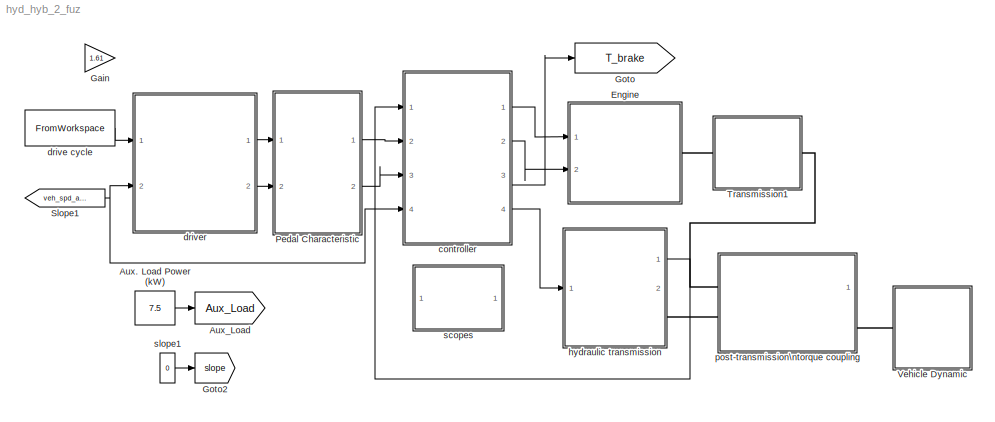
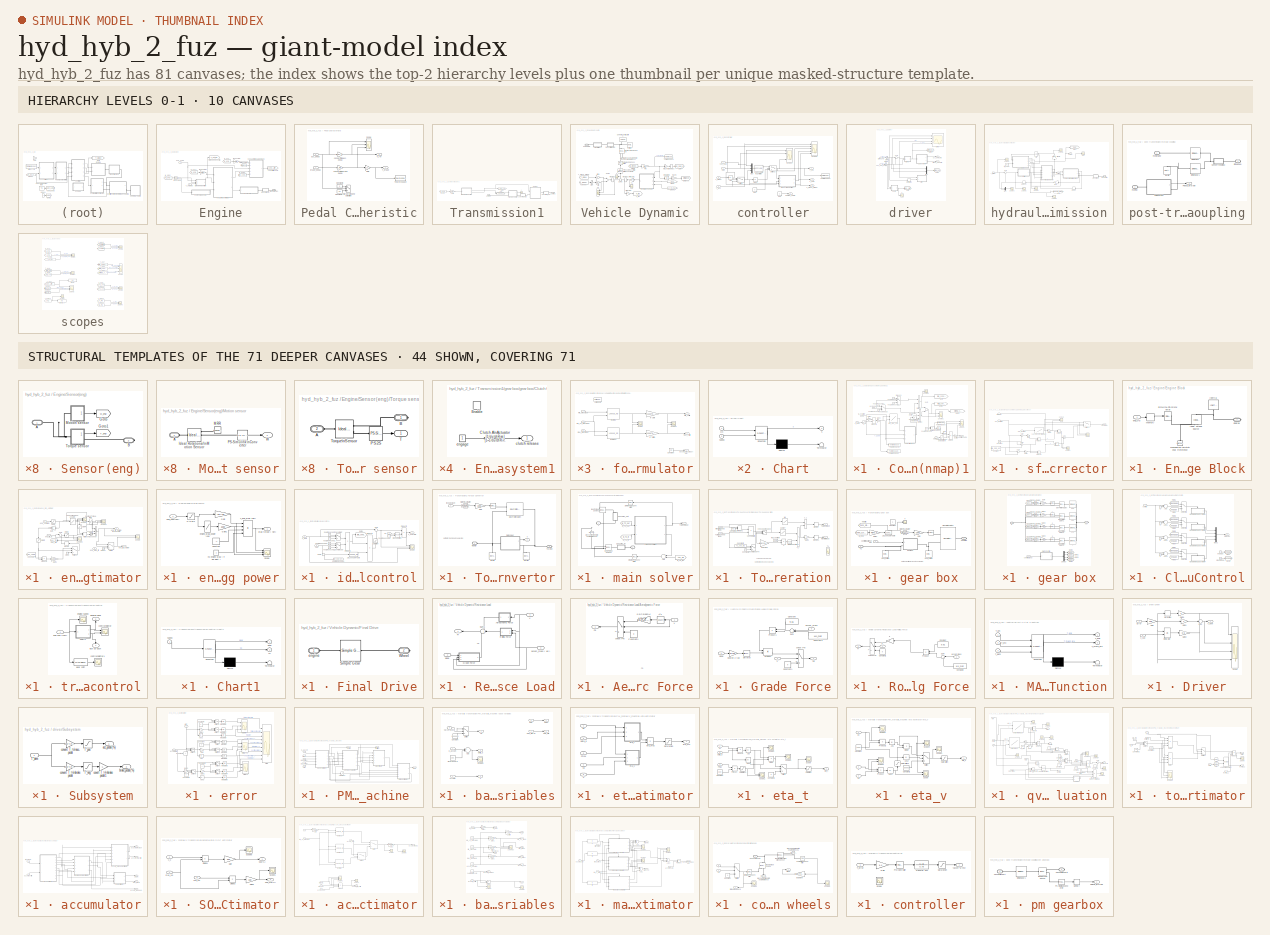
[diagram: thumbnail index - top-2 hierarchy levels (10 canvases) + 44 structural-template representatives of the remaining 71 canvases]
MODEL hyd_hyb_2_fuz
KIND model
CONFIG InitFcn = const_3\n
BLOCK [Constant] Aux. Load Power (kW)
  SID = 1
  Value = 7.5
BLOCK [Goto] Aux_Load
  GotoTag = Aux_Load
  SID = 2
  TagVisibility = global
BLOCK [SubSystem] Engine
  FunctionWithSeparateData = off
  MaskHideContents = off
  MinAlgLoopOccurrences = off
  Opaque = off
  Ports = [2, 0, 0, 0, 0, 0, 1]
  PropExecContextOutsideSubsystem = off
  RTWSystemCode = Auto
  RequestExecContextInheritance = off
  SID = 3
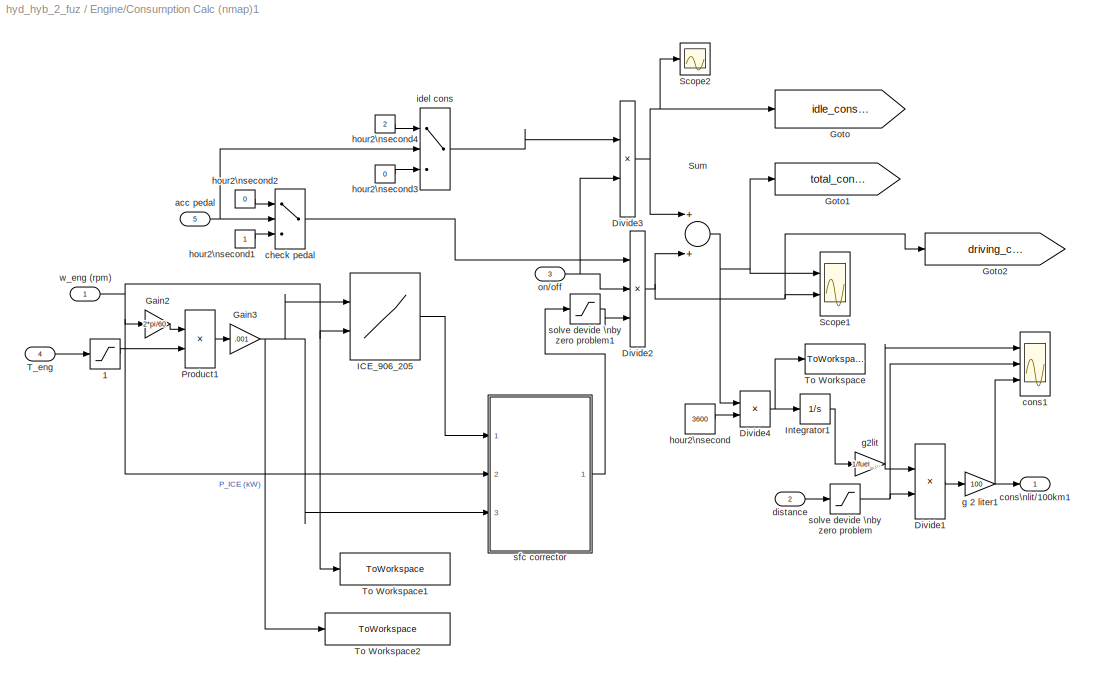
BLOCK [SubSystem] Engine/Consumption Calc (nmap)1
  FunctionWithSeparateData = off
  MaskHideContents = off
  MinAlgLoopOccurrences = off
  Opaque = off
  Ports = [5, 1]
  PropExecContextOutsideSubsystem = off
  RTWSystemCode = Auto
  RequestExecContextInheritance = off
  SID = 6
BLOCK [Saturate] Engine/Consumption Calc (nmap)1/1
  InputPortMap = u0
  LowerLimit = 0
  Ports = [1, 1]
  SID = 12
  UpperLimit = inf
BLOCK [Product] Engine/Consumption Calc (nmap)1/Divide1
  InputSameDT = off
  Inputs = */
  OutDataTypeStr = Inherit: Inherit via internal rule
  Ports = [2, 1]
  RndMeth = Floor
  SID = 14
  SaturateOnIntegerOverflow = off
BLOCK [Product] Engine/Consumption Calc (nmap)1/Divide2
  InputSameDT = off
  Inputs = 3
  OutDataTypeStr = Inherit: Inherit via internal rule
  Ports = [3, 1]
  RndMeth = Floor
  SID = 15
  SaturateOnIntegerOverflow = off
BLOCK [Product] Engine/Consumption Calc (nmap)1/Divide3
  InputSameDT = off
  OutDataTypeStr = Inherit: Inherit via internal rule
  Ports = [2, 1]
  RndMeth = Floor
  SID = 16
  SaturateOnIntegerOverflow = off
BLOCK [Product] Engine/Consumption Calc (nmap)1/Divide4
  InputSameDT = off
  Inputs = */
  OutDataTypeStr = Inherit: Inherit via internal rule
  Ports = [2, 1]
  RndMeth = Floor
  SID = 17
  SaturateOnIntegerOverflow = off
BLOCK [Gain] Engine/Consumption Calc (nmap)1/Gain2
  Gain = 2*pi/60
  OutDataTypeStr = Inherit: Inherit via internal rule
  ParamDataTypeStr = Inherit: Inherit via internal rule
  SID = 18
  SaturateOnIntegerOverflow = off
BLOCK [Gain] Engine/Consumption Calc (nmap)1/Gain3
  Gain = .001
  OutDataTypeStr = Inherit: Inherit via internal rule
  ParamDataTypeStr = Inherit: Inherit via internal rule
  SID = 19
  SaturateOnIntegerOverflow = off
BLOCK [Goto] Engine/Consumption Calc (nmap)1/Goto
  GotoTag = idle_consumption
  SID = 20
  TagVisibility = global
BLOCK [Goto] Engine/Consumption Calc (nmap)1/Goto1
  GotoTag = total_consumption
  SID = 21
  TagVisibility = global
BLOCK [Goto] Engine/Consumption Calc (nmap)1/Goto2
  GotoTag = driving_consumption
  SID = 22
  TagVisibility = global
BLOCK [Lookup2D] Engine/Consumption Calc (nmap)1/ICE_906_205
  ColumnIndex = w_906_205
  InputSameDT = off
  RowIndex = p_906_205
  SID = 1027
  SaturateOnIntegerOverflow = off
  Table = BSFC_906_205
BLOCK [Integrator] Engine/Consumption Calc (nmap)1/Integrator1
  Ports = [1, 1]
  SID = 23
BLOCK [Product] Engine/Consumption Calc (nmap)1/Product1
  InputSameDT = off
  OutDataTypeStr = Inherit: Inherit via internal rule
  Ports = [2, 1]
  SID = 25
  SaturateOnIntegerOverflow = off
BLOCK [Scope] Engine/Consumption Calc (nmap)1/Scope1
  DataFormat = StructureWithTime
  Floating = off
  LimitDataPoints = off
  NumInputPorts = 2
  Ports = [2]
  SID = 26
  SampleTime = 0
  YMax = 42.5~42.5
  YMin = 0~0
  ZoomMode = xonly
BLOCK [Scope] Engine/Consumption Calc (nmap)1/Scope2
  DataFormat = StructureWithTime
  Floating = off
  LimitDataPoints = off
  NumInputPorts = 1
  Ports = [1]
  SID = 27
  SampleTime = 0
  SaveName = ScopeData75
  ZoomMode = xonly
BLOCK [Sum] Engine/Consumption Calc (nmap)1/Sum
  InputSameDT = off
  OutDataTypeStr = Inherit: Inherit via internal rule
  Ports = [2, 1]
  SID = 28
  SaturateOnIntegerOverflow = off
BLOCK [Inport] Engine/Consumption Calc (nmap)1/T_eng
  IconDisplay = Port number
  Port = 4
  SID = 10
BLOCK [ToWorkspace] Engine/Consumption Calc (nmap)1/To Workspace
  MaxDataPoints = inf
  Ports = [1]
  SID = 29
  SampleTime = -1
  SaveFormat = Structure With Time
  VariableName = ali_cons
BLOCK [ToWorkspace] Engine/Consumption Calc (nmap)1/To Workspace1
  MaxDataPoints = inf
  Ports = [1]
  SID = 1050
  SampleTime = -1
  SaveFormat = Structure With Time
  VariableName = eng_spd_rpm_fuz
BLOCK [ToWorkspace] Engine/Consumption Calc (nmap)1/To Workspace2
  MaxDataPoints = inf
  Ports = [1]
  SID = 1051
  SampleTime = -1
  SaveFormat = Structure With Time
  VariableName = eng_pow_kW_fuz
BLOCK [Inport] Engine/Consumption Calc (nmap)1/acc pedal
  IconDisplay = Port number
  Port = 5
  SID = 11
BLOCK [Switch] Engine/Consumption Calc (nmap)1/check pedal
  Criteria = u2 > Threshold
  InputSameDT = off
  SID = 30
  SaturateOnIntegerOverflow = off
BLOCK [Scope] Engine/Consumption Calc (nmap)1/cons1
  DataFormat = StructureWithTime
  Floating = off
  LimitDataPoints = off
  NumInputPorts = 3
  Ports = [3]
  SID = 31
  SampleTime = 0
  SaveName = cons1
  SaveToWorkspace = on
  YMax = 42.5~42.5~5
  YMin = 0~0~-5
  ZoomMode = yonly
BLOCK [Outport] Engine/Consumption Calc (nmap)1/cons\nlit//100km1
  IconDisplay = Port number
  SID = 66
BLOCK [Inport] Engine/Consumption Calc (nmap)1/distance
  IconDisplay = Port number
  Port = 2
  SID = 8
BLOCK [Gain] Engine/Consumption Calc (nmap)1/g 2 liter1
  Gain = 100
  OutDataTypeStr = Inherit: Inherit via internal rule
  ParamDataTypeStr = Inherit: Inherit via internal rule
  SID = 32
  SaturateOnIntegerOverflow = off
BLOCK [Gain] Engine/Consumption Calc (nmap)1/g2lit
  Gain = 1/fuel_density*1000
  OutDataTypeStr = Inherit: Inherit via internal rule
  ParamDataTypeStr = Inherit: Inherit via internal rule
  SID = 33
  SaturateOnIntegerOverflow = off
BLOCK [Constant] Engine/Consumption Calc (nmap)1/hour2\nsecond
  SID = 34
  Value = 3600
BLOCK [Constant] Engine/Consumption Calc (nmap)1/hour2\nsecond1
  SID = 35
BLOCK [Constant] Engine/Consumption Calc (nmap)1/hour2\nsecond2
  SID = 36
  Value = 0
BLOCK [Constant] Engine/Consumption Calc (nmap)1/hour2\nsecond3
  SID = 37
  Value = 0
BLOCK [Constant] Engine/Consumption Calc (nmap)1/hour2\nsecond4
  SID = 38
  Value = 2
BLOCK [Switch] Engine/Consumption Calc (nmap)1/idel cons
  Criteria = u2 > Threshold
  InputSameDT = off
  SID = 40
  SaturateOnIntegerOverflow = off
BLOCK [Inport] Engine/Consumption Calc (nmap)1/on//off
  IconDisplay = Port number
  Port = 3
  SID = 9
BLOCK [SubSystem] Engine/Consumption Calc (nmap)1/sfc corrector
  FunctionWithSeparateData = off
  MaskHideContents = off
  MinAlgLoopOccurrences = off
  Opaque = off
  Ports = [3, 1]
  PropExecContextOutsideSubsystem = off
  RTWSystemCode = Auto
  RequestExecContextInheritance = off
  SID = 41
BLOCK [Constant] Engine/Consumption Calc (nmap)1/sfc corrector/Constant
  SID = 45
  Value = Idle_spd_eng_906
BLOCK [Constant] Engine/Consumption Calc (nmap)1/sfc corrector/Constant1
  SID = 46
  Value = 1000
BLOCK [Gain] Engine/Consumption Calc (nmap)1/sfc corrector/Gain
  Gain = -1
  OutDataTypeStr = Inherit: Inherit via internal rule
  ParamDataTypeStr = Inherit: Inherit via internal rule
  SID = 47
  SaturateOnIntegerOverflow = off
BLOCK [Gain] Engine/Consumption Calc (nmap)1/sfc corrector/Gain1
  OutDataTypeStr = Inherit: Inherit via internal rule
  ParamDataTypeStr = Inherit: Inherit via internal rule
  SID = 48
  SaturateOnIntegerOverflow = off
BLOCK [Gain] Engine/Consumption Calc (nmap)1/sfc corrector/Gain2
  OutDataTypeStr = Inherit: Inherit via internal rule
  ParamDataTypeStr = Inherit: Inherit via internal rule
  SID = 49
  SaturateOnIntegerOverflow = off
BLOCK [Product] Engine/Consumption Calc (nmap)1/sfc corrector/Product
  InputSameDT = off
  Inputs = */
  OutDataTypeStr = Inherit: Inherit via internal rule
  Ports = [2, 1]
  SID = 50
  SaturateOnIntegerOverflow = off
BLOCK [Product] Engine/Consumption Calc (nmap)1/sfc corrector/Product1
  InputSameDT = off
  Inputs = */
  OutDataTypeStr = Inherit: Inherit via internal rule
  Ports = [2, 1]
  SID = 51
  SaturateOnIntegerOverflow = off
BLOCK [Product] Engine/Consumption Calc (nmap)1/sfc corrector/Product2
  InputSameDT = off
  OutDataTypeStr = Inherit: Inherit via internal rule
  Ports = [2, 1]
  SID = 52
  SaturateOnIntegerOverflow = off
BLOCK [Product] Engine/Consumption Calc (nmap)1/sfc corrector/Product3
  InputSameDT = off
  OutDataTypeStr = Inherit: Inherit via internal rule
  Ports = [2, 1]
  SID = 53
  SaturateOnIntegerOverflow = off
BLOCK [Scope] Engine/Consumption Calc (nmap)1/sfc corrector/Scope
  DataFormat = StructureWithTime
  Floating = off
  NumInputPorts = 2
  Ports = [2]
  SID = 54
  SampleTime = 0
  SaveName = ScopeData40
  YMax = 5~5
  YMin = -5~-5
  ZoomMode = yonly
BLOCK [Scope] Engine/Consumption Calc (nmap)1/sfc corrector/Scope1
  DataFormat = StructureWithTime
  Floating = off
  NumInputPorts = 2
  Ports = [2]
  SID = 55
  SampleTime = 0
  SaveName = ScopeData41
  YMax = 5~5
  YMin = -5~-5
  ZoomMode = yonly
BLOCK [Scope] Engine/Consumption Calc (nmap)1/sfc corrector/Scope2
  DataFormat = StructureWithTime
  Floating = off
  NumInputPorts = 2
  Ports = [2]
  SID = 56
  SampleTime = 0
  SaveName = ScopeData42
  YMax = 5~5
  YMin = -5~-5
  ZoomMode = yonly
BLOCK [Sum] Engine/Consumption Calc (nmap)1/sfc corrector/Sum
  IconShape = round
  InputSameDT = off
  Inputs = |+-
  OutDataTypeStr = Inherit: Inherit via internal rule
  Ports = [2, 1]
  SID = 57
  SaturateOnIntegerOverflow = off
BLOCK [Sum] Engine/Consumption Calc (nmap)1/sfc corrector/Sum1
  IconShape = round
  InputSameDT = off
  Inputs = |+-
  OutDataTypeStr = Inherit: Inherit via internal rule
  Ports = [2, 1]
  SID = 58
  SaturateOnIntegerOverflow = off
BLOCK [Sum] Engine/Consumption Calc (nmap)1/sfc corrector/Sum2
  IconShape = round
  InputSameDT = off
  Inputs = |+-
  OutDataTypeStr = Inherit: Inherit via internal rule
  Ports = [2, 1]
  SID = 59
  SaturateOnIntegerOverflow = off
BLOCK [Sum] Engine/Consumption Calc (nmap)1/sfc corrector/Sum3
  IconShape = round
  InputSameDT = off
  Inputs = |++
  OutDataTypeStr = Inherit: Inherit via internal rule
  Ports = [2, 1]
  SID = 60
  SaturateOnIntegerOverflow = off
BLOCK [Switch] Engine/Consumption Calc (nmap)1/sfc corrector/Switch
  InputSameDT = off
  SID = 61
  SaturateOnIntegerOverflow = off
  Threshold = 1000
BLOCK [Outport] Engine/Consumption Calc (nmap)1/sfc corrector/cons(kg//h)
  IconDisplay = Port number
  SID = 63
BLOCK [Inport] Engine/Consumption Calc (nmap)1/sfc corrector/eng_pow(kw)
  IconDisplay = Port number
  Port = 3
  SID = 44
BLOCK [Inport] Engine/Consumption Calc (nmap)1/sfc corrector/eng_spd(rpm)
  IconDisplay = Port number
  Port = 2
  SID = 43
BLOCK [Inport] Engine/Consumption Calc (nmap)1/sfc corrector/main map
  IconDisplay = Port number
  SID = 42
BLOCK [Lookup] Engine/Consumption Calc (nmap)1/sfc corrector/sec_eng_sfc_map (906)
  InputValues = sec_eng_sfc_map(:,1)
  SID = 62
  SaturateOnIntegerOverflow = off
  Table = sec_eng_sfc_map(:,2)
BLOCK [Saturate] Engine/Consumption Calc (nmap)1/solve devide \nby zero problem
  InputPortMap = u0
  LowerLimit = eps
  Ports = [1, 1]
  SID = 64
  UpperLimit = inf
BLOCK [Saturate] Engine/Consumption Calc (nmap)1/solve devide \nby zero problem1
  InputPortMap = u0
  LowerLimit = 0
  Ports = [1, 1]
  SID = 65
  UpperLimit = inf
BLOCK [Inport] Engine/Consumption Calc (nmap)1/w_eng (rpm)
  IconDisplay = Port number
  SID = 7
BLOCK [From] Engine/Distance (km)
  GotoTag = Distance
  SID = 67
  TagVisibility = global
BLOCK [SubSystem] Engine/Engine Block
  FunctionWithSeparateData = off
  MaskHideContents = off
  MinAlgLoopOccurrences = off
  Opaque = off
  Ports = [1, 0, 0, 0, 0, 0, 1]
  PropExecContextOutsideSubsystem = off
  RTWSystemCode = Auto
  RequestExecContextInheritance = off
  SID = 68
BLOCK [PMIOPort] Engine/Engine Block/Engine
  Port = 1
  SID = 75
  Side = Right
BLOCK [Reference] Engine/Engine Block/Ideal Torque Source  REF=fl_lib/Mechanical/Mechanical Sources/Ideal Torque Source
  ClassName = torque
  ComponentPath = foundation.mechanical.sources.torque
  FunctionWithSeparateData = off
  GeneratePreprocessorConditionals = off
  LocalVarDescs = |w|t
  LocalVarLogging = [0 0]
  LocalVarNames = |w|t
  Ports = [0, 0, 0, 0, 0, 1, 2]
  RTWMemSecDataConstants = Inherit from model
  RTWMemSecDataInternal = Inherit from model
  RTWMemSecDataParameters = Inherit from model
  RTWMemSecFuncExecute = Inherit from model
  RTWMemSecFuncInitTerm = Inherit from model
  SID = 70
  SchemaVersion = 1
  ShowPortLabels = FromPortIcon
  SourceBlock = fl_lib/Mechanical/Mechanical Sources/Ideal Torque Source
  SourceType = Ideal Torque Source
  SystemSampleTime = -1
  t_Log = off
  w_Log = off
BLOCK [Reference] Engine/Engine Block/Inertia  REF=fl_lib/Mechanical/Rotational Elements/Inertia
  ClassName = inertia
  ComponentPath = foundation.mechanical.rotational.inertia
  FunctionWithSeparateData = off
  GeneratePreprocessorConditionals = off
  LocalVarDescs = |t
  LocalVarLogging = 0
  LocalVarNames = |t
  Ports = [0, 0, 0, 0, 0, 1]
  RTWMemSecDataConstants = Inherit from model
  RTWMemSecDataInternal = Inherit from model
  RTWMemSecDataParameters = Inherit from model
  RTWMemSecFuncExecute = Inherit from model
  RTWMemSecFuncInitTerm = Inherit from model
  SID = 71
  SchemaVersion = 1
  ShowPortLabels = FromPortIcon
  SourceBlock = fl_lib/Mechanical/Rotational Elements/Inertia
  SourceType = Inertia
  SystemSampleTime = -1
  inertia = I_ICE
  inertia_unit = kg*m^2
  initial_velocity = 0
  initial_velocity_unit = rad/s
  t_Log = off
BLOCK [Reference] Engine/Engine Block/Mechanical\nRotational Reference  REF=fl_lib/Mechanical/Rotational Elements/Mechanical\nRotational Reference
  ClassName = reference
  ComponentPath = foundation.mechanical.rotational.reference
  FunctionWithSeparateData = off
  GeneratePreprocessorConditionals = off
  LocalVarDescs = |t
  LocalVarLogging = 0
  LocalVarNames = |t
  Ports = [0, 0, 0, 0, 0, 1]
  RTWMemSecDataConstants = Inherit from model
  RTWMemSecDataInternal = Inherit from model
  RTWMemSecDataParameters = Inherit from model
  RTWMemSecFuncExecute = Inherit from model
  RTWMemSecFuncInitTerm = Inherit from model
  SID = 72
  SchemaVersion = 1
  ShowPortLabels = FromPortIcon
  SourceBlock = fl_lib/Mechanical/Rotational Elements/Mechanical\nRotational Reference
  SourceType = Mechanical\nRotational Reference
  SystemSampleTime = -1
  t_Log = off
BLOCK [Memory] Engine/Engine Block/Memory
  InheritSampleTime = on
  SID = 73
BLOCK [Reference] Engine/Engine Block/Simulink-PS\nConverter  REF=nesl_utility/Simulink-PS\nConverter
  AffineConversion = off
  FunctionWithSeparateData = off
  GeneratePreprocessorConditionals = off
  InputFilterTimeConstant = 0.01
  LeftPortType = input
  PhysicalDomain = network_engine_domain
  Ports = [1, 0, 0, 0, 0, 0, 1]
  RTWMemSecDataConstants = Inherit from model
  RTWMemSecDataInternal = Inherit from model
  RTWMemSecDataParameters = Inherit from model
  RTWMemSecFuncExecute = Inherit from model
  RTWMemSecFuncInitTerm = Inherit from model
  RightPortType = output
  SID = 74
  ShowPortLabels = FromPortIcon
  SourceBlock = nesl_utility/Simulink-PS\nConverter
  SourceType = Simulink-PS\nConverter
  SubClassName = ps_input
  SystemSampleTime = -1
  UdotUserProvided = 0
  Unit = 1
BLOCK [Inport] Engine/Engine Block/eng_trq
  IconDisplay = Port number
  SID = 69
BLOCK [SubSystem] Engine/Sensor(eng)
  FunctionWithSeparateData = off
  MaskHideContents = off
  MinAlgLoopOccurrences = off
  Opaque = off
  Ports = [0, 0, 0, 0, 0, 1, 1]
  PropExecContextOutsideSubsystem = off
  RTWSystemCode = Auto
  RequestExecContextInheritance = off
  SID = 76
BLOCK [PMIOPort] Engine/Sensor(eng)/A
  Port = 1
  SID = 91
  Side = Left
BLOCK [PMIOPort] Engine/Sensor(eng)/B
  Port = 2
  SID = 92
  Side = Right
BLOCK [Goto] Engine/Sensor(eng)/Goto
  GotoTag = w_eng
  SID = 77
  TagVisibility = global
BLOCK [Goto] Engine/Sensor(eng)/Goto1
  GotoTag = T_eng
  SID = 78
  TagVisibility = global
BLOCK [SubSystem] Engine/Sensor(eng)/Motion sensor
  FunctionWithSeparateData = off
  MaskHideContents = off
  MinAlgLoopOccurrences = off
  Opaque = off
  Ports = [0, 1, 0, 0, 0, 1]
  PropExecContextOutsideSubsystem = off
  RTWSystemCode = Auto
  RequestExecContextInheritance = off
  SID = 79
BLOCK [PMIOPort] Engine/Sensor(eng)/Motion sensor/A
  Port = 1
  SID = 83
  Side = Left
BLOCK [Reference] Engine/Sensor(eng)/Motion sensor/Ideal Rotational\nMotion Sensor  REF=fl_lib/Mechanical/Mechanical Sensors/Ideal Rotational\nMotion Sensor
  ClassName = sensor_rot_motion
  ComponentPath = foundation.mechanical.sensors.angular_velocity
  FunctionWithSeparateData = off
  GeneratePreprocessorConditionals = off
  LocalVarDescs = |w|t|phi
  LocalVarLogging = []
  LocalVarNames = |w|t|phi
  Ports = [0, 0, 0, 0, 0, 1, 3]
  RTWMemSecDataConstants = Inherit from model
  RTWMemSecDataInternal = Inherit from model
  RTWMemSecDataParameters = Inherit from model
  RTWMemSecFuncExecute = Inherit from model
  RTWMemSecFuncInitTerm = Inherit from model
  SID = 80
  SchemaVersion = 1
  ShowPortLabels = FromPortIcon
  SourceBlock = fl_lib/Mechanical/Mechanical Sensors/Ideal Rotational\nMotion Sensor
  SourceType = Ideal Rotational\nMotion Sensor
  SystemSampleTime = -1
  offset = 0
  offset_unit = rad
  phi_Log = off
  t_Log = off
  w_Log = off
BLOCK [Reference] Engine/Sensor(eng)/Motion sensor/MRR  REF=fl_lib/Mechanical/Rotational Elements/Mechanical\nRotational Reference
  ClassName = reference_rot
  ComponentPath = foundation.mechanical.rotational.reference
  FunctionWithSeparateData = off
  GeneratePreprocessorConditionals = off
  LocalVarDescs = |t
  LocalVarLogging = []
  LocalVarNames = |t
  Ports = [0, 0, 0, 0, 0, 1]
  RTWMemSecDataConstants = Inherit from model
  RTWMemSecDataInternal = Inherit from model
  RTWMemSecDataParameters = Inherit from model
  RTWMemSecFuncExecute = Inherit from model
  RTWMemSecFuncInitTerm = Inherit from model
  SID = 81
  SchemaVersion = 1
  ShowPortLabels = FromPortIcon
  SourceBlock = fl_lib/Mechanical/Rotational Elements/Mechanical\nRotational Reference
  SourceType = Mechanical\nRotational Reference
  SystemSampleTime = -1
  t_Log = off
BLOCK [Reference] Engine/Sensor(eng)/Motion sensor/PS-Simulink\nConverter  REF=nesl_utility/PS-Simulink\nConverter
  AffineConversion = off
  FunctionWithSeparateData = off
  GeneratePreprocessorConditionals = off
  LeftPortType = input
  PhysicalDomain = network_engine_domain
  Ports = [0, 1, 0, 0, 0, 1]
  RTWMemSecDataConstants = Inherit from model
  RTWMemSecDataInternal = Inherit from model
  RTWMemSecDataParameters = Inherit from model
  RTWMemSecFuncExecute = Inherit from model
  RTWMemSecFuncInitTerm = Inherit from model
  RightPortType = output
  SID = 82
  ShowPortLabels = none
  SourceBlock = nesl_utility/PS-Simulink\nConverter
  SourceType = PS-Simulink\nConverter
  SubClassName = ps_output
  SystemSampleTime = -1
  Unit = rad/s
BLOCK [Outport] Engine/Sensor(eng)/Motion sensor/W
  IconDisplay = Port number
  SID = 84
BLOCK [SubSystem] Engine/Sensor(eng)/Torque sensor
  FunctionWithSeparateData = off
  MaskHideContents = off
  MinAlgLoopOccurrences = off
  Opaque = off
  Ports = [0, 1, 0, 0, 0, 1, 1]
  PropExecContextOutsideSubsystem = off
  RTWSystemCode = Auto
  RequestExecContextInheritance = off
  SID = 85
BLOCK [PMIOPort] Engine/Sensor(eng)/Torque sensor/A
  Port = 2
  SID = 89
  Side = Left
BLOCK [PMIOPort] Engine/Sensor(eng)/Torque sensor/B
  Port = 1
  SID = 88
  Side = Right
BLOCK [Reference] Engine/Sensor(eng)/Torque sensor/PS2S  REF=nesl_utility/PS-Simulink\nConverter
  AffineConversion = off
  FunctionWithSeparateData = off
  GeneratePreprocessorConditionals = off
  LeftPortType = input
  PhysicalDomain = network_engine_domain
  Ports = [0, 1, 0, 0, 0, 1]
  RTWMemSecDataConstants = Inherit from model
  RTWMemSecDataInternal = Inherit from model
  RTWMemSecDataParameters = Inherit from model
  RTWMemSecFuncExecute = Inherit from model
  RTWMemSecFuncInitTerm = Inherit from model
  RightPortType = output
  SID = 86
  ShowPortLabels = none
  SourceBlock = nesl_utility/PS-Simulink\nConverter
  SourceType = PS-Simulink\nConverter
  SubClassName = ps_output
  SystemSampleTime = -1
  Unit = 1
BLOCK [Outport] Engine/Sensor(eng)/Torque sensor/T
  IconDisplay = Port number
  SID = 90
BLOCK [Reference] Engine/Sensor(eng)/Torque sensor/Torque\nSensor  REF=fl_lib/Mechanical/Mechanical Sensors/Ideal Torque Sensor
  ClassName = sensor_torque
  ComponentPath = foundation.mechanical.sensors.torque
  FunctionWithSeparateData = off
  GeneratePreprocessorConditionals = off
  LocalVarDescs = |w|t
  LocalVarLogging = []
  LocalVarNames = |w|t
  Ports = [0, 0, 0, 0, 0, 1, 2]
  RTWMemSecDataConstants = Inherit from model
  RTWMemSecDataInternal = Inherit from model
  RTWMemSecDataParameters = Inherit from model
  RTWMemSecFuncExecute = Inherit from model
  RTWMemSecFuncInitTerm = Inherit from model
  SID = 87
  SchemaVersion = 1
  ShowPortLabels = FromPortIcon
  SourceBlock = fl_lib/Mechanical/Mechanical Sensors/Ideal Torque Sensor
  SourceType = Ideal Torque Sensor
  SystemSampleTime = -1
  t_Log = off
  w_Log = off
BLOCK [Goto] Engine/T idle speed control
  GotoTag = T_out_idle_cotl
  SID = 93
  TagVisibility = global
BLOCK [Inport] Engine/T_eng (Nm)
  IconDisplay = Port number
  SID = 4
BLOCK [PMIOPort] Engine/Transmission
  Port = 1
  SID = 165
  Side = Right
BLOCK [Goto] Engine/cons\nlit//100km
  GotoTag = cons_LitP100km
  SID = 94
  TagVisibility = global
BLOCK [Inport] Engine/eng_on//off
  IconDisplay = Port number
  Port = 2
  SID = 5
BLOCK [SubSystem] Engine/eng_torq_estimator
  FunctionWithSeparateData = off
  MaskHideContents = off
  MinAlgLoopOccurrences = off
  Opaque = off
  Ports = [3, 2]
  PropExecContextOutsideSubsystem = off
  RTWSystemCode = Auto
  RequestExecContextInheritance = off
  SID = 95
BLOCK [Saturate] Engine/eng_torq_estimator/0 to inf1
  InputPortMap = u0
  LowerLimit = 0
  Ports = [1, 1]
  SID = 99
  UpperLimit = inf
BLOCK [Saturate] Engine/eng_torq_estimator/0 to inf2
  InputPortMap = u0
  LowerLimit = eps
  Ports = [1, 1]
  SID = 100
  UpperLimit = inf
BLOCK [Saturate] Engine/eng_torq_estimator/0 to inf3
  InputPortMap = u0
  LowerLimit = 0
  Ports = [1, 1]
  SID = 101
  UpperLimit = inf
BLOCK [Saturate] Engine/eng_torq_estimator/0 to inf4
  InputPortMap = u0
  LowerLimit = 0
  Ports = [1, 1]
  SID = 102
  UpperLimit = inf
BLOCK [Saturate] Engine/eng_torq_estimator/0 to inf5
  InputPortMap = u0
  LowerLimit = 0
  Ports = [1, 1]
  SID = 103
  UpperLimit = inf
BLOCK [From] Engine/eng_torq_estimator/Aux Load
  GotoTag = Aux_Load
  SID = 104
  TagVisibility = global
BLOCK [Goto] Engine/eng_torq_estimator/Aux_Trq
  GotoTag = Aux_Trq
  SID = 105
  TagVisibility = global
BLOCK [Gain] Engine/eng_torq_estimator/Gain
  Gain = pi/30
  OutDataTypeStr = Inherit: Inherit via internal rule
  ParamDataTypeStr = Inherit: Inherit via internal rule
  SID = 106
  SaturateOnIntegerOverflow = off
BLOCK [Gain] Engine/eng_torq_estimator/Gain1
  Gain = 1000
  OutDataTypeStr = Inherit: Inherit via internal rule
  ParamDataTypeStr = Inherit: Inherit via internal rule
  SID = 107
  SaturateOnIntegerOverflow = off
BLOCK [Memory] Engine/eng_torq_estimator/Memory
  InheritSampleTime = on
  SID = 108
BLOCK [MinMax] Engine/eng_torq_estimator/Min
  Function = min
  InputSameDT = off
  Inputs = 2
  Ports = [2, 1]
  SID = 109
  SaturateOnIntegerOverflow = off
BLOCK [Lookup] Engine/eng_torq_estimator/Overload Torque (Nm)
  InputValues = [2600 2900 3000]
  SID = 110
  Table = [650 0 0]
BLOCK [Lookup] Engine/eng_torq_estimator/PeakTorque -906 - 205(Nm)
  InputValues = [1000,1070,1130,1200,1280,1500,1590,1680,1760,1850,1930,2010,2070,2150,2240,2320,2380,2500]
  SID = 111
  Table = [982,1040,1080,1100,1110,1110,1100,1080,1060,1020,994,963,940,909,872,838,804,751]
BLOCK [Product] Engine/eng_torq_estimator/Product1
  InputSameDT = off
  Inputs = */
  OutDataTypeStr = Inherit: Inherit via internal rule
  Ports = [2, 1]
  SID = 112
  SaturateOnIntegerOverflow = off
BLOCK [Scope] Engine/eng_torq_estimator/Scope
  DataFormat = StructureWithTime
  Floating = off
  LimitDataPoints = off
  NumInputPorts = 3
  Ports = [3]
  SID = 113
  SampleTime = 0
  SaveName = ScopeData10
  YMax = 5~5~5
  YMin = -5~-5~-5
  ZoomMode = yonly
BLOCK [Scope] Engine/eng_torq_estimator/Scope1
  DataFormat = StructureWithTime
  Floating = off
  LimitDataPoints = off
  NumInputPorts = 3
  Ports = [3]
  SID = 114
  SampleTime = 0
  SaveName = ScopeData9
  YMax = 5~5~5
  YMin = -5~-5~-5
  ZoomMode = yonly
BLOCK [Scope] Engine/eng_torq_estimator/Scope2
  DataFormat = StructureWithTime
  Floating = off
  LimitDataPoints = off
  NumInputPorts = 3
  Ports = [3]
  SID = 115
  SampleTime = 0
  SaveName = ScopeData23
  YMax = 5~5~5
  YMin = -5~-5~-5
  ZoomMode = xonly
BLOCK [Scope] Engine/eng_torq_estimator/Scope3
  DataFormat = StructureWithTime
  Floating = off
  LimitDataPoints = off
  NumInputPorts = 3
  Ports = [3]
  SID = 116
  SampleTime = 0
  SaveName = ScopeData5
  YMax = 5~5~5
  YMin = -5~-5~-5
  ZoomMode = yonly
BLOCK [Sum] Engine/eng_torq_estimator/Sum
  IconShape = round
  InputSameDT = off
  Inputs = |++
  OutDataTypeStr = Inherit: Inherit via internal rule
  Ports = [2, 1]
  SID = 117
  SaturateOnIntegerOverflow = off
BLOCK [Switch] Engine/eng_torq_estimator/Switch
  InputSameDT = off
  SID = 118
  SaturateOnIntegerOverflow = off
  Threshold = 0.1
BLOCK [Switch] Engine/eng_torq_estimator/Switch1
  InputSameDT = off
  SID = 119
  SaturateOnIntegerOverflow = off
  Threshold = Idle_spd_eng_906*0.75
BLOCK [Switch] Engine/eng_torq_estimator/check max speed
  InputSameDT = off
  SID = 120
  SaturateOnIntegerOverflow = off
  Threshold = 2600
BLOCK [Inport] Engine/eng_torq_estimator/eng_drag_trq
  IconDisplay = Port number
  Port = 3
  SID = 98
BLOCK [Inport] Engine/eng_torq_estimator/eng_spd (rpm)
  IconDisplay = Port number
  SID = 96
BLOCK [Inport] Engine/eng_torq_estimator/eng_trq_in
  IconDisplay = Port number
  Port = 2
  SID = 97
BLOCK [Outport] Engine/eng_torq_estimator/eng_trq_out (Nm)
  IconDisplay = Port number
  Port = 2
  SID = 123
BLOCK [Outport] Engine/eng_torq_estimator/eng_trq_out (Nm) to consump
  IconDisplay = Port number
  SID = 122
BLOCK [Constant] Engine/eng_torq_estimator/slope
  SID = 121
  Value = 0
BLOCK [Constant] Engine/eng_torq_estimator/slope1
  SID = 1020
  Value = 0
BLOCK [SubSystem] Engine/engine drag power
  FunctionWithSeparateData = off
  MaskHideContents = off
  MinAlgLoopOccurrences = off
  Opaque = off
  Ports = [1, 1]
  PropExecContextOutsideSubsystem = off
  RTWSystemCode = Auto
  RequestExecContextInheritance = off
  SID = 124
BLOCK [Saturate] Engine/engine drag power/0 to inf2
  InputPortMap = u0
  LowerLimit = eps
  Ports = [1, 1]
  SID = 126
  UpperLimit = inf
BLOCK [Constant] Engine/engine drag power/Constant
  SID = 127
  Value = -1
BLOCK [Gain] Engine/engine drag power/Gain
  Gain = (pi)/30
  OutDataTypeStr = Inherit: Inherit via internal rule
  ParamDataTypeStr = Inherit: Inherit via internal rule
  SID = 128
  SaturateOnIntegerOverflow = off
BLOCK [Gain] Engine/engine drag power/Gain1
  Gain = 1000
  OutDataTypeStr = Inherit: Inherit via internal rule
  ParamDataTypeStr = Inherit: Inherit via internal rule
  SID = 129
  SaturateOnIntegerOverflow = off
BLOCK [Scope] Engine/engine drag power/Scope
  DataFormat = StructureWithTime
  Floating = off
  LimitDataPoints = off
  NumInputPorts = 3
  Ports = [3]
  SID = 130
  SampleTime = 0
  SaveName = ScopeData2
  YMax = 5~5~5
  YMin = -5~-5~-5
  ZoomMode = yonly
BLOCK [Product] Engine/engine drag power/T_eng_drag (Nm)
  InputSameDT = off
  Inputs = /***
  OutDataTypeStr = Inherit: Inherit via internal rule
  Ports = [4, 1]
  RndMeth = Floor
  SID = 131
  SaturateOnIntegerOverflow = off
BLOCK [Outport] Engine/engine drag power/drag torque ( Nm)
  IconDisplay = Port number
  SID = 134
BLOCK [Inport] Engine/engine drag power/eng_spd(rpm)
  IconDisplay = Port number
  SID = 125
BLOCK [Lookup] Engine/engine drag power/engine_drag_power (kw)
  InputValues = [-10,eps,802.567507746791,824.568393094289,846.879150066401,868.8800354139,890.880920761399,912.881806108898,935.192563081009,957.193448428508,979.194333776007,1001.19521912351,1023.196104471,1045.1969898185,1067.197875166,1089.50863213811,1111.50951748561,1133.51040283311,1155.51128818061,1177.51217352811,1199.51305887561,1221.51394422311,1243.51482957061,1265.51571491811,1287.5166002656,1309.517...<+620ch>
  SID = 132
  SaturateOnIntegerOverflow = off
  Table = [0,0,8.89504100832017,9.50127747975726,9.88870415102495,10.2762179627945,10.7512208384311,11.1824791821341,11.6136503853353,12.0449087290384,12.4761670727414,12.9074254164445,13.294939228214,13.7261975719171,14.1137113836866,14.5448825868878,15.0636299944579,15.5386328700944,15.9698912137975,16.357405025567,16.7449188373366,17.1761771810396,17.6074355247427,17.9949493365122,18.4699522121488,18.988...<+631ch>
BLOCK [Constant] Engine/engine drag power/no engine drag ( if we want )
  SID = 133
BLOCK [SubSystem] Engine/idle speed control
  FunctionWithSeparateData = off
  MaskHideContents = off
  MinAlgLoopOccurrences = off
  Opaque = off
  Ports = [3, 1]
  PropExecContextOutsideSubsystem = off
  RTWSystemCode = Auto
  RequestExecContextInheritance = off
  SID = 135
BLOCK [Lookup_n-D] Engine/idle speed control/1-D Lookup\nTable
  BreakpointsForDimension1 = [0 Idle_spd_eng_906*0.025 Idle_spd_eng_906]
  IndexSearchMethod = Binary search
  NumberOfTableDimensions = 1
  Ports = [1, 1]
  RndMeth = Simplest
  SID = 139
  Table = [0 0 T_max_906/2]
BLOCK [Goto] Engine/idle speed control/Goto1
  GotoTag = idle_control
  SID = 140
  TagVisibility = global
BLOCK [Reference] Engine/idle speed control/Manual Switch  REF=simulink/Signal\nRouting/Manual Switch
  FunctionWithSeparateData = off
  GeneratePreprocessorConditionals = off
  Ports = [2, 1]
  RTWMemSecDataConstants = Inherit from model
  RTWMemSecDataInternal = Inherit from model
  RTWMemSecDataParameters = Inherit from model
  RTWMemSecFuncExecute = Inherit from model
  RTWMemSecFuncInitTerm = Inherit from model
  SID = 141
  ShowPortLabels = FromPortIcon
  SourceBlock = simulink/Signal\nRouting/Manual Switch
  SourceType = Manual Switch
  SystemSampleTime = -1
  action = 0
  sw = 1
  varsize = off
BLOCK [Product] Engine/idle speed control/Product1
  InputSameDT = off
  Inputs = **
  OutDataTypeStr = Inherit: Inherit via internal rule
  Ports = [2, 1]
  SID = 142
  SaturateOnIntegerOverflow = off
BLOCK [Product] Engine/idle speed control/Product2
  InputSameDT = off
  Inputs = **
  OutDataTypeStr = Inherit: Inherit via internal rule
  Ports = [2, 1]
  SID = 143
  SaturateOnIntegerOverflow = off
BLOCK [Product] Engine/idle speed control/Product3
  InputSameDT = off
  Inputs = **
  OutDataTypeStr = Inherit: Inherit via internal rule
  Ports = [2, 1]
  SID = 144
  SaturateOnIntegerOverflow = off
BLOCK [Saturate] Engine/idle speed control/Saturation
  InputPortMap = u0
  LowerLimit = 0
  Ports = [1, 1]
  SID = 145
  UpperLimit = T_max_906/5
BLOCK [Scope] Engine/idle speed control/Scope
  DataFormat = StructureWithTime
  Floating = off
  LimitDataPoints = off
  NumInputPorts = 3
  Ports = [3]
  SID = 146
  SampleTime = 0
  SaveName = ScopeData11
  YMax = 5~5~5
  YMin = -5~-5~-5
  ZoomMode = yonly
BLOCK [Sum] Engine/idle speed control/Sum
  IconShape = round
  InputSameDT = off
  Inputs = |++
  OutDataTypeStr = Inherit: Inherit via internal rule
  Ports = [2, 1]
  SID = 147
  SaturateOnIntegerOverflow = off
BLOCK [Sum] Engine/idle speed control/Sum1
  IconShape = round
  InputSameDT = off
  Inputs = -|+
  OutDataTypeStr = Inherit: Inherit via internal rule
  Ports = [2, 1]
  SID = 148
  SaturateOnIntegerOverflow = off
BLOCK [Inport] Engine/idle speed control/T_eng
  IconDisplay = Port number
  Port = 3
  SID = 138
BLOCK [Outport] Engine/idle speed control/T_eng + Idle
  IconDisplay = Port number
  SID = 157
BLOCK [Switch] Engine/idle speed control/check idle P
  Criteria = u2 > Threshold
  InputSameDT = off
  SID = 149
  SaturateOnIntegerOverflow = off
BLOCK [Switch] Engine/idle speed control/check idle spd
  Criteria = u2 > Threshold
  InputSameDT = off
  SID = 150
  SaturateOnIntegerOverflow = off
  Threshold = Idle_spd_eng_906
BLOCK [Constant] Engine/idle speed control/hour2\nsecond
  SID = 151
  Value = 0
BLOCK [Constant] Engine/idle speed control/hour2\nsecond1
  SID = 152
BLOCK [Constant] Engine/idle speed control/hour2\nsecond2
  SID = 153
BLOCK [Constant] Engine/idle speed control/hour2\nsecond3
  SID = 154
  Value = 0
BLOCK [Constant] Engine/idle speed control/hour2\nsecond4
  SID = 155
  Value = Idle_spd_eng_906
BLOCK [Constant] Engine/idle speed control/hour2\nsecond5
  SID = 156
BLOCK [Inport] Engine/idle speed control/on
  IconDisplay = Port number
  SID = 136
BLOCK [Inport] Engine/idle speed control/spd
  IconDisplay = Port number
  Port = 2
  SID = 137
BLOCK [Gain] Engine/rasps2rpm
  Gain = 30/pi
  OutDataTypeStr = Inherit: Inherit via internal rule
  ParamDataTypeStr = Inherit: Inherit via internal rule
  SID = 158
  SaturateOnIntegerOverflow = off
BLOCK [Gain] Engine/rasps2rpm1
  Gain = 30/pi
  OutDataTypeStr = Inherit: Inherit via internal rule
  ParamDataTypeStr = Inherit: Inherit via internal rule
  SID = 159
  SaturateOnIntegerOverflow = off
BLOCK [Gain] Engine/rasps2rpm2
  Gain = 30/pi
  OutDataTypeStr = Inherit: Inherit via internal rule
  ParamDataTypeStr = Inherit: Inherit via internal rule
  SID = 160
  SaturateOnIntegerOverflow = off
BLOCK [From] Engine/w_eng
  GotoTag = w_eng
  SID = 161
  TagVisibility = global
BLOCK [From] Engine/w_eng1
  GotoTag = w_eng
  SID = 162
  TagVisibility = global
BLOCK [From] Engine/w_eng2
  GotoTag = w_eng
  SID = 163
  TagVisibility = global
BLOCK [From] Engine/w_eng3
  GotoTag = idle_control
  SID = 164
  TagVisibility = global
BLOCK [Gain] Gain
  Gain = 1.61
  OutDataTypeStr = Inherit: Inherit via internal rule
  ParamDataTypeStr = Inherit: Inherit via internal rule
  SID = 1028
  SaturateOnIntegerOverflow = off
BLOCK [Goto] Goto
  GotoTag = T_brake
  SID = 166
  TagVisibility = global
BLOCK [Goto] Goto2
  GotoTag = slope
  SID = 167
  TagVisibility = global
BLOCK [SubSystem] Pedal Characteristic
  FunctionWithSeparateData = off
  MaskHideContents = off
  MinAlgLoopOccurrences = off
  Opaque = off
  Ports = [2, 2]
  PropExecContextOutsideSubsystem = off
  RTWSystemCode = Auto
  RequestExecContextInheritance = off
  SID = 168
BLOCK [Constant] Pedal Characteristic/Constant1
  SID = 171
  Value = .25
BLOCK [Constant] Pedal Characteristic/Constant2
  SID = 172
  Value = 0
BLOCK [Gain] Pedal Characteristic/Gain
  Gain = 13
  OutDataTypeStr = Inherit: Inherit via internal rule
  ParamDataTypeStr = Inherit: Inherit via internal rule
  SID = 173
  SaturateOnIntegerOverflow = off
BLOCK [Scope] Pedal Characteristic/Scope
  DataFormat = StructureWithTime
  Floating = off
  LimitDataPoints = off
  MaxDataPoints = 500
  NumInputPorts = 3
  Ports = [3]
  SID = 174
  SampleTime = 0
  SaveName = ScopeData9
  YMax = 105~1391.25~1
  YMin = 95~1258.75~-1
  ZoomMode = yonly
BLOCK [Outport] Pedal Characteristic/T_brake
  IconDisplay = Port number
  SID = 178
BLOCK [Outport] Pedal Characteristic/T_ref
  IconDisplay = Port number
  Port = 2
  SID = 179
BLOCK [ToWorkspace] Pedal Characteristic/To Workspace
  MaxDataPoints = inf
  Ports = [1]
  SID = 1052
  SampleTime = -1
  SaveFormat = Structure With Time
  VariableName = T_brk_fuz
BLOCK [Inport] Pedal Characteristic/acc_pedal
  IconDisplay = Port number
  SID = 169
BLOCK [Inport] Pedal Characteristic/brake_pedal
  IconDisplay = Port number
  Port = 2
  SID = 170
BLOCK [Gain] Pedal Characteristic/convert T to\nacc. pedal
  Gain = T_max_906/100
  OutDataTypeStr = Inherit: Inherit via internal rule
  ParamDataTypeStr = Inherit: Inherit via internal rule
  SID = 175
  SaturateOnIntegerOverflow = off
BLOCK [Gain] Pedal Characteristic/convert T to\nbrake pedal
  Gain = -T_min/100
  OutDataTypeStr = Inherit: Inherit via internal rule
  ParamDataTypeStr = Inherit: Inherit via internal rule
  SID = 176
  SaturateOnIntegerOverflow = off
BLOCK [Switch] Pedal Characteristic/retarder step one activation
  Criteria = u2 > Threshold
  InputSameDT = off
  SID = 177
  SaturateOnIntegerOverflow = off
BLOCK [From] Slope1
  GotoTag = veh_spd_act
  SID = 180
  TagVisibility = global
BLOCK [SubSystem] Transmission1
  FunctionWithSeparateData = off
  MaskHideContents = off
  MinAlgLoopOccurrences = off
  Opaque = off
  Ports = [0, 0, 0, 0, 0, 1, 1]
  PropExecContextOutsideSubsystem = off
  RTWSystemCode = Auto
  RequestExecContextInheritance = off
  SID = 181
BLOCK [PMIOPort] Transmission1/Coupling
  Port = 2
  SID = 387
  Side = Right
BLOCK [PMIOPort] Transmission1/Engine
  Port = 1
  SID = 386
  Side = Left
BLOCK [Gain] Transmission1/Gain
  Gain = 30/pi
  OutDataTypeStr = Inherit: Inherit via internal rule
  ParamDataTypeStr = Inherit: Inherit via internal rule
  SID = 182
  SaturateOnIntegerOverflow = off
BLOCK [Goto] Transmission1/Goto
  GotoTag = Lockup_Clutch
  SID = 183
  TagVisibility = global
BLOCK [Goto] Transmission1/Goto1
  GotoTag = Clutch_num
  SID = 184
  TagVisibility = global
BLOCK [SubSystem] Transmission1/Sensor(GB_out)
  FunctionWithSeparateData = off
  MaskHideContents = off
  MinAlgLoopOccurrences = off
  Opaque = off
  Ports = [0, 0, 0, 0, 0, 1, 1]
  PropExecContextOutsideSubsystem = off
  RTWSystemCode = Auto
  RequestExecContextInheritance = off
  SID = 185
BLOCK [PMIOPort] Transmission1/Sensor(GB_out)/A
  Port = 1
  SID = 200
  Side = Left
BLOCK [PMIOPort] Transmission1/Sensor(GB_out)/B
  Port = 2
  SID = 201
  Side = Right
BLOCK [Goto] Transmission1/Sensor(GB_out)/Goto
  GotoTag = w_GB_out
  SID = 186
  TagVisibility = global
BLOCK [Goto] Transmission1/Sensor(GB_out)/Goto1
  GotoTag = T_GB_out
  SID = 187
  TagVisibility = global
BLOCK [SubSystem] Transmission1/Sensor(GB_out)/Motion sensor
  FunctionWithSeparateData = off
  MaskHideContents = off
  MinAlgLoopOccurrences = off
  Opaque = off
  Ports = [0, 1, 0, 0, 0, 1]
  PropExecContextOutsideSubsystem = off
  RTWSystemCode = Auto
  RequestExecContextInheritance = off
  SID = 188
BLOCK [PMIOPort] Transmission1/Sensor(GB_out)/Motion sensor/A
  Port = 1
  SID = 192
  Side = Left
BLOCK [Reference] Transmission1/Sensor(GB_out)/Motion sensor/Ideal Rotational\nMotion Sensor  REF=fl_lib/Mechanical/Mechanical Sensors/Ideal Rotational\nMotion Sensor
  ClassName = sensor_rot_motion
  ComponentPath = foundation.mechanical.sensors.angular_velocity
  FunctionWithSeparateData = off
  GeneratePreprocessorConditionals = off
  LocalVarDescs = |w|t|phi
  LocalVarLogging = []
  LocalVarNames = |w|t|phi
  Ports = [0, 0, 0, 0, 0, 1, 3]
  RTWMemSecDataConstants = Inherit from model
  RTWMemSecDataInternal = Inherit from model
  RTWMemSecDataParameters = Inherit from model
  RTWMemSecFuncExecute = Inherit from model
  RTWMemSecFuncInitTerm = Inherit from model
  SID = 189
  SchemaVersion = 1
  ShowPortLabels = FromPortIcon
  SourceBlock = fl_lib/Mechanical/Mechanical Sensors/Ideal Rotational\nMotion Sensor
  SourceType = Ideal Rotational\nMotion Sensor
  SystemSampleTime = -1
  offset = 0
  offset_unit = rad
  phi_Log = off
  t_Log = off
  w_Log = off
BLOCK [Reference] Transmission1/Sensor(GB_out)/Motion sensor/MRR  REF=fl_lib/Mechanical/Rotational Elements/Mechanical\nRotational Reference
  ClassName = reference_rot
  ComponentPath = foundation.mechanical.rotational.reference
  FunctionWithSeparateData = off
  GeneratePreprocessorConditionals = off
  LocalVarDescs = |t
  LocalVarLogging = []
  LocalVarNames = |t
  Ports = [0, 0, 0, 0, 0, 1]
  RTWMemSecDataConstants = Inherit from model
  RTWMemSecDataInternal = Inherit from model
  RTWMemSecDataParameters = Inherit from model
  RTWMemSecFuncExecute = Inherit from model
  RTWMemSecFuncInitTerm = Inherit from model
  SID = 190
  SchemaVersion = 1
  ShowPortLabels = FromPortIcon
  SourceBlock = fl_lib/Mechanical/Rotational Elements/Mechanical\nRotational Reference
  SourceType = Mechanical\nRotational Reference
  SystemSampleTime = -1
  t_Log = off
BLOCK [Reference] Transmission1/Sensor(GB_out)/Motion sensor/PS-Simulink\nConverter  REF=nesl_utility/PS-Simulink\nConverter
  AffineConversion = off
  FunctionWithSeparateData = off
  GeneratePreprocessorConditionals = off
  LeftPortType = input
  PhysicalDomain = network_engine_domain
  Ports = [0, 1, 0, 0, 0, 1]
  RTWMemSecDataConstants = Inherit from model
  RTWMemSecDataInternal = Inherit from model
  RTWMemSecDataParameters = Inherit from model
  RTWMemSecFuncExecute = Inherit from model
  RTWMemSecFuncInitTerm = Inherit from model
  RightPortType = output
  SID = 191
  ShowPortLabels = none
  SourceBlock = nesl_utility/PS-Simulink\nConverter
  SourceType = PS-Simulink\nConverter
  SubClassName = ps_output
  SystemSampleTime = -1
  Unit = rad/s
BLOCK [Outport] Transmission1/Sensor(GB_out)/Motion sensor/W
  IconDisplay = Port number
  SID = 193
BLOCK [SubSystem] Transmission1/Sensor(GB_out)/Torque sensor
  FunctionWithSeparateData = off
  MaskHideContents = off
  MinAlgLoopOccurrences = off
  Opaque = off
  Ports = [0, 1, 0, 0, 0, 1, 1]
  PropExecContextOutsideSubsystem = off
  RTWSystemCode = Auto
  RequestExecContextInheritance = off
  SID = 194
BLOCK [PMIOPort] Transmission1/Sensor(GB_out)/Torque sensor/A
  Port = 2
  SID = 198
  Side = Left
BLOCK [PMIOPort] Transmission1/Sensor(GB_out)/Torque sensor/B
  Port = 1
  SID = 197
  Side = Right
BLOCK [Reference] Transmission1/Sensor(GB_out)/Torque sensor/PS2S  REF=nesl_utility/PS-Simulink\nConverter
  AffineConversion = off
  FunctionWithSeparateData = off
  GeneratePreprocessorConditionals = off
  LeftPortType = input
  PhysicalDomain = network_engine_domain
  Ports = [0, 1, 0, 0, 0, 1]
  RTWMemSecDataConstants = Inherit from model
  RTWMemSecDataInternal = Inherit from model
  RTWMemSecDataParameters = Inherit from model
  RTWMemSecFuncExecute = Inherit from model
  RTWMemSecFuncInitTerm = Inherit from model
  RightPortType = output
  SID = 195
  ShowPortLabels = none
  SourceBlock = nesl_utility/PS-Simulink\nConverter
  SourceType = PS-Simulink\nConverter
  SubClassName = ps_output
  SystemSampleTime = -1
  Unit = 1
BLOCK [Outport] Transmission1/Sensor(GB_out)/Torque sensor/T
  IconDisplay = Port number
  SID = 199
BLOCK [Reference] Transmission1/Sensor(GB_out)/Torque sensor/Torque\nSensor  REF=fl_lib/Mechanical/Mechanical Sensors/Ideal Torque Sensor
  ClassName = sensor_torque
  ComponentPath = foundation.mechanical.sensors.torque
  FunctionWithSeparateData = off
  GeneratePreprocessorConditionals = off
  LocalVarDescs = |w|t
  LocalVarLogging = []
  LocalVarNames = |w|t
  Ports = [0, 0, 0, 0, 0, 1, 2]
  RTWMemSecDataConstants = Inherit from model
  RTWMemSecDataInternal = Inherit from model
  RTWMemSecDataParameters = Inherit from model
  RTWMemSecFuncExecute = Inherit from model
  RTWMemSecFuncInitTerm = Inherit from model
  SID = 196
  SchemaVersion = 1
  ShowPortLabels = FromPortIcon
  SourceBlock = fl_lib/Mechanical/Mechanical Sensors/Ideal Torque Sensor
  SourceType = Ideal Torque Sensor
  SystemSampleTime = -1
  t_Log = off
  w_Log = off
BLOCK [SubSystem] Transmission1/Sensor(TC_GB)
  FunctionWithSeparateData = off
  MaskHideContents = off
  MinAlgLoopOccurrences = off
  Opaque = off
  Ports = [0, 0, 0, 0, 0, 1, 1]
  PropExecContextOutsideSubsystem = off
  RTWSystemCode = Auto
  RequestExecContextInheritance = off
  SID = 202
BLOCK [PMIOPort] Transmission1/Sensor(TC_GB)/A
  Port = 1
  SID = 217
  Side = Left
BLOCK [PMIOPort] Transmission1/Sensor(TC_GB)/B
  Port = 2
  SID = 218
  Side = Right
BLOCK [Goto] Transmission1/Sensor(TC_GB)/Goto
  GotoTag = w_TC_GB
  SID = 203
  TagVisibility = global
BLOCK [Goto] Transmission1/Sensor(TC_GB)/Goto1
  GotoTag = T_TC_GB
  SID = 204
  TagVisibility = global
BLOCK [SubSystem] Transmission1/Sensor(TC_GB)/Motion sensor
  FunctionWithSeparateData = off
  MaskHideContents = off
  MinAlgLoopOccurrences = off
  Opaque = off
  Ports = [0, 1, 0, 0, 0, 1]
  PropExecContextOutsideSubsystem = off
  RTWSystemCode = Auto
  RequestExecContextInheritance = off
  SID = 205
BLOCK [PMIOPort] Transmission1/Sensor(TC_GB)/Motion sensor/A
  Port = 1
  SID = 209
  Side = Left
BLOCK [Reference] Transmission1/Sensor(TC_GB)/Motion sensor/Ideal Rotational\nMotion Sensor  REF=fl_lib/Mechanical/Mechanical Sensors/Ideal Rotational\nMotion Sensor
  ClassName = sensor_rot_motion
  ComponentPath = foundation.mechanical.sensors.angular_velocity
  FunctionWithSeparateData = off
  GeneratePreprocessorConditionals = off
  LocalVarDescs = |w|t|phi
  LocalVarLogging = []
  LocalVarNames = |w|t|phi
  Ports = [0, 0, 0, 0, 0, 1, 3]
  RTWMemSecDataConstants = Inherit from model
  RTWMemSecDataInternal = Inherit from model
  RTWMemSecDataParameters = Inherit from model
  RTWMemSecFuncExecute = Inherit from model
  RTWMemSecFuncInitTerm = Inherit from model
  SID = 206
  SchemaVersion = 1
  ShowPortLabels = FromPortIcon
  SourceBlock = fl_lib/Mechanical/Mechanical Sensors/Ideal Rotational\nMotion Sensor
  SourceType = Ideal Rotational\nMotion Sensor
  SystemSampleTime = -1
  offset = 0
  offset_unit = rad
  phi_Log = off
  t_Log = off
  w_Log = off
BLOCK [Reference] Transmission1/Sensor(TC_GB)/Motion sensor/MRR  REF=fl_lib/Mechanical/Rotational Elements/Mechanical\nRotational Reference
  ClassName = reference_rot
  ComponentPath = foundation.mechanical.rotational.reference
  FunctionWithSeparateData = off
  GeneratePreprocessorConditionals = off
  LocalVarDescs = |t
  LocalVarLogging = []
  LocalVarNames = |t
  Ports = [0, 0, 0, 0, 0, 1]
  RTWMemSecDataConstants = Inherit from model
  RTWMemSecDataInternal = Inherit from model
  RTWMemSecDataParameters = Inherit from model
  RTWMemSecFuncExecute = Inherit from model
  RTWMemSecFuncInitTerm = Inherit from model
  SID = 207
  SchemaVersion = 1
  ShowPortLabels = FromPortIcon
  SourceBlock = fl_lib/Mechanical/Rotational Elements/Mechanical\nRotational Reference
  SourceType = Mechanical\nRotational Reference
  SystemSampleTime = -1
  t_Log = off
BLOCK [Reference] Transmission1/Sensor(TC_GB)/Motion sensor/PS-Simulink\nConverter  REF=nesl_utility/PS-Simulink\nConverter
  AffineConversion = off
  FunctionWithSeparateData = off
  GeneratePreprocessorConditionals = off
  LeftPortType = input
  PhysicalDomain = network_engine_domain
  Ports = [0, 1, 0, 0, 0, 1]
  RTWMemSecDataConstants = Inherit from model
  RTWMemSecDataInternal = Inherit from model
  RTWMemSecDataParameters = Inherit from model
  RTWMemSecFuncExecute = Inherit from model
  RTWMemSecFuncInitTerm = Inherit from model
  RightPortType = output
  SID = 208
  ShowPortLabels = none
  SourceBlock = nesl_utility/PS-Simulink\nConverter
  SourceType = PS-Simulink\nConverter
  SubClassName = ps_output
  SystemSampleTime = -1
  Unit = rad/s
BLOCK [Outport] Transmission1/Sensor(TC_GB)/Motion sensor/W
  IconDisplay = Port number
  SID = 210
BLOCK [SubSystem] Transmission1/Sensor(TC_GB)/Torque sensor
  FunctionWithSeparateData = off
  MaskHideContents = off
  MinAlgLoopOccurrences = off
  Opaque = off
  Ports = [0, 1, 0, 0, 0, 1, 1]
  PropExecContextOutsideSubsystem = off
  RTWSystemCode = Auto
  RequestExecContextInheritance = off
  SID = 211
BLOCK [PMIOPort] Transmission1/Sensor(TC_GB)/Torque sensor/A
  Port = 2
  SID = 215
  Side = Left
BLOCK [PMIOPort] Transmission1/Sensor(TC_GB)/Torque sensor/B
  Port = 1
  SID = 214
  Side = Right
BLOCK [Reference] Transmission1/Sensor(TC_GB)/Torque sensor/PS2S  REF=nesl_utility/PS-Simulink\nConverter
  AffineConversion = off
  FunctionWithSeparateData = off
  GeneratePreprocessorConditionals = off
  LeftPortType = input
  PhysicalDomain = network_engine_domain
  Ports = [0, 1, 0, 0, 0, 1]
  RTWMemSecDataConstants = Inherit from model
  RTWMemSecDataInternal = Inherit from model
  RTWMemSecDataParameters = Inherit from model
  RTWMemSecFuncExecute = Inherit from model
  RTWMemSecFuncInitTerm = Inherit from model
  RightPortType = output
  SID = 212
  ShowPortLabels = none
  SourceBlock = nesl_utility/PS-Simulink\nConverter
  SourceType = PS-Simulink\nConverter
  SubClassName = ps_output
  SystemSampleTime = -1
  Unit = 1
BLOCK [Outport] Transmission1/Sensor(TC_GB)/Torque sensor/T
  IconDisplay = Port number
  SID = 216
BLOCK [Reference] Transmission1/Sensor(TC_GB)/Torque sensor/Torque\nSensor  REF=fl_lib/Mechanical/Mechanical Sensors/Ideal Torque Sensor
  ClassName = sensor_torque
  ComponentPath = foundation.mechanical.sensors.torque
  FunctionWithSeparateData = off
  GeneratePreprocessorConditionals = off
  LocalVarDescs = |w|t
  LocalVarLogging = []
  LocalVarNames = |w|t
  Ports = [0, 0, 0, 0, 0, 1, 2]
  RTWMemSecDataConstants = Inherit from model
  RTWMemSecDataInternal = Inherit from model
  RTWMemSecDataParameters = Inherit from model
  RTWMemSecFuncExecute = Inherit from model
  RTWMemSecFuncInitTerm = Inherit from model
  SID = 213
  SchemaVersion = 1
  ShowPortLabels = FromPortIcon
  SourceBlock = fl_lib/Mechanical/Mechanical Sensors/Ideal Torque Sensor
  SourceType = Ideal Torque Sensor
  SystemSampleTime = -1
  t_Log = off
  w_Log = off
BLOCK [Scope] Transmission1/T
  DataFormat = StructureWithTime
  Floating = off
  LimitDataPoints = off
  NumInputPorts = 1
  Ports = [1]
  SID = 219
  SampleTime = 0
  SaveName = ScopeData8
  YMax = 1000
  YMin = -10
  ZoomMode = xonly
BLOCK [SubSystem] Transmission1/Torque Convertor
  FunctionWithSeparateData = off
  MaskHideContents = off
  MinAlgLoopOccurrences = off
  Opaque = off
  Ports = [1, 1, 0, 0, 0, 1, 1]
  PropExecContextOutsideSubsystem = off
  RTWSystemCode = Auto
  RequestExecContextInheritance = off
  SID = 220
BLOCK [Reference] Transmission1/Torque Convertor/   REF=nesl_utility/Simulink-PS\nConverter
  AffineConversion = off
  FunctionWithSeparateData = off
  GeneratePreprocessorConditionals = off
  InputFilterTimeConstant = 0.01
  LeftPortType = input
  PhysicalDomain = network_engine_domain
  Ports = [1, 0, 0, 0, 0, 0, 1]
  RTWMemSecDataConstants = Inherit from model
  RTWMemSecDataInternal = Inherit from model
  RTWMemSecDataParameters = Inherit from model
  RTWMemSecFuncExecute = Inherit from model
  RTWMemSecFuncInitTerm = Inherit from model
  RightPortType = output
  SID = 222
  ShowPortLabels = FromPortIcon
  SourceBlock = nesl_utility/Simulink-PS\nConverter
  SourceType = Simulink-PS\nConverter
  SubClassName = ps_input
  SystemSampleTime = -1
  UdotUserProvided = 0
  Unit = 1
BLOCK [TransferFcn] Transmission1/Torque Convertor/Clutch \nActuator
  Denominator = [1 1/clutchRise]
  Numerator = [1/clutchRise]
  SID = 223
BLOCK [Reference] Transmission1/Torque Convertor/Disk Friction Clutch  REF=sdl_lib/Clutches/Disk Friction Clutch
  ClassName = disk_friction_clutch
  ComponentPath = sdl.clutches.disk_friction_clutch
  FunctionWithSeparateData = off
  GeneratePreprocessorConditionals = off
  LocalVarLogging = []
  Ports = [0, 0, 0, 0, 0, 2, 1]
  RTWMemSecDataConstants = Inherit from model
  RTWMemSecDataInternal = Inherit from model
  RTWMemSecDataParameters = Inherit from model
  RTWMemSecFuncExecute = Inherit from model
  RTWMemSecFuncInitTerm = Inherit from model
  SID = 224
  SchemaVersion = 1
  ShowPortLabels = FromPortIcon
  SourceBlock = sdl_lib/Clutches/Disk Friction Clutch
  SourceType = Disk Friction Clutch
  SystemSampleTime = -1
  d_f = 1
  d_f_unit = 1
  d_i = 100
  d_i_unit = mm
  d_o = 150
  d_o_unit = mm
  friction_model = 1
  friction_model_unit = 1
  geometry_model = 1
  geometry_model_unit = 1
  initial_state_locked = 0
  initial_state_locked_unit = 1
  mu_coulomb = 0.3
  mu_coulomb_unit = 1
  mu_coulomb_vector = [ 0.29 0.28 0.26 0.22 0.21 0.2 0.2 0.19 0.19 0.19 0.19 0.19 ]
  mu_coulomb_vector_unit = 1
  mu_extrap_method = 1
  mu_extrap_method_unit = 1
  mu_interp_method = 1
  mu_interp_method_unit = 1
  mu_static = 0.35
  mu_static_unit = 1
  mu_visc = 0
  mu_visc_unit = N*m/(rad/s)
  mu_w_vector = [ 0 0.1 0.2 0.3 0.4 0.5 1 2 5 10 100 1000 ]
  mu_w_vector_unit = rad/s
  nS = 8
  nS_unit = 1
  piston_area = 0.001
  piston_area_unit = m^2
  pressure_min = 100
  pressure_min_unit = Pa
  r_eff = 1
  r_eff_unit = m
  w_tol = 0.001
  w_tol_unit = rad/s
BLOCK [Gain] Transmission1/Torque Convertor/Gain
  Gain = 10e6
  OutDataTypeStr = Inherit: Inherit via internal rule
  ParamDataTypeStr = Inherit: Inherit via internal rule
  SID = 225
  SaturateOnIntegerOverflow = off
BLOCK [PMIOPort] Transmission1/Torque Convertor/Impeller
  Port = 1
  SID = 276
  Side = Left
BLOCK [Reference] Transmission1/Torque Convertor/Inertia  REF=fl_lib/Mechanical/Rotational Elements/Inertia
  ClassName = inertia
  ComponentPath = foundation.mechanical.rotational.inertia
  FunctionWithSeparateData = off
  GeneratePreprocessorConditionals = off
  LocalVarDescs = |t
  LocalVarLogging = 0
  LocalVarNames = |t
  Ports = [0, 0, 0, 0, 0, 1]
  RTWMemSecDataConstants = Inherit from model
  RTWMemSecDataInternal = Inherit from model
  RTWMemSecDataParameters = Inherit from model
  RTWMemSecFuncExecute = Inherit from model
  RTWMemSecFuncInitTerm = Inherit from model
  SID = 226
  SchemaVersion = 1
  ShowPortLabels = FromPortIcon
  SourceBlock = fl_lib/Mechanical/Rotational Elements/Inertia
  SourceType = Inertia
  SystemSampleTime = -1
  inertia = Impeller_Inertia
  inertia_unit = kg*m^2
  initial_velocity = 0
  initial_velocity_unit = rad/s
  t_Log = off
BLOCK [Reference] Transmission1/Torque Convertor/Inertia1  REF=fl_lib/Mechanical/Rotational Elements/Inertia
  ClassName = inertia
  ComponentPath = foundation.mechanical.rotational.inertia
  FunctionWithSeparateData = off
  GeneratePreprocessorConditionals = off
  LocalVarDescs = |t
  LocalVarLogging = 0
  LocalVarNames = |t
  Ports = [0, 0, 0, 0, 0, 1]
  RTWMemSecDataConstants = Inherit from model
  RTWMemSecDataInternal = Inherit from model
  RTWMemSecDataParameters = Inherit from model
  RTWMemSecFuncExecute = Inherit from model
  RTWMemSecFuncInitTerm = Inherit from model
  SID = 227
  SchemaVersion = 1
  ShowPortLabels = FromPortIcon
  SourceBlock = fl_lib/Mechanical/Rotational Elements/Inertia
  SourceType = Inertia
  SystemSampleTime = -1
  inertia = Turbine_Inertia
  inertia_unit = kg*m^2
  initial_velocity = 0
  initial_velocity_unit = rad/s
  t_Log = off
BLOCK [Outport] Transmission1/Torque Convertor/T
  IconDisplay = Port number
  SID = 278
BLOCK [PMIOPort] Transmission1/Torque Convertor/Turbine
  Port = 2
  SID = 277
  Side = Right
BLOCK [Inport] Transmission1/Torque Convertor/lock up cluch
  IconDisplay = Port number
  SID = 221
BLOCK [SubSystem] Transmission1/Torque Convertor/main solver
  FunctionWithSeparateData = off
  MaskHideContents = off
  MinAlgLoopOccurrences = off
  Opaque = off
  Ports = [0, 1, 0, 0, 0, 1, 1]
  PropExecContextOutsideSubsystem = off
  RTWSystemCode = Auto
  RequestExecContextInheritance = off
  SID = 228
BLOCK [Sum] Transmission1/Torque Convertor/main solver/Add
  InputSameDT = off
  Inputs = +-
  OutDataTypeStr = Inherit: Inherit via internal rule
  Ports = [2, 1]
  SID = 229
  SaturateOnIntegerOverflow = off
BLOCK [PMIOPort] Transmission1/Torque Convertor/main solver/I
  Port = 2
  SID = 274
  Side = Left
  Tag = PMCPort
BLOCK [Reference] Transmission1/Torque Convertor/main solver/Ideal Torque Source1  REF=fl_lib/Mechanical/Mechanical Sources/Ideal Torque Source
  ClassName = torque
  ComponentPath = foundation.mechanical.sources.torque
  FunctionWithSeparateData = off
  GeneratePreprocessorConditionals = off
  LocalVarDescs = |w|t
  LocalVarLogging = [0 0]
  LocalVarNames = |w|t
  Ports = [0, 0, 0, 0, 0, 1, 2]
  RTWMemSecDataConstants = Inherit from model
  RTWMemSecDataInternal = Inherit from model
  RTWMemSecDataParameters = Inherit from model
  RTWMemSecFuncExecute = Inherit from model
  RTWMemSecFuncInitTerm = Inherit from model
  SID = 230
  SchemaVersion = 1
  ShowPortLabels = FromPortIcon
  SourceBlock = fl_lib/Mechanical/Mechanical Sources/Ideal Torque Source
  SourceType = Ideal Torque Source
  SystemSampleTime = -1
  t_Log = off
  w_Log = off
BLOCK [Reference] Transmission1/Torque Convertor/main solver/Ideal Torque Source2  REF=fl_lib/Mechanical/Mechanical Sources/Ideal Torque Source
  ClassName = torque
  ComponentPath = foundation.mechanical.sources.torque
  FunctionWithSeparateData = off
  GeneratePreprocessorConditionals = off
  LocalVarDescs = |w|t
  LocalVarLogging = [0 0]
  LocalVarNames = |w|t
  Ports = [0, 0, 0, 0, 0, 1, 2]
  RTWMemSecDataConstants = Inherit from model
  RTWMemSecDataInternal = Inherit from model
  RTWMemSecDataParameters = Inherit from model
  RTWMemSecFuncExecute = Inherit from model
  RTWMemSecFuncInitTerm = Inherit from model
  SID = 231
  SchemaVersion = 1
  ShowPortLabels = FromPortIcon
  SourceBlock = fl_lib/Mechanical/Mechanical Sources/Ideal Torque Source
  SourceType = Ideal Torque Source
  SystemSampleTime = -1
  t_Log = off
  w_Log = off
BLOCK [Reference] Transmission1/Torque Convertor/main solver/Mechanical\nRotational Reference1  REF=fl_lib/Mechanical/Rotational Elements/Mechanical\nRotational Reference
  ClassName = reference
  ComponentPath = foundation.mechanical.rotational.reference
  FunctionWithSeparateData = off
  GeneratePreprocessorConditionals = off
  LocalVarDescs = |t
  LocalVarLogging = 0
  LocalVarNames = |t
  Ports = [0, 0, 0, 0, 0, 1]
  RTWMemSecDataConstants = Inherit from model
  RTWMemSecDataInternal = Inherit from model
  RTWMemSecDataParameters = Inherit from model
  RTWMemSecFuncExecute = Inherit from model
  RTWMemSecFuncInitTerm = Inherit from model
  SID = 232
  SchemaVersion = 1
  ShowPortLabels = FromPortIcon
  SourceBlock = fl_lib/Mechanical/Rotational Elements/Mechanical\nRotational Reference
  SourceType = Mechanical\nRotational Reference
  SystemSampleTime = -1
  t_Log = off
BLOCK [SubSystem] Transmission1/Torque Convertor/main solver/Sensor(TC_in)
  FunctionWithSeparateData = off
  MaskHideContents = off
  MinAlgLoopOccurrences = off
  Opaque = off
  Ports = [0, 0, 0, 0, 0, 1, 1]
  PropExecContextOutsideSubsystem = off
  RTWSystemCode = Auto
  RequestExecContextInheritance = off
  SID = 233
BLOCK [PMIOPort] Transmission1/Torque Convertor/main solver/Sensor(TC_in)/A
  Port = 1
  SID = 248
  Side = Left
BLOCK [PMIOPort] Transmission1/Torque Convertor/main solver/Sensor(TC_in)/B
  Port = 2
  SID = 249
  Side = Right
BLOCK [Goto] Transmission1/Torque Convertor/main solver/Sensor(TC_in)/Goto
  GotoTag = w_TC_in
  SID = 234
  TagVisibility = global
BLOCK [Goto] Transmission1/Torque Convertor/main solver/Sensor(TC_in)/Goto1
  GotoTag = T_TC_in
  SID = 235
  TagVisibility = global
BLOCK [SubSystem] Transmission1/Torque Convertor/main solver/Sensor(TC_in)/Motion sensor
  FunctionWithSeparateData = off
  MaskHideContents = off
  MinAlgLoopOccurrences = off
  Opaque = off
  Ports = [0, 1, 0, 0, 0, 1]
  PropExecContextOutsideSubsystem = off
  RTWSystemCode = Auto
  RequestExecContextInheritance = off
  SID = 236
BLOCK [PMIOPort] Transmission1/Torque Convertor/main solver/Sensor(TC_in)/Motion sensor/A
  Port = 1
  SID = 240
  Side = Left
BLOCK [Reference] Transmission1/Torque Convertor/main solver/Sensor(TC_in)/Motion sensor/Ideal Rotational\nMotion Sensor  REF=fl_lib/Mechanical/Mechanical Sensors/Ideal Rotational\nMotion Sensor
  ClassName = sensor_rot_motion
  ComponentPath = foundation.mechanical.sensors.angular_velocity
  FunctionWithSeparateData = off
  GeneratePreprocessorConditionals = off
  LocalVarDescs = |w|t|phi
  LocalVarLogging = []
  LocalVarNames = |w|t|phi
  Ports = [0, 0, 0, 0, 0, 1, 3]
  RTWMemSecDataConstants = Inherit from model
  RTWMemSecDataInternal = Inherit from model
  RTWMemSecDataParameters = Inherit from model
  RTWMemSecFuncExecute = Inherit from model
  RTWMemSecFuncInitTerm = Inherit from model
  SID = 237
  SchemaVersion = 1
  ShowPortLabels = FromPortIcon
  SourceBlock = fl_lib/Mechanical/Mechanical Sensors/Ideal Rotational\nMotion Sensor
  SourceType = Ideal Rotational\nMotion Sensor
  SystemSampleTime = -1
  offset = 0
  offset_unit = rad
  phi_Log = off
  t_Log = off
  w_Log = off
BLOCK [Reference] Transmission1/Torque Convertor/main solver/Sensor(TC_in)/Motion sensor/MRR  REF=fl_lib/Mechanical/Rotational Elements/Mechanical\nRotational Reference
  ClassName = reference_rot
  ComponentPath = foundation.mechanical.rotational.reference
  FunctionWithSeparateData = off
  GeneratePreprocessorConditionals = off
  LocalVarDescs = |t
  LocalVarLogging = []
  LocalVarNames = |t
  Ports = [0, 0, 0, 0, 0, 1]
  RTWMemSecDataConstants = Inherit from model
  RTWMemSecDataInternal = Inherit from model
  RTWMemSecDataParameters = Inherit from model
  RTWMemSecFuncExecute = Inherit from model
  RTWMemSecFuncInitTerm = Inherit from model
  SID = 238
  SchemaVersion = 1
  ShowPortLabels = FromPortIcon
  SourceBlock = fl_lib/Mechanical/Rotational Elements/Mechanical\nRotational Reference
  SourceType = Mechanical\nRotational Reference
  SystemSampleTime = -1
  t_Log = off
BLOCK [Reference] Transmission1/Torque Convertor/main solver/Sensor(TC_in)/Motion sensor/PS-Simulink\nConverter  REF=nesl_utility/PS-Simulink\nConverter
  AffineConversion = off
  FunctionWithSeparateData = off
  GeneratePreprocessorConditionals = off
  LeftPortType = input
  PhysicalDomain = network_engine_domain
  Ports = [0, 1, 0, 0, 0, 1]
  RTWMemSecDataConstants = Inherit from model
  RTWMemSecDataInternal = Inherit from model
  RTWMemSecDataParameters = Inherit from model
  RTWMemSecFuncExecute = Inherit from model
  RTWMemSecFuncInitTerm = Inherit from model
  RightPortType = output
  SID = 239
  ShowPortLabels = none
  SourceBlock = nesl_utility/PS-Simulink\nConverter
  SourceType = PS-Simulink\nConverter
  SubClassName = ps_output
  SystemSampleTime = -1
  Unit = rad/s
BLOCK [Outport] Transmission1/Torque Convertor/main solver/Sensor(TC_in)/Motion sensor/W
  IconDisplay = Port number
  SID = 241
BLOCK [SubSystem] Transmission1/Torque Convertor/main solver/Sensor(TC_in)/Torque sensor
  FunctionWithSeparateData = off
  MaskHideContents = off
  MinAlgLoopOccurrences = off
  Opaque = off
  Ports = [0, 1, 0, 0, 0, 1, 1]
  PropExecContextOutsideSubsystem = off
  RTWSystemCode = Auto
  RequestExecContextInheritance = off
  SID = 242
BLOCK [PMIOPort] Transmission1/Torque Convertor/main solver/Sensor(TC_in)/Torque sensor/A
  Port = 2
  SID = 246
  Side = Left
BLOCK [PMIOPort] Transmission1/Torque Convertor/main solver/Sensor(TC_in)/Torque sensor/B
  Port = 1
  SID = 245
  Side = Right
BLOCK [Reference] Transmission1/Torque Convertor/main solver/Sensor(TC_in)/Torque sensor/PS2S  REF=nesl_utility/PS-Simulink\nConverter
  AffineConversion = off
  FunctionWithSeparateData = off
  GeneratePreprocessorConditionals = off
  LeftPortType = input
  PhysicalDomain = network_engine_domain
  Ports = [0, 1, 0, 0, 0, 1]
  RTWMemSecDataConstants = Inherit from model
  RTWMemSecDataInternal = Inherit from model
  RTWMemSecDataParameters = Inherit from model
  RTWMemSecFuncExecute = Inherit from model
  RTWMemSecFuncInitTerm = Inherit from model
  RightPortType = output
  SID = 243
  ShowPortLabels = none
  SourceBlock = nesl_utility/PS-Simulink\nConverter
  SourceType = PS-Simulink\nConverter
  SubClassName = ps_output
  SystemSampleTime = -1
  Unit = 1
BLOCK [Outport] Transmission1/Torque Convertor/main solver/Sensor(TC_in)/Torque sensor/T
  IconDisplay = Port number
  SID = 247
BLOCK [Reference] Transmission1/Torque Convertor/main solver/Sensor(TC_in)/Torque sensor/Torque\nSensor  REF=fl_lib/Mechanical/Mechanical Sensors/Ideal Torque Sensor
  ClassName = sensor_torque
  ComponentPath = foundation.mechanical.sensors.torque
  FunctionWithSeparateData = off
  GeneratePreprocessorConditionals = off
  LocalVarDescs = |w|t
  LocalVarLogging = []
  LocalVarNames = |w|t
  Ports = [0, 0, 0, 0, 0, 1, 2]
  RTWMemSecDataConstants = Inherit from model
  RTWMemSecDataInternal = Inherit from model
  RTWMemSecDataParameters = Inherit from model
  RTWMemSecFuncExecute = Inherit from model
  RTWMemSecFuncInitTerm = Inherit from model
  SID = 244
  SchemaVersion = 1
  ShowPortLabels = FromPortIcon
  SourceBlock = fl_lib/Mechanical/Mechanical Sensors/Ideal Torque Sensor
  SourceType = Ideal Torque Sensor
  SystemSampleTime = -1
  t_Log = off
  w_Log = off
BLOCK [SubSystem] Transmission1/Torque Convertor/main solver/Sensor(TC_out)
  FunctionWithSeparateData = off
  MaskHideContents = off
  MinAlgLoopOccurrences = off
  Opaque = off
  Ports = [0, 0, 0, 0, 0, 1, 1]
  PropExecContextOutsideSubsystem = off
  RTWSystemCode = Auto
  RequestExecContextInheritance = off
  SID = 250
BLOCK [PMIOPort] Transmission1/Torque Convertor/main solver/Sensor(TC_out)/A
  Port = 1
  SID = 265
  Side = Left
BLOCK [PMIOPort] Transmission1/Torque Convertor/main solver/Sensor(TC_out)/B
  Port = 2
  SID = 266
  Side = Right
BLOCK [Goto] Transmission1/Torque Convertor/main solver/Sensor(TC_out)/Goto
  GotoTag = w_TC_out
  SID = 251
  TagVisibility = global
BLOCK [Goto] Transmission1/Torque Convertor/main solver/Sensor(TC_out)/Goto1
  GotoTag = T_TC_out
  SID = 252
  TagVisibility = global
BLOCK [SubSystem] Transmission1/Torque Convertor/main solver/Sensor(TC_out)/Motion sensor
  FunctionWithSeparateData = off
  MaskHideContents = off
  MinAlgLoopOccurrences = off
  Opaque = off
  Ports = [0, 1, 0, 0, 0, 1]
  PropExecContextOutsideSubsystem = off
  RTWSystemCode = Auto
  RequestExecContextInheritance = off
  SID = 253
BLOCK [PMIOPort] Transmission1/Torque Convertor/main solver/Sensor(TC_out)/Motion sensor/A
  Port = 1
  SID = 257
  Side = Left
BLOCK [Reference] Transmission1/Torque Convertor/main solver/Sensor(TC_out)/Motion sensor/Ideal Rotational\nMotion Sensor  REF=fl_lib/Mechanical/Mechanical Sensors/Ideal Rotational\nMotion Sensor
  ClassName = sensor_rot_motion
  ComponentPath = foundation.mechanical.sensors.angular_velocity
  FunctionWithSeparateData = off
  GeneratePreprocessorConditionals = off
  LocalVarDescs = |w|t|phi
  LocalVarLogging = []
  LocalVarNames = |w|t|phi
  Ports = [0, 0, 0, 0, 0, 1, 3]
  RTWMemSecDataConstants = Inherit from model
  RTWMemSecDataInternal = Inherit from model
  RTWMemSecDataParameters = Inherit from model
  RTWMemSecFuncExecute = Inherit from model
  RTWMemSecFuncInitTerm = Inherit from model
  SID = 254
  SchemaVersion = 1
  ShowPortLabels = FromPortIcon
  SourceBlock = fl_lib/Mechanical/Mechanical Sensors/Ideal Rotational\nMotion Sensor
  SourceType = Ideal Rotational\nMotion Sensor
  SystemSampleTime = -1
  offset = 0
  offset_unit = rad
  phi_Log = off
  t_Log = off
  w_Log = off
BLOCK [Reference] Transmission1/Torque Convertor/main solver/Sensor(TC_out)/Motion sensor/MRR  REF=fl_lib/Mechanical/Rotational Elements/Mechanical\nRotational Reference
  ClassName = reference_rot
  ComponentPath = foundation.mechanical.rotational.reference
  FunctionWithSeparateData = off
  GeneratePreprocessorConditionals = off
  LocalVarDescs = |t
  LocalVarLogging = []
  LocalVarNames = |t
  Ports = [0, 0, 0, 0, 0, 1]
  RTWMemSecDataConstants = Inherit from model
  RTWMemSecDataInternal = Inherit from model
  RTWMemSecDataParameters = Inherit from model
  RTWMemSecFuncExecute = Inherit from model
  RTWMemSecFuncInitTerm = Inherit from model
  SID = 255
  SchemaVersion = 1
  ShowPortLabels = FromPortIcon
  SourceBlock = fl_lib/Mechanical/Rotational Elements/Mechanical\nRotational Reference
  SourceType = Mechanical\nRotational Reference
  SystemSampleTime = -1
  t_Log = off
BLOCK [Reference] Transmission1/Torque Convertor/main solver/Sensor(TC_out)/Motion sensor/PS-Simulink\nConverter  REF=nesl_utility/PS-Simulink\nConverter
  AffineConversion = off
  FunctionWithSeparateData = off
  GeneratePreprocessorConditionals = off
  LeftPortType = input
  PhysicalDomain = network_engine_domain
  Ports = [0, 1, 0, 0, 0, 1]
  RTWMemSecDataConstants = Inherit from model
  RTWMemSecDataInternal = Inherit from model
  RTWMemSecDataParameters = Inherit from model
  RTWMemSecFuncExecute = Inherit from model
  RTWMemSecFuncInitTerm = Inherit from model
  RightPortType = output
  SID = 256
  ShowPortLabels = none
  SourceBlock = nesl_utility/PS-Simulink\nConverter
  SourceType = PS-Simulink\nConverter
  SubClassName = ps_output
  SystemSampleTime = -1
  Unit = rad/s
BLOCK [Outport] Transmission1/Torque Convertor/main solver/Sensor(TC_out)/Motion sensor/W
  IconDisplay = Port number
  SID = 258
BLOCK [SubSystem] Transmission1/Torque Convertor/main solver/Sensor(TC_out)/Torque sensor
  FunctionWithSeparateData = off
  MaskHideContents = off
  MinAlgLoopOccurrences = off
  Opaque = off
  Ports = [0, 1, 0, 0, 0, 1, 1]
  PropExecContextOutsideSubsystem = off
  RTWSystemCode = Auto
  RequestExecContextInheritance = off
  SID = 259
BLOCK [PMIOPort] Transmission1/Torque Convertor/main solver/Sensor(TC_out)/Torque sensor/A
  Port = 2
  SID = 263
  Side = Left
BLOCK [PMIOPort] Transmission1/Torque Convertor/main solver/Sensor(TC_out)/Torque sensor/B
  Port = 1
  SID = 262
  Side = Right
BLOCK [Reference] Transmission1/Torque Convertor/main solver/Sensor(TC_out)/Torque sensor/PS2S  REF=nesl_utility/PS-Simulink\nConverter
  AffineConversion = off
  FunctionWithSeparateData = off
  GeneratePreprocessorConditionals = off
  LeftPortType = input
  PhysicalDomain = network_engine_domain
  Ports = [0, 1, 0, 0, 0, 1]
  RTWMemSecDataConstants = Inherit from model
  RTWMemSecDataInternal = Inherit from model
  RTWMemSecDataParameters = Inherit from model
  RTWMemSecFuncExecute = Inherit from model
  RTWMemSecFuncInitTerm = Inherit from model
  RightPortType = output
  SID = 260
  ShowPortLabels = none
  SourceBlock = nesl_utility/PS-Simulink\nConverter
  SourceType = PS-Simulink\nConverter
  SubClassName = ps_output
  SystemSampleTime = -1
  Unit = 1
BLOCK [Outport] Transmission1/Torque Convertor/main solver/Sensor(TC_out)/Torque sensor/T
  IconDisplay = Port number
  SID = 264
BLOCK [Reference] Transmission1/Torque Convertor/main solver/Sensor(TC_out)/Torque sensor/Torque\nSensor  REF=fl_lib/Mechanical/Mechanical Sensors/Ideal Torque Sensor
  ClassName = sensor_torque
  ComponentPath = foundation.mechanical.sensors.torque
  FunctionWithSeparateData = off
  GeneratePreprocessorConditionals = off
  LocalVarDescs = |w|t
  LocalVarLogging = []
  LocalVarNames = |w|t
  Ports = [0, 0, 0, 0, 0, 1, 2]
  RTWMemSecDataConstants = Inherit from model
  RTWMemSecDataInternal = Inherit from model
  RTWMemSecDataParameters = Inherit from model
  RTWMemSecFuncExecute = Inherit from model
  RTWMemSecFuncInitTerm = Inherit from model
  SID = 261
  SchemaVersion = 1
  ShowPortLabels = FromPortIcon
  SourceBlock = fl_lib/Mechanical/Mechanical Sensors/Ideal Torque Sensor
  SourceType = Ideal Torque Sensor
  SystemSampleTime = -1
  t_Log = off
  w_Log = off
BLOCK [Reference] Transmission1/Torque Convertor/main solver/Simulink-PS\nConverter1  REF=nesl_utility/Simulink-PS\nConverter
  AffineConversion = off
  FunctionWithSeparateData = off
  GeneratePreprocessorConditionals = off
  InputFilterTimeConstant = 0.01
  LeftPortType = input
  PhysicalDomain = network_engine_domain
  Ports = [1, 0, 0, 0, 0, 0, 1]
  RTWMemSecDataConstants = Inherit from model
  RTWMemSecDataInternal = Inherit from model
  RTWMemSecDataParameters = Inherit from model
  RTWMemSecFuncExecute = Inherit from model
  RTWMemSecFuncInitTerm = Inherit from model
  RightPortType = output
  SID = 267
  ShowPortLabels = FromPortIcon
  SourceBlock = nesl_utility/Simulink-PS\nConverter
  SourceType = Simulink-PS\nConverter
  SubClassName = ps_input
  SystemSampleTime = -1
  UdotUserProvided = 0
  Unit = 1
BLOCK [Reference] Transmission1/Torque Convertor/main solver/Simulink-PS\nConverter2  REF=nesl_utility/Simulink-PS\nConverter
  AffineConversion = off
  FunctionWithSeparateData = off
  GeneratePreprocessorConditionals = off
  InputFilterTimeConstant = 0.01
  LeftPortType = input
  PhysicalDomain = network_engine_domain
  Ports = [1, 0, 0, 0, 0, 0, 1]
  RTWMemSecDataConstants = Inherit from model
  RTWMemSecDataInternal = Inherit from model
  RTWMemSecDataParameters = Inherit from model
  RTWMemSecFuncExecute = Inherit from model
  RTWMemSecFuncInitTerm = Inherit from model
  RightPortType = output
  SID = 268
  ShowPortLabels = FromPortIcon
  SourceBlock = nesl_utility/Simulink-PS\nConverter
  SourceType = Simulink-PS\nConverter
  SubClassName = ps_input
  SystemSampleTime = -1
  UdotUserProvided = 0
  Unit = 1
BLOCK [PMIOPort] Transmission1/Torque Convertor/main solver/T
  Port = 1
  SID = 273
  Side = Right
  Tag = PMCPort
BLOCK [SubSystem] Transmission1/Torque Convertor/main solver/Torque generation
  AncestorBlock = driveline/Dynamic\nElements/Torque\nConverter/Torque generation
  FunctionWithSeparateData = off
  MaskHideContents = off
  MinAlgLoopOccurrences = off
  Opaque = off
  Ports = [2, 2]
  PropExecContextOutsideSubsystem = off
  RTWSystemCode = Auto
  RequestExecContextInheritance = off
  SID = 269
BLOCK [Product] Transmission1/Torque Convertor/main solver/Torque generation/4
  Inputs = /*
  Ports = [2, 1]
  SID = 269:3
BLOCK [Constant] Transmission1/Torque Convertor/main solver/Torque generation/Constant1
  SID = 269:4
BLOCK [Constant] Transmission1/Torque Convertor/main solver/Torque generation/Constant2
  SID = 269:5
  Value = eps
BLOCK [Constant] Transmission1/Torque Convertor/main solver/Torque generation/Constant6
  SID = 269:6
  Value = TC_spd_ratio_max
BLOCK [Gain] Transmission1/Torque Convertor/main solver/Torque generation/Gain1
  Gain = -1
  SID = 269:7
BLOCK [Inport] Transmission1/Torque Convertor/main solver/Torque generation/Impeller speed (rad//s)
  IconDisplay = Port number
  Port = 2
  SID = 269:2
BLOCK [Outport] Transmission1/Torque Convertor/main solver/Torque generation/Impeller torque
  IconDisplay = Port number
  Port = 2
  SID = 269:23
BLOCK [Math] Transmission1/Torque Convertor/main solver/Torque generation/Math\nFunction1
  Operator = square
  Ports = [1, 1]
  SID = 269:8
BLOCK [Memory] Transmission1/Torque Convertor/main solver/Torque generation/Memory
  SID = 269:9
BLOCK [Memory] Transmission1/Torque Convertor/main solver/Torque generation/Memory1
  SID = 269:10
BLOCK [MinMax] Transmission1/Torque Convertor/main solver/Torque generation/MinMax2
  Function = max
  InputSameDT = off
  Inputs = 2
  Ports = [2, 1]
  SID = 269:11
  SaturateOnIntegerOverflow = off
  ZeroCross = off
BLOCK [Lookup] Transmission1/Torque Convertor/main solver/Torque generation/Mu
  InputValues = torque_convertor(:,1)
  SID = 269:12
  Table = torque_convertor(:,2)
BLOCK [Constant] Transmission1/Torque Convertor/main solver/Torque generation/Ref_spd (rpm)
  SID = 269:13
  Value = 1000
BLOCK [Scope] Transmission1/Torque Convertor/main solver/Torque generation/T1
  DataFormat = StructureWithTime
  Floating = off
  LimitDataPoints = off
  NumInputPorts = 2
  Ports = [2]
  SID = 269:14
  SampleTime = 0
  SaveName = ScopeData19
  YMax = 165~5
  YMin = 75~-5
  ZoomMode = xonly
BLOCK [Product] Transmission1/Torque Convertor/main solver/Torque generation/T_i
  Inputs = **
  Ports = [2, 1]
  SID = 269:15
BLOCK [Product] Transmission1/Torque Convertor/main solver/Torque generation/T_t
  Inputs = **
  Ports = [2, 1]
  SID = 269:16
BLOCK [Inport] Transmission1/Torque Convertor/main solver/Torque generation/Turbine speed (rad//s)
  IconDisplay = Port number
  SID = 269:1
BLOCK [Outport] Transmission1/Torque Convertor/main solver/Torque generation/Turbine torque
  IconDisplay = Port number
  SID = 269:22
BLOCK [Switch] Transmission1/Torque Convertor/main solver/Torque generation/check pump spd=0
  InputSameDT = off
  SID = 269:17
  SaturateOnIntegerOverflow = off
  Threshold = 0.1
BLOCK [Switch] Transmission1/Torque Convertor/main solver/Torque generation/check turb spd=0
  InputSameDT = off
  SID = 269:18
  SaturateOnIntegerOverflow = off
  Threshold = 0.1
BLOCK [Lookup] Transmission1/Torque Convertor/main solver/Torque generation/pump T
  InputValues = torque_convertor(:,1)
  SID = 269:19
  Table = torque_convertor(:,3)
BLOCK [Gain] Transmission1/Torque Convertor/main solver/Torque generation/rad//s 2 rpm
  Gain = 60/(2*pi)
  OutDataTypeStr = Inherit: Inherit via internal rule
  ParamDataTypeStr = Inherit: Inherit via internal rule
  SID = 269:20
  SaturateOnIntegerOverflow = off
BLOCK [Product] Transmission1/Torque Convertor/main solver/Torque generation/speed\nratio
  Inputs = /*
  Ports = [2, 1]
  SID = 269:21
BLOCK [Outport] Transmission1/Torque Convertor/main solver/Turbine torque
  IconDisplay = Port number
  SID = 275
BLOCK [From] Transmission1/Torque Convertor/main solver/w_TC_in
  GotoTag = w_TC_in
  SID = 270
  TagVisibility = global
BLOCK [From] Transmission1/Torque Convertor/main solver/w_TC_in1
  GotoTag = Aux_Trq
  SID = 271
  TagVisibility = global
BLOCK [From] Transmission1/Torque Convertor/main solver/w_TC_out
  GotoTag = w_TC_out
  SID = 272
  TagVisibility = global
BLOCK [SubSystem] Transmission1/gear box
  FunctionWithSeparateData = off
  MaskHideContents = off
  MinAlgLoopOccurrences = off
  Opaque = off
  Ports = [1, 0, 0, 0, 0, 1, 1]
  PropExecContextOutsideSubsystem = off
  RTWSystemCode = Auto
  RequestExecContextInheritance = off
  SID = 279
BLOCK [Reference] Transmission1/gear box/   REF=nesl_utility/Simulink-PS\nConverter
  AffineConversion = off
  FunctionWithSeparateData = off
  GeneratePreprocessorConditionals = off
  InputFilterTimeConstant = 0.01
  LeftPortType = input
  PhysicalDomain = network_engine_domain
  Ports = [1, 0, 0, 0, 0, 0, 1]
  RTWMemSecDataConstants = Inherit from model
  RTWMemSecDataInternal = Inherit from model
  RTWMemSecDataParameters = Inherit from model
  RTWMemSecFuncExecute = Inherit from model
  RTWMemSecFuncInitTerm = Inherit from model
  RightPortType = output
  SID = 281
  ShowPortLabels = FromPortIcon
  SourceBlock = nesl_utility/Simulink-PS\nConverter
  SourceType = Simulink-PS\nConverter
  SubClassName = ps_input
  SystemSampleTime = -1
  UdotUserProvided = 0
  Unit = 1
BLOCK [Lookup_n-D] Transmission1/gear box/1-D Lookup\nTable
  BreakpointsForDimension1 = [-1 0 1 20]
  IndexSearchMethod = Binary search
  NumberOfTableDimensions = 1
  Ports = [1, 1]
  RndMeth = Simplest
  SID = 282
  Table = [0 0 1 1]
BLOCK [TransferFcn] Transmission1/gear box/Clutch \nActuator
  Denominator = [1 1/clutchRise]
  Numerator = [1/clutchRise]
  SID = 283
BLOCK [Constant] Transmission1/gear box/Constant
  SID = 284
BLOCK [PMIOPort] Transmission1/gear box/Coupling
  Port = 2
  SID = 375
  Side = Right
BLOCK [Reference] Transmission1/gear box/Disk Friction Clutch  REF=sdl_lib/Clutches/Disk Friction Clutch
  ClassName = disk_friction_clutch
  ComponentPath = sdl.clutches.disk_friction_clutch
  FunctionWithSeparateData = off
  GeneratePreprocessorConditionals = off
  LocalVarLogging = []
  Ports = [0, 0, 0, 0, 0, 2, 1]
  RTWMemSecDataConstants = Inherit from model
  RTWMemSecDataInternal = Inherit from model
  RTWMemSecDataParameters = Inherit from model
  RTWMemSecFuncExecute = Inherit from model
  RTWMemSecFuncInitTerm = Inherit from model
  SID = 285
  SchemaVersion = 1
  ShowPortLabels = FromPortIcon
  SourceBlock = sdl_lib/Clutches/Disk Friction Clutch
  SourceType = Disk Friction Clutch
  SystemSampleTime = -1
  d_f = 1
  d_f_unit = 1
  d_i = 100
  d_i_unit = mm
  d_o = 150
  d_o_unit = mm
  friction_model = 1
  friction_model_unit = 1
  geometry_model = 1
  geometry_model_unit = 1
  initial_state_locked = 0
  initial_state_locked_unit = 1
  mu_coulomb = 0.3
  mu_coulomb_unit = 1
  mu_coulomb_vector = [ 0.29 0.28 0.26 0.22 0.21 0.2 0.2 0.19 0.19 0.19 0.19 0.19 ]
  mu_coulomb_vector_unit = 1
  mu_extrap_method = 1
  mu_extrap_method_unit = 1
  mu_interp_method = 1
  mu_interp_method_unit = 1
  mu_static = 0.35
  mu_static_unit = 1
  mu_visc = 0
  mu_visc_unit = N*m/(rad/s)
  mu_w_vector = [ 0 0.1 0.2 0.3 0.4 0.5 1 2 5 10 100 1000 ]
  mu_w_vector_unit = rad/s
  nS = 8
  nS_unit = 1
  piston_area = 0.001
  piston_area_unit = m^2
  pressure_min = 100
  pressure_min_unit = Pa
  r_eff = 1
  r_eff_unit = m
  w_tol = 0.001
  w_tol_unit = rad/s
BLOCK [Gain] Transmission1/gear box/Gain
  Gain = 10e6
  OutDataTypeStr = Inherit: Inherit via internal rule
  ParamDataTypeStr = Inherit: Inherit via internal rule
  SID = 286
  SaturateOnIntegerOverflow = off
BLOCK [Gain] Transmission1/gear box/Gain1
  Gain = Rw*3.6
  OutDataTypeStr = Inherit: Inherit via internal rule
  ParamDataTypeStr = Inherit: Inherit via internal rule
  SID = 287
  SaturateOnIntegerOverflow = off
BLOCK [Scope] Transmission1/gear box/T
  DataFormat = StructureWithTime
  Floating = off
  LimitDataPoints = off
  NumInputPorts = 1
  Ports = [1]
  SID = 288
  SampleTime = 0
  SaveName = ScopeData18
  YMax = 165
  YMin = 75
BLOCK [PMIOPort] Transmission1/gear box/TC
  Port = 1
  SID = 374
  Side = Left
BLOCK [Inport] Transmission1/gear box/control input (gear no.)
  IconDisplay = Port number
  SID = 280
BLOCK [SubSystem] Transmission1/gear box/gear box
  FunctionWithSeparateData = off
  MaskHideContents = off
  MinAlgLoopOccurrences = off
  Opaque = off
  Ports = [1, 0, 0, 0, 0, 1, 1]
  PropExecContextOutsideSubsystem = off
  RTWSystemCode = Auto
  RequestExecContextInheritance = off
  SID = 289
BLOCK [Reference] Transmission1/gear box/gear box/   REF=nesl_utility/Simulink-PS\nConverter
  AffineConversion = off
  FunctionWithSeparateData = off
  GeneratePreprocessorConditionals = off
  InputFilterTimeConstant = 0.01
  LeftPortType = input
  PhysicalDomain = network_engine_domain
  Ports = [1, 0, 0, 0, 0, 0, 1]
  RTWMemSecDataConstants = Inherit from model
  RTWMemSecDataInternal = Inherit from model
  RTWMemSecDataParameters = Inherit from model
  RTWMemSecFuncExecute = Inherit from model
  RTWMemSecFuncInitTerm = Inherit from model
  RightPortType = output
  SID = 291
  ShowPortLabels = FromPortIcon
  SourceBlock = nesl_utility/Simulink-PS\nConverter
  SourceType = Simulink-PS\nConverter
  SubClassName = ps_input
  SystemSampleTime = -1
  UdotUserProvided = 0
  Unit = 1
BLOCK [Reference] Transmission1/gear box/gear box/ 1  REF=nesl_utility/Simulink-PS\nConverter
  AffineConversion = off
  FunctionWithSeparateData = off
  GeneratePreprocessorConditionals = off
  InputFilterTimeConstant = 0.01
  LeftPortType = input
  PhysicalDomain = network_engine_domain
  Ports = [1, 0, 0, 0, 0, 0, 1]
  RTWMemSecDataConstants = Inherit from model
  RTWMemSecDataInternal = Inherit from model
  RTWMemSecDataParameters = Inherit from model
  RTWMemSecFuncExecute = Inherit from model
  RTWMemSecFuncInitTerm = Inherit from model
  RightPortType = output
  SID = 292
  ShowPortLabels = FromPortIcon
  SourceBlock = nesl_utility/Simulink-PS\nConverter
  SourceType = Simulink-PS\nConverter
  SubClassName = ps_input
  SystemSampleTime = -1
  UdotUserProvided = 0
  Unit = 1
BLOCK [Reference] Transmission1/gear box/gear box/ 2  REF=nesl_utility/Simulink-PS\nConverter
  AffineConversion = off
  FunctionWithSeparateData = off
  GeneratePreprocessorConditionals = off
  InputFilterTimeConstant = 0.01
  LeftPortType = input
  PhysicalDomain = network_engine_domain
  Ports = [1, 0, 0, 0, 0, 0, 1]
  RTWMemSecDataConstants = Inherit from model
  RTWMemSecDataInternal = Inherit from model
  RTWMemSecDataParameters = Inherit from model
  RTWMemSecFuncExecute = Inherit from model
  RTWMemSecFuncInitTerm = Inherit from model
  RightPortType = output
  SID = 293
  ShowPortLabels = FromPortIcon
  SourceBlock = nesl_utility/Simulink-PS\nConverter
  SourceType = Simulink-PS\nConverter
  SubClassName = ps_input
  SystemSampleTime = -1
  UdotUserProvided = 0
  Unit = 1
BLOCK [Reference] Transmission1/gear box/gear box/ 3  REF=nesl_utility/Simulink-PS\nConverter
  AffineConversion = off
  FunctionWithSeparateData = off
  GeneratePreprocessorConditionals = off
  InputFilterTimeConstant = 0.01
  LeftPortType = input
  PhysicalDomain = network_engine_domain
  Ports = [1, 0, 0, 0, 0, 0, 1]
  RTWMemSecDataConstants = Inherit from model
  RTWMemSecDataInternal = Inherit from model
  RTWMemSecDataParameters = Inherit from model
  RTWMemSecFuncExecute = Inherit from model
  RTWMemSecFuncInitTerm = Inherit from model
  RightPortType = output
  SID = 294
  ShowPortLabels = FromPortIcon
  SourceBlock = nesl_utility/Simulink-PS\nConverter
  SourceType = Simulink-PS\nConverter
  SubClassName = ps_input
  SystemSampleTime = -1
  UdotUserProvided = 0
  Unit = 1
BLOCK [Reference] Transmission1/gear box/gear box/1  REF=sdl_lib/Gears/Simple Gear
  ClassName = simple_gear
  ComponentPath = sdl.gears.simple_gear
  FunctionWithSeparateData = off
  GeneratePreprocessorConditionals = off
  LocalVarLogging = []
  Ports = [0, 0, 0, 0, 0, 1, 1]
  RTWMemSecDataConstants = Inherit from model
  RTWMemSecDataInternal = Inherit from model
  RTWMemSecDataParameters = Inherit from model
  RTWMemSecFuncExecute = Inherit from model
  RTWMemSecFuncInitTerm = Inherit from model
  SID = 295
  SchemaVersion = 1
  ShowPortLabels = FromPortIcon
  SourceBlock = sdl_lib/Gears/Simple Gear
  SourceType = Simple Gear
  SystemSampleTime = -1
  T_noload = 0.1
  T_noload_unit = N*m
  T_nom = 5
  T_nom_unit = N*m
  efficiency = 0.8
  efficiency_nom = 0.8
  efficiency_nom_unit = 1
  efficiency_unit = 1
  friction_model = 1
  friction_model_unit = 1
  mu_visc = [ 0 0 ]
  mu_visc_unit = N*m/(rad/s)
  ratio = 1
  ratio_unit = 1
  rotation_direction = 1
  rotation_direction_unit = 1
  w_thr = 0.01
  w_thr_unit = rad/s
BLOCK [Reference] Transmission1/gear box/gear box/1.42  REF=sdl_lib/Gears/Simple Gear
  ClassName = simple_gear
  ComponentPath = sdl.gears.simple_gear
  FunctionWithSeparateData = off
  GeneratePreprocessorConditionals = off
  LocalVarLogging = []
  Ports = [0, 0, 0, 0, 0, 1, 1]
  RTWMemSecDataConstants = Inherit from model
  RTWMemSecDataInternal = Inherit from model
  RTWMemSecDataParameters = Inherit from model
  RTWMemSecFuncExecute = Inherit from model
  RTWMemSecFuncInitTerm = Inherit from model
  SID = 296
  SchemaVersion = 1
  ShowPortLabels = FromPortIcon
  SourceBlock = sdl_lib/Gears/Simple Gear
  SourceType = Simple Gear
  SystemSampleTime = -1
  T_noload = 0.1
  T_noload_unit = N*m
  T_nom = 5
  T_nom_unit = N*m
  efficiency = 0.8
  efficiency_nom = 0.8
  efficiency_nom_unit = 1
  efficiency_unit = 1
  friction_model = 1
  friction_model_unit = 1
  mu_visc = [ 0 0 ]
  mu_visc_unit = N*m/(rad/s)
  ratio = 1.42
  ratio_unit = 1
  rotation_direction = 1
  rotation_direction_unit = 1
  w_thr = 0.01
  w_thr_unit = rad/s
BLOCK [Reference] Transmission1/gear box/gear box/2.01  REF=sdl_lib/Gears/Simple Gear
  ClassName = simple_gear
  ComponentPath = sdl.gears.simple_gear
  FunctionWithSeparateData = off
  GeneratePreprocessorConditionals = off
  LocalVarLogging = []
  Ports = [0, 0, 0, 0, 0, 1, 1]
  RTWMemSecDataConstants = Inherit from model
  RTWMemSecDataInternal = Inherit from model
  RTWMemSecDataParameters = Inherit from model
  RTWMemSecFuncExecute = Inherit from model
  RTWMemSecFuncInitTerm = Inherit from model
  SID = 297
  SchemaVersion = 1
  ShowPortLabels = FromPortIcon
  SourceBlock = sdl_lib/Gears/Simple Gear
  SourceType = Simple Gear
  SystemSampleTime = -1
  T_noload = 0.1
  T_noload_unit = N*m
  T_nom = 5
  T_nom_unit = N*m
  efficiency = 0.8
  efficiency_nom = 0.8
  efficiency_nom_unit = 1
  efficiency_unit = 1
  friction_model = 1
  friction_model_unit = 1
  mu_visc = [ 0 0 ]
  mu_visc_unit = N*m/(rad/s)
  ratio = 2.01
  ratio_unit = 1
  rotation_direction = 1
  rotation_direction_unit = 1
  w_thr = 0.01
  w_thr_unit = rad/s
BLOCK [Reference] Transmission1/gear box/gear box/3.43  REF=sdl_lib/Gears/Simple Gear
  ClassName = simple_gear
  ComponentPath = sdl.gears.simple_gear
  FunctionWithSeparateData = off
  GeneratePreprocessorConditionals = off
  LocalVarLogging = []
  Ports = [0, 0, 0, 0, 0, 1, 1]
  RTWMemSecDataConstants = Inherit from model
  RTWMemSecDataInternal = Inherit from model
  RTWMemSecDataParameters = Inherit from model
  RTWMemSecFuncExecute = Inherit from model
  RTWMemSecFuncInitTerm = Inherit from model
  SID = 298
  SchemaVersion = 1
  ShowPortLabels = FromPortIcon
  SourceBlock = sdl_lib/Gears/Simple Gear
  SourceType = Simple Gear
  SystemSampleTime = -1
  T_noload = 0.1
  T_noload_unit = N*m
  T_nom = 5
  T_nom_unit = N*m
  efficiency = 0.8
  efficiency_nom = 0.8
  efficiency_nom_unit = 1
  efficiency_unit = 1
  friction_model = 1
  friction_model_unit = 1
  mu_visc = [ 0 0 ]
  mu_visc_unit = N*m/(rad/s)
  ratio = 3.43
  ratio_unit = 1
  rotation_direction = 1
  rotation_direction_unit = 1
  w_thr = 0.01
  w_thr_unit = rad/s
BLOCK [SubSystem] Transmission1/gear box/gear box/Clutch Control
  FunctionWithSeparateData = off
  MaskHideContents = off
  MinAlgLoopOccurrences = off
  Opaque = off
  Ports = [1, 1]
  PropExecContextOutsideSubsystem = off
  RTWSystemCode = Auto
  RequestExecContextInheritance = off
  SID = 303
BLOCK [Constant] Transmission1/gear box/gear box/Clutch Control/1
  SID = 305
BLOCK [Constant] Transmission1/gear box/gear box/Clutch Control/2
  SID = 306
  Value = 2
BLOCK [Constant] Transmission1/gear box/gear box/Clutch Control/3
  SID = 307
  Value = 3
BLOCK [Constant] Transmission1/gear box/gear box/Clutch Control/4
  SID = 308
  Value = 4
BLOCK [Sum] Transmission1/gear box/gear box/Clutch Control/Add
  InputSameDT = off
  Inputs = +-
  OutDataTypeStr = Inherit: Inherit via internal rule
  Ports = [2, 1]
  SID = 309
  SaturateOnIntegerOverflow = off
BLOCK [Sum] Transmission1/gear box/gear box/Clutch Control/Add1
  InputSameDT = off
  Inputs = +-
  OutDataTypeStr = Inherit: Inherit via internal rule
  Ports = [2, 1]
  SID = 310
  SaturateOnIntegerOverflow = off
BLOCK [Sum] Transmission1/gear box/gear box/Clutch Control/Add2
  InputSameDT = off
  Inputs = +-
  OutDataTypeStr = Inherit: Inherit via internal rule
  Ports = [2, 1]
  SID = 311
  SaturateOnIntegerOverflow = off
BLOCK [Sum] Transmission1/gear box/gear box/Clutch Control/Add3
  InputSameDT = off
  Inputs = +-
  OutDataTypeStr = Inherit: Inherit via internal rule
  Ports = [2, 1]
  SID = 312
  SaturateOnIntegerOverflow = off
BLOCK [Outport] Transmission1/gear box/gear box/Clutch Control/Clutches
  IconDisplay = Port number
  SID = 350
BLOCK [SubSystem] Transmission1/gear box/gear box/Clutch Control/Enabled\nSubsystem1
  FunctionWithSeparateData = off
  MaskHideContents = off
  MinAlgLoopOccurrences = off
  Opaque = off
  Ports = [0, 1, 1]
  PropExecContextOutsideSubsystem = off
  RTWSystemCode = Auto
  RequestExecContextInheritance = off
  SID = 313
  TreatAsAtomicUnit = on
BLOCK [TransferFcn] Transmission1/gear box/gear box/Clutch Control/Enabled\nSubsystem1/Clutch A\nActuator
  Denominator = [1 1/clutchRise]
  Numerator = [1/clutchRise]
  SID = 315
BLOCK [EnablePort] Transmission1/gear box/gear box/Clutch Control/Enabled\nSubsystem1/Enable
  Ports = []
  PropagateVarSize = During execution
  SID = 314
  StatesWhenEnabling = reset
BLOCK [Outport] Transmission1/gear box/gear box/Clutch Control/Enabled\nSubsystem1/clutch release
  IconDisplay = Port number
  InitialOutput = [0]
  OutputWhenDisabled = reset
  SID = 317
BLOCK [Constant] Transmission1/gear box/gear box/Clutch Control/Enabled\nSubsystem1/engage
  SID = 316
BLOCK [SubSystem] Transmission1/gear box/gear box/Clutch Control/Enabled\nSubsystem2
  FunctionWithSeparateData = off
  MaskHideContents = off
  MinAlgLoopOccurrences = off
  Opaque = off
  Ports = [0, 1, 1]
  PropExecContextOutsideSubsystem = off
  RTWSystemCode = Auto
  RequestExecContextInheritance = off
  SID = 318
  TreatAsAtomicUnit = on
BLOCK [TransferFcn] Transmission1/gear box/gear box/Clutch Control/Enabled\nSubsystem2/Clutch A\nActuator
  Denominator = [1 1/clutchRise]
  Numerator = [1/clutchRise]
  SID = 320
BLOCK [EnablePort] Transmission1/gear box/gear box/Clutch Control/Enabled\nSubsystem2/Enable
  Ports = []
  PropagateVarSize = During execution
  SID = 319
  StatesWhenEnabling = reset
BLOCK [Outport] Transmission1/gear box/gear box/Clutch Control/Enabled\nSubsystem2/clutch release
  IconDisplay = Port number
  InitialOutput = [0]
  OutputWhenDisabled = reset
  SID = 322
BLOCK [Constant] Transmission1/gear box/gear box/Clutch Control/Enabled\nSubsystem2/engage
  SID = 321
BLOCK [SubSystem] Transmission1/gear box/gear box/Clutch Control/Enabled\nSubsystem3
  FunctionWithSeparateData = off
  MaskHideContents = off
  MinAlgLoopOccurrences = off
  Opaque = off
  Ports = [0, 1, 1]
  PropExecContextOutsideSubsystem = off
  RTWSystemCode = Auto
  RequestExecContextInheritance = off
  SID = 323
  TreatAsAtomicUnit = on
BLOCK [TransferFcn] Transmission1/gear box/gear box/Clutch Control/Enabled\nSubsystem3/Clutch A\nActuator
  Denominator = [1 1/clutchRise]
  Numerator = [1/clutchRise]
  SID = 325
BLOCK [EnablePort] Transmission1/gear box/gear box/Clutch Control/Enabled\nSubsystem3/Enable
  Ports = []
  PropagateVarSize = During execution
  SID = 324
  StatesWhenEnabling = reset
BLOCK [Outport] Transmission1/gear box/gear box/Clutch Control/Enabled\nSubsystem3/clutch release
  IconDisplay = Port number
  InitialOutput = [0]
  OutputWhenDisabled = reset
  SID = 327
BLOCK [Constant] Transmission1/gear box/gear box/Clutch Control/Enabled\nSubsystem3/engage
  SID = 326
BLOCK [SubSystem] Transmission1/gear box/gear box/Clutch Control/Enabled\nSubsystem4
  FunctionWithSeparateData = off
  MaskHideContents = off
  MinAlgLoopOccurrences = off
  Opaque = off
  Ports = [0, 1, 1]
  PropExecContextOutsideSubsystem = off
  RTWSystemCode = Auto
  RequestExecContextInheritance = off
  SID = 328
  TreatAsAtomicUnit = on
BLOCK [TransferFcn] Transmission1/gear box/gear box/Clutch Control/Enabled\nSubsystem4/Clutch A\nActuator
  Denominator = [1 1/clutchRise]
  Numerator = [1/clutchRise]
  SID = 330
BLOCK [EnablePort] Transmission1/gear box/gear box/Clutch Control/Enabled\nSubsystem4/Enable
  Ports = []
  PropagateVarSize = During execution
  SID = 329
  StatesWhenEnabling = reset
BLOCK [Outport] Transmission1/gear box/gear box/Clutch Control/Enabled\nSubsystem4/clutch release
  IconDisplay = Port number
  InitialOutput = [0]
  OutputWhenDisabled = reset
  SID = 332
BLOCK [Constant] Transmission1/gear box/gear box/Clutch Control/Enabled\nSubsystem4/engage
  SID = 331
BLOCK [From] Transmission1/gear box/gear box/Clutch Control/From
  CloseFcn = tagdialog Close
  GotoTag = engage
  SID = 333
BLOCK [From] Transmission1/gear box/gear box/Clutch Control/From1
  CloseFcn = tagdialog Close
  GotoTag = disengage
  SID = 334
BLOCK [From] Transmission1/gear box/gear box/Clutch Control/From2
  CloseFcn = tagdialog Close
  GotoTag = engage
  SID = 335
BLOCK [From] Transmission1/gear box/gear box/Clutch Control/From3
  CloseFcn = tagdialog Close
  GotoTag = disengage
  SID = 336
BLOCK [From] Transmission1/gear box/gear box/Clutch Control/From4
  CloseFcn = tagdialog Close
  GotoTag = engage
  SID = 337
BLOCK [From] Transmission1/gear box/gear box/Clutch Control/From5
  CloseFcn = tagdialog Close
  GotoTag = disengage
  SID = 338
BLOCK [From] Transmission1/gear box/gear box/Clutch Control/From6
  CloseFcn = tagdialog Close
  GotoTag = engage
  SID = 339
BLOCK [From] Transmission1/gear box/gear box/Clutch Control/From7
  CloseFcn = tagdialog Close
  GotoTag = disengage
  SID = 340
BLOCK [Goto] Transmission1/gear box/gear box/Clutch Control/Goot
  GotoTag = engage
  SID = 341
  TagVisibility = local
BLOCK [Goto] Transmission1/gear box/gear box/Clutch Control/Goot1
  GotoTag = disengage
  SID = 342
  TagVisibility = local
BLOCK [Mux] Transmission1/gear box/gear box/Clutch Control/Mux2
  DisplayOption = bar
  Ports = [4, 1]
  SID = 343
BLOCK [Inport] Transmission1/gear box/gear box/Clutch Control/control
  IconDisplay = Port number
  SID = 304
BLOCK [Constant] Transmission1/gear box/gear box/Clutch Control/disengahe
  SID = 344
  Value = -1
BLOCK [Constant] Transmission1/gear box/gear box/Clutch Control/engage
  SID = 345
BLOCK [Switch] Transmission1/gear box/gear box/Clutch Control/selector1
  Criteria = u2 ~= 0
  InputSameDT = off
  SID = 346
  SaturateOnIntegerOverflow = off
  Threshold = 2300
  ZeroCross = off
BLOCK [Switch] Transmission1/gear box/gear box/Clutch Control/selector2
  Criteria = u2 ~= 0
  InputSameDT = off
  SID = 347
  SaturateOnIntegerOverflow = off
  Threshold = 2300
  ZeroCross = off
BLOCK [Switch] Transmission1/gear box/gear box/Clutch Control/selector3
  Criteria = u2 ~= 0
  InputSameDT = off
  SID = 348
  SaturateOnIntegerOverflow = off
  Threshold = 2300
  ZeroCross = off
BLOCK [Switch] Transmission1/gear box/gear box/Clutch Control/selector4
  Criteria = u2 ~= 0
  InputSameDT = off
  SID = 349
  SaturateOnIntegerOverflow = off
  Threshold = 2300
  ZeroCross = off
BLOCK [TransferFcn] Transmission1/gear box/gear box/Clutch \nActuator
  Denominator = [1 1/clutchRise]
  Numerator = [1/clutchRise]
  SID = 299
BLOCK [TransferFcn] Transmission1/gear box/gear box/Clutch \nActuator1
  Denominator = [1 1/clutchRise]
  Numerator = [1/clutchRise]
  SID = 300
BLOCK [TransferFcn] Transmission1/gear box/gear box/Clutch \nActuator2
  Denominator = [1 1/clutchRise]
  Numerator = [1/clutchRise]
  SID = 301
BLOCK [TransferFcn] Transmission1/gear box/gear box/Clutch \nActuator3
  Denominator = [1 1/clutchRise]
  Numerator = [1/clutchRise]
  SID = 302
BLOCK [Demux] Transmission1/gear box/gear box/Demux
  DisplayOption = bar
  Ports = [1, 4]
  SID = 351
BLOCK [Reference] Transmission1/gear box/gear box/Disk Friction Clutch  REF=sdl_lib/Clutches/Disk Friction Clutch
  ClassName = disk_friction_clutch
  ComponentPath = sdl.clutches.disk_friction_clutch
  FunctionWithSeparateData = off
  GeneratePreprocessorConditionals = off
  LocalVarLogging = []
  Ports = [0, 0, 0, 0, 0, 2, 1]
  RTWMemSecDataConstants = Inherit from model
  RTWMemSecDataInternal = Inherit from model
  RTWMemSecDataParameters = Inherit from model
  RTWMemSecFuncExecute = Inherit from model
  RTWMemSecFuncInitTerm = Inherit from model
  SID = 352
  SchemaVersion = 1
  ShowPortLabels = FromPortIcon
  SourceBlock = sdl_lib/Clutches/Disk Friction Clutch
  SourceType = Disk Friction Clutch
  SystemSampleTime = -1
  d_f = 1
  d_f_unit = 1
  d_i = 100
  d_i_unit = mm
  d_o = 150
  d_o_unit = mm
  friction_model = 1
  friction_model_unit = 1
  geometry_model = 1
  geometry_model_unit = 1
  initial_state_locked = 0
  initial_state_locked_unit = 1
  mu_coulomb = 0.3
  mu_coulomb_unit = 1
  mu_coulomb_vector = [ 0.29 0.28 0.26 0.22 0.21 0.2 0.2 0.19 0.19 0.19 0.19 0.19 ]
  mu_coulomb_vector_unit = 1
  mu_extrap_method = 1
  mu_extrap_method_unit = 1
  mu_interp_method = 1
  mu_interp_method_unit = 1
  mu_static = 0.35
  mu_static_unit = 1
  mu_visc = 0
  mu_visc_unit = N*m/(rad/s)
  mu_w_vector = [ 0 0.1 0.2 0.3 0.4 0.5 1 2 5 10 100 1000 ]
  mu_w_vector_unit = rad/s
  nS = 8
  nS_unit = 1
  piston_area = 0.001
  piston_area_unit = m^2
  pressure_min = 100
  pressure_min_unit = Pa
  r_eff = 1
  r_eff_unit = m
  w_tol = 0.001
  w_tol_unit = rad/s
BLOCK [Reference] Transmission1/gear box/gear box/Disk Friction Clutch1  REF=sdl_lib/Clutches/Disk Friction Clutch
  ClassName = disk_friction_clutch
  ComponentPath = sdl.clutches.disk_friction_clutch
  FunctionWithSeparateData = off
  GeneratePreprocessorConditionals = off
  LocalVarLogging = []
  Ports = [0, 0, 0, 0, 0, 2, 1]
  RTWMemSecDataConstants = Inherit from model
  RTWMemSecDataInternal = Inherit from model
  RTWMemSecDataParameters = Inherit from model
  RTWMemSecFuncExecute = Inherit from model
  RTWMemSecFuncInitTerm = Inherit from model
  SID = 353
  SchemaVersion = 1
  ShowPortLabels = FromPortIcon
  SourceBlock = sdl_lib/Clutches/Disk Friction Clutch
  SourceType = Disk Friction Clutch
  SystemSampleTime = -1
  d_f = 1
  d_f_unit = 1
  d_i = 100
  d_i_unit = mm
  d_o = 150
  d_o_unit = mm
  friction_model = 1
  friction_model_unit = 1
  geometry_model = 1
  geometry_model_unit = 1
  initial_state_locked = 0
  initial_state_locked_unit = 1
  mu_coulomb = 0.3
  mu_coulomb_unit = 1
  mu_coulomb_vector = [ 0.29 0.28 0.26 0.22 0.21 0.2 0.2 0.19 0.19 0.19 0.19 0.19 ]
  mu_coulomb_vector_unit = 1
  mu_extrap_method = 1
  mu_extrap_method_unit = 1
  mu_interp_method = 1
  mu_interp_method_unit = 1
  mu_static = 0.35
  mu_static_unit = 1
  mu_visc = 0
  mu_visc_unit = N*m/(rad/s)
  mu_w_vector = [ 0 0.1 0.2 0.3 0.4 0.5 1 2 5 10 100 1000 ]
  mu_w_vector_unit = rad/s
  nS = 8
  nS_unit = 1
  piston_area = 0.001
  piston_area_unit = m^2
  pressure_min = 100
  pressure_min_unit = Pa
  r_eff = .1
  r_eff_unit = m
  w_tol = 0.001
  w_tol_unit = rad/s
BLOCK [Reference] Transmission1/gear box/gear box/Disk Friction Clutch2  REF=sdl_lib/Clutches/Disk Friction Clutch
  ClassName = disk_friction_clutch
  ComponentPath = sdl.clutches.disk_friction_clutch
  FunctionWithSeparateData = off
  GeneratePreprocessorConditionals = off
  LocalVarLogging = []
  Ports = [0, 0, 0, 0, 0, 2, 1]
  RTWMemSecDataConstants = Inherit from model
  RTWMemSecDataInternal = Inherit from model
  RTWMemSecDataParameters = Inherit from model
  RTWMemSecFuncExecute = Inherit from model
  RTWMemSecFuncInitTerm = Inherit from model
  SID = 354
  SchemaVersion = 1
  ShowPortLabels = FromPortIcon
  SourceBlock = sdl_lib/Clutches/Disk Friction Clutch
  SourceType = Disk Friction Clutch
  SystemSampleTime = -1
  d_f = 1
  d_f_unit = 1
  d_i = 100
  d_i_unit = mm
  d_o = 150
  d_o_unit = mm
  friction_model = 1
  friction_model_unit = 1
  geometry_model = 1
  geometry_model_unit = 1
  initial_state_locked = 0
  initial_state_locked_unit = 1
  mu_coulomb = 0.3
  mu_coulomb_unit = 1
  mu_coulomb_vector = [ 0.29 0.28 0.26 0.22 0.21 0.2 0.2 0.19 0.19 0.19 0.19 0.19 ]
  mu_coulomb_vector_unit = 1
  mu_extrap_method = 1
  mu_extrap_method_unit = 1
  mu_interp_method = 1
  mu_interp_method_unit = 1
  mu_static = 0.35
  mu_static_unit = 1
  mu_visc = 0
  mu_visc_unit = N*m/(rad/s)
  mu_w_vector = [ 0 0.1 0.2 0.3 0.4 0.5 1 2 5 10 100 1000 ]
  mu_w_vector_unit = rad/s
  nS = 8
  nS_unit = 1
  piston_area = 0.001
  piston_area_unit = m^2
  pressure_min = 100
  pressure_min_unit = Pa
  r_eff = 1
  r_eff_unit = m
  w_tol = 0.001
  w_tol_unit = rad/s
BLOCK [Reference] Transmission1/gear box/gear box/Disk Friction Clutch3  REF=sdl_lib/Clutches/Disk Friction Clutch
  ClassName = disk_friction_clutch
  ComponentPath = sdl.clutches.disk_friction_clutch
  FunctionWithSeparateData = off
  GeneratePreprocessorConditionals = off
  LocalVarLogging = []
  Ports = [0, 0, 0, 0, 0, 2, 1]
  RTWMemSecDataConstants = Inherit from model
  RTWMemSecDataInternal = Inherit from model
  RTWMemSecDataParameters = Inherit from model
  RTWMemSecFuncExecute = Inherit from model
  RTWMemSecFuncInitTerm = Inherit from model
  SID = 355
  SchemaVersion = 1
  ShowPortLabels = FromPortIcon
  SourceBlock = sdl_lib/Clutches/Disk Friction Clutch
  SourceType = Disk Friction Clutch
  SystemSampleTime = -1
  d_f = 1
  d_f_unit = 1
  d_i = 100
  d_i_unit = mm
  d_o = 150
  d_o_unit = mm
  friction_model = 1
  friction_model_unit = 1
  geometry_model = 1
  geometry_model_unit = 1
  initial_state_locked = 0
  initial_state_locked_unit = 1
  mu_coulomb = 0.3
  mu_coulomb_unit = 1
  mu_coulomb_vector = [ 0.29 0.28 0.26 0.22 0.21 0.2 0.2 0.19 0.19 0.19 0.19 0.19 ]
  mu_coulomb_vector_unit = 1
  mu_extrap_method = 1
  mu_extrap_method_unit = 1
  mu_interp_method = 1
  mu_interp_method_unit = 1
  mu_static = 0.35
  mu_static_unit = 1
  mu_visc = 0
  mu_visc_unit = N*m/(rad/s)
  mu_w_vector = [ 0 0.1 0.2 0.3 0.4 0.5 1 2 5 10 100 1000 ]
  mu_w_vector_unit = rad/s
  nS = 8
  nS_unit = 1
  piston_area = 0.001
  piston_area_unit = m^2
  pressure_min = 100
  pressure_min_unit = Pa
  r_eff = 1
  r_eff_unit = m
  w_tol = 0.001
  w_tol_unit = rad/s
BLOCK [From] Transmission1/gear box/gear box/From1
  CloseFcn = tagdialog Close
  GotoTag = Clutch2
  SID = 356
  TagVisibility = global
BLOCK [From] Transmission1/gear box/gear box/From2
  CloseFcn = tagdialog Close
  GotoTag = Clutch1
  SID = 357
  TagVisibility = global
BLOCK [From] Transmission1/gear box/gear box/From3
  CloseFcn = tagdialog Close
  GotoTag = Clutch3
  SID = 358
  TagVisibility = global
BLOCK [From] Transmission1/gear box/gear box/From4
  CloseFcn = tagdialog Close
  GotoTag = Clutch4
  SID = 359
  TagVisibility = global
BLOCK [Gain] Transmission1/gear box/gear box/Gain
  Gain = 10e6
  OutDataTypeStr = Inherit: Inherit via internal rule
  ParamDataTypeStr = Inherit: Inherit via internal rule
  SID = 360
  SaturateOnIntegerOverflow = off
BLOCK [Gain] Transmission1/gear box/gear box/Gain1
  Gain = 10e6
  OutDataTypeStr = Inherit: Inherit via internal rule
  ParamDataTypeStr = Inherit: Inherit via internal rule
  SID = 361
  SaturateOnIntegerOverflow = off
BLOCK [Gain] Transmission1/gear box/gear box/Gain2
  Gain = 10e6
  OutDataTypeStr = Inherit: Inherit via internal rule
  ParamDataTypeStr = Inherit: Inherit via internal rule
  SID = 362
  SaturateOnIntegerOverflow = off
BLOCK [Gain] Transmission1/gear box/gear box/Gain3
  Gain = 10e6
  OutDataTypeStr = Inherit: Inherit via internal rule
  ParamDataTypeStr = Inherit: Inherit via internal rule
  SID = 363
  SaturateOnIntegerOverflow = off
BLOCK [Goto] Transmission1/gear box/gear box/Goto1
  GotoTag = Clutch2
  SID = 364
  TagVisibility = global
BLOCK [Goto] Transmission1/gear box/gear box/Goto2
  GotoTag = Clutch1
  SID = 365
  TagVisibility = global
BLOCK [Goto] Transmission1/gear box/gear box/Goto3
  GotoTag = Clutch3
  SID = 366
  TagVisibility = global
BLOCK [Goto] Transmission1/gear box/gear box/Goto4
  GotoTag = Clutch4
  SID = 367
  TagVisibility = global
BLOCK [Inport] Transmission1/gear box/gear box/control signal
  IconDisplay = Port number
  SID = 290
BLOCK [PMIOPort] Transmission1/gear box/gear box/in
  Port = 1
  SID = 368
  Side = Left
BLOCK [PMIOPort] Transmission1/gear box/gear box/out
  Port = 2
  SID = 369
  Side = Right
BLOCK [Reference] Transmission1/gear box/gear_inertia1  REF=fl_lib/Mechanical/Rotational Elements/Inertia
  ClassName = inertia
  ComponentPath = foundation.mechanical.rotational.inertia
  FunctionWithSeparateData = off
  GeneratePreprocessorConditionals = off
  LocalVarDescs = |t
  LocalVarLogging = 0
  LocalVarNames = |t
  Ports = [0, 0, 0, 0, 0, 1]
  RTWMemSecDataConstants = Inherit from model
  RTWMemSecDataInternal = Inherit from model
  RTWMemSecDataParameters = Inherit from model
  RTWMemSecFuncExecute = Inherit from model
  RTWMemSecFuncInitTerm = Inherit from model
  SID = 370
  SchemaVersion = 1
  ShowPortLabels = FromPortIcon
  SourceBlock = fl_lib/Mechanical/Rotational Elements/Inertia
  SourceType = Inertia
  SystemSampleTime = -1
  inertia = gear_inertia
  inertia_unit = kg*m^2
  initial_velocity = 0
  initial_velocity_unit = rad/s
  t_Log = off
BLOCK [Reference] Transmission1/gear box/gear_inertia2  REF=fl_lib/Mechanical/Rotational Elements/Inertia
  ClassName = inertia
  ComponentPath = foundation.mechanical.rotational.inertia
  FunctionWithSeparateData = off
  GeneratePreprocessorConditionals = off
  LocalVarDescs = |t
  LocalVarLogging = 0
  LocalVarNames = |t
  Ports = [0, 0, 0, 0, 0, 1]
  RTWMemSecDataConstants = Inherit from model
  RTWMemSecDataInternal = Inherit from model
  RTWMemSecDataParameters = Inherit from model
  RTWMemSecFuncExecute = Inherit from model
  RTWMemSecFuncInitTerm = Inherit from model
  SID = 371
  SchemaVersion = 1
  ShowPortLabels = FromPortIcon
  SourceBlock = fl_lib/Mechanical/Rotational Elements/Inertia
  SourceType = Inertia
  SystemSampleTime = -1
  inertia = gear_inertia
  inertia_unit = kg*m^2
  initial_velocity = 0
  initial_velocity_unit = rad/s
  t_Log = off
BLOCK [From] Transmission1/gear box/neutral
  CloseFcn = tagdialog Close
  GotoTag = trans_state
  SID = 372
  TagVisibility = global
BLOCK [From] Transmission1/gear box/w_eng
  GotoTag = Drive_Cycle
  SID = 373
BLOCK [SubSystem] Transmission1/transmission control
  FunctionWithSeparateData = off
  MaskHideContents = off
  MinAlgLoopOccurrences = off
  Opaque = off
  Ports = [1, 2]
  PropExecContextOutsideSubsystem = off
  RTWSystemCode = Auto
  RequestExecContextInheritance = off
  SID = 376
BLOCK [SubSystem] Transmission1/transmission control/Chart1
  ErrorFcn = Stateflow.Translate.translate
  FunctionWithSeparateData = off
  MaskDescription = Stateflow diagram
  MaskDisplay = plot(sf('Private','sfblk','xIcon'),sf('Private','sfblk','yIcon'));text(0.5,0,sf('Private', 'sfblk', 'tIcon'),'HorizontalAl','Center','VerticalAl','Bottom');
  MaskHideContents = off
  MaskIconFrame = off
  MaskIconOpaque = off
  MaskIconRotate = none
  MaskIconUnits = autoscale
  MaskPortRotate = default
  MaskSelfModifiable = on
  MaskType = Stateflow
  MinAlgLoopOccurrences = off
  Opaque = off
  PermitHierarchicalResolution = ExplicitOnly
  Ports = [1, 2]
  PropExecContextOutsideSubsystem = off
  RTWSystemCode = Auto
  RequestExecContextInheritance = off
  SID = 378
  TreatAsAtomicUnit = on
BLOCK [Demux] Transmission1/transmission control/Chart1/ Demux 
  Outputs = 1
  Ports = [1, 1]
  SID = 378::8
BLOCK [S-Function] Transmission1/transmission control/Chart1/ SFunction 
  EnableBusSupport = on
  FunctionName = sf_sfun
  Parameters = Twait,down_spd_2,down_spd_3,down_spd_4,down_spd_c,up_spd_1,up_spd_2,up_spd_3,up_spd_c
  PortCounts = [1 3]
  Ports = [1, 3]
  SID = 378::7
  Tag = Stateflow S-Function hyd_hyb_2_fuz 2
BLOCK [Terminator] Transmission1/transmission control/Chart1/ Terminator 
  SID = 378::10
BLOCK [Outport] Transmission1/transmission control/Chart1/TC
  IconDisplay = Port number
  Port = 2
  SID = 378::6
BLOCK [Outport] Transmission1/transmission control/Chart1/gear
  IconDisplay = Port number
  SID = 378::5
BLOCK [Inport] Transmission1/transmission control/Chart1/speed
  IconDisplay = Port number
  SID = 378::1
BLOCK [Scope] Transmission1/transmission control/control indictor
  DataFormat = StructureWithTime
  Floating = off
  LimitDataPoints = off
  NumInputPorts = 2
  Ports = [2]
  SID = 379
  SampleTime = 0
  SaveName = ScopeData33
  YMax = 2.1~1.05
  YMin = 1.9~0.95
  ZoomMode = xonly
BLOCK [Scope] Transmission1/transmission control/control indictor1
  DataFormat = StructureWithTime
  Floating = off
  LimitDataPoints = off
  NumInputPorts = 1
  Ports = [1]
  SID = 380
  SampleTime = 0
  SaveName = ScopeData15
  YMax = 4.2
  YMin = 3.8
  ZoomMode = xonly
BLOCK [Outport] Transmission1/transmission control/desired gear
  IconDisplay = Port number
  Port = 2
  SID = 384
BLOCK [Inport] Transmission1/transmission control/eng spd (rpm)
  IconDisplay = Port number
  SID = 377
BLOCK [Scope] Transmission1/transmission control/engine speed
  DataFormat = StructureWithTime
  Floating = off
  NumInputPorts = 1
  Ports = [1]
  SID = 381
  SampleTime = 0
  SaveName = ScopeData32
  YMax = 2200
  YMin = 0
  ZoomMode = xonly
BLOCK [MATLABFcn] Transmission1/transmission control/gear shift
  MATLABFcn = gearshift(u(1))
  Ports = [1, 1]
  SID = 382
BLOCK [Outport] Transmission1/transmission control/lock up cluch
  IconDisplay = Port number
  SID = 383
BLOCK [From] Transmission1/w_eng
  GotoTag = w_eng
  SID = 385
  TagVisibility = global
BLOCK [SubSystem] Vehicle Dynamic
  FunctionWithSeparateData = off
  MaskHideContents = off
  MinAlgLoopOccurrences = off
  Opaque = off
  Ports = [0, 0, 0, 0, 0, 1]
  PropExecContextOutsideSubsystem = off
  RTWSystemCode = Auto
  RequestExecContextInheritance = off
  SID = 388
BLOCK [Saturate] Vehicle Dynamic/0-inf
  InputPortMap = u0
  LowerLimit = eps
  Ports = [1, 1]
  SID = 389
  UpperLimit = inf
BLOCK [Goto] Vehicle Dynamic/Distance
  GotoTag = Distance
  SID = 390
  TagVisibility = global
BLOCK [SubSystem] Vehicle Dynamic/Final Drive
  FunctionWithSeparateData = off
  MaskHideContents = off
  MinAlgLoopOccurrences = off
  Opaque = off
  Ports = [0, 0, 0, 0, 0, 1, 1]
  PropExecContextOutsideSubsystem = off
  RTWSystemCode = Auto
  RequestExecContextInheritance = off
  SID = 391
BLOCK [Reference] Vehicle Dynamic/Final Drive/Simple Gear  REF=sdl_lib/Gears/Simple Gear
  ClassName = simple_gear
  ComponentPath = sdl.gears.simple_gear
  FunctionWithSeparateData = off
  GeneratePreprocessorConditionals = off
  LocalVarLogging = []
  Ports = [0, 0, 0, 0, 0, 1, 1]
  RTWMemSecDataConstants = Inherit from model
  RTWMemSecDataInternal = Inherit from model
  RTWMemSecDataParameters = Inherit from model
  RTWMemSecFuncExecute = Inherit from model
  RTWMemSecFuncInitTerm = Inherit from model
  SID = 392
  SchemaVersion = 1
  ShowPortLabels = FromPortIcon
  SourceBlock = sdl_lib/Gears/Simple Gear
  SourceType = Simple Gear
  SystemSampleTime = -1
  T_noload = 0.1
  T_noload_unit = N*m
  T_nom = 5
  T_nom_unit = N*m
  efficiency = 0.8
  efficiency_nom = 0.8
  efficiency_nom_unit = 1
  efficiency_unit = 1
  friction_model = 1
  friction_model_unit = 1
  mu_visc = [ 0 0 ]
  mu_visc_unit = N*m/(rad/s)
  ratio = fd
  ratio_unit = 1
  rotation_direction = 1
  rotation_direction_unit = 1
  w_thr = 0.01
  w_thr_unit = rad/s
BLOCK [PMIOPort] Vehicle Dynamic/Final Drive/Wheel
  Port = 2
  SID = 394
  Side = Right
BLOCK [PMIOPort] Vehicle Dynamic/Final Drive/engine
  Port = 1
  SID = 393
  Side = Left
BLOCK [From] Vehicle Dynamic/From1
  GotoTag = w_wheel
  SID = 395
  TagVisibility = global
BLOCK [Goto] Vehicle Dynamic/Goto
  GotoTag = veh_spd_act
  SID = 396
  TagVisibility = global
BLOCK [Reference] Vehicle Dynamic/Ideal\nTorque\nSource  REF=fl_lib/Mechanical/Mechanical Sources/Ideal Torque Source
  ClassName = torque
  ComponentPath = foundation.mechanical.sources.torque
  FunctionWithSeparateData = off
  GeneratePreprocessorConditionals = off
  LocalVarDescs = |w|t
  LocalVarLogging = [0 0]
  LocalVarNames = |w|t
  Ports = [0, 0, 0, 0, 0, 1, 2]
  RTWMemSecDataConstants = Inherit from model
  RTWMemSecDataInternal = Inherit from model
  RTWMemSecDataParameters = Inherit from model
  RTWMemSecFuncExecute = Inherit from model
  RTWMemSecFuncInitTerm = Inherit from model
  SID = 397
  SchemaVersion = 1
  ShowPortLabels = FromPortIcon
  SourceBlock = fl_lib/Mechanical/Mechanical Sources/Ideal Torque Source
  SourceType = Ideal Torque Source
  SystemSampleTime = -1
  t_Log = off
  w_Log = off
BLOCK [Reference] Vehicle Dynamic/Inertia2  REF=fl_lib/Mechanical/Rotational Elements/Inertia
  ClassName = inertia
  ComponentPath = foundation.mechanical.rotational.inertia
  FunctionWithSeparateData = off
  GeneratePreprocessorConditionals = off
  LocalVarDescs = |t
  LocalVarLogging = 0
  LocalVarNames = |t
  Ports = [0, 0, 0, 0, 0, 1]
  RTWMemSecDataConstants = Inherit from model
  RTWMemSecDataInternal = Inherit from model
  RTWMemSecDataParameters = Inherit from model
  RTWMemSecFuncExecute = Inherit from model
  RTWMemSecFuncInitTerm = Inherit from model
  SID = 398
  SchemaVersion = 1
  ShowPortLabels = FromPortIcon
  SourceBlock = fl_lib/Mechanical/Rotational Elements/Inertia
  SourceType = Inertia
  SystemSampleTime = -1
  inertia = I_wheel+M1_hydr*Rw^2
  inertia_unit = kg*m^2
  initial_velocity = 0
  initial_velocity_unit = rad/s
  t_Log = off
BLOCK [Integrator] Vehicle Dynamic/Integrator3
  Ports = [1, 1]
  SID = 399
BLOCK [Reference] Vehicle Dynamic/Mechanical\nRotational\nReference  REF=fl_lib/Mechanical/Rotational Elements/Mechanical\nRotational Reference
  ClassName = reference
  ComponentPath = foundation.mechanical.rotational.reference
  FunctionWithSeparateData = off
  GeneratePreprocessorConditionals = off
  LocalVarDescs = |t
  LocalVarLogging = 0
  LocalVarNames = |t
  Ports = [0, 0, 0, 0, 0, 1]
  RTWMemSecDataConstants = Inherit from model
  RTWMemSecDataInternal = Inherit from model
  RTWMemSecDataParameters = Inherit from model
  RTWMemSecFuncExecute = Inherit from model
  RTWMemSecFuncInitTerm = Inherit from model
  SID = 400
  SchemaVersion = 1
  ShowPortLabels = FromPortIcon
  SourceBlock = fl_lib/Mechanical/Rotational Elements/Mechanical\nRotational Reference
  SourceType = Mechanical\nRotational Reference
  SystemSampleTime = -1
  t_Log = off
BLOCK [Memory] Vehicle Dynamic/Memory1
  SID = 401
BLOCK [Memory] Vehicle Dynamic/Memory2
  SID = 402
BLOCK [Memory] Vehicle Dynamic/Memory3
  SID = 403
BLOCK [PMIOPort] Vehicle Dynamic/PowerTrain
  Port = 1
  SID = 480
  Side = Left
BLOCK [TransferFcn] Vehicle Dynamic/Pressure\ncontroller\ntime constant//1
  Denominator = [0.02 1]
  SID = 404
BLOCK [SubSystem] Vehicle Dynamic/Resistance Load
  FunctionWithSeparateData = off
  MaskHideContents = off
  MinAlgLoopOccurrences = off
  Opaque = off
  Ports = [3, 1]
  PropExecContextOutsideSubsystem = off
  RTWSystemCode = Auto
  RequestExecContextInheritance = off
  SID = 405
BLOCK [SubSystem] Vehicle Dynamic/Resistance Load/Aerodynamic Force
  FunctionWithSeparateData = off
  MaskHideContents = off
  MinAlgLoopOccurrences = off
  Opaque = off
  Ports = [1, 1]
  PropExecContextOutsideSubsystem = off
  RTWSystemCode = Auto
  RequestExecContextInheritance = off
  SID = 409
BLOCK [Gain] Vehicle Dynamic/Resistance Load/Aerodynamic Force/0.5*Cd*den*Ar
  Gain = 0.5*Cd*den*Af
  SID = 411
BLOCK [Constant] Vehicle Dynamic/Resistance Load/Aerodynamic Force/Constant1
  SID = 412
  Value = 0
BLOCK [Outport] Vehicle Dynamic/Resistance Load/Aerodynamic Force/Fa
  IconDisplay = Port number
  SID = 415
BLOCK [Inport] Vehicle Dynamic/Resistance Load/Aerodynamic Force/V
  IconDisplay = Port number
  SID = 410
BLOCK [Math] Vehicle Dynamic/Resistance Load/Aerodynamic Force/V^2
  Operator = square
  Ports = [1, 1]
  SID = 413
BLOCK [Switch] Vehicle Dynamic/Resistance Load/Aerodynamic Force/check  v=0
  Criteria = u2 > Threshold
  InputSameDT = off
  SID = 414
  SaturateOnIntegerOverflow = off
BLOCK [Outport] Vehicle Dynamic/Resistance Load/Fr
  IconDisplay = Port number
  SID = 442
BLOCK [SubSystem] Vehicle Dynamic/Resistance Load/Grade Force
  FunctionWithSeparateData = off
  MaskHideContents = off
  MinAlgLoopOccurrences = off
  Opaque = off
  Ports = [3, 1]
  PropExecContextOutsideSubsystem = off
  RTWSystemCode = Auto
  RequestExecContextInheritance = off
  SID = 416
BLOCK [Constant] Vehicle Dynamic/Resistance Load/Grade Force/Constant
  SID = 420
  Value = 9.81
BLOCK [Constant] Vehicle Dynamic/Resistance Load/Grade Force/Constant1
  SID = 421
  Value = 0
BLOCK [Constant] Vehicle Dynamic/Resistance Load/Grade Force/Constant2
  SID = 422
  Value = M1_hydr
BLOCK [Outport] Vehicle Dynamic/Resistance Load/Grade Force/Fg
  IconDisplay = Port number
  SID = 429
BLOCK [Product] Vehicle Dynamic/Resistance Load/Grade Force/Product
  Ports = [2, 1]
  SID = 423
BLOCK [Product] Vehicle Dynamic/Resistance Load/Grade Force/Product1
  InputSameDT = off
  OutDataTypeStr = Inherit: Inherit via internal rule
  Ports = [2, 1]
  SID = 424
  SaturateOnIntegerOverflow = off
BLOCK [Sum] Vehicle Dynamic/Resistance Load/Grade Force/Sum
  IconShape = round
  InputSameDT = off
  Inputs = |++
  OutDataTypeStr = Inherit: Inherit via internal rule
  Ports = [2, 1]
  SID = 425
  SaturateOnIntegerOverflow = off
BLOCK [Inport] Vehicle Dynamic/Resistance Load/Grade Force/V
  IconDisplay = Port number
  Port = 2
  SID = 418
BLOCK [Inport] Vehicle Dynamic/Resistance Load/Grade Force/accum_mass
  IconDisplay = Port number
  Port = 3
  SID = 419
BLOCK [Switch] Vehicle Dynamic/Resistance Load/Grade Force/check  v=0
  Criteria = u2 > Threshold
  InputSameDT = off
  SID = 426
  SaturateOnIntegerOverflow = off
BLOCK [Gain] Vehicle Dynamic/Resistance Load/Grade Force/degree 2 rad
  Gain = pi/180
  SID = 427
BLOCK [Trigonometry] Vehicle Dynamic/Resistance Load/Grade Force/sin(teta)
  Ports = [1, 1]
  SID = 428
BLOCK [Inport] Vehicle Dynamic/Resistance Load/Grade Force/slope
  IconDisplay = Port number
  SID = 417
BLOCK [SubSystem] Vehicle Dynamic/Resistance Load/Rolling Force
  FunctionWithSeparateData = off
  MaskHideContents = off
  MinAlgLoopOccurrences = off
  Opaque = off
  Ports = [2, 1]
  PropExecContextOutsideSubsystem = off
  RTWSystemCode = Auto
  RequestExecContextInheritance = off
  SID = 430
BLOCK [Constant] Vehicle Dynamic/Resistance Load/Rolling Force/Constant
  SID = 433
  Value = 9.81
BLOCK [Constant] Vehicle Dynamic/Resistance Load/Rolling Force/Constant1
  SID = 434
  Value = 0
BLOCK [Constant] Vehicle Dynamic/Resistance Load/Rolling Force/Constant2
  SID = 435
  Value = M1_hydr
BLOCK [Outport] Vehicle Dynamic/Resistance Load/Rolling Force/Fr
  IconDisplay = Port number
  SID = 440
BLOCK [Product] Vehicle Dynamic/Resistance Load/Rolling Force/Product
  InputSameDT = off
  OutDataTypeStr = Inherit: Inherit via internal rule
  Ports = [2, 1]
  SID = 436
  SaturateOnIntegerOverflow = off
BLOCK [Sum] Vehicle Dynamic/Resistance Load/Rolling Force/Sum
  IconShape = round
  InputSameDT = off
  Inputs = |++
  OutDataTypeStr = Inherit: Inherit via internal rule
  Ports = [2, 1]
  SID = 437
  SaturateOnIntegerOverflow = off
BLOCK [Inport] Vehicle Dynamic/Resistance Load/Rolling Force/V
  IconDisplay = Port number
  SID = 431
BLOCK [Inport] Vehicle Dynamic/Resistance Load/Rolling Force/accum_mass
  IconDisplay = Port number
  Port = 2
  SID = 432
BLOCK [Switch] Vehicle Dynamic/Resistance Load/Rolling Force/check  v=0
  Criteria = u2 > Threshold
  InputSameDT = off
  SID = 438
  SaturateOnIntegerOverflow = off
BLOCK [Gain] Vehicle Dynamic/Resistance Load/Rolling Force/fr
  Gain = fr
  SID = 439
BLOCK [Sum] Vehicle Dynamic/Resistance Load/Sum1
  IconShape = round
  Inputs = +++
  Ports = [3, 1]
  SID = 441
BLOCK [Inport] Vehicle Dynamic/Resistance Load/V
  IconDisplay = Port number
  SID = 406
BLOCK [Inport] Vehicle Dynamic/Resistance Load/accum_mass ( kg )
  IconDisplay = Port number
  Port = 3
  SID = 408
BLOCK [Inport] Vehicle Dynamic/Resistance Load/slope
  IconDisplay = Port number
  Port = 2
  SID = 407
BLOCK [Gain] Vehicle Dynamic/Rw
  Gain = Rw
  SID = 443
BLOCK [SubSystem] Vehicle Dynamic/Sensor(follower)
  FunctionWithSeparateData = off
  MaskHideContents = off
  MinAlgLoopOccurrences = off
  Opaque = off
  Ports = [0, 0, 0, 0, 0, 1, 1]
  PropExecContextOutsideSubsystem = off
  RTWSystemCode = Auto
  RequestExecContextInheritance = off
  SID = 444
BLOCK [PMIOPort] Vehicle Dynamic/Sensor(follower)/A
  Port = 1
  SID = 459
  Side = Left
BLOCK [PMIOPort] Vehicle Dynamic/Sensor(follower)/B
  Port = 2
  SID = 460
  Side = Right
BLOCK [Goto] Vehicle Dynamic/Sensor(follower)/Goto
  GotoTag = w_wheel
  SID = 445
  TagVisibility = global
BLOCK [Goto] Vehicle Dynamic/Sensor(follower)/Goto1
  GotoTag = T_wheel
  SID = 446
  TagVisibility = global
BLOCK [SubSystem] Vehicle Dynamic/Sensor(follower)/Motion sensor
  FunctionWithSeparateData = off
  MaskHideContents = off
  MinAlgLoopOccurrences = off
  Opaque = off
  Ports = [0, 1, 0, 0, 0, 1]
  PropExecContextOutsideSubsystem = off
  RTWSystemCode = Auto
  RequestExecContextInheritance = off
  SID = 447
BLOCK [PMIOPort] Vehicle Dynamic/Sensor(follower)/Motion sensor/A
  Port = 1
  SID = 451
  Side = Left
BLOCK [Reference] Vehicle Dynamic/Sensor(follower)/Motion sensor/Ideal Rotational\nMotion Sensor  REF=fl_lib/Mechanical/Mechanical Sensors/Ideal Rotational\nMotion Sensor
  ClassName = sensor_rot_motion
  ComponentPath = foundation.mechanical.sensors.angular_velocity
  FunctionWithSeparateData = off
  GeneratePreprocessorConditionals = off
  LocalVarDescs = |w|t|phi
  LocalVarLogging = []
  LocalVarNames = |w|t|phi
  Ports = [0, 0, 0, 0, 0, 1, 3]
  RTWMemSecDataConstants = Inherit from model
  RTWMemSecDataInternal = Inherit from model
  RTWMemSecDataParameters = Inherit from model
  RTWMemSecFuncExecute = Inherit from model
  RTWMemSecFuncInitTerm = Inherit from model
  SID = 448
  SchemaVersion = 1
  ShowPortLabels = FromPortIcon
  SourceBlock = fl_lib/Mechanical/Mechanical Sensors/Ideal Rotational\nMotion Sensor
  SourceType = Ideal Rotational\nMotion Sensor
  SystemSampleTime = -1
  offset = 0
  offset_unit = rad
  phi_Log = off
  t_Log = off
  w_Log = off
BLOCK [Reference] Vehicle Dynamic/Sensor(follower)/Motion sensor/MRR  REF=fl_lib/Mechanical/Rotational Elements/Mechanical\nRotational Reference
  ClassName = reference_rot
  ComponentPath = foundation.mechanical.rotational.reference
  FunctionWithSeparateData = off
  GeneratePreprocessorConditionals = off
  LocalVarDescs = |t
  LocalVarLogging = []
  LocalVarNames = |t
  Ports = [0, 0, 0, 0, 0, 1]
  RTWMemSecDataConstants = Inherit from model
  RTWMemSecDataInternal = Inherit from model
  RTWMemSecDataParameters = Inherit from model
  RTWMemSecFuncExecute = Inherit from model
  RTWMemSecFuncInitTerm = Inherit from model
  SID = 449
  SchemaVersion = 1
  ShowPortLabels = FromPortIcon
  SourceBlock = fl_lib/Mechanical/Rotational Elements/Mechanical\nRotational Reference
  SourceType = Mechanical\nRotational Reference
  SystemSampleTime = -1
  t_Log = off
BLOCK [Reference] Vehicle Dynamic/Sensor(follower)/Motion sensor/PS-Simulink\nConverter  REF=nesl_utility/PS-Simulink\nConverter
  AffineConversion = off
  FunctionWithSeparateData = off
  GeneratePreprocessorConditionals = off
  LeftPortType = input
  PhysicalDomain = network_engine_domain
  Ports = [0, 1, 0, 0, 0, 1]
  RTWMemSecDataConstants = Inherit from model
  RTWMemSecDataInternal = Inherit from model
  RTWMemSecDataParameters = Inherit from model
  RTWMemSecFuncExecute = Inherit from model
  RTWMemSecFuncInitTerm = Inherit from model
  RightPortType = output
  SID = 450
  ShowPortLabels = none
  SourceBlock = nesl_utility/PS-Simulink\nConverter
  SourceType = PS-Simulink\nConverter
  SubClassName = ps_output
  SystemSampleTime = -1
  Unit = rad/s
BLOCK [Outport] Vehicle Dynamic/Sensor(follower)/Motion sensor/W
  IconDisplay = Port number
  SID = 452
BLOCK [SubSystem] Vehicle Dynamic/Sensor(follower)/Torque sensor
  FunctionWithSeparateData = off
  MaskHideContents = off
  MinAlgLoopOccurrences = off
  Opaque = off
  Ports = [0, 1, 0, 0, 0, 1, 1]
  PropExecContextOutsideSubsystem = off
  RTWSystemCode = Auto
  RequestExecContextInheritance = off
  SID = 453
BLOCK [PMIOPort] Vehicle Dynamic/Sensor(follower)/Torque sensor/A
  Port = 2
  SID = 457
  Side = Left
BLOCK [PMIOPort] Vehicle Dynamic/Sensor(follower)/Torque sensor/B
  Port = 1
  SID = 456
  Side = Right
BLOCK [Reference] Vehicle Dynamic/Sensor(follower)/Torque sensor/PS2S  REF=nesl_utility/PS-Simulink\nConverter
  AffineConversion = off
  FunctionWithSeparateData = off
  GeneratePreprocessorConditionals = off
  LeftPortType = input
  PhysicalDomain = network_engine_domain
  Ports = [0, 1, 0, 0, 0, 1]
  RTWMemSecDataConstants = Inherit from model
  RTWMemSecDataInternal = Inherit from model
  RTWMemSecDataParameters = Inherit from model
  RTWMemSecFuncExecute = Inherit from model
  RTWMemSecFuncInitTerm = Inherit from model
  RightPortType = output
  SID = 454
  ShowPortLabels = none
  SourceBlock = nesl_utility/PS-Simulink\nConverter
  SourceType = PS-Simulink\nConverter
  SubClassName = ps_output
  SystemSampleTime = -1
  Unit = 1
BLOCK [Outport] Vehicle Dynamic/Sensor(follower)/Torque sensor/T
  IconDisplay = Port number
  SID = 458
BLOCK [Reference] Vehicle Dynamic/Sensor(follower)/Torque sensor/Torque\nSensor  REF=fl_lib/Mechanical/Mechanical Sensors/Ideal Torque Sensor
  ClassName = sensor_torque
  ComponentPath = foundation.mechanical.sensors.torque
  FunctionWithSeparateData = off
  GeneratePreprocessorConditionals = off
  LocalVarDescs = |w|t
  LocalVarLogging = []
  LocalVarNames = |w|t
  Ports = [0, 0, 0, 0, 0, 1, 2]
  RTWMemSecDataConstants = Inherit from model
  RTWMemSecDataInternal = Inherit from model
  RTWMemSecDataParameters = Inherit from model
  RTWMemSecFuncExecute = Inherit from model
  RTWMemSecFuncInitTerm = Inherit from model
  SID = 455
  SchemaVersion = 1
  ShowPortLabels = FromPortIcon
  SourceBlock = fl_lib/Mechanical/Mechanical Sensors/Ideal Torque Sensor
  SourceType = Ideal Torque Sensor
  SystemSampleTime = -1
  t_Log = off
  w_Log = off
BLOCK [Reference] Vehicle Dynamic/Simulink-PS\nConverter1  REF=nesl_utility/Simulink-PS\nConverter
  AffineConversion = off
  FunctionWithSeparateData = off
  GeneratePreprocessorConditionals = off
  InputFilterTimeConstant = 0.01
  LeftPortType = input
  PhysicalDomain = network_engine_domain
  Ports = [1, 0, 0, 0, 0, 0, 1]
  RTWMemSecDataConstants = Inherit from model
  RTWMemSecDataInternal = Inherit from model
  RTWMemSecDataParameters = Inherit from model
  RTWMemSecFuncExecute = Inherit from model
  RTWMemSecFuncInitTerm = Inherit from model
  RightPortType = output
  SID = 461
  ShowPortLabels = FromPortIcon
  SourceBlock = nesl_utility/Simulink-PS\nConverter
  SourceType = Simulink-PS\nConverter
  SubClassName = ps_input
  SystemSampleTime = -1
  UdotUserProvided = 0
  Unit = N*m
BLOCK [From] Vehicle Dynamic/Slope
  GotoTag = slope
  SID = 462
  TagVisibility = global
BLOCK [From] Vehicle Dynamic/Slope1
  GotoTag = accum_mass
  SID = 463
  TagVisibility = global
BLOCK [Reference] Vehicle Dynamic/Solver\nConfiguration  REF=nesl_utility/Solver\nConfiguration
  Accelerate = off
  DoDC = on
  DoFixedCost = on
  FunctionWithSeparateData = off
  GeneratePreprocessorConditionals = off
  LeftPortType = input
  LinearAlgebra = Sparse
  LocalSolverChoice = NE_BACKWARD_EULER_ADVANCER
  LocalSolverSampleTime = .01
  MaxModeIter = 2
  MaxNonlinIter = 5
  PhysicalDomain = network_engine_domain
  Ports = [0, 0, 0, 0, 0, 0, 1]
  Profile = off
  RTWMemSecDataConstants = Inherit from model
  RTWMemSecDataInternal = Inherit from model
  RTWMemSecDataParameters = Inherit from model
  RTWMemSecFuncExecute = Inherit from model
  RTWMemSecFuncInitTerm = Inherit from model
  ResidualTolerance = 1e-9
  RightPortType = generic
  SID = 464
  ShowPortLabels = FromPortIcon
  SourceBlock = nesl_utility/Solver\nConfiguration
  SourceType = Solver\nConfiguration
  SubClassName = solver
  SystemSampleTime = -1
  UseLocalSampling = off
  UseLocalSolver = on
BLOCK [Sum] Vehicle Dynamic/Sum1
  Inputs = +-
  Ports = [2, 1]
  SID = 465
BLOCK [Sum] Vehicle Dynamic/Sum3
  IconShape = round
  Inputs = +-
  Ports = [2, 1]
  SID = 466
BLOCK [Scope] Vehicle Dynamic/T
  DataFormat = StructureWithTime
  Floating = off
  LimitDataPoints = off
  NumInputPorts = 1
  Ports = [1]
  SID = 467
  SampleTime = 0
  SaveName = ScopeData4
  YMax = 500
  YMin = -7500
  ZoomMode = yonly
BLOCK [Scope] Vehicle Dynamic/T1
  DataFormat = StructureWithTime
  Floating = off
  LimitDataPoints = off
  NumInputPorts = 1
  Ports = [1]
  SID = 468
  SampleTime = 0
  SaveName = ScopeData12
  ZoomMode = yonly
BLOCK [Scope] Vehicle Dynamic/T2
  DataFormat = StructureWithTime
  Floating = off
  LimitDataPoints = off
  NumInputPorts = 3
  Ports = [3]
  SID = 469
  SampleTime = 0
  SaveName = ScopeData15
  YMax = 1400~1~100
  YMin = -100~-1~-1400
BLOCK [From] Vehicle Dynamic/T_mech_brake
  GotoTag = T_brake
  SID = 470
  TagVisibility = global
BLOCK [Goto] Vehicle Dynamic/T_res
  GotoTag = T_res
  SID = 471
  TagVisibility = global
BLOCK [From] Vehicle Dynamic/T_wheel
  GotoTag = T_wheel
  SID = 472
  TagVisibility = global
BLOCK [Gain] Vehicle Dynamic/Tire\n1//m1
  Gain = Rw
  SID = 473
BLOCK [Gain] Vehicle Dynamic/Tire\n1//m2
  Gain = -1
  SID = 474
BLOCK [ToWorkspace] Vehicle Dynamic/To Workspace
  MaxDataPoints = inf
  Ports = [1]
  SID = 475
  SampleTime = -1
  SaveFormat = Structure With Time
  VariableName = ali_dist
BLOCK [Gain] Vehicle Dynamic/etta
  Gain = (1-.9)
  OutDataTypeStr = Inherit: Inherit via internal rule
  ParamDataTypeStr = Inherit: Inherit via internal rule
  SID = 476
  SaturateOnIntegerOverflow = off
BLOCK [Gain] Vehicle Dynamic/etta1
  OutDataTypeStr = Inherit: Inherit via internal rule
  ParamDataTypeStr = Inherit: Inherit via internal rule
  SID = 477
  SaturateOnIntegerOverflow = off
BLOCK [Gain] Vehicle Dynamic/m 2 km
  Gain = .001
  OutDataTypeStr = Inherit: Inherit via internal rule
  ParamDataTypeStr = Inherit: Inherit via internal rule
  SID = 478
  SaturateOnIntegerOverflow = off
BLOCK [Gain] Vehicle Dynamic/m//s 2 km//h
  Gain = 3.6
  OutDataTypeStr = Inherit: Inherit via internal rule
  ParamDataTypeStr = Inherit: Inherit via internal rule
  SID = 479
  SaturateOnIntegerOverflow = off
BLOCK [SubSystem] controller
  FunctionWithSeparateData = off
  MaskHideContents = off
  MinAlgLoopOccurrences = off
  Opaque = off
  Ports = [4, 4]
  PropExecContextOutsideSubsystem = off
  RTWSystemCode = Auto
  RequestExecContextInheritance = off
  SID = 1029
BLOCK [Abs] controller/Abs
  SID = 1034
  SaturateOnIntegerOverflow = off
BLOCK [Abs] controller/Abs1
  SID = 1035
  SaturateOnIntegerOverflow = off
BLOCK [Reference] controller/Fuzzy Logic \nController  REF=fuzblock/Fuzzy Logic \nController  (lib defined in mdl_858b3b3e7478)
  FunctionWithSeparateData = off
  GeneratePreprocessorConditionals = off
  Ports = [1, 1]
  RTWMemSecDataConstants = Inherit from model
  RTWMemSecDataInternal = Inherit from model
  RTWMemSecDataParameters = Inherit from model
  RTWMemSecFuncExecute = Inherit from model
  RTWMemSecFuncInitTerm = Inherit from model
  SID = 1036
  ShowPortLabels = FromPortIcon
  SourceBlock = fuzblock/Fuzzy Logic \nController
  SourceType = FIS
  SystemSampleTime = -1
  fis = fuzy_controller1
BLOCK [SubSystem] controller/MATLAB Function
  ErrorFcn = Stateflow.Translate.translate
  FunctionWithSeparateData = off
  MaskDescription = Embedded MATLAB block
  MaskDisplay = bgColor = Simulink.Root.ColorString2Rgb(get_param(gcbh, 'BackgroundColor')); image(imread('private/eml_membrane_16.png','png','BackgroundColor',bgColor(1:3)),'center'); disp([10 10 'fcn']);
  MaskHideContents = off
  MaskIconFrame = on
  MaskIconOpaque = off
  MaskIconRotate = none
  MaskIconUnits = normalized
  MaskPortRotate = default
  MaskSelfModifiable = on
  MaskType = Stateflow
  MinAlgLoopOccurrences = off
  Opaque = off
  PermitHierarchicalResolution = ExplicitOnly
  Ports = [3, 2]
  PropExecContextOutsideSubsystem = off
  RTWSystemCode = Auto
  RequestExecContextInheritance = off
  SID = 1037
  TreatAsAtomicUnit = on
BLOCK [Demux] controller/MATLAB Function/ Demux 
  Outputs = 1
  Ports = [1, 1]
  SID = 1037::15
BLOCK [S-Function] controller/MATLAB Function/ SFunction 
  EnableBusSupport = on
  FunctionName = sf_sfun
  PortCounts = [3 3]
  Ports = [3, 3]
  SID = 1037::14
  Tag = Stateflow S-Function hyd_hyb_2_fuz 3
BLOCK [Terminator] controller/MATLAB Function/ Terminator 
  SID = 1037::17
BLOCK [Inport] controller/MATLAB Function/T_brk
  IconDisplay = Port number
  Port = 2
  SID = 1037::18
BLOCK [Inport] controller/MATLAB Function/T_dem
  IconDisplay = Port number
  Port = 3
  SID = 1037::21
BLOCK [Outport] controller/MATLAB Function/T_eng
  IconDisplay = Port number
  SID = 1037::5
BLOCK [Outport] controller/MATLAB Function/T_mech_brk
  IconDisplay = Port number
  Port = 2
  SID = 1037::20
BLOCK [Inport] controller/MATLAB Function/T_pm
  IconDisplay = Port number
  SID = 1037::23
BLOCK [Mux] controller/Mux
  DisplayOption = bar
  Inputs = 3
  Ports = [3, 1]
  SID = 1038
BLOCK [Inport] controller/SOC
  IconDisplay = Port number
  SID = 1030
BLOCK [Scope] controller/Scope1
  DataFormat = StructureWithTime
  Floating = off
  LimitDataPoints = off
  MaxDataPoints = 500
  NumInputPorts = 4
  Ports = [4]
  SID = 1039
  SampleTime = 0
  SaveName = ScopeData17
  YMax = 17.5~45.5~1000~175
  YMin = -2.5~41.5~-14000~0
  ZoomMode = xonly
BLOCK [Scope] controller/Scope5
  DataFormat = StructureWithTime
  Floating = off
  LimitDataPoints = off
  MaxDataPoints = 500
  NumInputPorts = 5
  Ports = [5]
  SID = 1040
  SampleTime = 0
  SaveName = ScopeData21
  TimeRange = 750
  YMax = 1100~0~500~700~0
  YMin = 0~-9000~-500~0~-9000
  ZoomMode = xonly
BLOCK [Switch] controller/Switch
  Criteria = u2 > Threshold
  InputSameDT = off
  SID = 1041
  SaturateOnIntegerOverflow = off
  Threshold = 0.1
BLOCK [Switch] controller/Switch1
  Criteria = u2 > Threshold
  InputSameDT = off
  SID = 1042
  SaturateOnIntegerOverflow = off
BLOCK [Inport] controller/T_acc
  IconDisplay = Port number
  Port = 3
  SID = 1032
BLOCK [Inport] controller/T_brake
  IconDisplay = Port number
  Port = 2
  SID = 1031
BLOCK [Outport] controller/T_eng
  IconDisplay = Port number
  SID = 1045
BLOCK [Outport] controller/T_mech_brake
  IconDisplay = Port number
  Port = 3
  SID = 1047
BLOCK [Outport] controller/T_pm
  IconDisplay = Port number
  Port = 4
  SID = 1048
BLOCK [ToWorkspace] controller/To Workspace
  MaxDataPoints = inf
  Ports = [1]
  SID = 1053
  SampleTime = -1
  SaveFormat = Structure With Time
  VariableName = T_pm_fuz
BLOCK [Outport] controller/engine_on//off
  IconDisplay = Port number
  Port = 2
  SID = 1046
BLOCK [Constant] controller/on1
  SID = 1043
  Value = 0
BLOCK [Constant] controller/on2
  SID = 1044
BLOCK [Inport] controller/veh_spd
  IconDisplay = Port number
  Port = 4
  SID = 1033
BLOCK [FromWorkspace] drive cycle
  OutputAfterFinalValue = Holding final value
  SID = 553
  SampleTime = 0
  VariableName = cyc_nuremburg
BLOCK [SubSystem] driver
  FunctionWithSeparateData = off
  MaskHideContents = off
  MinAlgLoopOccurrences = on
  Opaque = off
  Ports = [2, 2]
  PropExecContextOutsideSubsystem = off
  RTWSystemCode = Auto
  RequestExecContextInheritance = off
  SID = 554
BLOCK [Saturate] driver/0 to inf1
  InputPortMap = u0
  LowerLimit = 0
  Ports = [1, 1]
  SID = 557
  UpperLimit = inf
BLOCK [Saturate] driver/0 to inf2
  InputPortMap = u0
  LowerLimit = 0
  Ports = [1, 1]
  SID = 558
  UpperLimit = inf
BLOCK [SubSystem] driver/Chart
  ErrorFcn = Stateflow.Translate.translate
  FunctionWithSeparateData = off
  MaskDescription = Stateflow diagram
  MaskDisplay = plot(sf('Private','sfblk','xIcon'),sf('Private','sfblk','yIcon'));text(0.5,0,sf('Private', 'sfblk', 'tIcon'),'HorizontalAl','Center','VerticalAl','Bottom');
  MaskHideContents = off
  MaskIconFrame = off
  MaskIconOpaque = off
  MaskIconRotate = none
  MaskIconUnits = autoscale
  MaskPortRotate = default
  MaskSelfModifiable = on
  MaskType = Stateflow
  MinAlgLoopOccurrences = off
  Opaque = off
  PermitHierarchicalResolution = ExplicitOnly
  Ports = [2, 1]
  PropExecContextOutsideSubsystem = off
  RTWSystemCode = Auto
  RequestExecContextInheritance = off
  SID = 559
  TreatAsAtomicUnit = on
BLOCK [Demux] driver/Chart/ Demux 
  Outputs = 1
  Ports = [1, 1]
  SID = 559::8
BLOCK [S-Function] driver/Chart/ SFunction 
  EnableBusSupport = on
  FunctionName = sf_sfun
  PortCounts = [2 2]
  Ports = [2, 2]
  SID = 559::7
  Tag = Stateflow S-Function hyd_hyb_2_fuz 1
BLOCK [Terminator] driver/Chart/ Terminator 
  SID = 559::10
BLOCK [Inport] driver/Chart/cyc
  IconDisplay = Port number
  SID = 559::1
BLOCK [Outport] driver/Chart/s
  IconDisplay = Port number
  SID = 559::6
BLOCK [Inport] driver/Chart/speed
  IconDisplay = Port number
  Port = 2
  SID = 559::2
BLOCK [Derivative] driver/Derivative
  SID = 560
BLOCK [Inport] driver/Drive Cycle
  IconDisplay = Port number
  SID = 555
BLOCK [SubSystem] driver/Driver
  FunctionWithSeparateData = off
  MaskHideContents = off
  MinAlgLoopOccurrences = off
  Opaque = off
  Ports = [2, 1]
  PropExecContextOutsideSubsystem = off
  RTWSystemCode = Auto
  RequestExecContextInheritance = off
  SID = 561
BLOCK [Derivative] driver/Driver/Derivative
  SID = 564
BLOCK [Inport] driver/Driver/Error
  IconDisplay = Port number
  SID = 562
BLOCK [Gain] driver/Driver/Gain
  Gain = 100
  OutDataTypeStr = Inherit: Inherit via internal rule
  ParamDataTypeStr = Inherit: Inherit via internal rule
  SID = 565
  SaturateOnIntegerOverflow = off
BLOCK [Gain] driver/Driver/Gain1
  Gain = 2
  OutDataTypeStr = Inherit: Inherit via internal rule
  ParamDataTypeStr = Inherit: Inherit via internal rule
  SID = 566
  SaturateOnIntegerOverflow = off
BLOCK [Gain] driver/Driver/Gain2
  Gain = 0.5
  OutDataTypeStr = Inherit: Inherit via internal rule
  ParamDataTypeStr = Inherit: Inherit via internal rule
  SID = 567
  SaturateOnIntegerOverflow = off
BLOCK [Gain] driver/Driver/Gain3
  Gain = 0
  OutDataTypeStr = Inherit: Inherit via internal rule
  ParamDataTypeStr = Inherit: Inherit via internal rule
  SID = 568
  SaturateOnIntegerOverflow = off
BLOCK [Integrator] driver/Driver/Integrator
  ExternalReset = falling
  Ports = [2, 1]
  SID = 569
BLOCK [Scope] driver/Driver/Scope
  DataFormat = StructureWithTime
  Floating = off
  NumInputPorts = 4
  Ports = [4]
  SID = 570
  SampleTime = 0
  SaveName = ScopeData3
  YMax = 1~-5000~-5500~800
  YMin = -1~-8000~-8000~-900
BLOCK [Sum] driver/Driver/Sum
  IconShape = round
  InputSameDT = off
  Inputs = +++
  OutDataTypeStr = Inherit: Inherit via internal rule
  Ports = [3, 1]
  RndMeth = Nearest
  SID = 571
BLOCK [Outport] driver/Driver/T_dem
  IconDisplay = Port number
  SID = 572
BLOCK [Inport] driver/Driver/V_spd
  IconDisplay = Port number
  Port = 2
  SID = 563
BLOCK [Goto] driver/Goto
  GotoTag = trans_state
  SID = 573
  TagVisibility = global
BLOCK [Goto] driver/Goto1
  GotoTag = driver_speed
  SID = 574
  TagVisibility = global
BLOCK [Goto] driver/Goto2
  GotoTag = driver_torque
  SID = 575
  TagVisibility = global
BLOCK [Mux] driver/Mux
  DisplayOption = bar
  Inputs = 2
  Ports = [2, 1]
  SID = 576
BLOCK [SubSystem] driver/Subsystem
  FunctionWithSeparateData = off
  MaskHideContents = off
  MinAlgLoopOccurrences = off
  Opaque = off
  Ports = [1, 2]
  PropExecContextOutsideSubsystem = off
  RTWSystemCode = Auto
  RequestExecContextInheritance = off
  SID = 577
BLOCK [Inport] driver/Subsystem/T_dem
  IconDisplay = Port number
  SID = 578
BLOCK [Saturate] driver/Subsystem/T_neg
  InputPortMap = u0
  LowerLimit = -100
  Ports = [1, 1]
  SID = 579
  UpperLimit = 0
  ZeroCross = off
BLOCK [Saturate] driver/Subsystem/T_pos
  InputPortMap = u0
  LowerLimit = 0
  Ports = [1, 1]
  SID = 580
  UpperLimit = 100
  ZeroCross = off
BLOCK [Outport] driver/Subsystem/acc_pedal(%)
  IconDisplay = Port number
  SID = 584
BLOCK [Outport] driver/Subsystem/brake_pedal(%)
  IconDisplay = Port number
  Port = 2
  SID = 585
BLOCK [Gain] driver/Subsystem/convert T to\nacc. pedal
  Gain = 100/T_max_906
  OutDataTypeStr = Inherit: Inherit via internal rule
  ParamDataTypeStr = Inherit: Inherit via internal rule
  SID = 581
  SaturateOnIntegerOverflow = off
BLOCK [Gain] driver/Subsystem/convert T to\nbrake pedal
  Gain = 100/T_min
  OutDataTypeStr = Inherit: Inherit via internal rule
  ParamDataTypeStr = Inherit: Inherit via internal rule
  SID = 582
  SaturateOnIntegerOverflow = off
BLOCK [Gain] driver/Subsystem/covert T to\nbrake pedal1
  Gain = -1
  OutDataTypeStr = Inherit: Inherit via internal rule
  ParamDataTypeStr = Inherit: Inherit via internal rule
  SID = 583
  SaturateOnIntegerOverflow = off
BLOCK [Sum] driver/Sum
  IconShape = round
  InputSameDT = off
  Inputs = |+-
  OutDataTypeStr = Inherit: Inherit via internal rule
  Ports = [2, 1]
  SID = 586
  SaturateOnIntegerOverflow = off
BLOCK [Scope] driver/T
  DataFormat = StructureWithTime
  Floating = off
  LimitDataPoints = off
  NumInputPorts = 1
  Ports = [1]
  SID = 587
  SampleTime = 0
  SaveName = ScopeData20
  ZoomMode = yonly
BLOCK [Outport] driver/acc_pedal(%)
  IconDisplay = Port number
  SID = 625
BLOCK [Outport] driver/brake_pedal(%)
  IconDisplay = Port number
  Port = 2
  SID = 626
BLOCK [Scope] driver/driver
  DataFormat = StructureWithTime
  Floating = off
  LimitDataPoints = off
  MaxDataPoints = 50000000
  NumInputPorts = 4
  Ports = [4]
  SID = 588
  SampleTime = 0
  SaveName = ScopeData2
  YMax = 30~32.5~5~1250
  YMin = 0~0~-15~-2000
  ZoomMode = xonly
BLOCK [SubSystem] driver/error
  FunctionWithSeparateData = off
  MaskHideContents = off
  MinAlgLoopOccurrences = off
  Opaque = off
  Ports = [2]
  PropExecContextOutsideSubsystem = off
  RTWSystemCode = Auto
  RequestExecContextInheritance = off
  SID = 589
BLOCK [Abs] driver/error/Abs
  SID = 592
  SaturateOnIntegerOverflow = off
BLOCK [Abs] driver/error/Abs1
  SID = 593
  SaturateOnIntegerOverflow = off
BLOCK [Abs] driver/error/Abs2
  SID = 594
  SaturateOnIntegerOverflow = off
BLOCK [Constant] driver/error/Constant
  SID = 595
  Value = 0
BLOCK [Constant] driver/error/Constant1
  SID = 596
  Value = 0
BLOCK [Constant] driver/error/Constant2
  SID = 597
  Value = 0
BLOCK [Constant] driver/error/Constant3
  SID = 598
  Value = 0
BLOCK [Constant] driver/error/Constant4
  SID = 599
  Value = 0
BLOCK [Gain] driver/error/Gain
  Gain = -1
  OutDataTypeStr = Inherit: Inherit via internal rule
  ParamDataTypeStr = Inherit: Inherit via internal rule
  SID = 600
  SaturateOnIntegerOverflow = off
BLOCK [Gain] driver/error/Gain1
  Gain = -1
  OutDataTypeStr = Inherit: Inherit via internal rule
  ParamDataTypeStr = Inherit: Inherit via internal rule
  SID = 601
  SaturateOnIntegerOverflow = off
BLOCK [Gain] driver/error/Gain2
  Gain = -1
  OutDataTypeStr = Inherit: Inherit via internal rule
  ParamDataTypeStr = Inherit: Inherit via internal rule
  SID = 602
  SaturateOnIntegerOverflow = off
BLOCK [Gain] driver/error/Gain3
  Gain = -1
  OutDataTypeStr = Inherit: Inherit via internal rule
  ParamDataTypeStr = Inherit: Inherit via internal rule
  SID = 603
  SaturateOnIntegerOverflow = off
BLOCK [Integrator] driver/error/Integrator
  Ports = [1, 1]
  SID = 604
BLOCK [Integrator] driver/error/Integrator1
  Ports = [1, 1]
  SID = 605
BLOCK [Integrator] driver/error/Integrator2
  Ports = [1, 1]
  SID = 606
BLOCK [Integrator] driver/error/Integrator3
  Ports = [1, 1]
  SID = 607
BLOCK [Integrator] driver/error/Integrator4
  Ports = [1, 1]
  SID = 608
BLOCK [Integrator] driver/error/Integrator5
  Ports = [1, 1]
  SID = 609
BLOCK [Integrator] driver/error/Integrator6
  Ports = [1, 1]
  SID = 610
BLOCK [Integrator] driver/error/Integrator7
  Ports = [1, 1]
  SID = 611
BLOCK [Integrator] driver/error/Integrator8
  Ports = [1, 1]
  SID = 612
BLOCK [Switch] driver/error/Switch
  InputSameDT = off
  SID = 613
  SaturateOnIntegerOverflow = off
BLOCK [Switch] driver/error/Switch1
  InputSameDT = off
  SID = 614
  SaturateOnIntegerOverflow = off
BLOCK [Switch] driver/error/Switch2
  InputSameDT = off
  SID = 615
  SaturateOnIntegerOverflow = off
BLOCK [Switch] driver/error/Switch3
  InputSameDT = off
  SID = 616
  SaturateOnIntegerOverflow = off
BLOCK [Switch] driver/error/Switch4
  InputSameDT = off
  SID = 617
  SaturateOnIntegerOverflow = off
BLOCK [Switch] driver/error/Switch5
  InputSameDT = off
  SID = 618
  SaturateOnIntegerOverflow = off
BLOCK [Switch] driver/error/Switch6
  InputSameDT = off
  SID = 619
  SaturateOnIntegerOverflow = off
BLOCK [Switch] driver/error/Switch7
  InputSameDT = off
  SID = 620
  SaturateOnIntegerOverflow = off
BLOCK [Inport] driver/error/acceleration
  IconDisplay = Port number
  Port = 2
  SID = 591
BLOCK [Inport] driver/error/error
  IconDisplay = Port number
  SID = 590
BLOCK [Scope] driver/error/error a<0
  DataFormat = StructureWithTime
  Floating = off
  MaxDataPoints = 50000000
  NumInputPorts = 3
  Ports = [3]
  SID = 621
  SampleTime = 0
  SaveName = ScopeData14
  TimeRange = 1800
  YMax = 73~15.25~90
  YMin = 51~12~62.5
  ZoomMode = yonly
BLOCK [Scope] driver/error/error a>=0
  DataFormat = StructureWithTime
  Floating = off
  MaxDataPoints = 50000000
  NumInputPorts = 3
  Ports = [3]
  SID = 622
  SampleTime = 0
  SaveName = ScopeData13
  TimeRange = 1800
  YMax = 2~6.5~8.5
  YMin = 0~0~0
  ZoomMode = yonly
BLOCK [Scope] driver/error/error1
  DataFormat = StructureWithTime
  Floating = off
  LimitDataPoints = off
  MaxDataPoints = 50000000
  NumInputPorts = 9
  Ports = [9]
  SID = 623
  SampleTime = 0
  SaveName = ScopeData19
  TimeRange = 1800
  YMax = 4~7.5~10~3~1~4~0.75~5~7.5
  YMin = 0~0~0~0~0~0~0~0~0
  ZoomMode = yonly
BLOCK [Scope] driver/error/total error
  DataFormat = StructureWithTime
  Floating = off
  MaxDataPoints = 50000000
  NumInputPorts = 3
  Ports = [3]
  SID = 624
  SampleTime = 0
  SaveName = ScopeData16
  TimeRange = 1800
  YMax = 73~15.25~90
  YMin = 51~12~62.5
  ZoomMode = yonly
BLOCK [Inport] driver/veh_spd_act
  IconDisplay = Port number
  Port = 2
  SID = 556
BLOCK [SubSystem] hydraulic transmission
  FunctionWithSeparateData = off
  MaskHideContents = off
  MinAlgLoopOccurrences = off
  Opaque = off
  Ports = [1, 2, 0, 0, 0, 0, 1]
  PropExecContextOutsideSubsystem = off
  RTWSystemCode = Auto
  RequestExecContextInheritance = off
  SID = 627
BLOCK [Goto] hydraulic transmission/Goto
  GotoTag = accum_mass
  SID = 629
  TagVisibility = global
BLOCK [Goto] hydraulic transmission/Goto1
  GotoTag = SoC
  SID = 1023
  TagVisibility = global
BLOCK [Memory] hydraulic transmission/Memory
  SID = 630
BLOCK [Memory] hydraulic transmission/Memory2
  SID = 631
BLOCK [Mux] hydraulic transmission/Mux
  DisplayOption = bar
  Inputs = 2
  Ports = [2, 1]
  SID = 632
BLOCK [SubSystem] hydraulic transmission/PM_hydraulic_machine 
  FunctionWithSeparateData = off
  MaskHideContents = off
  MinAlgLoopOccurrences = off
  Opaque = off
  Ports = [5, 3]
  PropExecContextOutsideSubsystem = off
  RTWSystemCode = Auto
  RequestExecContextInheritance = off
  SID = 633
BLOCK [Inport] hydraulic transmission/PM_hydraulic_machine /SOC
  IconDisplay = Port number
  Port = 5
  SID = 638
BLOCK [Inport] hydraulic transmission/PM_hydraulic_machine /SOC_min(%)
  IconDisplay = Port number
  Port = 4
  SID = 637
BLOCK [Saturate] hydraulic transmission/PM_hydraulic_machine /Saturation1
  InputPortMap = u0
  LowerLimit = 0.00001
  Ports = [1, 1]
  SID = 639
  UpperLimit = inf
BLOCK [Outport] hydraulic transmission/PM_hydraulic_machine /T(N.m)
  IconDisplay = Port number
  SID = 770
BLOCK [SubSystem] hydraulic transmission/PM_hydraulic_machine /base variables
  FunctionWithSeparateData = off
  MaskHideContents = off
  MinAlgLoopOccurrences = off
  Opaque = off
  Ports = [5, 5]
  PropExecContextOutsideSubsystem = off
  RTWSystemCode = Auto
  RequestExecContextInheritance = off
  SID = 640
BLOCK [Sum] hydraulic transmission/PM_hydraulic_machine /base variables/Add
  InputSameDT = off
  Inputs = +-
  OutDataTypeStr = Inherit: Inherit via internal rule
  Ports = [2, 1]
  SID = 646
  SaturateOnIntegerOverflow = off
BLOCK [Constant] hydraulic transmission/PM_hydraulic_machine /base variables/Constant
  SID = 647
  Value = 0.000001
BLOCK [Inport] hydraulic transmission/PM_hydraulic_machine /base variables/SOC
  IconDisplay = Port number
  Port = 5
  SID = 645
BLOCK [Outport] hydraulic transmission/PM_hydraulic_machine /base variables/SOC1
  IconDisplay = Port number
  Port = 4
  SID = 654
BLOCK [Outport] hydraulic transmission/PM_hydraulic_machine /base variables/SOC_min
  IconDisplay = Port number
  Port = 5
  SID = 655
BLOCK [Inport] hydraulic transmission/PM_hydraulic_machine /base variables/SOC_min(%)
  IconDisplay = Port number
  Port = 4
  SID = 644
BLOCK [Scope] hydraulic transmission/PM_hydraulic_machine /base variables/Scope2
  DataFormat = StructureWithTime
  Floating = off
  NumInputPorts = 1
  Ports = [1]
  SID = 648
  SampleTime = 0
  SaveName = ScopeData49
  TimeRange = 2
  YMax = 194
  YMin = 181
  ZoomMode = yonly
BLOCK [Switch] hydraulic transmission/PM_hydraulic_machine /base variables/Switch
  Criteria = u2 ~= 0
  InputSameDT = off
  SID = 649
  SaturateOnIntegerOverflow = off
BLOCK [Constant] hydraulic transmission/PM_hydraulic_machine /base variables/air pressure
  SID = 650
  Value = 1.01
BLOCK [Outport] hydraulic transmission/PM_hydraulic_machine /base variables/delta_p
  IconDisplay = Port number
  Port = 2
  SID = 652
BLOCK [Outport] hydraulic transmission/PM_hydraulic_machine /base variables/n
  IconDisplay = Port number
  Port = 3
  SID = 653
BLOCK [Inport] hydraulic transmission/PM_hydraulic_machine /base variables/n(rpm)
  IconDisplay = Port number
  Port = 2
  SID = 642
BLOCK [Inport] hydraulic transmission/PM_hydraulic_machine /base variables/p_accum
  IconDisplay = Port number
  SID = 641
BLOCK [Outport] hydraulic transmission/PM_hydraulic_machine /base variables/vg
  IconDisplay = Port number
  SID = 651
BLOCK [Inport] hydraulic transmission/PM_hydraulic_machine /base variables/vg(cm^3//rev)
  IconDisplay = Port number
  Port = 3
  SID = 643
BLOCK [Outport] hydraulic transmission/PM_hydraulic_machine /delta p
  IconDisplay = Port number
  Port = 3
  SID = 772
BLOCK [SubSystem] hydraulic transmission/PM_hydraulic_machine /eta estimator
  FunctionWithSeparateData = off
  MaskHideContents = off
  MinAlgLoopOccurrences = off
  Opaque = off
  Ports = [5, 1]
  PropExecContextOutsideSubsystem = off
  RTWSystemCode = Auto
  RequestExecContextInheritance = off
  SID = 656
BLOCK [Inport] hydraulic transmission/PM_hydraulic_machine /eta estimator/Pmax
  IconDisplay = Port number
  Port = 3
  SID = 659
BLOCK [Saturate] hydraulic transmission/PM_hydraulic_machine /eta estimator/Saturation
  InputPortMap = u0
  LowerLimit = 0.75
  Ports = [1, 1]
  SID = 662
  UpperLimit = 1
BLOCK [Inport] hydraulic transmission/PM_hydraulic_machine /eta estimator/delta_p
  IconDisplay = Port number
  Port = 2
  SID = 658
BLOCK [Outport] hydraulic transmission/PM_hydraulic_machine /eta estimator/eta_mh
  IconDisplay = Port number
  SID = 704
BLOCK [Product] hydraulic transmission/PM_hydraulic_machine /eta estimator/eta_mh2
  InputSameDT = off
  Inputs = */
  OutDataTypeStr = Inherit: Inherit via internal rule
  Ports = [2, 1]
  RndMeth = Floor
  SID = 663
  SaturateOnIntegerOverflow = off
BLOCK [SubSystem] hydraulic transmission/PM_hydraulic_machine /eta estimator/eta_t
  FunctionWithSeparateData = off
  MaskHideContents = off
  MinAlgLoopOccurrences = off
  Opaque = off
  Ports = [3, 1]
  PropExecContextOutsideSubsystem = off
  RTWSystemCode = Auto
  RequestExecContextInheritance = off
  SID = 664
BLOCK [Abs] hydraulic transmission/PM_hydraulic_machine /eta estimator/eta_t/Abs
  SID = 668
  SaturateOnIntegerOverflow = off
BLOCK [Abs] hydraulic transmission/PM_hydraulic_machine /eta estimator/eta_t/Abs1
  SID = 669
  SaturateOnIntegerOverflow = off
BLOCK [Constant] hydraulic transmission/PM_hydraulic_machine /eta estimator/eta_t/Constant
  SID = 670
  Value = 600
BLOCK [Constant] hydraulic transmission/PM_hydraulic_machine /eta estimator/eta_t/Constant1
  SID = 671
  Value = 0
BLOCK [Product] hydraulic transmission/PM_hydraulic_machine /eta estimator/eta_t/Divide
  InputSameDT = off
  Inputs = */
  OutDataTypeStr = Inherit: Inherit via internal rule
  Ports = [2, 1]
  RndMeth = Floor
  SID = 672
  SaturateOnIntegerOverflow = off
BLOCK [Inport] hydraulic transmission/PM_hydraulic_machine /eta estimator/eta_t/Pmax
  IconDisplay = Port number
  Port = 3
  SID = 667
BLOCK [Product] hydraulic transmission/PM_hydraulic_machine /eta estimator/eta_t/Product
  InputSameDT = off
  OutDataTypeStr = Inherit: Inherit via internal rule
  Ports = [2, 1]
  SID = 673
  SaturateOnIntegerOverflow = off
BLOCK [Product] hydraulic transmission/PM_hydraulic_machine /eta estimator/eta_t/Product1
  InputSameDT = off
  OutDataTypeStr = Inherit: Inherit via internal rule
  Ports = [2, 1]
  SID = 674
  SaturateOnIntegerOverflow = off
BLOCK [Saturate] hydraulic transmission/PM_hydraulic_machine /eta estimator/eta_t/Saturation
  InputPortMap = u0
  LowerLimit = 0
  Ports = [1, 1]
  SID = 675
  UpperLimit = 1
BLOCK [Saturate] hydraulic transmission/PM_hydraulic_machine /eta estimator/eta_t/Saturation1
  InputPortMap = u0
  LowerLimit = 0.0000001
  Ports = [1, 1]
  SID = 676
  UpperLimit = inf
BLOCK [Scope] hydraulic transmission/PM_hydraulic_machine /eta estimator/eta_t/Scope
  DataFormat = StructureWithTime
  Floating = off
  NumInputPorts = 1
  Ports = [1]
  SID = 677
  SampleTime = 0
  SaveName = ScopeData29
  ZoomMode = xonly
BLOCK [Scope] hydraulic transmission/PM_hydraulic_machine /eta estimator/eta_t/Scope1
  DataFormat = StructureWithTime
  Floating = off
  NumInputPorts = 2
  Ports = [2]
  SID = 678
  SampleTime = 0
  SaveName = ScopeData30
  TimeRange = 2.2
  YMax = 5~5
  YMin = -5~-5
  ZoomMode = xonly
BLOCK [Scope] hydraulic transmission/PM_hydraulic_machine /eta estimator/eta_t/Scope2
  DataFormat = StructureWithTime
  Floating = off
  NumInputPorts = 1
  Ports = [1]
  SID = 679
  SampleTime = 0
  SaveName = ScopeData50
  YMax = 190
  YMin = 0
BLOCK [Scope] hydraulic transmission/PM_hydraulic_machine /eta estimator/eta_t/Scope3
  DataFormat = StructureWithTime
  Floating = off
  NumInputPorts = 1
  Ports = [1]
  SID = 680
  SampleTime = 0
  SaveName = ScopeData51
  YMax = 190
  YMin = 0
BLOCK [Switch] hydraulic transmission/PM_hydraulic_machine /eta estimator/eta_t/Switch
  InputSameDT = off
  SID = 681
  SaturateOnIntegerOverflow = off
  Threshold = 1
BLOCK [Inport] hydraulic transmission/PM_hydraulic_machine /eta estimator/eta_t/delta_p
  IconDisplay = Port number
  Port = 2
  SID = 666
BLOCK [Outport] hydraulic transmission/PM_hydraulic_machine /eta estimator/eta_t/eta_t
  IconDisplay = Port number
  SID = 682
BLOCK [Inport] hydraulic transmission/PM_hydraulic_machine /eta estimator/eta_t/qv
  IconDisplay = Port number
  SID = 665
BLOCK [SubSystem] hydraulic transmission/PM_hydraulic_machine /eta estimator/eta_v
  FunctionWithSeparateData = off
  MaskHideContents = off
  MinAlgLoopOccurrences = off
  Opaque = off
  Ports = [3, 1]
  PropExecContextOutsideSubsystem = off
  RTWSystemCode = Auto
  RequestExecContextInheritance = off
  SID = 683
BLOCK [Abs] hydraulic transmission/PM_hydraulic_machine /eta estimator/eta_v/Abs
  SID = 687
  SaturateOnIntegerOverflow = off
BLOCK [Abs] hydraulic transmission/PM_hydraulic_machine /eta estimator/eta_v/Abs1
  SID = 688
  SaturateOnIntegerOverflow = off
BLOCK [Abs] hydraulic transmission/PM_hydraulic_machine /eta estimator/eta_v/Abs2
  SID = 689
  SaturateOnIntegerOverflow = off
BLOCK [Constant] hydraulic transmission/PM_hydraulic_machine /eta estimator/eta_v/Constant
  SID = 690
  Value = 1000
BLOCK [Constant] hydraulic transmission/PM_hydraulic_machine /eta estimator/eta_v/Constant1
  SID = 691
  Value = 0.00001
BLOCK [Product] hydraulic transmission/PM_hydraulic_machine /eta estimator/eta_v/Divide
  InputSameDT = off
  Inputs = */
  OutDataTypeStr = Inherit: Inherit via internal rule
  Ports = [2, 1]
  RndMeth = Floor
  SID = 692
  SaturateOnIntegerOverflow = off
BLOCK [Product] hydraulic transmission/PM_hydraulic_machine /eta estimator/eta_v/Product
  InputSameDT = off
  OutDataTypeStr = Inherit: Inherit via internal rule
  Ports = [2, 1]
  SID = 693
  SaturateOnIntegerOverflow = off
BLOCK [Product] hydraulic transmission/PM_hydraulic_machine /eta estimator/eta_v/Product1
  InputSameDT = off
  OutDataTypeStr = Inherit: Inherit via internal rule
  Ports = [2, 1]
  SID = 694
  SaturateOnIntegerOverflow = off
BLOCK [Saturate] hydraulic transmission/PM_hydraulic_machine /eta estimator/eta_v/Saturation
  InputPortMap = u0
  LowerLimit = 0.000001
  Ports = [1, 1]
  SID = 695
  UpperLimit = 1
BLOCK [Saturate] hydraulic transmission/PM_hydraulic_machine /eta estimator/eta_v/Saturation1
  InputPortMap = u0
  LowerLimit = 0.0000001
  Ports = [1, 1]
  SID = 696
  UpperLimit = inf
BLOCK [Scope] hydraulic transmission/PM_hydraulic_machine /eta estimator/eta_v/Scope
  DataFormat = StructureWithTime
  Floating = off
  NumInputPorts = 2
  Ports = [2]
  SID = 697
  SampleTime = 0
  SaveName = ScopeData43
  TimeRange = 2
  YMax = 5~5
  YMin = -5~-5
  ZoomMode = yonly
BLOCK [Scope] hydraulic transmission/PM_hydraulic_machine /eta estimator/eta_v/Scope1
  DataFormat = StructureWithTime
  Floating = off
  NumInputPorts = 1
  Ports = [1]
  SID = 698
  SampleTime = 0
  SaveName = ScopeData44
  TimeRange = 2
  ZoomMode = yonly
BLOCK [Scope] hydraulic transmission/PM_hydraulic_machine /eta estimator/eta_v/Scope2
  DataFormat = StructureWithTime
  Floating = off
  NumInputPorts = 2
  Ports = [2]
  SID = 699
  SampleTime = 0
  SaveName = ScopeData45
  TimeRange = 2
  YMax = 5~5
  YMin = -5~-5
  ZoomMode = yonly
BLOCK [Scope] hydraulic transmission/PM_hydraulic_machine /eta estimator/eta_v/Scope3
  DataFormat = StructureWithTime
  Floating = off
  NumInputPorts = 2
  Ports = [2]
  SID = 700
  SampleTime = 0
  SaveName = ScopeData46
  TimeRange = 2
  YMax = 5~5
  YMin = -5~-5
  ZoomMode = yonly
BLOCK [Scope] hydraulic transmission/PM_hydraulic_machine /eta estimator/eta_v/Scope4
  DataFormat = StructureWithTime
  Floating = off
  NumInputPorts = 1
  Ports = [1]
  SID = 701
  SampleTime = 0
  SaveName = ScopeData52
  ZoomMode = yonly
BLOCK [Switch] hydraulic transmission/PM_hydraulic_machine /eta estimator/eta_v/Switch
  InputSameDT = off
  SID = 702
  SaturateOnIntegerOverflow = off
  Threshold = 1
BLOCK [Outport] hydraulic transmission/PM_hydraulic_machine /eta estimator/eta_v/eta_v
  IconDisplay = Port number
  SID = 703
BLOCK [Inport] hydraulic transmission/PM_hydraulic_machine /eta estimator/eta_v/n
  IconDisplay = Port number
  Port = 3
  SID = 686
BLOCK [Inport] hydraulic transmission/PM_hydraulic_machine /eta estimator/eta_v/qv
  IconDisplay = Port number
  SID = 684
BLOCK [Inport] hydraulic transmission/PM_hydraulic_machine /eta estimator/eta_v/vg
  IconDisplay = Port number
  Port = 2
  SID = 685
BLOCK [Inport] hydraulic transmission/PM_hydraulic_machine /eta estimator/n
  IconDisplay = Port number
  Port = 5
  SID = 661
BLOCK [Inport] hydraulic transmission/PM_hydraulic_machine /eta estimator/qv
  IconDisplay = Port number
  SID = 657
BLOCK [Inport] hydraulic transmission/PM_hydraulic_machine /eta estimator/vg
  IconDisplay = Port number
  Port = 4
  SID = 660
BLOCK [Inport] hydraulic transmission/PM_hydraulic_machine /n(rpm)
  IconDisplay = Port number
  Port = 2
  SID = 635
BLOCK [Inport] hydraulic transmission/PM_hydraulic_machine /p_accum
  IconDisplay = Port number
  SID = 634
BLOCK [Outport] hydraulic transmission/PM_hydraulic_machine /qv (lit//min)
  IconDisplay = Port number
  Port = 2
  SID = 771
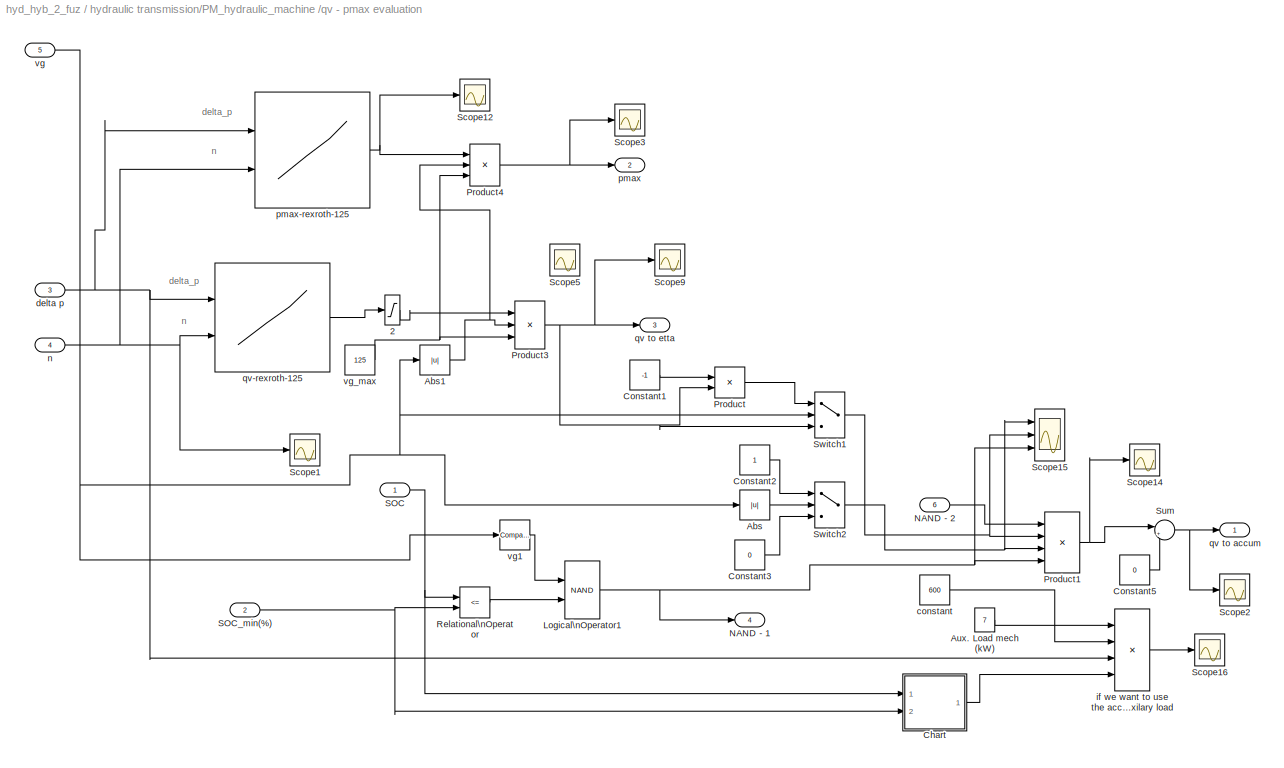
BLOCK [SubSystem] hydraulic transmission/PM_hydraulic_machine /qv - pmax evaluation
  FunctionWithSeparateData = off
  MaskHideContents = off
  MinAlgLoopOccurrences = off
  Opaque = off
  Ports = [6, 4]
  PropExecContextOutsideSubsystem = off
  RTWSystemCode = Auto
  RequestExecContextInheritance = off
  SID = 705
BLOCK [Saturate] hydraulic transmission/PM_hydraulic_machine /qv - pmax evaluation/2
  InputPortMap = u0
  LowerLimit = 0
  Ports = [1, 1]
  SID = 712
  UpperLimit = inf
BLOCK [Abs] hydraulic transmission/PM_hydraulic_machine /qv - pmax evaluation/Abs
  SID = 713
  SaturateOnIntegerOverflow = off
BLOCK [Abs] hydraulic transmission/PM_hydraulic_machine /qv - pmax evaluation/Abs1
  SID = 714
  SaturateOnIntegerOverflow = off
BLOCK [Constant] hydraulic transmission/PM_hydraulic_machine /qv - pmax evaluation/Aux. Load mech (kW)
  SID = 715
  Value = 7
BLOCK [SubSystem] hydraulic transmission/PM_hydraulic_machine /qv - pmax evaluation/Chart
  ErrorFcn = Stateflow.Translate.translate
  FunctionWithSeparateData = off
  MaskDescription = Stateflow diagram
  MaskDisplay = plot(sf('Private','sfblk','xIcon'),sf('Private','sfblk','yIcon'));text(0.5,0,sf('Private', 'sfblk', 'tIcon'),'HorizontalAl','Center','VerticalAl','Bottom');
  MaskHideContents = off
  MaskIconFrame = off
  MaskIconOpaque = off
  MaskIconRotate = none
  MaskIconUnits = autoscale
  MaskPortRotate = default
  MaskSelfModifiable = on
  MaskType = Stateflow
  MinAlgLoopOccurrences = off
  Opaque = off
  PermitHierarchicalResolution = ExplicitOnly
  Ports = [2, 1]
  PropExecContextOutsideSubsystem = off
  RTWSystemCode = Auto
  RequestExecContextInheritance = off
  SID = 716
  TreatAsAtomicUnit = on
BLOCK [Demux] hydraulic transmission/PM_hydraulic_machine /qv - pmax evaluation/Chart/ Demux 
  Outputs = 1
  Ports = [1, 1]
  SID = 716::8
BLOCK [S-Function] hydraulic transmission/PM_hydraulic_machine /qv - pmax evaluation/Chart/ SFunction 
  EnableBusSupport = on
  FunctionName = sf_sfun
  PortCounts = [2 2]
  Ports = [2, 2]
  SID = 716::7
  Tag = Stateflow S-Function hyd_hyb_2_fuz 4
BLOCK [Terminator] hydraulic transmission/PM_hydraulic_machine /qv - pmax evaluation/Chart/ Terminator 
  SID = 716::10
BLOCK [Inport] hydraulic transmission/PM_hydraulic_machine /qv - pmax evaluation/Chart/soc
  IconDisplay = Port number
  SID = 716::1
BLOCK [Inport] hydraulic transmission/PM_hydraulic_machine /qv - pmax evaluation/Chart/soc_min
  IconDisplay = Port number
  Port = 2
  SID = 716::2
BLOCK [Outport] hydraulic transmission/PM_hydraulic_machine /qv - pmax evaluation/Chart/u1
  IconDisplay = Port number
  SID = 716::6
BLOCK [Constant] hydraulic transmission/PM_hydraulic_machine /qv - pmax evaluation/Constant1
  SID = 717
  Value = -1
BLOCK [Constant] hydraulic transmission/PM_hydraulic_machine /qv - pmax evaluation/Constant2
  SID = 718
BLOCK [Constant] hydraulic transmission/PM_hydraulic_machine /qv - pmax evaluation/Constant3
  SID = 719
  Value = 0
BLOCK [Constant] hydraulic transmission/PM_hydraulic_machine /qv - pmax evaluation/Constant5
  SID = 720
  Value = 0
BLOCK [Logic] hydraulic transmission/PM_hydraulic_machine /qv - pmax evaluation/Logical\nOperator1
  AllPortsSameDT = off
  Operator = NAND
  OutDataTypeStr = boolean
  Ports = [2, 1]
  SID = 721
BLOCK [Outport] hydraulic transmission/PM_hydraulic_machine /qv - pmax evaluation/NAND - 1
  IconDisplay = Port number
  Port = 4
  SID = 748
BLOCK [Inport] hydraulic transmission/PM_hydraulic_machine /qv - pmax evaluation/NAND - 2
  IconDisplay = Port number
  Port = 6
  SID = 711
BLOCK [Product] hydraulic transmission/PM_hydraulic_machine /qv - pmax evaluation/Product
  InputSameDT = off
  OutDataTypeStr = Inherit: Inherit via internal rule
  Ports = [2, 1]
  SID = 722
  SaturateOnIntegerOverflow = off
BLOCK [Product] hydraulic transmission/PM_hydraulic_machine /qv - pmax evaluation/Product1
  InputSameDT = off
  Inputs = 4
  OutDataTypeStr = Inherit: Inherit via internal rule
  Ports = [4, 1]
  SID = 723
  SaturateOnIntegerOverflow = off
BLOCK [Product] hydraulic transmission/PM_hydraulic_machine /qv - pmax evaluation/Product3
  InputSameDT = off
  Inputs = **/
  OutDataTypeStr = Inherit: Inherit via internal rule
  Ports = [3, 1]
  SID = 724
  SaturateOnIntegerOverflow = off
BLOCK [Product] hydraulic transmission/PM_hydraulic_machine /qv - pmax evaluation/Product4
  InputSameDT = off
  Inputs = **/
  OutDataTypeStr = Inherit: Inherit via internal rule
  Ports = [3, 1]
  SID = 725
  SaturateOnIntegerOverflow = off
BLOCK [RelationalOperator] hydraulic transmission/PM_hydraulic_machine /qv - pmax evaluation/Relational\nOperator
  InputSameDT = off
  Operator = <=
  OutDataTypeStr = boolean
  Ports = [2, 1]
  SID = 726
BLOCK [Inport] hydraulic transmission/PM_hydraulic_machine /qv - pmax evaluation/SOC
  IconDisplay = Port number
  SID = 706
BLOCK [Inport] hydraulic transmission/PM_hydraulic_machine /qv - pmax evaluation/SOC_min(%)
  IconDisplay = Port number
  Port = 2
  SID = 707
BLOCK [Scope] hydraulic transmission/PM_hydraulic_machine /qv - pmax evaluation/Scope1
  DataFormat = StructureWithTime
  Floating = off
  NumInputPorts = 1
  Ports = [1]
  SID = 727
  SampleTime = 0
  SaveName = ScopeData79
  YMax = 880
  YMin = 660
  ZoomMode = xonly
BLOCK [Scope] hydraulic transmission/PM_hydraulic_machine /qv - pmax evaluation/Scope12
  DataFormat = StructureWithTime
  Floating = off
  NumInputPorts = 1
  Ports = [1]
  SID = 728
  SampleTime = 0
  SaveName = ScopeData81
  YMax = 350
  YMin = -200
BLOCK [Scope] hydraulic transmission/PM_hydraulic_machine /qv - pmax evaluation/Scope14
  DataFormat = StructureWithTime
  Floating = off
  NumInputPorts = 1
  Ports = [1]
  SID = 729
  SampleTime = 0
  SaveName = ScopeData54
  TimeRange = 2
  YMax = 5.413
  YMin = 5.391
  ZoomMode = yonly
BLOCK [Scope] hydraulic transmission/PM_hydraulic_machine /qv - pmax evaluation/Scope15
  DataFormat = StructureWithTime
  Floating = off
  NumInputPorts = 3
  Ports = [3]
  SID = 730
  SampleTime = 0
  SaveName = ScopeData72
  YMax = 350~5~5
  YMin = -200~-5~-5
  ZoomMode = yonly
BLOCK [Scope] hydraulic transmission/PM_hydraulic_machine /qv - pmax evaluation/Scope16
  DataFormat = StructureWithTime
  Floating = off
  NumInputPorts = 1
  Ports = [1]
  SID = 731
  SampleTime = 0
  SaveName = ScopeData96
  YMax = 6.1
  YMin = 5.45
  ZoomMode = xonly
BLOCK [Scope] hydraulic transmission/PM_hydraulic_machine /qv - pmax evaluation/Scope2
  DataFormat = StructureWithTime
  Floating = off
  NumInputPorts = 1
  Ports = [1]
  SID = 732
  SampleTime = 0
  SaveName = ScopeData85
  YMax = 85
  YMin = -15
  ZoomMode = xonly
BLOCK [Scope] hydraulic transmission/PM_hydraulic_machine /qv - pmax evaluation/Scope3
  DataFormat = StructureWithTime
  Floating = off
  NumInputPorts = 1
  Ports = [1]
  SID = 733
  SampleTime = 0
  SaveName = ScopeData87
  YMax = 350
  YMin = -200
BLOCK [Scope] hydraulic transmission/PM_hydraulic_machine /qv - pmax evaluation/Scope5
  DataFormat = StructureWithTime
  Floating = off
  NumInputPorts = 1
  Ports = [1]
  SID = 734
  SampleTime = 0
  SaveName = ScopeData82
  TimeRange = 2
  YMax = 350
  YMin = -200
  ZoomMode = yonly
BLOCK [Scope] hydraulic transmission/PM_hydraulic_machine /qv - pmax evaluation/Scope9
  DataFormat = StructureWithTime
  Floating = off
  NumInputPorts = 1
  Ports = [1]
  SID = 735
  SampleTime = 0
  SaveName = ScopeData86
  YMax = 350
  YMin = -200
BLOCK [Sum] hydraulic transmission/PM_hydraulic_machine /qv - pmax evaluation/Sum
  IconShape = round
  InputSameDT = off
  Inputs = |+-
  OutDataTypeStr = Inherit: Inherit via internal rule
  Ports = [2, 1]
  SID = 736
  SaturateOnIntegerOverflow = off
BLOCK [Switch] hydraulic transmission/PM_hydraulic_machine /qv - pmax evaluation/Switch1
  Criteria = u2 > Threshold
  InputSameDT = off
  SID = 737
  SaturateOnIntegerOverflow = off
BLOCK [Switch] hydraulic transmission/PM_hydraulic_machine /qv - pmax evaluation/Switch2
  Criteria = u2 > Threshold
  InputSameDT = off
  SID = 738
  SaturateOnIntegerOverflow = off
  Threshold = 0.001
BLOCK [Constant] hydraulic transmission/PM_hydraulic_machine /qv - pmax evaluation/constant
  SID = 739
  Value = 600
BLOCK [Inport] hydraulic transmission/PM_hydraulic_machine /qv - pmax evaluation/delta p
  IconDisplay = Port number
  Port = 3
  SID = 708
BLOCK [Product] hydraulic transmission/PM_hydraulic_machine /qv - pmax evaluation/if we want to use the accumulator for auxilary load
  InputSameDT = off
  Inputs = **/*
  OutDataTypeStr = Inherit: Inherit via internal rule
  Ports = [4, 1]
  SID = 740
  SaturateOnIntegerOverflow = off
BLOCK [Inport] hydraulic transmission/PM_hydraulic_machine /qv - pmax evaluation/n
  IconDisplay = Port number
  Port = 4
  SID = 709
BLOCK [Outport] hydraulic transmission/PM_hydraulic_machine /qv - pmax evaluation/pmax
  IconDisplay = Port number
  Port = 2
  SID = 746
BLOCK [Lookup2D] hydraulic transmission/PM_hydraulic_machine /qv - pmax evaluation/pmax-rexroth-125
  ColumnIndex = [800:100:1800]
  InputSameDT = off
  RowIndex = [0:10:350]
  SID = 741
  SaturateOnIntegerOverflow = off
  Table = pmax_125
BLOCK [Outport] hydraulic transmission/PM_hydraulic_machine /qv - pmax evaluation/qv to accum
  IconDisplay = Port number
  SID = 745
BLOCK [Outport] hydraulic transmission/PM_hydraulic_machine /qv - pmax evaluation/qv to etta
  IconDisplay = Port number
  Port = 3
  SID = 747
BLOCK [Lookup2D] hydraulic transmission/PM_hydraulic_machine /qv - pmax evaluation/qv-rexroth-125
  ColumnIndex = [800:100:1800]
  InputSameDT = off
  RowIndex = [0:10:350]
  SID = 742
  SaturateOnIntegerOverflow = off
  Table = qv_125
BLOCK [Inport] hydraulic transmission/PM_hydraulic_machine /qv - pmax evaluation/vg
  IconDisplay = Port number
  Port = 5
  SID = 710
BLOCK [Reference] hydraulic transmission/PM_hydraulic_machine /qv - pmax evaluation/vg1  REF=simulink/Logic and Bit\nOperations/Compare\nTo Constant
  FunctionWithSeparateData = off
  GeneratePreprocessorConditionals = off
  LogicOutDataTypeMode = uint8
  Ports = [1, 1]
  RTWMemSecDataConstants = Inherit from model
  RTWMemSecDataInternal = Inherit from model
  RTWMemSecDataParameters = Inherit from model
  RTWMemSecFuncExecute = Inherit from model
  RTWMemSecFuncInitTerm = Inherit from model
  SID = 743
  ShowPortLabels = FromPortIcon
  SourceBlock = simulink/Logic and Bit\nOperations/Compare\nTo Constant
  SourceType = Compare To Constant
  SystemSampleTime = -1
  ZeroCross = off
  const = 0
  relop = >
BLOCK [Constant] hydraulic transmission/PM_hydraulic_machine /qv - pmax evaluation/vg_max
  SID = 744
  Value = 125
BLOCK [SubSystem] hydraulic transmission/PM_hydraulic_machine /torque estimator
  FunctionWithSeparateData = off
  MaskHideContents = off
  MinAlgLoopOccurrences = off
  Opaque = off
  Ports = [6, 2]
  PropExecContextOutsideSubsystem = off
  RTWSystemCode = Auto
  RequestExecContextInheritance = off
  SID = 749
BLOCK [Constant] hydraulic transmission/PM_hydraulic_machine /torque estimator/Constant
  SID = 756
  Value = 20*pi
BLOCK [Constant] hydraulic transmission/PM_hydraulic_machine /torque estimator/Constant1
  SID = 757
  Value = 0.9
BLOCK [Logic] hydraulic transmission/PM_hydraulic_machine /torque estimator/Logical\nOperator
  AllPortsSameDT = off
  Operator = NAND
  OutDataTypeStr = boolean
  Ports = [2, 1]
  SID = 758
BLOCK [Inport] hydraulic transmission/PM_hydraulic_machine /torque estimator/NAND_1
  IconDisplay = Port number
  Port = 6
  SID = 755
BLOCK [Outport] hydraulic transmission/PM_hydraulic_machine /torque estimator/NAND_2
  IconDisplay = Port number
  Port = 2
  SID = 769
BLOCK [Product] hydraulic transmission/PM_hydraulic_machine /torque estimator/Product2
  InputSameDT = off
  Inputs = 3
  OutDataTypeStr = Inherit: Inherit via internal rule
  Ports = [3, 1]
  SID = 759
  SaturateOnIntegerOverflow = off
BLOCK [Inport] hydraulic transmission/PM_hydraulic_machine /torque estimator/SOC
  IconDisplay = Port number
  Port = 5
  SID = 754
BLOCK [Scope] hydraulic transmission/PM_hydraulic_machine /torque estimator/Scope
  DataFormat = StructureWithTime
  Floating = off
  NumInputPorts = 1
  Ports = [1]
  SID = 760
  SampleTime = 0
  SaveName = ScopeData6
  YMax = 300
  YMin = -100
  ZoomMode = xonly
BLOCK [Scope] hydraulic transmission/PM_hydraulic_machine /torque estimator/Scope2
  DataFormat = StructureWithTime
  Floating = off
  NumInputPorts = 3
  Ports = [3]
  SID = 761
  SampleTime = 0
  SaveName = ScopeData8
  YMax = 75~170~0.86
  YMin = -20~167.7~0.75
  ZoomMode = xonly
BLOCK [Switch] hydraulic transmission/PM_hydraulic_machine /torque estimator/Switch1
  Criteria = u2 > Threshold
  InputSameDT = off
  SID = 762
  SaturateOnIntegerOverflow = off
BLOCK [Switch] hydraulic transmission/PM_hydraulic_machine /torque estimator/Switch2
  Criteria = u2 > Threshold
  InputSameDT = off
  SID = 763
  SaturateOnIntegerOverflow = off
  Threshold = 400
BLOCK [Outport] hydraulic transmission/PM_hydraulic_machine /torque estimator/T(N.m)
  IconDisplay = Port number
  SID = 768
BLOCK [Inport] hydraulic transmission/PM_hydraulic_machine /torque estimator/delta_p
  IconDisplay = Port number
  Port = 3
  SID = 752
BLOCK [Inport] hydraulic transmission/PM_hydraulic_machine /torque estimator/eta_mh
  IconDisplay = Port number
  Port = 2
  SID = 751
BLOCK [Product] hydraulic transmission/PM_hydraulic_machine /torque estimator/motor
  InputSameDT = off
  Inputs = ***/
  OutDataTypeStr = Inherit: Inherit via internal rule
  Ports = [4, 1]
  RndMeth = Floor
  SID = 764
  SaturateOnIntegerOverflow = off
BLOCK [Inport] hydraulic transmission/PM_hydraulic_machine /torque estimator/n
  IconDisplay = Port number
  Port = 4
  SID = 753
BLOCK [Product] hydraulic transmission/PM_hydraulic_machine /torque estimator/pump
  InputSameDT = off
  Inputs = **//
  OutDataTypeStr = Inherit: Inherit via internal rule
  Ports = [4, 1]
  RndMeth = Floor
  SID = 765
  SaturateOnIntegerOverflow = off
BLOCK [Reference] hydraulic transmission/PM_hydraulic_machine /torque estimator/soc  REF=simulink/Logic and Bit\nOperations/Compare\nTo Constant
  FunctionWithSeparateData = off
  GeneratePreprocessorConditionals = off
  LogicOutDataTypeMode = uint8
  Ports = [1, 1]
  RTWMemSecDataConstants = Inherit from model
  RTWMemSecDataInternal = Inherit from model
  RTWMemSecDataParameters = Inherit from model
  RTWMemSecFuncExecute = Inherit from model
  RTWMemSecFuncInitTerm = Inherit from model
  SID = 766
  ShowPortLabels = FromPortIcon
  SourceBlock = simulink/Logic and Bit\nOperations/Compare\nTo Constant
  SourceType = Compare To Constant
  SystemSampleTime = -1
  ZeroCross = off
  const = 100
  relop = >=
BLOCK [Inport] hydraulic transmission/PM_hydraulic_machine /torque estimator/vg
  IconDisplay = Port number
  SID = 750
BLOCK [Reference] hydraulic transmission/PM_hydraulic_machine /torque estimator/vg1  REF=simulink/Logic and Bit\nOperations/Compare\nTo Constant
  FunctionWithSeparateData = off
  GeneratePreprocessorConditionals = off
  LogicOutDataTypeMode = uint8
  Ports = [1, 1]
  RTWMemSecDataConstants = Inherit from model
  RTWMemSecDataInternal = Inherit from model
  RTWMemSecDataParameters = Inherit from model
  RTWMemSecFuncExecute = Inherit from model
  RTWMemSecFuncInitTerm = Inherit from model
  SID = 767
  ShowPortLabels = FromPortIcon
  SourceBlock = simulink/Logic and Bit\nOperations/Compare\nTo Constant
  SourceType = Compare To Constant
  SystemSampleTime = -1
  ZeroCross = off
  const = 0
  relop = <
BLOCK [Inport] hydraulic transmission/PM_hydraulic_machine /vg(cm^3//rev)
  IconDisplay = Port number
  Port = 3
  SID = 636
BLOCK [Scope] hydraulic transmission/SOC
  DataFormat = StructureWithTime
  Floating = off
  LimitDataPoints = off
  NumInputPorts = 1
  Ports = [1]
  SID = 773
  SampleTime = 0
  TimeRange = 40.97171863669325
  YMax = 70
  YMin = 17.5
  ZoomMode = yonly
BLOCK [Outport] hydraulic transmission/SOC(%)
  IconDisplay = Port number
  SID = 959
BLOCK [Scope] hydraulic transmission/Scope1
  DataFormat = StructureWithTime
  Floating = off
  MaxDataPoints = 500
  NumInputPorts = 1
  Ports = [1]
  SID = 774
  SampleTime = 0
  SaveName = ScopeData76
  YMax = 350
  YMin = -350
  ZoomMode = xonly
BLOCK [Scope] hydraulic transmission/Scope2
  DataFormat = StructureWithTime
  Floating = off
  LimitDataPoints = off
  NumInputPorts = 1
  Ports = [1]
  SID = 775
  SampleTime = 0
  SaveName = ScopeData2
  YMax = 0.003805
  YMin = 0.003695
BLOCK [Scope] hydraulic transmission/Scope3
  DataFormat = StructureWithTime
  Floating = off
  LimitDataPoints = off
  MaxDataPoints = 500
  NumInputPorts = 1
  Ports = [1]
  SID = 776
  SampleTime = 0
  SaveName = ScopeData3
  YMax = 500
  YMin = -400
  ZoomMode = xonly
BLOCK [Scope] hydraulic transmission/Scope4
  DataFormat = StructureWithTime
  Floating = off
  NumInputPorts = 1
  Ports = [1]
  SID = 777
  SampleTime = 0
  SaveName = ScopeData4
  YMax = 80
  YMin = -80
  ZoomMode = yonly
BLOCK [Scope] hydraulic transmission/Scope5
  DataFormat = StructureWithTime
  Floating = off
  NumInputPorts = 1
  Ports = [1]
  SID = 778
  SampleTime = 0
  SaveName = ScopeData11
  YMax = 1
  YMin = -1
BLOCK [Scope] hydraulic transmission/Scope6
  DataFormat = StructureWithTime
  Floating = off
  NumInputPorts = 1
  Ports = [1]
  SID = 779
  SampleTime = 0
  SaveName = ScopeData102
  YMax = 440
  YMin = 440
  ZoomMode = yonly
BLOCK [SubSystem] hydraulic transmission/Sensor(PM)
  FunctionWithSeparateData = off
  MaskHideContents = off
  MinAlgLoopOccurrences = off
  Opaque = off
  Ports = [0, 0, 0, 0, 0, 1, 1]
  PropExecContextOutsideSubsystem = off
  RTWSystemCode = Auto
  RequestExecContextInheritance = off
  SID = 780
BLOCK [PMIOPort] hydraulic transmission/Sensor(PM)/A
  Port = 1
  SID = 795
  Side = Left
BLOCK [PMIOPort] hydraulic transmission/Sensor(PM)/B
  Port = 2
  SID = 796
  Side = Right
BLOCK [Goto] hydraulic transmission/Sensor(PM)/Goto
  GotoTag = w_PM
  SID = 781
  TagVisibility = global
BLOCK [Goto] hydraulic transmission/Sensor(PM)/Goto1
  GotoTag = T_PM
  SID = 782
  TagVisibility = global
BLOCK [SubSystem] hydraulic transmission/Sensor(PM)/Motion sensor
  FunctionWithSeparateData = off
  MaskHideContents = off
  MinAlgLoopOccurrences = off
  Opaque = off
  Ports = [0, 1, 0, 0, 0, 1]
  PropExecContextOutsideSubsystem = off
  RTWSystemCode = Auto
  RequestExecContextInheritance = off
  SID = 783
BLOCK [PMIOPort] hydraulic transmission/Sensor(PM)/Motion sensor/A
  Port = 1
  SID = 787
  Side = Left
BLOCK [Reference] hydraulic transmission/Sensor(PM)/Motion sensor/Ideal Rotational\nMotion Sensor  REF=fl_lib/Mechanical/Mechanical Sensors/Ideal Rotational\nMotion Sensor
  ClassName = sensor_rot_motion
  ComponentPath = foundation.mechanical.sensors.angular_velocity
  FunctionWithSeparateData = off
  GeneratePreprocessorConditionals = off
  LocalVarDescs = |w|t|phi
  LocalVarLogging = []
  LocalVarNames = |w|t|phi
  Ports = [0, 0, 0, 0, 0, 1, 3]
  RTWMemSecDataConstants = Inherit from model
  RTWMemSecDataInternal = Inherit from model
  RTWMemSecDataParameters = Inherit from model
  RTWMemSecFuncExecute = Inherit from model
  RTWMemSecFuncInitTerm = Inherit from model
  SID = 784
  SchemaVersion = 1
  ShowPortLabels = FromPortIcon
  SourceBlock = fl_lib/Mechanical/Mechanical Sensors/Ideal Rotational\nMotion Sensor
  SourceType = Ideal Rotational\nMotion Sensor
  SystemSampleTime = -1
  offset = 0
  offset_unit = rad
  phi_Log = off
  t_Log = off
  w_Log = off
BLOCK [Reference] hydraulic transmission/Sensor(PM)/Motion sensor/MRR  REF=fl_lib/Mechanical/Rotational Elements/Mechanical\nRotational Reference
  ClassName = reference_rot
  ComponentPath = foundation.mechanical.rotational.reference
  FunctionWithSeparateData = off
  GeneratePreprocessorConditionals = off
  LocalVarDescs = |t
  LocalVarLogging = []
  LocalVarNames = |t
  Ports = [0, 0, 0, 0, 0, 1]
  RTWMemSecDataConstants = Inherit from model
  RTWMemSecDataInternal = Inherit from model
  RTWMemSecDataParameters = Inherit from model
  RTWMemSecFuncExecute = Inherit from model
  RTWMemSecFuncInitTerm = Inherit from model
  SID = 785
  SchemaVersion = 1
  ShowPortLabels = FromPortIcon
  SourceBlock = fl_lib/Mechanical/Rotational Elements/Mechanical\nRotational Reference
  SourceType = Mechanical\nRotational Reference
  SystemSampleTime = -1
  t_Log = off
BLOCK [Reference] hydraulic transmission/Sensor(PM)/Motion sensor/PS-Simulink\nConverter  REF=nesl_utility/PS-Simulink\nConverter
  AffineConversion = off
  FunctionWithSeparateData = off
  GeneratePreprocessorConditionals = off
  LeftPortType = input
  PhysicalDomain = network_engine_domain
  Ports = [0, 1, 0, 0, 0, 1]
  RTWMemSecDataConstants = Inherit from model
  RTWMemSecDataInternal = Inherit from model
  RTWMemSecDataParameters = Inherit from model
  RTWMemSecFuncExecute = Inherit from model
  RTWMemSecFuncInitTerm = Inherit from model
  RightPortType = output
  SID = 786
  ShowPortLabels = none
  SourceBlock = nesl_utility/PS-Simulink\nConverter
  SourceType = PS-Simulink\nConverter
  SubClassName = ps_output
  SystemSampleTime = -1
  Unit = rad/s
BLOCK [Outport] hydraulic transmission/Sensor(PM)/Motion sensor/W
  IconDisplay = Port number
  SID = 788
BLOCK [SubSystem] hydraulic transmission/Sensor(PM)/Torque sensor
  FunctionWithSeparateData = off
  MaskHideContents = off
  MinAlgLoopOccurrences = off
  Opaque = off
  Ports = [0, 1, 0, 0, 0, 1, 1]
  PropExecContextOutsideSubsystem = off
  RTWSystemCode = Auto
  RequestExecContextInheritance = off
  SID = 789
BLOCK [PMIOPort] hydraulic transmission/Sensor(PM)/Torque sensor/A
  Port = 2
  SID = 793
  Side = Left
BLOCK [PMIOPort] hydraulic transmission/Sensor(PM)/Torque sensor/B
  Port = 1
  SID = 792
  Side = Right
BLOCK [Reference] hydraulic transmission/Sensor(PM)/Torque sensor/PS2S  REF=nesl_utility/PS-Simulink\nConverter
  AffineConversion = off
  FunctionWithSeparateData = off
  GeneratePreprocessorConditionals = off
  LeftPortType = input
  PhysicalDomain = network_engine_domain
  Ports = [0, 1, 0, 0, 0, 1]
  RTWMemSecDataConstants = Inherit from model
  RTWMemSecDataInternal = Inherit from model
  RTWMemSecDataParameters = Inherit from model
  RTWMemSecFuncExecute = Inherit from model
  RTWMemSecFuncInitTerm = Inherit from model
  RightPortType = output
  SID = 790
  ShowPortLabels = none
  SourceBlock = nesl_utility/PS-Simulink\nConverter
  SourceType = PS-Simulink\nConverter
  SubClassName = ps_output
  SystemSampleTime = -1
  Unit = 1
BLOCK [Outport] hydraulic transmission/Sensor(PM)/Torque sensor/T
  IconDisplay = Port number
  SID = 794
BLOCK [Reference] hydraulic transmission/Sensor(PM)/Torque sensor/Torque\nSensor  REF=fl_lib/Mechanical/Mechanical Sensors/Ideal Torque Sensor
  ClassName = sensor_torque
  ComponentPath = foundation.mechanical.sensors.torque
  FunctionWithSeparateData = off
  GeneratePreprocessorConditionals = off
  LocalVarDescs = |w|t
  LocalVarLogging = []
  LocalVarNames = |w|t
  Ports = [0, 0, 0, 0, 0, 1, 2]
  RTWMemSecDataConstants = Inherit from model
  RTWMemSecDataInternal = Inherit from model
  RTWMemSecDataParameters = Inherit from model
  RTWMemSecFuncExecute = Inherit from model
  RTWMemSecFuncInitTerm = Inherit from model
  SID = 791
  SchemaVersion = 1
  ShowPortLabels = FromPortIcon
  SourceBlock = fl_lib/Mechanical/Mechanical Sensors/Ideal Torque Sensor
  SourceType = Ideal Torque Sensor
  SystemSampleTime = -1
  t_Log = off
  w_Log = off
BLOCK [Sum] hydraulic transmission/Sum
  IconShape = round
  InputSameDT = off
  Inputs = |+-
  OutDataTypeStr = Inherit: Inherit via internal rule
  Ports = [2, 1]
  SID = 797
  SaturateOnIntegerOverflow = off
BLOCK [Inport] hydraulic transmission/T_ref(N.m)
  IconDisplay = Port number
  SID = 628
BLOCK [SubSystem] hydraulic transmission/accumulator
  FunctionWithSeparateData = off
  MaskHideContents = off
  MinAlgLoopOccurrences = off
  Opaque = off
  Ports = [2, 5]
  PropExecContextOutsideSubsystem = off
  RTWSystemCode = Auto
  RequestExecContextInheritance = off
  SID = 798
BLOCK [SubSystem] hydraulic transmission/accumulator/SOC estimator
  FunctionWithSeparateData = off
  MaskHideContents = off
  MinAlgLoopOccurrences = off
  Opaque = off
  Ports = [3, 2]
  PropExecContextOutsideSubsystem = off
  RTWSystemCode = Auto
  RequestExecContextInheritance = off
  SID = 801
BLOCK [Product] hydraulic transmission/accumulator/SOC estimator/Divide1
  InputSameDT = off
  Inputs = */
  OutDataTypeStr = Inherit: Inherit via internal rule
  Ports = [2, 1]
  RndMeth = Floor
  SID = 805
  SaturateOnIntegerOverflow = off
BLOCK [Product] hydraulic transmission/accumulator/SOC estimator/Divide3
  InputSameDT = off
  Inputs = */
  OutDataTypeStr = Inherit: Inherit via internal rule
  Ports = [2, 1]
  RndMeth = Floor
  SID = 806
  SaturateOnIntegerOverflow = off
BLOCK [Gain] hydraulic transmission/accumulator/SOC estimator/Gain
  Gain = 100
  OutDataTypeStr = Inherit: Inherit via internal rule
  ParamDataTypeStr = Inherit: Inherit via internal rule
  SID = 807
  SaturateOnIntegerOverflow = off
BLOCK [Gain] hydraulic transmission/accumulator/SOC estimator/Gain5
  Gain = 100
  OutDataTypeStr = Inherit: Inherit via internal rule
  ParamDataTypeStr = Inherit: Inherit via internal rule
  SID = 808
  SaturateOnIntegerOverflow = off
BLOCK [Outport] hydraulic transmission/accumulator/SOC estimator/SOC(%)
  IconDisplay = Port number
  SID = 811
BLOCK [Outport] hydraulic transmission/accumulator/SOC estimator/SOC_min(%)
  IconDisplay = Port number
  Port = 2
  SID = 812
BLOCK [Scope] hydraulic transmission/accumulator/SOC estimator/Scope1
  DataFormat = StructureWithTime
  Floating = off
  NumInputPorts = 1
  Ports = [1]
  SID = 809
  SampleTime = 0
  SaveName = ScopeData6
  YMax = 12.7693
  YMin = 11.5531
BLOCK [Scope] hydraulic transmission/accumulator/SOC estimator/Scope6
  DataFormat = StructureWithTime
  Floating = off
  NumInputPorts = 1
  Ports = [1]
  SID = 810
  SampleTime = 0
  SaveName = ScopeData4
BLOCK [Inport] hydraulic transmission/accumulator/SOC estimator/max_vol
  IconDisplay = Port number
  SID = 802
BLOCK [Inport] hydraulic transmission/accumulator/SOC estimator/min_vol
  IconDisplay = Port number
  Port = 3
  SID = 804
BLOCK [Inport] hydraulic transmission/accumulator/SOC estimator/v_x
  IconDisplay = Port number
  Port = 2
  SID = 803
BLOCK [Outport] hydraulic transmission/accumulator/SOC(%)
  IconDisplay = Port number
  Port = 2
  SID = 925
BLOCK [Outport] hydraulic transmission/accumulator/SOC_min(%)
  IconDisplay = Port number
  Port = 3
  SID = 926
BLOCK [Outport] hydraulic transmission/accumulator/accum_init_vol(lit)
  IconDisplay = Port number
  Port = 4
  SID = 927
BLOCK [Outport] hydraulic transmission/accumulator/accum_mass ( kg )
  IconDisplay = Port number
  Port = 5
  SID = 928
BLOCK [SubSystem] hydraulic transmission/accumulator/accum_pres & vol estimator
  FunctionWithSeparateData = off
  MaskHideContents = off
  MinAlgLoopOccurrences = off
  Opaque = off
  Ports = [6, 2]
  PropExecContextOutsideSubsystem = off
  RTWSystemCode = Auto
  RequestExecContextInheritance = off
  SID = 813
BLOCK [Gain] hydraulic transmission/accumulator/accum_pres & vol estimator/Gain
  Gain = 61.02
  OutDataTypeStr = Inherit: Inherit via internal rule
  ParamDataTypeStr = Inherit: Inherit via internal rule
  SID = 820
  SaturateOnIntegerOverflow = off
BLOCK [Gain] hydraulic transmission/accumulator/accum_pres & vol estimator/Gain1
  Gain = 0.0689
  OutDataTypeStr = Inherit: Inherit via internal rule
  ParamDataTypeStr = Inherit: Inherit via internal rule
  SID = 821
  SaturateOnIntegerOverflow = off
BLOCK [Product] hydraulic transmission/accumulator/accum_pres & vol estimator/Product1
  InputSameDT = off
  Inputs = 3
  OutDataTypeStr = Inherit: Inherit via internal rule
  Ports = [3, 1]
  SID = 822
  SaturateOnIntegerOverflow = off
BLOCK [Scope] hydraulic transmission/accumulator/accum_pres & vol estimator/Scope1
  DataFormat = StructureWithTime
  Floating = off
  NumInputPorts = 1
  Ports = [1]
  SID = 823
  SampleTime = 0
BLOCK [Scope] hydraulic transmission/accumulator/accum_pres & vol estimator/Scope3
  DataFormat = StructureWithTime
  Floating = off
  NumInputPorts = 3
  Ports = [3]
  SID = 824
  SampleTime = 0
  SaveName = ScopeData2
  YMax = 5~5~5
  YMin = -5~-5~-5
BLOCK [Scope] hydraulic transmission/accumulator/accum_pres & vol estimator/Scope4
  DataFormat = StructureWithTime
  Floating = off
  NumInputPorts = 1
  Ports = [1]
  SID = 825
  SampleTime = 0
  SaveName = ScopeData103
  YMax = 2825
  YMin = 2500
BLOCK [Scope] hydraulic transmission/accumulator/accum_pres & vol estimator/Scope5
  DataFormat = StructureWithTime
  Floating = off
  NumInputPorts = 1
  Ports = [1]
  SID = 826
  SampleTime = 0
  SaveName = ScopeData104
  YMax = 147
  YMin = 140.5
BLOCK [Switch] hydraulic transmission/accumulator/accum_pres & vol estimator/Switch
  Criteria = u2 > Threshold
  InputSameDT = off
  SID = 827
  SaturateOnIntegerOverflow = off
  Threshold = 12
BLOCK [Switch] hydraulic transmission/accumulator/accum_pres & vol estimator/Switch1
  Criteria = u2 > Threshold
  InputSameDT = off
  SID = 828
  SaturateOnIntegerOverflow = off
  Threshold = 7
BLOCK [Outport] hydraulic transmission/accumulator/accum_pres & vol estimator/accum_init_vol(lit)
  IconDisplay = Port number
  Port = 2
  SID = 833
BLOCK [Inport] hydraulic transmission/accumulator/accum_pres & vol estimator/accum_num
  IconDisplay = Port number
  Port = 4
  SID = 817
BLOCK [Outport] hydraulic transmission/accumulator/accum_pres & vol estimator/accum_pres(bar)
  IconDisplay = Port number
  SID = 832
BLOCK [Inport] hydraulic transmission/accumulator/accum_pres & vol estimator/accum_type
  IconDisplay = Port number
  Port = 6
  SID = 819
BLOCK [Inport] hydraulic transmission/accumulator/accum_pres & vol estimator/init_SOC
  IconDisplay = Port number
  Port = 2
  SID = 815
BLOCK [Inport] hydraulic transmission/accumulator/accum_pres & vol estimator/max_vol
  IconDisplay = Port number
  Port = 3
  SID = 816
BLOCK [Inport] hydraulic transmission/accumulator/accum_pres & vol estimator/pre_ch_press(psi)
  IconDisplay = Port number
  Port = 5
  SID = 818
BLOCK [Lookup_n-D] hydraulic transmission/accumulator/accum_pres & vol estimator/rexroth-10
  BreakpointsForDimension1 = [0:33.8889:1559]
  BreakpointsForDimension2 = [1000,1400,2000]
  IndexSearchMethod = Binary search
  Ports = [2, 1]
  SID = 829
  Table = p_v_15
BLOCK [Lookup_n-D] hydraulic transmission/accumulator/accum_pres & vol estimator/rexroth-15
  BreakpointsForDimension1 = [0,50,100,150,200,250,300,350,400,450,500,550,600,650,700,750,800,850,900,950,1000,1050,1100,1150,1200,1250,1300,1350,1400,1450,1500,1550,1600,1650,1700,1750,1800,1850,1900,1950,2000,2050,2100,2150,2200,2250,2300]
  BreakpointsForDimension2 = [1000,1400,2000]
  IndexSearchMethod = Binary search
  Ports = [2, 1]
  SID = 830
  Table = p_v_15
BLOCK [Lookup_n-D] hydraulic transmission/accumulator/accum_pres & vol estimator/rexroth-5
  BreakpointsForDimension1 = [0:17.33:814]
  BreakpointsForDimension2 = [1000,1400,2000]
  IndexSearchMethod = Binary search
  Ports = [2, 1]
  SID = 831
  Table = p_v_15
BLOCK [Inport] hydraulic transmission/accumulator/accum_pres & vol estimator/v_x
  IconDisplay = Port number
  SID = 814
BLOCK [Outport] hydraulic transmission/accumulator/accum_pres(bar)
  IconDisplay = Port number
  SID = 924
BLOCK [Inport] hydraulic transmission/accumulator/accum_vol(lit)
  IconDisplay = Port number
  SID = 799
BLOCK [SubSystem] hydraulic transmission/accumulator/base variables
  FunctionWithSeparateData = off
  MaskHideContents = off
  MinAlgLoopOccurrences = off
  Opaque = off
  Ports = [2, 9]
  PropExecContextOutsideSubsystem = off
  RTWSystemCode = Auto
  RequestExecContextInheritance = off
  SID = 834
BLOCK [Product] hydraulic transmission/accumulator/base variables/Divide2
  InputSameDT = off
  Inputs = */
  OutDataTypeStr = Inherit: Inherit via internal rule
  Ports = [2, 1]
  RndMeth = Floor
  SID = 837
  SaturateOnIntegerOverflow = off
BLOCK [Gain] hydraulic transmission/accumulator/base variables/Gain1
  Gain = 14.5038
  OutDataTypeStr = Inherit: Inherit via internal rule
  ParamDataTypeStr = Inherit: Inherit via internal rule
  SID = 838
  SaturateOnIntegerOverflow = off
BLOCK [Gain] hydraulic transmission/accumulator/base variables/Gain2
  Gain = 14.5038
  OutDataTypeStr = Inherit: Inherit via internal rule
  ParamDataTypeStr = Inherit: Inherit via internal rule
  SID = 839
  SaturateOnIntegerOverflow = off
BLOCK [Gain] hydraulic transmission/accumulator/base variables/Gain3
  Gain = 14.5038
  OutDataTypeStr = Inherit: Inherit via internal rule
  ParamDataTypeStr = Inherit: Inherit via internal rule
  SID = 840
  SaturateOnIntegerOverflow = off
BLOCK [Gain] hydraulic transmission/accumulator/base variables/Gain4
  Gain = 0.01
  OutDataTypeStr = Inherit: Inherit via internal rule
  ParamDataTypeStr = Inherit: Inherit via internal rule
  SID = 841
  SaturateOnIntegerOverflow = off
BLOCK [Scope] hydraulic transmission/accumulator/base variables/Scope1
  DataFormat = StructureWithTime
  Floating = off
  NumInputPorts = 1
  Ports = [1]
  SID = 842
  SampleTime = 0
  SaveName = ScopeData5
  YMax = 3138.33
  YMin = 3138.26
  ZoomMode = yonly
BLOCK [Scope] hydraulic transmission/accumulator/base variables/Scope10
  DataFormat = StructureWithTime
  Floating = off
  NumInputPorts = 3
  Ports = [3]
  SID = 843
  SampleTime = 0
  SaveName = ScopeData1
  YMax = 2132.06~2436.64~5254
  YMin = 1929~2204.58~4753.62
BLOCK [Scope] hydraulic transmission/accumulator/base variables/Scope7
  DataFormat = StructureWithTime
  Floating = off
  NumInputPorts = 1
  Ports = [1]
  SID = 844
  SampleTime = 0
  SaveName = ScopeData3
  YMax = 3138.33
  YMin = 3138.26
  ZoomMode = yonly
BLOCK [Outport] hydraulic transmission/accumulator/base variables/accum_number
  IconDisplay = Port number
  Port = 5
  SID = 855
BLOCK [Outport] hydraulic transmission/accumulator/base variables/accum_type
  IconDisplay = Port number
  Port = 4
  SID = 854
BLOCK [Constant] hydraulic transmission/accumulator/base variables/accum_type(gal)
  SID = 845
  Value = 15
BLOCK [Inport] hydraulic transmission/accumulator/base variables/accum_vol(lit)
  IconDisplay = Port number
  Port = 2
  SID = 836
BLOCK [Gain] hydraulic transmission/accumulator/base variables/gal to lit
  Gain = 3.7854
  OutDataTypeStr = Inherit: Inherit via internal rule
  ParamDataTypeStr = Inherit: Inherit via internal rule
  SID = 846
  SaturateOnIntegerOverflow = off
BLOCK [Outport] hydraulic transmission/accumulator/base variables/init_SOC
  IconDisplay = Port number
  Port = 6
  SID = 856
BLOCK [Inport] hydraulic transmission/accumulator/base variables/init_SOC(%)
  IconDisplay = Port number
  SID = 835
BLOCK [Outport] hydraulic transmission/accumulator/base variables/max_press
  IconDisplay = Port number
  Port = 3
  SID = 853
BLOCK [Constant] hydraulic transmission/accumulator/base variables/max_press(bar)
  SID = 847
  Value = 325
BLOCK [Outport] hydraulic transmission/accumulator/base variables/min_press
  IconDisplay = Port number
  Port = 2
  SID = 852
BLOCK [Constant] hydraulic transmission/accumulator/base variables/min_press(bar)
  SID = 848
  Value = 140
BLOCK [Outport] hydraulic transmission/accumulator/base variables/min_press1
  IconDisplay = Port number
  Port = 9
  SID = 859
BLOCK [Constant] hydraulic transmission/accumulator/base variables/number of accum
  SID = 849
  Value = 2
BLOCK [Outport] hydraulic transmission/accumulator/base variables/pre_ch_press
  IconDisplay = Port number
  SID = 851
BLOCK [Constant] hydraulic transmission/accumulator/base variables/pre_ch_press(bar)
  SID = 850
  Value = 125
BLOCK [Outport] hydraulic transmission/accumulator/base variables/v_0
  IconDisplay = Port number
  Port = 7
  SID = 857
BLOCK [Outport] hydraulic transmission/accumulator/base variables/v_x
  IconDisplay = Port number
  Port = 8
  SID = 858
BLOCK [Inport] hydraulic transmission/accumulator/init_SOC(%)
  IconDisplay = Port number
  Port = 2
  SID = 800
BLOCK [SubSystem] hydraulic transmission/accumulator/max - min volume estimator
  FunctionWithSeparateData = off
  MaskHideContents = off
  MinAlgLoopOccurrences = off
  Opaque = off
  Ports = [5, 3]
  PropExecContextOutsideSubsystem = off
  RTWSystemCode = Auto
  RequestExecContextInheritance = off
  SID = 860
BLOCK [Sum] hydraulic transmission/accumulator/max - min volume estimator/Add
  InputSameDT = off
  Inputs = +++
  OutDataTypeStr = Inherit: Inherit via internal rule
  Ports = [3, 1]
  SID = 866
  SaturateOnIntegerOverflow = off
BLOCK [Sum] hydraulic transmission/accumulator/max - min volume estimator/Add1
  InputSameDT = off
  Inputs = +++
  OutDataTypeStr = Inherit: Inherit via internal rule
  Ports = [3, 1]
  SID = 867
  SaturateOnIntegerOverflow = off
BLOCK [Sum] hydraulic transmission/accumulator/max - min volume estimator/Add2
  InputSameDT = off
  Inputs = +++
  OutDataTypeStr = Inherit: Inherit via internal rule
  Ports = [3, 1]
  SID = 868
  SaturateOnIntegerOverflow = off
BLOCK [If] hydraulic transmission/accumulator/max - min volume estimator/If
  IfExpression = u1 == 5
  Ports = [1, 1]
  SID = 869
  ShowElse = off
BLOCK [If] hydraulic transmission/accumulator/max - min volume estimator/If1
  IfExpression = u1 == 10
  Ports = [1, 1]
  SID = 870
  ShowElse = off
BLOCK [If] hydraulic transmission/accumulator/max - min volume estimator/If2
  IfExpression = u1 == 15
  Ports = [1, 1]
  SID = 871
  ShowElse = off
BLOCK [Product] hydraulic transmission/accumulator/max - min volume estimator/Product
  InputSameDT = off
  OutDataTypeStr = Inherit: Inherit via internal rule
  Ports = [2, 1]
  SID = 872
  SaturateOnIntegerOverflow = off
BLOCK [Scope] hydraulic transmission/accumulator/max - min volume estimator/Scope1
  DataFormat = StructureWithTime
  Floating = off
  NumInputPorts = 3
  Ports = [3]
  SID = 873
  SampleTime = 0
  SaveName = ScopeData101
  YMax = 105~5~5
  YMin = 95~-5~-5
BLOCK [Scope] hydraulic transmission/accumulator/max - min volume estimator/Scope4
  DataFormat = StructureWithTime
  Floating = off
  NumInputPorts = 3
  Ports = [3]
  SID = 874
  SampleTime = 0
  SaveName = ScopeData7
  YMax = 1~1~25.2423
  YMin = -1~-1~22.8383
BLOCK [Scope] hydraulic transmission/accumulator/max - min volume estimator/Scope5
  DataFormat = StructureWithTime
  Floating = off
  NumInputPorts = 3
  Ports = [3]
  SID = 875
  SampleTime = 0
  SaveName = ScopeData8
  YMax = 1~1~4.98208
  YMin = -1~-1~4.5076
BLOCK [Outport] hydraulic transmission/accumulator/max - min volume estimator/accum_dry_mass ( kg )
  IconDisplay = Port number
  Port = 3
  SID = 923
BLOCK [Inport] hydraulic transmission/accumulator/max - min volume estimator/accum_num
  IconDisplay = Port number
  Port = 5
  SID = 865
BLOCK [Inport] hydraulic transmission/accumulator/max - min volume estimator/accum_size
  IconDisplay = Port number
  Port = 4
  SID = 864
BLOCK [SubSystem] hydraulic transmission/accumulator/max - min volume estimator/for 10 gal accumulator
  FunctionWithSeparateData = off
  MaskHideContents = off
  MinAlgLoopOccurrences = off
  Opaque = off
  Ports = [3, 3, 0, 0, 0, 0, 0, 1]
  PropExecContextOutsideSubsystem = off
  RTWSystemCode = Auto
  RequestExecContextInheritance = off
  SID = 876
  TreatAsAtomicUnit = on
BLOCK [ActionPort] hydraulic transmission/accumulator/max - min volume estimator/for 10 gal accumulator/Action Port
  ActionType = then
  PropagateVarSize = During execution
  SID = 880
BLOCK [Constant] hydraulic transmission/accumulator/max - min volume estimator/for 10 gal accumulator/Constant
  SID = 881
  Value = 152
BLOCK [Scope] hydraulic transmission/accumulator/max - min volume estimator/for 10 gal accumulator/Scope
  DataFormat = StructureWithTime
  Floating = off
  NumInputPorts = 2
  Ports = [2]
  SID = 882
  SampleTime = 0
  SaveName = ScopeData40
  YMax = 5~5
  YMin = -5~-5
BLOCK [Scope] hydraulic transmission/accumulator/max - min volume estimator/for 10 gal accumulator/Scope1
  DataFormat = StructureWithTime
  Floating = off
  NumInputPorts = 2
  Ports = [2]
  SID = 883
  SampleTime = 0
  SaveName = ScopeData41
  YMax = 5~5
  YMin = -5~-5
BLOCK [Outport] hydraulic transmission/accumulator/max - min volume estimator/for 10 gal accumulator/accum_dry_mass ( kg )
  IconDisplay = Port number
  InitialOutput = [0]
  Port = 3
  SID = 890
BLOCK [Gain] hydraulic transmission/accumulator/max - min volume estimator/for 10 gal accumulator/in^3 to lit
  Gain = 16.387e-3
  OutDataTypeStr = Inherit: Inherit via internal rule
  ParamDataTypeStr = Inherit: Inherit via internal rule
  SID = 884
  SaturateOnIntegerOverflow = off
BLOCK [Gain] hydraulic transmission/accumulator/max - min volume estimator/for 10 gal accumulator/in^3 to lit (1)
  Gain = 16.387e-3
  OutDataTypeStr = Inherit: Inherit via internal rule
  ParamDataTypeStr = Inherit: Inherit via internal rule
  SID = 885
  SaturateOnIntegerOverflow = off
BLOCK [Inport] hydraulic transmission/accumulator/max - min volume estimator/for 10 gal accumulator/max_press(psi)
  IconDisplay = Port number
  Port = 2
  SID = 878
BLOCK [Outport] hydraulic transmission/accumulator/max - min volume estimator/for 10 gal accumulator/max_vol(lit)
  IconDisplay = Port number
  Port = 2
  SID = 889
BLOCK [Inport] hydraulic transmission/accumulator/max - min volume estimator/for 10 gal accumulator/min_press(psi)
  IconDisplay = Port number
  SID = 877
BLOCK [Outport] hydraulic transmission/accumulator/max - min volume estimator/for 10 gal accumulator/min_vol(lit)
  IconDisplay = Port number
  SID = 888
BLOCK [Inport] hydraulic transmission/accumulator/max - min volume estimator/for 10 gal accumulator/pre_ch_press(psi)
  IconDisplay = Port number
  Port = 3
  SID = 879
BLOCK [Lookup_n-D] hydraulic transmission/accumulator/max - min volume estimator/for 10 gal accumulator/rexroth-1
  BreakpointsForDimension1 = [1000,1100,1200,1300,1400,1500,1600,1700,1800,1900,2000,2100,2200,2300,2400,2500,2600,2700,2800,2900,3000,3100,3200,3300,3400,3500,3600,3700,3800,3900,4000,4100,4200,4300,4400,4500,4600,4700,4800,4900,5000,5100,5200,5300,5400,5500,5600,5700,5800,5900,6000]  <repeated x6 — deduplicated; at blocks: rexroth-1, rexroth-10, rexroth-15, rexroth-5>
  BreakpointsForDimension2 = [1000,1400,2000]
  IndexSearchMethod = Binary search
  Ports = [2, 1]
  SID = 886
  Table = v_p_10
BLOCK [Lookup_n-D] hydraulic transmission/accumulator/max - min volume estimator/for 10 gal accumulator/rexroth-10
  BreakpointsForDimension2 = [1000,1400,2000]
  IndexSearchMethod = Binary search
  Ports = [2, 1]
  SID = 887
  Table = v_p_10
BLOCK [SubSystem] hydraulic transmission/accumulator/max - min volume estimator/for 15 gal accumulator1
  FunctionWithSeparateData = off
  MaskHideContents = off
  MinAlgLoopOccurrences = off
  Opaque = off
  Ports = [3, 3, 0, 0, 0, 0, 0, 1]
  PropExecContextOutsideSubsystem = off
  RTWSystemCode = Auto
  RequestExecContextInheritance = off
  SID = 891
  TreatAsAtomicUnit = on
BLOCK [ActionPort] hydraulic transmission/accumulator/max - min volume estimator/for 15 gal accumulator1/Action Port
  ActionType = then
  PropagateVarSize = During execution
  SID = 895
BLOCK [Constant] hydraulic transmission/accumulator/max - min volume estimator/for 15 gal accumulator1/Constant
  SID = 896
  Value = 220
BLOCK [Scope] hydraulic transmission/accumulator/max - min volume estimator/for 15 gal accumulator1/Scope
  DataFormat = StructureWithTime
  Floating = off
  NumInputPorts = 2
  Ports = [2]
  SID = 897
  SampleTime = 0
  SaveName = ScopeData38
  YMax = 5~5
  YMin = -5~-5
BLOCK [Scope] hydraulic transmission/accumulator/max - min volume estimator/for 15 gal accumulator1/Scope1
  DataFormat = StructureWithTime
  Floating = off
  NumInputPorts = 2
  Ports = [2]
  SID = 898
  SampleTime = 0
  SaveName = ScopeData39
  YMax = 4.74484~24.0403
  YMin = 4.74484~24.0403
BLOCK [Outport] hydraulic transmission/accumulator/max - min volume estimator/for 15 gal accumulator1/accum_dry_mass ( kg )
  IconDisplay = Port number
  InitialOutput = [0]
  Port = 3
  SID = 905
BLOCK [Gain] hydraulic transmission/accumulator/max - min volume estimator/for 15 gal accumulator1/in^3 to lit
  Gain = 16.387e-3
  OutDataTypeStr = Inherit: Inherit via internal rule
  ParamDataTypeStr = Inherit: Inherit via internal rule
  SID = 899
  SaturateOnIntegerOverflow = off
BLOCK [Gain] hydraulic transmission/accumulator/max - min volume estimator/for 15 gal accumulator1/in^3 to lit (1)
  Gain = 16.387e-3
  OutDataTypeStr = Inherit: Inherit via internal rule
  ParamDataTypeStr = Inherit: Inherit via internal rule
  SID = 900
  SaturateOnIntegerOverflow = off
BLOCK [Inport] hydraulic transmission/accumulator/max - min volume estimator/for 15 gal accumulator1/max_press(psi)
  IconDisplay = Port number
  Port = 2
  SID = 893
BLOCK [Outport] hydraulic transmission/accumulator/max - min volume estimator/for 15 gal accumulator1/max_vol(lit)
  IconDisplay = Port number
  Port = 2
  SID = 904
BLOCK [Inport] hydraulic transmission/accumulator/max - min volume estimator/for 15 gal accumulator1/min_press(psi)
  IconDisplay = Port number
  SID = 892
BLOCK [Outport] hydraulic transmission/accumulator/max - min volume estimator/for 15 gal accumulator1/min_vol(lit)
  IconDisplay = Port number
  SID = 903
BLOCK [Inport] hydraulic transmission/accumulator/max - min volume estimator/for 15 gal accumulator1/pre_ch_press(psi)
  IconDisplay = Port number
  Port = 3
  SID = 894
BLOCK [Lookup_n-D] hydraulic transmission/accumulator/max - min volume estimator/for 15 gal accumulator1/rexroth-1
  BreakpointsForDimension2 = [1000,1400,2000]
  IndexSearchMethod = Binary search
  Ports = [2, 1]
  SID = 901
  Table = v_p_15
BLOCK [Lookup_n-D] hydraulic transmission/accumulator/max - min volume estimator/for 15 gal accumulator1/rexroth-15
  BreakpointsForDimension2 = [1000,1400,2000]
  IndexSearchMethod = Binary search
  Ports = [2, 1]
  SID = 902
  Table = v_p_15
BLOCK [SubSystem] hydraulic transmission/accumulator/max - min volume estimator/for 5 gal accumulator
  FunctionWithSeparateData = off
  MaskHideContents = off
  MinAlgLoopOccurrences = off
  Opaque = off
  Ports = [3, 3, 0, 0, 0, 0, 0, 1]
  PropExecContextOutsideSubsystem = off
  RTWSystemCode = Auto
  RequestExecContextInheritance = off
  SID = 906
  TreatAsAtomicUnit = on
BLOCK [ActionPort] hydraulic transmission/accumulator/max - min volume estimator/for 5 gal accumulator/Action Port
  ActionType = then
  PropagateVarSize = During execution
  SID = 910
BLOCK [Constant] hydraulic transmission/accumulator/max - min volume estimator/for 5 gal accumulator/Constant
  SID = 911
  Value = 100
BLOCK [Scope] hydraulic transmission/accumulator/max - min volume estimator/for 5 gal accumulator/Scope
  DataFormat = StructureWithTime
  Floating = off
  NumInputPorts = 2
  Ports = [2]
  SID = 912
  SampleTime = 0
  SaveName = ScopeData27
  YMax = 5~5
  YMin = -5~-5
  ZoomMode = yonly
BLOCK [Scope] hydraulic transmission/accumulator/max - min volume estimator/for 5 gal accumulator/Scope1
  DataFormat = StructureWithTime
  Floating = off
  NumInputPorts = 2
  Ports = [2]
  SID = 913
  SampleTime = 0
  SaveName = ScopeData28
  YMax = 61.8714~626.852
  YMin = 61.8714~626.852
  ZoomMode = yonly
BLOCK [Outport] hydraulic transmission/accumulator/max - min volume estimator/for 5 gal accumulator/accum_dry_mass ( kg )
  IconDisplay = Port number
  InitialOutput = [0]
  Port = 3
  SID = 920
BLOCK [Gain] hydraulic transmission/accumulator/max - min volume estimator/for 5 gal accumulator/in^3 to lit
  Gain = 16.387e-3
  OutDataTypeStr = Inherit: Inherit via internal rule
  ParamDataTypeStr = Inherit: Inherit via internal rule
  SID = 914
  SaturateOnIntegerOverflow = off
BLOCK [Gain] hydraulic transmission/accumulator/max - min volume estimator/for 5 gal accumulator/in^3 to lit (1)
  Gain = 16.387e-3
  OutDataTypeStr = Inherit: Inherit via internal rule
  ParamDataTypeStr = Inherit: Inherit via internal rule
  SID = 915
  SaturateOnIntegerOverflow = off
BLOCK [Inport] hydraulic transmission/accumulator/max - min volume estimator/for 5 gal accumulator/max_press(psi)
  IconDisplay = Port number
  Port = 2
  SID = 908
BLOCK [Outport] hydraulic transmission/accumulator/max - min volume estimator/for 5 gal accumulator/max_vol(lit)
  IconDisplay = Port number
  Port = 2
  SID = 919
BLOCK [Inport] hydraulic transmission/accumulator/max - min volume estimator/for 5 gal accumulator/min_press(psi)
  IconDisplay = Port number
  SID = 907
BLOCK [Outport] hydraulic transmission/accumulator/max - min volume estimator/for 5 gal accumulator/min_vol(lit)
  IconDisplay = Port number
  SID = 918
BLOCK [Inport] hydraulic transmission/accumulator/max - min volume estimator/for 5 gal accumulator/pre_ch_press(psi)
  IconDisplay = Port number
  Port = 3
  SID = 909
BLOCK [Lookup_n-D] hydraulic transmission/accumulator/max - min volume estimator/for 5 gal accumulator/rexroth-1
  BreakpointsForDimension2 = [1000,1400,2000]
  IndexSearchMethod = Binary search
  Ports = [2, 1]
  SID = 916
  Table = v_p_5
BLOCK [Lookup_n-D] hydraulic transmission/accumulator/max - min volume estimator/for 5 gal accumulator/rexroth-5
  BreakpointsForDimension2 = [1000,1400,2000]
  IndexSearchMethod = Binary search
  Ports = [2, 1]
  SID = 917
  Table = v_p_5
BLOCK [Inport] hydraulic transmission/accumulator/max - min volume estimator/max_press
  IconDisplay = Port number
  Port = 2
  SID = 862
BLOCK [Outport] hydraulic transmission/accumulator/max - min volume estimator/max_vol
  IconDisplay = Port number
  Port = 2
  SID = 922
BLOCK [Inport] hydraulic transmission/accumulator/max - min volume estimator/min_press
  IconDisplay = Port number
  SID = 861
BLOCK [Outport] hydraulic transmission/accumulator/max - min volume estimator/min_vol
  IconDisplay = Port number
  SID = 921
BLOCK [Inport] hydraulic transmission/accumulator/max - min volume estimator/pre_c_press
  IconDisplay = Port number
  Port = 3
  SID = 863
BLOCK [SubSystem] hydraulic transmission/conjunction with wheels
  FunctionWithSeparateData = off
  MaskHideContents = off
  MinAlgLoopOccurrences = off
  Opaque = off
  Ports = [2, 2, 0, 0, 0, 0, 1]
  PropExecContextOutsideSubsystem = off
  RTWSystemCode = Auto
  RequestExecContextInheritance = off
  SID = 929
BLOCK [PMIOPort] hydraulic transmission/conjunction with wheels/Connection Port
  Port = 1
  SID = 943
  Side = Right
  Tag = PMCPort
BLOCK [Constant] hydraulic transmission/conjunction with wheels/Constant
  SID = 932
  Value = 0
BLOCK [Reference] hydraulic transmission/conjunction with wheels/Ideal Rotational\nMotion Sensor  REF=fl_lib/Mechanical/Mechanical Sensors/Ideal Rotational\nMotion Sensor
  ClassName = angular_velocity
  ComponentPath = foundation.mechanical.sensors.angular_velocity
  FunctionWithSeparateData = off
  GeneratePreprocessorConditionals = off
  LocalVarDescs = |w|t|phi
  LocalVarLogging = [0 0 0]
  LocalVarNames = |w|t|phi
  Ports = [0, 0, 0, 0, 0, 1, 3]
  RTWMemSecDataConstants = Inherit from model
  RTWMemSecDataInternal = Inherit from model
  RTWMemSecDataParameters = Inherit from model
  RTWMemSecFuncExecute = Inherit from model
  RTWMemSecFuncInitTerm = Inherit from model
  SID = 933
  SchemaVersion = 1
  ShowPortLabels = FromPortIcon
  SourceBlock = fl_lib/Mechanical/Mechanical Sensors/Ideal Rotational\nMotion Sensor
  SourceType = Ideal Rotational\nMotion Sensor
  SystemSampleTime = -1
  offset = 0
  offset_unit = rad
  phi_Log = off
  t_Log = off
  w_Log = off
BLOCK [Reference] hydraulic transmission/conjunction with wheels/Ideal Torque Source  REF=fl_lib/Mechanical/Mechanical Sources/Ideal Torque Source
  ClassName = torque
  ComponentPath = foundation.mechanical.sources.torque
  FunctionWithSeparateData = off
  GeneratePreprocessorConditionals = off
  LocalVarDescs = |w|t
  LocalVarLogging = [0 0]
  LocalVarNames = |w|t
  Ports = [0, 0, 0, 0, 0, 1, 2]
  RTWMemSecDataConstants = Inherit from model
  RTWMemSecDataInternal = Inherit from model
  RTWMemSecDataParameters = Inherit from model
  RTWMemSecFuncExecute = Inherit from model
  RTWMemSecFuncInitTerm = Inherit from model
  SID = 934
  SchemaVersion = 1
  ShowPortLabels = FromPortIcon
  SourceBlock = fl_lib/Mechanical/Mechanical Sources/Ideal Torque Source
  SourceType = Ideal Torque Source
  SystemSampleTime = -1
  t_Log = off
  w_Log = off
BLOCK [Reference] hydraulic transmission/conjunction with wheels/Mechanical\nRotational Reference  REF=fl_lib/Mechanical/Rotational Elements/Mechanical\nRotational Reference
  ClassName = reference
  ComponentPath = foundation.mechanical.rotational.reference
  FunctionWithSeparateData = off
  GeneratePreprocessorConditionals = off
  LocalVarDescs = |t
  LocalVarLogging = 0
  LocalVarNames = |t
  Ports = [0, 0, 0, 0, 0, 1]
  RTWMemSecDataConstants = Inherit from model
  RTWMemSecDataInternal = Inherit from model
  RTWMemSecDataParameters = Inherit from model
  RTWMemSecFuncExecute = Inherit from model
  RTWMemSecFuncInitTerm = Inherit from model
  SID = 935
  SchemaVersion = 1
  ShowPortLabels = FromPortIcon
  SourceBlock = fl_lib/Mechanical/Rotational Elements/Mechanical\nRotational Reference
  SourceType = Mechanical\nRotational Reference
  SystemSampleTime = -1
  t_Log = off
BLOCK [Reference] hydraulic transmission/conjunction with wheels/Mechanical\nRotational Reference1  REF=fl_lib/Mechanical/Rotational Elements/Mechanical\nRotational Reference
  ClassName = reference
  ComponentPath = foundation.mechanical.rotational.reference
  FunctionWithSeparateData = off
  GeneratePreprocessorConditionals = off
  LocalVarDescs = |t
  LocalVarLogging = 0
  LocalVarNames = |t
  Ports = [0, 0, 0, 0, 0, 1]
  RTWMemSecDataConstants = Inherit from model
  RTWMemSecDataInternal = Inherit from model
  RTWMemSecDataParameters = Inherit from model
  RTWMemSecFuncExecute = Inherit from model
  RTWMemSecFuncInitTerm = Inherit from model
  SID = 936
  SchemaVersion = 1
  ShowPortLabels = FromPortIcon
  SourceBlock = fl_lib/Mechanical/Rotational Elements/Mechanical\nRotational Reference
  SourceType = Mechanical\nRotational Reference
  SystemSampleTime = -1
  t_Log = off
BLOCK [Reference] hydraulic transmission/conjunction with wheels/PS-Simulink\nConverter  REF=nesl_utility/PS-Simulink\nConverter
  AffineConversion = off
  FunctionWithSeparateData = off
  GeneratePreprocessorConditionals = off
  LeftPortType = input
  PhysicalDomain = network_engine_domain
  Ports = [0, 1, 0, 0, 0, 1]
  RTWMemSecDataConstants = Inherit from model
  RTWMemSecDataInternal = Inherit from model
  RTWMemSecDataParameters = Inherit from model
  RTWMemSecFuncExecute = Inherit from model
  RTWMemSecFuncInitTerm = Inherit from model
  RightPortType = output
  SID = 937
  ShowPortLabels = FromPortIcon
  SourceBlock = nesl_utility/PS-Simulink\nConverter
  SourceType = PS-Simulink\nConverter
  SubClassName = ps_output
  SystemSampleTime = -1
  Unit = 1
BLOCK [Scope] hydraulic transmission/conjunction with wheels/Scope1
  DataFormat = StructureWithTime
  Floating = off
  LimitDataPoints = off
  NumInputPorts = 1
  Ports = [1]
  SID = 938
  SampleTime = 0
  SaveName = ScopeData92
  YMax = 2
  YMin = -0.1
  ZoomMode = xonly
BLOCK [Scope] hydraulic transmission/conjunction with wheels/Scope6
  DataFormat = StructureWithTime
  Floating = off
  LimitDataPoints = off
  NumInputPorts = 1
  Ports = [1]
  SID = 939
  SampleTime = 0
  SaveName = ScopeData53
  YMax = 2
  YMin = -0.1
  ZoomMode = xonly
BLOCK [Reference] hydraulic transmission/conjunction with wheels/Simulink-PS\nConverter  REF=nesl_utility/Simulink-PS\nConverter
  AffineConversion = off
  FunctionWithSeparateData = off
  GeneratePreprocessorConditionals = off
  InputFilterTimeConstant = .001
  LeftPortType = input
  PhysicalDomain = network_engine_domain
  Ports = [1, 0, 0, 0, 0, 0, 1]
  RTWMemSecDataConstants = Inherit from model
  RTWMemSecDataInternal = Inherit from model
  RTWMemSecDataParameters = Inherit from model
  RTWMemSecFuncExecute = Inherit from model
  RTWMemSecFuncInitTerm = Inherit from model
  RightPortType = output
  SID = 940
  ShowPortLabels = FromPortIcon
  SourceBlock = nesl_utility/Simulink-PS\nConverter
  SourceType = Simulink-PS\nConverter
  SubClassName = ps_input
  SystemSampleTime = -1
  UdotUserProvided = 0
  Unit = 1
BLOCK [Switch] hydraulic transmission/conjunction with wheels/Switch
  Criteria = u2 ~= 0
  InputSameDT = off
  SID = 941
  SaturateOnIntegerOverflow = off
BLOCK [Inport] hydraulic transmission/conjunction with wheels/T
  IconDisplay = Port number
  Port = 2
  SID = 931
BLOCK [Outport] hydraulic transmission/conjunction with wheels/n ( rpm )
  IconDisplay = Port number
  SID = 944
BLOCK [Gain] hydraulic transmission/conjunction with wheels/rad//s to rpm
  Gain = 60/(2*pi)
  OutDataTypeStr = Inherit: Inherit via internal rule
  ParamDataTypeStr = Inherit: Inherit via internal rule
  SID = 942
  SaturateOnIntegerOverflow = off
BLOCK [Outport] hydraulic transmission/conjunction with wheels/torque feedback
  IconDisplay = Port number
  Port = 2
  SID = 945
BLOCK [Inport] hydraulic transmission/conjunction with wheels/vg
  IconDisplay = Port number
  SID = 930
BLOCK [SubSystem] hydraulic transmission/controller
  FunctionWithSeparateData = off
  MaskHideContents = off
  MinAlgLoopOccurrences = off
  Opaque = off
  Ports = [1, 1]
  PropExecContextOutsideSubsystem = off
  RTWSystemCode = Auto
  RequestExecContextInheritance = off
  SID = 946
BLOCK [Gain] hydraulic transmission/controller/Gain
  Gain = 1.4
  OutDataTypeStr = Inherit: Inherit via internal rule
  ParamDataTypeStr = Inherit: Inherit via internal rule
  SID = 948
  SaturateOnIntegerOverflow = off
BLOCK [Reference] hydraulic transmission/controller/PID Controller  REF=simulink_need_slupdate/PID Controller
  D = 0
  FunctionWithSeparateData = off
  GeneratePreprocessorConditionals = off
  I = 10
  P = 0.1
  Ports = [1, 1]
  RTWMemSecDataConstants = Inherit from model
  RTWMemSecDataInternal = Inherit from model
  RTWMemSecDataParameters = Inherit from model
  RTWMemSecFuncExecute = Inherit from model
  RTWMemSecFuncInitTerm = Inherit from model
  SID = 949
  ShowPortLabels = FromPortIcon
  SourceBlock = simulink_need_slupdate/PID Controller
  SourceType = PID Controller
  SystemSampleTime = -1
BLOCK [Saturate] hydraulic transmission/controller/Saturation
  InputPortMap = u0
  LowerLimit = -125
  Ports = [1, 1]
  SID = 950
  UpperLimit = 125
BLOCK [Scope] hydraulic transmission/controller/Scope
  DataFormat = StructureWithTime
  Floating = off
  NumInputPorts = 1
  Ports = [1]
  SID = 951
  SampleTime = 0
  SaveName = ScopeData5
  YMax = 105
  YMin = 0
BLOCK [Inport] hydraulic transmission/controller/T_error
  IconDisplay = Port number
  SID = 947
BLOCK [TransferFcn] hydraulic transmission/controller/Transfer Fcn
  Denominator = [1 5]
  Numerator = [1 0]
  SID = 952
BLOCK [Outport] hydraulic transmission/controller/vg(cm^3//rev)
  IconDisplay = Port number
  SID = 953
BLOCK [Outport] hydraulic transmission/delta p
  IconDisplay = Port number
  Port = 2
  SID = 960
BLOCK [Gain] hydraulic transmission/gain
  OutDataTypeStr = Inherit: Inherit via internal rule
  ParamDataTypeStr = Inherit: Inherit via internal rule
  SID = 954
  SaturateOnIntegerOverflow = off
BLOCK [Constant] hydraulic transmission/init_SOC ( %)
  SID = 955
  Value = 70
BLOCK [Gain] hydraulic transmission/l//min to l//s
  Gain = (1/60)
  OutDataTypeStr = Inherit: Inherit via internal rule
  ParamDataTypeStr = Inherit: Inherit via internal rule
  SID = 956
  SaturateOnIntegerOverflow = off
BLOCK [PMIOPort] hydraulic transmission/to coupling
  Port = 1
  SID = 958
  Side = Right
  Tag = PMCPort
BLOCK [Integrator] hydraulic transmission/v(lit)
  InitialConditionSource = external
  Ports = [2, 1]
  SID = 957
BLOCK [SubSystem] post-transmission\ntorque coupling
  FunctionWithSeparateData = off
  MaskHideContents = off
  MinAlgLoopOccurrences = off
  Opaque = off
  Ports = [0, 1, 0, 0, 0, 2, 1]
  PropExecContextOutsideSubsystem = off
  RTWSystemCode = Auto
  RequestExecContextInheritance = off
  SID = 961
BLOCK [Reference] post-transmission\ntorque coupling/Inertia  REF=fl_lib/Mechanical/Rotational Elements/Inertia
  ClassName = inertia
  ComponentPath = foundation.mechanical.rotational.inertia
  FunctionWithSeparateData = off
  GeneratePreprocessorConditionals = off
  LocalVarDescs = |t
  LocalVarLogging = 0
  LocalVarNames = |t
  Ports = [0, 0, 0, 0, 0, 1]
  RTWMemSecDataConstants = Inherit from model
  RTWMemSecDataInternal = Inherit from model
  RTWMemSecDataParameters = Inherit from model
  RTWMemSecFuncExecute = Inherit from model
  RTWMemSecFuncInitTerm = Inherit from model
  SID = 962
  SchemaVersion = 1
  ShowPortLabels = FromPortIcon
  SourceBlock = fl_lib/Mechanical/Rotational Elements/Inertia
  SourceType = Inertia
  SystemSampleTime = -1
  inertia = 8.5e-3
  inertia_unit = kg*m^2
  initial_velocity = 0
  initial_velocity_unit = rad/s
  t_Log = off
BLOCK [Outport] post-transmission\ntorque coupling/P//M actu_torq(N.m)
  IconDisplay = Port number
  SID = 993
BLOCK [SubSystem] post-transmission\ntorque coupling/Sensor(coupling)
  FunctionWithSeparateData = off
  MaskHideContents = off
  MinAlgLoopOccurrences = off
  Opaque = off
  Ports = [0, 0, 0, 0, 0, 1, 1]
  PropExecContextOutsideSubsystem = off
  RTWSystemCode = Auto
  RequestExecContextInheritance = off
  SID = 963
BLOCK [PMIOPort] post-transmission\ntorque coupling/Sensor(coupling)/A
  Port = 1
  SID = 978
  Side = Left
BLOCK [PMIOPort] post-transmission\ntorque coupling/Sensor(coupling)/B
  Port = 2
  SID = 979
  Side = Right
BLOCK [Goto] post-transmission\ntorque coupling/Sensor(coupling)/Goto
  GotoTag = w_coupling
  SID = 964
  TagVisibility = global
BLOCK [Goto] post-transmission\ntorque coupling/Sensor(coupling)/Goto1
  GotoTag = T_coupling
  SID = 965
  TagVisibility = global
BLOCK [SubSystem] post-transmission\ntorque coupling/Sensor(coupling)/Motion sensor
  FunctionWithSeparateData = off
  MaskHideContents = off
  MinAlgLoopOccurrences = off
  Opaque = off
  Ports = [0, 1, 0, 0, 0, 1]
  PropExecContextOutsideSubsystem = off
  RTWSystemCode = Auto
  RequestExecContextInheritance = off
  SID = 966
BLOCK [PMIOPort] post-transmission\ntorque coupling/Sensor(coupling)/Motion sensor/A
  Port = 1
  SID = 970
  Side = Left
BLOCK [Reference] post-transmission\ntorque coupling/Sensor(coupling)/Motion sensor/Ideal Rotational\nMotion Sensor  REF=fl_lib/Mechanical/Mechanical Sensors/Ideal Rotational\nMotion Sensor
  ClassName = sensor_rot_motion
  ComponentPath = foundation.mechanical.sensors.angular_velocity
  FunctionWithSeparateData = off
  GeneratePreprocessorConditionals = off
  LocalVarDescs = |w|t|phi
  LocalVarLogging = []
  LocalVarNames = |w|t|phi
  Ports = [0, 0, 0, 0, 0, 1, 3]
  RTWMemSecDataConstants = Inherit from model
  RTWMemSecDataInternal = Inherit from model
  RTWMemSecDataParameters = Inherit from model
  RTWMemSecFuncExecute = Inherit from model
  RTWMemSecFuncInitTerm = Inherit from model
  SID = 967
  SchemaVersion = 1
  ShowPortLabels = FromPortIcon
  SourceBlock = fl_lib/Mechanical/Mechanical Sensors/Ideal Rotational\nMotion Sensor
  SourceType = Ideal Rotational\nMotion Sensor
  SystemSampleTime = -1
  offset = 0
  offset_unit = rad
  phi_Log = off
  t_Log = off
  w_Log = off
BLOCK [Reference] post-transmission\ntorque coupling/Sensor(coupling)/Motion sensor/MRR  REF=fl_lib/Mechanical/Rotational Elements/Mechanical\nRotational Reference
  ClassName = reference_rot
  ComponentPath = foundation.mechanical.rotational.reference
  FunctionWithSeparateData = off
  GeneratePreprocessorConditionals = off
  LocalVarDescs = |t
  LocalVarLogging = []
  LocalVarNames = |t
  Ports = [0, 0, 0, 0, 0, 1]
  RTWMemSecDataConstants = Inherit from model
  RTWMemSecDataInternal = Inherit from model
  RTWMemSecDataParameters = Inherit from model
  RTWMemSecFuncExecute = Inherit from model
  RTWMemSecFuncInitTerm = Inherit from model
  SID = 968
  SchemaVersion = 1
  ShowPortLabels = FromPortIcon
  SourceBlock = fl_lib/Mechanical/Rotational Elements/Mechanical\nRotational Reference
  SourceType = Mechanical\nRotational Reference
  SystemSampleTime = -1
  t_Log = off
BLOCK [Reference] post-transmission\ntorque coupling/Sensor(coupling)/Motion sensor/PS-Simulink\nConverter  REF=nesl_utility/PS-Simulink\nConverter
  AffineConversion = off
  FunctionWithSeparateData = off
  GeneratePreprocessorConditionals = off
  LeftPortType = input
  PhysicalDomain = network_engine_domain
  Ports = [0, 1, 0, 0, 0, 1]
  RTWMemSecDataConstants = Inherit from model
  RTWMemSecDataInternal = Inherit from model
  RTWMemSecDataParameters = Inherit from model
  RTWMemSecFuncExecute = Inherit from model
  RTWMemSecFuncInitTerm = Inherit from model
  RightPortType = output
  SID = 969
  ShowPortLabels = none
  SourceBlock = nesl_utility/PS-Simulink\nConverter
  SourceType = PS-Simulink\nConverter
  SubClassName = ps_output
  SystemSampleTime = -1
  Unit = rad/s
BLOCK [Outport] post-transmission\ntorque coupling/Sensor(coupling)/Motion sensor/W
  IconDisplay = Port number
  SID = 971
BLOCK [SubSystem] post-transmission\ntorque coupling/Sensor(coupling)/Torque sensor
  FunctionWithSeparateData = off
  MaskHideContents = off
  MinAlgLoopOccurrences = off
  Opaque = off
  Ports = [0, 1, 0, 0, 0, 1, 1]
  PropExecContextOutsideSubsystem = off
  RTWSystemCode = Auto
  RequestExecContextInheritance = off
  SID = 972
BLOCK [PMIOPort] post-transmission\ntorque coupling/Sensor(coupling)/Torque sensor/A
  Port = 2
  SID = 976
  Side = Left
BLOCK [PMIOPort] post-transmission\ntorque coupling/Sensor(coupling)/Torque sensor/B
  Port = 1
  SID = 975
  Side = Right
BLOCK [Reference] post-transmission\ntorque coupling/Sensor(coupling)/Torque sensor/PS2S  REF=nesl_utility/PS-Simulink\nConverter
  AffineConversion = off
  FunctionWithSeparateData = off
  GeneratePreprocessorConditionals = off
  LeftPortType = input
  PhysicalDomain = network_engine_domain
  Ports = [0, 1, 0, 0, 0, 1]
  RTWMemSecDataConstants = Inherit from model
  RTWMemSecDataInternal = Inherit from model
  RTWMemSecDataParameters = Inherit from model
  RTWMemSecFuncExecute = Inherit from model
  RTWMemSecFuncInitTerm = Inherit from model
  RightPortType = output
  SID = 973
  ShowPortLabels = none
  SourceBlock = nesl_utility/PS-Simulink\nConverter
  SourceType = PS-Simulink\nConverter
  SubClassName = ps_output
  SystemSampleTime = -1
  Unit = 1
BLOCK [Outport] post-transmission\ntorque coupling/Sensor(coupling)/Torque sensor/T
  IconDisplay = Port number
  SID = 977
BLOCK [Reference] post-transmission\ntorque coupling/Sensor(coupling)/Torque sensor/Torque\nSensor  REF=fl_lib/Mechanical/Mechanical Sensors/Ideal Torque Sensor
  ClassName = sensor_torque
  ComponentPath = foundation.mechanical.sensors.torque
  FunctionWithSeparateData = off
  GeneratePreprocessorConditionals = off
  LocalVarDescs = |w|t
  LocalVarLogging = []
  LocalVarNames = |w|t
  Ports = [0, 0, 0, 0, 0, 1, 2]
  RTWMemSecDataConstants = Inherit from model
  RTWMemSecDataInternal = Inherit from model
  RTWMemSecDataParameters = Inherit from model
  RTWMemSecFuncExecute = Inherit from model
  RTWMemSecFuncInitTerm = Inherit from model
  SID = 974
  SchemaVersion = 1
  ShowPortLabels = FromPortIcon
  SourceBlock = fl_lib/Mechanical/Mechanical Sensors/Ideal Torque Sensor
  SourceType = Ideal Torque Sensor
  SystemSampleTime = -1
  t_Log = off
  w_Log = off
BLOCK [Reference] post-transmission\ntorque coupling/Simple Gear  REF=sdl_lib/Gears/Simple Gear
  ClassName = simple_gear
  ComponentPath = sdl.gears.simple_gear
  FunctionWithSeparateData = off
  GeneratePreprocessorConditionals = off
  LocalVarLogging = []
  Ports = [0, 0, 0, 0, 0, 1, 1]
  RTWMemSecDataConstants = Inherit from model
  RTWMemSecDataInternal = Inherit from model
  RTWMemSecDataParameters = Inherit from model
  RTWMemSecFuncExecute = Inherit from model
  RTWMemSecFuncInitTerm = Inherit from model
  SID = 980
  SchemaVersion = 1
  ShowPortLabels = FromPortIcon
  SourceBlock = sdl_lib/Gears/Simple Gear
  SourceType = Simple Gear
  SystemSampleTime = -1
  T_noload = 0.1
  T_noload_unit = N*m
  T_nom = 5
  T_nom_unit = N*m
  efficiency = 0.8
  efficiency_nom = 0.8
  efficiency_nom_unit = 1
  efficiency_unit = 1
  friction_model = 1
  friction_model_unit = 1
  mu_visc = [ 0 0 ]
  mu_visc_unit = N*m/(rad/s)
  ratio = 1
  ratio_unit = 1
  rotation_direction = 1
  rotation_direction_unit = 1
  w_thr = 0.01
  w_thr_unit = rad/s
BLOCK [Reference] post-transmission\ntorque coupling/Simple Gear1  REF=sdl_lib/Gears/Simple Gear
  ClassName = simple_gear
  ComponentPath = sdl.gears.simple_gear
  FunctionWithSeparateData = off
  GeneratePreprocessorConditionals = off
  LocalVarLogging = []
  Ports = [0, 0, 0, 0, 0, 1, 1]
  RTWMemSecDataConstants = Inherit from model
  RTWMemSecDataInternal = Inherit from model
  RTWMemSecDataParameters = Inherit from model
  RTWMemSecFuncExecute = Inherit from model
  RTWMemSecFuncInitTerm = Inherit from model
  SID = 981
  SchemaVersion = 1
  ShowPortLabels = FromPortIcon
  SourceBlock = sdl_lib/Gears/Simple Gear
  SourceType = Simple Gear
  SystemSampleTime = -1
  T_noload = 0.1
  T_noload_unit = N*m
  T_nom = 5
  T_nom_unit = N*m
  efficiency = 0.8
  efficiency_nom = 0.8
  efficiency_nom_unit = 1
  efficiency_unit = 1
  friction_model = 1
  friction_model_unit = 1
  mu_visc = [ 0 0 ]
  mu_visc_unit = N*m/(rad/s)
  ratio = 1
  ratio_unit = 1
  rotation_direction = 1
  rotation_direction_unit = 1
  w_thr = 0.01
  w_thr_unit = rad/s
BLOCK [PMIOPort] post-transmission\ntorque coupling/from P//M
  Port = 2
  SID = 991
  Side = Left
  Tag = PMCPort
BLOCK [PMIOPort] post-transmission\ntorque coupling/from engine
  Port = 1
  SID = 990
  Side = Left
  Tag = PMCPort
BLOCK [SubSystem] post-transmission\ntorque coupling/pm gearbox
  FunctionWithSeparateData = off
  MaskHideContents = off
  MinAlgLoopOccurrences = off
  Opaque = off
  Ports = [0, 1, 0, 0, 0, 1, 1]
  PropExecContextOutsideSubsystem = off
  RTWSystemCode = Auto
  RequestExecContextInheritance = off
  SID = 982
BLOCK [PMIOPort] post-transmission\ntorque coupling/pm gearbox/Connection Port
  Port = 1
  SID = 987
  Side = Left
  Tag = PMCPort
BLOCK [PMIOPort] post-transmission\ntorque coupling/pm gearbox/Connection Port1
  Port = 2
  SID = 988
  Side = Right
  Tag = PMCPort
BLOCK [Reference] post-transmission\ntorque coupling/pm gearbox/Ideal Torque Sensor  REF=fl_lib/Mechanical/Mechanical Sensors/Ideal Torque Sensor
  ClassName = torque
  ComponentPath = foundation.mechanical.sensors.torque
  FunctionWithSeparateData = off
  GeneratePreprocessorConditionals = off
  LocalVarDescs = |w|t
  LocalVarLogging = [0 0]
  LocalVarNames = |w|t
  Ports = [0, 0, 0, 0, 0, 1, 2]
  RTWMemSecDataConstants = Inherit from model
  RTWMemSecDataInternal = Inherit from model
  RTWMemSecDataParameters = Inherit from model
  RTWMemSecFuncExecute = Inherit from model
  RTWMemSecFuncInitTerm = Inherit from model
  SID = 983
  SchemaVersion = 1
  ShowPortLabels = FromPortIcon
  SourceBlock = fl_lib/Mechanical/Mechanical Sensors/Ideal Torque Sensor
  SourceType = Ideal Torque Sensor
  SystemSampleTime = -1
  t_Log = off
  w_Log = off
BLOCK [Memory] post-transmission\ntorque coupling/pm gearbox/Memory
  SID = 984
BLOCK [Outport] post-transmission\ntorque coupling/pm gearbox/P//M actu_torq(N.m)
  IconDisplay = Port number
  SID = 989
BLOCK [Reference] post-transmission\ntorque coupling/pm gearbox/PS-Simulink\nConverter  REF=nesl_utility/PS-Simulink\nConverter
  AffineConversion = off
  FunctionWithSeparateData = off
  GeneratePreprocessorConditionals = off
  LeftPortType = input
  PhysicalDomain = network_engine_domain
  Ports = [0, 1, 0, 0, 0, 1]
  RTWMemSecDataConstants = Inherit from model
  RTWMemSecDataInternal = Inherit from model
  RTWMemSecDataParameters = Inherit from model
  RTWMemSecFuncExecute = Inherit from model
  RTWMemSecFuncInitTerm = Inherit from model
  RightPortType = output
  SID = 985
  ShowPortLabels = FromPortIcon
  SourceBlock = nesl_utility/PS-Simulink\nConverter
  SourceType = PS-Simulink\nConverter
  SubClassName = ps_output
  SystemSampleTime = -1
  Unit = N*m
BLOCK [Reference] post-transmission\ntorque coupling/pm gearbox/Simple Gear1  REF=sdl_lib/Gears/Simple Gear
  ClassName = simple_gear
  ComponentPath = sdl.gears.simple_gear
  FunctionWithSeparateData = off
  GeneratePreprocessorConditionals = off
  LocalVarLogging = []
  Ports = [0, 0, 0, 0, 0, 1, 1]
  RTWMemSecDataConstants = Inherit from model
  RTWMemSecDataInternal = Inherit from model
  RTWMemSecDataParameters = Inherit from model
  RTWMemSecFuncExecute = Inherit from model
  RTWMemSecFuncInitTerm = Inherit from model
  SID = 986
  SchemaVersion = 1
  ShowPortLabels = FromPortIcon
  SourceBlock = sdl_lib/Gears/Simple Gear
  SourceType = Simple Gear
  SystemSampleTime = -1
  T_noload = 0.1
  T_noload_unit = N*m
  T_nom = 5
  T_nom_unit = N*m
  efficiency = 0.8
  efficiency_nom = 0.8
  efficiency_nom_unit = 1
  efficiency_unit = 1
  friction_model = 1
  friction_model_unit = 1
  mu_visc = [ 0 0 ]
  mu_visc_unit = N*m/(rad/s)
  ratio = 1.75
  ratio_unit = 1
  rotation_direction = 1
  rotation_direction_unit = 1
  w_thr = 0.01
  w_thr_unit = rad/s
BLOCK [PMIOPort] post-transmission\ntorque coupling/to the wheel
  Port = 3
  SID = 992
  Side = Right
  Tag = PMCPort
BLOCK [SubSystem] scopes
  FunctionWithSeparateData = off
  MaskHideContents = off
  MinAlgLoopOccurrences = off
  Opaque = off
  Ports = []
  PropExecContextOutsideSubsystem = off
  RTWSystemCode = Auto
  RequestExecContextInheritance = off
  SID = 994
  ShowPortLabels = none
BLOCK [Display] scopes/Display
  Decimation = 1
  Lockdown = off
  Ports = [1]
  SID = 1022
BLOCK [Display] scopes/Display1
  Decimation = 1
  Lockdown = off
  Ports = [1]
  SID = 1025
BLOCK [Scope] scopes/Scope
  DataFormat = StructureWithTime
  Floating = off
  LimitDataPoints = off
  NumInputPorts = 3
  Ports = [3]
  SID = 995
  SampleTime = 0
  SaveName = engine_scope
  SaveToWorkspace = on
  YMax = -20100~1100~1155
  YMin = -21500~0~1045
  ZoomMode = yonly
BLOCK [Scope] scopes/Scope1
  DataFormat = StructureWithTime
  Floating = off
  LimitDataPoints = off
  NumInputPorts = 2
  Ports = [2]
  SID = 996
  SampleTime = 0
  SaveName = gearbox_scope
  SaveToWorkspace = on
  YMax = 5~5
  YMin = -5~-5
  ZoomMode = yonly
BLOCK [Scope] scopes/Scope2
  DataFormat = StructureWithTime
  Floating = off
  LimitDataPoints = off
  NumInputPorts = 3
  Ports = [3]
  SID = 997
  SampleTime = 0
  SaveName = driver_scope
  SaveToWorkspace = on
  YMax = 3e+016~45~1750
  YMin = 0~0~-1000
  ZoomMode = yonly
BLOCK [Scope] scopes/Scope3
  DataFormat = StructureWithTime
  Floating = off
  LimitDataPoints = off
  NumInputPorts = 3
  Ports = [3]
  SID = 998
  SampleTime = 0
  SaveName = consumption_scope
  SaveToWorkspace = on
  YMax = 5~5~5
  YMin = -5~-5~-5
  ZoomMode = yonly
BLOCK [Scope] scopes/Scope4
  DataFormat = StructureWithTime
  Floating = off
  LimitDataPoints = off
  NumInputPorts = 2
  Ports = [2]
  SID = 999
  SampleTime = 0
  SaveName = torqueconvertor_scope
  SaveToWorkspace = on
  YMax = 5~5
  YMin = -5~-5
  ZoomMode = xonly
BLOCK [Scope] scopes/Scope5
  DataFormat = StructureWithTime
  Floating = off
  LimitDataPoints = off
  NumInputPorts = 2
  Ports = [2]
  SID = 1000
  SampleTime = 0
  SaveName = torqueconvertor_scope1
  SaveToWorkspace = on
  YMax = 25~47.5
  YMin = -475~-2.5
  ZoomMode = xonly
BLOCK [Scope] scopes/Scope6
  DataFormat = StructureWithTime
  Floating = off
  LimitDataPoints = off
  NumInputPorts = 2
  Ports = [2]
  SID = 1001
  SampleTime = 0
  SaveName = torqueconvertor_scope2
  SaveToWorkspace = on
  YMax = 5~5
  YMin = -5~-5
  ZoomMode = xonly
BLOCK [Scope] scopes/Scope7
  DataFormat = StructureWithTime
  Floating = off
  LimitDataPoints = off
  NumInputPorts = 1
  Ports = [1]
  SID = 1026
  SampleTime = 0
  SaveName = gearbox_scope1
  YMax = 19
  YMin = 12
  ZoomMode = yonly
BLOCK [From] scopes/T_eng
  GotoTag = T_eng
  SID = 1002
  TagVisibility = global
BLOCK [From] scopes/T_eng1
  GotoTag = T_GB_out
  SID = 1003
  TagVisibility = global
BLOCK [From] scopes/T_eng10
  GotoTag = w_TC_out
  SID = 1004
  TagVisibility = global
BLOCK [From] scopes/T_eng11
  GotoTag = driver_torque
  SID = 1005
  TagVisibility = global
BLOCK [From] scopes/T_eng12
  GotoTag = w_PM
  SID = 1006
  TagVisibility = global
BLOCK [From] scopes/T_eng13
  GotoTag = T_PM
  SID = 1007
  TagVisibility = global
BLOCK [From] scopes/T_eng14
  GotoTag = w_coupling
  SID = 1008
  TagVisibility = global
BLOCK [From] scopes/T_eng15
  GotoTag = T_coupling
  SID = 1009
  TagVisibility = global
BLOCK [From] scopes/T_eng16
  GotoTag = SoC
  SID = 1024
  TagVisibility = global
BLOCK [From] scopes/T_eng2
  GotoTag = w_GB_out
  SID = 1010
  TagVisibility = global
BLOCK [From] scopes/T_eng3
  GotoTag = cons_LitP100km
  SID = 1011
  TagVisibility = global
BLOCK [From] scopes/T_eng4
  GotoTag = driver_speed
  SID = 1012
  TagVisibility = global
BLOCK [From] scopes/T_eng5
  GotoTag = T_out_idle_cotl
  SID = 1013
  TagVisibility = global
BLOCK [From] scopes/T_eng6
  GotoTag = driving_consumption
  SID = 1014
  TagVisibility = global
BLOCK [From] scopes/T_eng7
  GotoTag = idle_consumption
  SID = 1015
  TagVisibility = global
BLOCK [From] scopes/T_eng8
  GotoTag = total_consumption
  SID = 1016
  TagVisibility = global
BLOCK [From] scopes/T_eng9
  GotoTag = T_TC_out
  SID = 1017
  TagVisibility = global
BLOCK [From] scopes/w_eng2
  GotoTag = w_eng
  SID = 1018
  TagVisibility = global
BLOCK [Constant] slope1
  SID = 1019
  Value = 0
ANNOTATION Transmission1/Torque Convertor: Not: motoring mode is neglected
ANNOTATION Transmission1/Torque Convertor/main solver/Torque generation: Not motoring mode is neglected
ANNOTATION Transmission1/Torque Convertor/main solver/Torque generation: TORQUE CONVERTER
ANNOTATION Transmission1/gear box: Not: gear shift delay is not considered
ANNOTATION Vehicle Dynamic/Resistance Load: Fg
ANNOTATION Vehicle Dynamic/Resistance Load/Aerodynamic Force: Fa
ANNOTATION Vehicle Dynamic/Resistance Load/Aerodynamic Force: Fr
ANNOTATION Vehicle Dynamic/Resistance Load/Grade Force: Fr
ANNOTATION Vehicle Dynamic/Resistance Load/Rolling Force: Fr
ANNOTATION hydraulic transmission/PM_hydraulic_machine /qv - pmax evaluation: delta_p
ANNOTATION hydraulic transmission/PM_hydraulic_machine /qv - pmax evaluation: n
LINE Aux. Load Power (kW):1 -> Aux_Load:1
LINE Engine/Consumption Calc (nmap)1/1:1 -> Engine/Consumption Calc (nmap)1/Product1:2
LINE Engine/Consumption Calc (nmap)1/Divide1:1 -> Engine/Consumption Calc (nmap)1/g 2 liter1:1
NET Engine/Consumption Calc (nmap)1/Divide2:1 -> Engine/Consumption Calc (nmap)1/Goto2:1, Engine/Consumption Calc (nmap)1/Scope1:2, Engine/Consumption Calc (nmap)1/Sum:2
NET Engine/Consumption Calc (nmap)1/Divide3:1 -> Engine/Consumption Calc (nmap)1/Goto:1, Engine/Consumption Calc (nmap)1/Scope2:1, Engine/Consumption Calc (nmap)1/Sum:1
NET Engine/Consumption Calc (nmap)1/Divide4:1 -> Engine/Consumption Calc (nmap)1/Integrator1:1, Engine/Consumption Calc (nmap)1/To Workspace:1
LINE Engine/Consumption Calc (nmap)1/Gain2:1 -> Engine/Consumption Calc (nmap)1/Product1:1
NET Engine/Consumption Calc (nmap)1/Gain3:1 -> Engine/Consumption Calc (nmap)1/ICE_906_205:1, Engine/Consumption Calc (nmap)1/To Workspace2:1, Engine/Consumption Calc (nmap)1/sfc corrector:3
LINE Engine/Consumption Calc (nmap)1/ICE_906_205:1 -> Engine/Consumption Calc (nmap)1/sfc corrector:1
LINE Engine/Consumption Calc (nmap)1/Integrator1:1 -> Engine/Consumption Calc (nmap)1/g2lit:1
LINE Engine/Consumption Calc (nmap)1/Product1:1 -> Engine/Consumption Calc (nmap)1/Gain3:1
NET Engine/Consumption Calc (nmap)1/Sum:1 -> Engine/Consumption Calc (nmap)1/Divide4:1, Engine/Consumption Calc (nmap)1/Goto1:1, Engine/Consumption Calc (nmap)1/Scope1:1
LINE Engine/Consumption Calc (nmap)1/T_eng:1 -> Engine/Consumption Calc (nmap)1/1:1
NET Engine/Consumption Calc (nmap)1/acc pedal:1 -> Engine/Consumption Calc (nmap)1/check pedal:2, Engine/Consumption Calc (nmap)1/idel cons:2
LINE Engine/Consumption Calc (nmap)1/check pedal:1 -> Engine/Consumption Calc (nmap)1/Divide2:1
LINE Engine/Consumption Calc (nmap)1/distance:1 -> Engine/Consumption Calc (nmap)1/solve devide \nby zero problem:1
NET Engine/Consumption Calc (nmap)1/g 2 liter1:1 -> Engine/Consumption Calc (nmap)1/cons1:3, Engine/Consumption Calc (nmap)1/cons\nlit//100km1:1
NET Engine/Consumption Calc (nmap)1/g2lit:1 -> Engine/Consumption Calc (nmap)1/Divide1:1, Engine/Consumption Calc (nmap)1/cons1:1
LINE Engine/Consumption Calc (nmap)1/hour2\nsecond1:1 -> Engine/Consumption Calc (nmap)1/check pedal:3
LINE Engine/Consumption Calc (nmap)1/hour2\nsecond2:1 -> Engine/Consumption Calc (nmap)1/check pedal:1
LINE Engine/Consumption Calc (nmap)1/hour2\nsecond3:1 -> Engine/Consumption Calc (nmap)1/idel cons:3
LINE Engine/Consumption Calc (nmap)1/hour2\nsecond4:1 -> Engine/Consumption Calc (nmap)1/idel cons:1
LINE Engine/Consumption Calc (nmap)1/hour2\nsecond:1 -> Engine/Consumption Calc (nmap)1/Divide4:2
LINE Engine/Consumption Calc (nmap)1/idel cons:1 -> Engine/Consumption Calc (nmap)1/Divide3:1
NET Engine/Consumption Calc (nmap)1/on//off:1 -> Engine/Consumption Calc (nmap)1/Divide2:2, Engine/Consumption Calc (nmap)1/Divide3:2
NET Engine/Consumption Calc (nmap)1/sfc corrector/Constant1:1 -> Engine/Consumption Calc (nmap)1/sfc corrector/Sum1:1, Engine/Consumption Calc (nmap)1/sfc corrector/Sum:2
NET Engine/Consumption Calc (nmap)1/sfc corrector/Constant:1 -> Engine/Consumption Calc (nmap)1/sfc corrector/Sum1:2, Engine/Consumption Calc (nmap)1/sfc corrector/Sum2:2
LINE Engine/Consumption Calc (nmap)1/sfc corrector/Gain1:1 -> Engine/Consumption Calc (nmap)1/sfc corrector/Product1:1
NET Engine/Consumption Calc (nmap)1/sfc corrector/Gain2:1 -> Engine/Consumption Calc (nmap)1/sfc corrector/Product2:1, Engine/Consumption Calc (nmap)1/sfc corrector/Scope2:2
LINE Engine/Consumption Calc (nmap)1/sfc corrector/Gain:1 -> Engine/Consumption Calc (nmap)1/sfc corrector/Product:1
LINE Engine/Consumption Calc (nmap)1/sfc corrector/Product1:1 -> Engine/Consumption Calc (nmap)1/sfc corrector/Product3:2
NET Engine/Consumption Calc (nmap)1/sfc corrector/Product2:1 -> Engine/Consumption Calc (nmap)1/sfc corrector/Scope1:1, Engine/Consumption Calc (nmap)1/sfc corrector/Sum3:1
NET Engine/Consumption Calc (nmap)1/sfc corrector/Product3:1 -> Engine/Consumption Calc (nmap)1/sfc corrector/Scope1:2, Engine/Consumption Calc (nmap)1/sfc corrector/Sum3:2
LINE Engine/Consumption Calc (nmap)1/sfc corrector/Product:1 -> Engine/Consumption Calc (nmap)1/sfc corrector/Product2:2
NET Engine/Consumption Calc (nmap)1/sfc corrector/Sum1:1 -> Engine/Consumption Calc (nmap)1/sfc corrector/Product1:2, Engine/Consumption Calc (nmap)1/sfc corrector/Product:2
LINE Engine/Consumption Calc (nmap)1/sfc corrector/Sum2:1 -> Engine/Consumption Calc (nmap)1/sfc corrector/Gain1:1
NET Engine/Consumption Calc (nmap)1/sfc corrector/Sum3:1 -> Engine/Consumption Calc (nmap)1/sfc corrector/Scope:2, Engine/Consumption Calc (nmap)1/sfc corrector/Switch:3
LINE Engine/Consumption Calc (nmap)1/sfc corrector/Sum:1 -> Engine/Consumption Calc (nmap)1/sfc corrector/Gain:1
LINE Engine/Consumption Calc (nmap)1/sfc corrector/Switch:1 -> Engine/Consumption Calc (nmap)1/sfc corrector/cons(kg//h):1
LINE Engine/Consumption Calc (nmap)1/sfc corrector/eng_pow(kw):1 -> Engine/Consumption Calc (nmap)1/sfc corrector/sec_eng_sfc_map (906):1
NET Engine/Consumption Calc (nmap)1/sfc corrector/eng_spd(rpm):1 -> Engine/Consumption Calc (nmap)1/sfc corrector/Sum2:1, Engine/Consumption Calc (nmap)1/sfc corrector/Sum:1, Engine/Consumption Calc (nmap)1/sfc corrector/Switch:2
NET Engine/Consumption Calc (nmap)1/sfc corrector/main map:1 -> Engine/Consumption Calc (nmap)1/sfc corrector/Product3:1, Engine/Consumption Calc (nmap)1/sfc corrector/Scope:1, Engine/Consumption Calc (nmap)1/sfc corrector/Switch:1
NET Engine/Consumption Calc (nmap)1/sfc corrector/sec_eng_sfc_map (906):1 -> Engine/Consumption Calc (nmap)1/sfc corrector/Gain2:1, Engine/Consumption Calc (nmap)1/sfc corrector/Scope2:1
LINE Engine/Consumption Calc (nmap)1/sfc corrector:1 -> Engine/Consumption Calc (nmap)1/solve devide \nby zero problem1:1
LINE Engine/Consumption Calc (nmap)1/solve devide \nby zero problem1:1 -> Engine/Consumption Calc (nmap)1/Divide2:3
NET Engine/Consumption Calc (nmap)1/solve devide \nby zero problem:1 -> Engine/Consumption Calc (nmap)1/Divide1:2, Engine/Consumption Calc (nmap)1/cons1:2
NET Engine/Consumption Calc (nmap)1/w_eng (rpm):1 -> Engine/Consumption Calc (nmap)1/Gain2:1, Engine/Consumption Calc (nmap)1/ICE_906_205:2, Engine/Consumption Calc (nmap)1/To Workspace1:1, Engine/Consumption Calc (nmap)1/sfc corrector:2
LINE Engine/Consumption Calc (nmap)1:1 -> Engine/cons\nlit//100km:1
LINE Engine/Distance (km):1 -> Engine/Consumption Calc (nmap)1:2
LINE Engine/Engine Block/Memory:1 -> Engine/Engine Block/Simulink-PS\nConverter:1
LINE Engine/Engine Block/eng_trq:1 -> Engine/Engine Block/Memory:1
LINE Engine/Sensor(eng)/Motion sensor/PS-Simulink\nConverter:1 -> Engine/Sensor(eng)/Motion sensor/W:1
LINE Engine/Sensor(eng)/Motion sensor:1 -> Engine/Sensor(eng)/Goto:1
LINE Engine/Sensor(eng)/Torque sensor/PS2S:1 -> Engine/Sensor(eng)/Torque sensor/T:1
LINE Engine/Sensor(eng)/Torque sensor:1 -> Engine/Sensor(eng)/Goto1:1
LINE Engine/T_eng (Nm):1 -> Engine/idle speed control:3
NET Engine/eng_on//off:1 -> Engine/Consumption Calc (nmap)1:3, Engine/idle speed control:1
NET Engine/eng_torq_estimator/0 to inf1:1 -> Engine/eng_torq_estimator/Min:2, Engine/eng_torq_estimator/Scope2:2, Engine/eng_torq_estimator/Scope3:2
NET Engine/eng_torq_estimator/0 to inf2:1 -> Engine/eng_torq_estimator/Product1:2, Engine/eng_torq_estimator/Switch1:2
NET Engine/eng_torq_estimator/0 to inf3:1 -> Engine/eng_torq_estimator/Gain:1, Engine/eng_torq_estimator/Overload Torque (Nm):1, Engine/eng_torq_estimator/PeakTorque -906 - 205(Nm):1, Engine/eng_torq_estimator/Scope1:2, Engine/eng_torq_estimator/Scope2:3, Engine/eng_torq_estimator/check max speed:2
LINE Engine/eng_torq_estimator/0 to inf4:1 -> Engine/eng_torq_estimator/Min:1
NET Engine/eng_torq_estimator/0 to inf5:1 -> Engine/eng_torq_estimator/Scope1:3, Engine/eng_torq_estimator/check max speed:3
LINE Engine/eng_torq_estimator/Aux Load:1 -> Engine/eng_torq_estimator/Product1:1
LINE Engine/eng_torq_estimator/Gain1:1 -> Engine/eng_torq_estimator/Switch1:1
LINE Engine/eng_torq_estimator/Gain:1 -> Engine/eng_torq_estimator/0 to inf2:1
NET Engine/eng_torq_estimator/Memory:1 -> Engine/eng_torq_estimator/Aux_Trq:1, Engine/eng_torq_estimator/Scope3:3, Engine/eng_torq_estimator/Sum:2
LINE Engine/eng_torq_estimator/Min:1 -> Engine/eng_torq_estimator/0 to inf5:1
NET Engine/eng_torq_estimator/Overload Torque (Nm):1 -> Engine/eng_torq_estimator/Scope1:1, Engine/eng_torq_estimator/check max speed:1
NET Engine/eng_torq_estimator/PeakTorque -906 - 205(Nm):1 -> Engine/eng_torq_estimator/0 to inf4:1, Engine/eng_torq_estimator/Scope2:1
LINE Engine/eng_torq_estimator/Product1:1 -> Engine/eng_torq_estimator/Gain1:1
LINE Engine/eng_torq_estimator/Sum:1 -> Engine/eng_torq_estimator/0 to inf1:1
LINE Engine/eng_torq_estimator/Switch1:1 -> Engine/eng_torq_estimator/Memory:1
NET Engine/eng_torq_estimator/Switch:1 -> Engine/eng_torq_estimator/Scope:2, Engine/eng_torq_estimator/eng_trq_out (Nm):1
NET Engine/eng_torq_estimator/check max speed:1 -> Engine/eng_torq_estimator/Scope:1, Engine/eng_torq_estimator/Switch:1, Engine/eng_torq_estimator/Switch:2, Engine/eng_torq_estimator/eng_trq_out (Nm) to consump:1
LINE Engine/eng_torq_estimator/eng_spd (rpm):1 -> Engine/eng_torq_estimator/0 to inf3:1
NET Engine/eng_torq_estimator/eng_trq_in:1 -> Engine/eng_torq_estimator/Scope3:1, Engine/eng_torq_estimator/Sum:1
LINE Engine/eng_torq_estimator/slope1:1 -> Engine/eng_torq_estimator/Switch:3
LINE Engine/eng_torq_estimator/slope:1 -> Engine/eng_torq_estimator/Switch1:3
LINE Engine/eng_torq_estimator:1 -> Engine/Consumption Calc (nmap)1:4
LINE Engine/eng_torq_estimator:2 -> Engine/Engine Block:1
NET Engine/engine drag power/0 to inf2:1 -> Engine/engine drag power/Gain:1, Engine/engine drag power/engine_drag_power (kw):1
LINE Engine/engine drag power/Constant:1 -> Engine/engine drag power/T_eng_drag (Nm):3
NET Engine/engine drag power/Gain1:1 -> Engine/engine drag power/Scope:3, Engine/engine drag power/T_eng_drag (Nm):2
NET Engine/engine drag power/Gain:1 -> Engine/engine drag power/Scope:2, Engine/engine drag power/T_eng_drag (Nm):1
NET Engine/engine drag power/T_eng_drag (Nm):1 -> Engine/engine drag power/Scope:1, Engine/engine drag power/drag torque ( Nm):1
LINE Engine/engine drag power/eng_spd(rpm):1 -> Engine/engine drag power/0 to inf2:1
LINE Engine/engine drag power/engine_drag_power (kw):1 -> Engine/engine drag power/Gain1:1
LINE Engine/engine drag power/no engine drag ( if we want ):1 -> Engine/engine drag power/T_eng_drag (Nm):4
LINE Engine/engine drag power:1 -> Engine/eng_torq_estimator:3
LINE Engine/idle speed control/1-D Lookup\nTable:1 -> Engine/idle speed control/Product1:2
LINE Engine/idle speed control/Manual Switch:1 -> Engine/idle speed control/Product3:2
LINE Engine/idle speed control/Product1:1 -> Engine/idle speed control/Saturation:1
NET Engine/idle speed control/Product2:1 -> Engine/idle speed control/Goto1:1, Engine/idle speed control/Product1:1
NET Engine/idle speed control/Product3:1 -> Engine/idle speed control/Scope:1, Engine/idle speed control/T_eng + Idle:1
LINE Engine/idle speed control/Saturation:1 -> Engine/idle speed control/Sum:2
LINE Engine/idle speed control/Sum1:1 -> Engine/idle speed control/1-D Lookup\nTable:1
NET Engine/idle speed control/Sum:1 -> Engine/idle speed control/Product3:1, Engine/idle speed control/Scope:2
NET Engine/idle speed control/T_eng:1 -> Engine/idle speed control/Scope:3, Engine/idle speed control/Sum:1, Engine/idle speed control/check idle P:2
LINE Engine/idle speed control/check idle P:1 -> Engine/idle speed control/Product2:1
LINE Engine/idle speed control/check idle spd:1 -> Engine/idle speed control/Product2:2
LINE Engine/idle speed control/hour2\nsecond1:1 -> Engine/idle speed control/check idle P:3
LINE Engine/idle speed control/hour2\nsecond2:1 -> Engine/idle speed control/check idle spd:3
LINE Engine/idle speed control/hour2\nsecond3:1 -> Engine/idle speed control/check idle spd:1
LINE Engine/idle speed control/hour2\nsecond4:1 -> Engine/idle speed control/Sum1:2
LINE Engine/idle speed control/hour2\nsecond5:1 -> Engine/idle speed control/Manual Switch:2
LINE Engine/idle speed control/hour2\nsecond:1 -> Engine/idle speed control/check idle P:1
LINE Engine/idle speed control/on:1 -> Engine/idle speed control/Manual Switch:1
NET Engine/idle speed control/spd:1 -> Engine/idle speed control/Sum1:1, Engine/idle speed control/check idle spd:2
NET Engine/idle speed control:1 -> Engine/T idle speed control:1, Engine/eng_torq_estimator:2
LINE Engine/rasps2rpm1:1 -> Engine/eng_torq_estimator:1
NET Engine/rasps2rpm2:1 -> Engine/engine drag power:1, Engine/idle speed control:2
LINE Engine/rasps2rpm:1 -> Engine/Consumption Calc (nmap)1:1
LINE Engine/w_eng1:1 -> Engine/rasps2rpm1:1
LINE Engine/w_eng2:1 -> Engine/rasps2rpm2:1
LINE Engine/w_eng3:1 -> Engine/Consumption Calc (nmap)1:5
LINE Engine/w_eng:1 -> Engine/rasps2rpm:1
LINE Pedal Characteristic/Constant1:1 -> Pedal Characteristic/retarder step one activation:3
LINE Pedal Characteristic/Constant2:1 -> Pedal Characteristic/retarder step one activation:1
NET Pedal Characteristic/Gain:1 -> Pedal Characteristic/T_brake:1, Pedal Characteristic/To Workspace:1
NET Pedal Characteristic/acc_pedal:1 -> Pedal Characteristic/Scope:1, Pedal Characteristic/convert T to\nacc. pedal:1, Pedal Characteristic/retarder step one activation:2
LINE Pedal Characteristic/brake_pedal:1 -> Pedal Characteristic/convert T to\nbrake pedal:1
NET Pedal Characteristic/convert T to\nacc. pedal:1 -> Pedal Characteristic/Scope:2, Pedal Characteristic/T_ref:1
NET Pedal Characteristic/convert T to\nbrake pedal:1 -> Pedal Characteristic/Gain:1, Pedal Characteristic/Scope:3
LINE Pedal Characteristic:1 -> controller:2
LINE Pedal Characteristic:2 -> controller:3
NET Slope1:1 -> controller:4, driver:2
LINE Transmission1/Gain:1 -> Transmission1/transmission control:1
LINE Transmission1/Sensor(GB_out)/Motion sensor/PS-Simulink\nConverter:1 -> Transmission1/Sensor(GB_out)/Motion sensor/W:1
LINE Transmission1/Sensor(GB_out)/Motion sensor:1 -> Transmission1/Sensor(GB_out)/Goto:1
LINE Transmission1/Sensor(GB_out)/Torque sensor/PS2S:1 -> Transmission1/Sensor(GB_out)/Torque sensor/T:1
LINE Transmission1/Sensor(GB_out)/Torque sensor:1 -> Transmission1/Sensor(GB_out)/Goto1:1
LINE Transmission1/Sensor(TC_GB)/Motion sensor/PS-Simulink\nConverter:1 -> Transmission1/Sensor(TC_GB)/Motion sensor/W:1
LINE Transmission1/Sensor(TC_GB)/Motion sensor:1 -> Transmission1/Sensor(TC_GB)/Goto:1
LINE Transmission1/Sensor(TC_GB)/Torque sensor/PS2S:1 -> Transmission1/Sensor(TC_GB)/Torque sensor/T:1
LINE Transmission1/Sensor(TC_GB)/Torque sensor:1 -> Transmission1/Sensor(TC_GB)/Goto1:1
LINE Transmission1/Torque Convertor/Clutch \nActuator:1 -> Transmission1/Torque Convertor/Gain:1
LINE Transmission1/Torque Convertor/Gain:1 -> Transmission1/Torque Convertor/ :1
LINE Transmission1/Torque Convertor/lock up cluch:1 -> Transmission1/Torque Convertor/Clutch \nActuator:1
LINE Transmission1/Torque Convertor/main solver/Add:1 -> Transmission1/Torque Convertor/main solver/Simulink-PS\nConverter2:1
LINE Transmission1/Torque Convertor/main solver/Sensor(TC_in)/Motion sensor/PS-Simulink\nConverter:1 -> Transmission1/Torque Convertor/main solver/Sensor(TC_in)/Motion sensor/W:1
LINE Transmission1/Torque Convertor/main solver/Sensor(TC_in)/Motion sensor:1 -> Transmission1/Torque Convertor/main solver/Sensor(TC_in)/Goto:1
LINE Transmission1/Torque Convertor/main solver/Sensor(TC_in)/Torque sensor/PS2S:1 -> Transmission1/Torque Convertor/main solver/Sensor(TC_in)/Torque sensor/T:1
LINE Transmission1/Torque Convertor/main solver/Sensor(TC_in)/Torque sensor:1 -> Transmission1/Torque Convertor/main solver/Sensor(TC_in)/Goto1:1
LINE Transmission1/Torque Convertor/main solver/Sensor(TC_out)/Motion sensor/PS-Simulink\nConverter:1 -> Transmission1/Torque Convertor/main solver/Sensor(TC_out)/Motion sensor/W:1
LINE Transmission1/Torque Convertor/main solver/Sensor(TC_out)/Motion sensor:1 -> Transmission1/Torque Convertor/main solver/Sensor(TC_out)/Goto:1
LINE Transmission1/Torque Convertor/main solver/Sensor(TC_out)/Torque sensor/PS2S:1 -> Transmission1/Torque Convertor/main solver/Sensor(TC_out)/Torque sensor/T:1
LINE Transmission1/Torque Convertor/main solver/Sensor(TC_out)/Torque sensor:1 -> Transmission1/Torque Convertor/main solver/Sensor(TC_out)/Goto1:1
LINE Transmission1/Torque Convertor/main solver/Torque generation/4:1 -> Transmission1/Torque Convertor/main solver/Torque generation/Math\nFunction1:1
LINE Transmission1/Torque Convertor/main solver/Torque generation/Constant1:1 -> Transmission1/Torque Convertor/main solver/Torque generation/check turb spd=0:3
LINE Transmission1/Torque Convertor/main solver/Torque generation/Constant2:1 -> Transmission1/Torque Convertor/main solver/Torque generation/MinMax2:2
LINE Transmission1/Torque Convertor/main solver/Torque generation/Constant6:1 -> Transmission1/Torque Convertor/main solver/Torque generation/check turb spd=0:1
LINE Transmission1/Torque Convertor/main solver/Torque generation/Gain1:1 -> Transmission1/Torque Convertor/main solver/Torque generation/Memory1:1
NET Transmission1/Torque Convertor/main solver/Torque generation/Impeller speed (rad//s):1 -> Transmission1/Torque Convertor/main solver/Torque generation/MinMax2:1, Transmission1/Torque Convertor/main solver/Torque generation/check pump spd=0:2, Transmission1/Torque Convertor/main solver/Torque generation/rad//s 2 rpm:1
LINE Transmission1/Torque Convertor/main solver/Torque generation/Math\nFunction1:1 -> Transmission1/Torque Convertor/main solver/Torque generation/T_i:2
LINE Transmission1/Torque Convertor/main solver/Torque generation/Memory1:1 -> Transmission1/Torque Convertor/main solver/Torque generation/Impeller torque:1
LINE Transmission1/Torque Convertor/main solver/Torque generation/Memory:1 -> Transmission1/Torque Convertor/main solver/Torque generation/Turbine torque:1
LINE Transmission1/Torque Convertor/main solver/Torque generation/MinMax2:1 -> Transmission1/Torque Convertor/main solver/Torque generation/speed\nratio:1
LINE Transmission1/Torque Convertor/main solver/Torque generation/Mu:1 -> Transmission1/Torque Convertor/main solver/Torque generation/T_t:1
LINE Transmission1/Torque Convertor/main solver/Torque generation/Ref_spd (rpm):1 -> Transmission1/Torque Convertor/main solver/Torque generation/4:1
NET Transmission1/Torque Convertor/main solver/Torque generation/T_i:1 -> Transmission1/Torque Convertor/main solver/Torque generation/Gain1:1, Transmission1/Torque Convertor/main solver/Torque generation/T_t:2
LINE Transmission1/Torque Convertor/main solver/Torque generation/T_t:1 -> Transmission1/Torque Convertor/main solver/Torque generation/Memory:1
NET Transmission1/Torque Convertor/main solver/Torque generation/Turbine speed (rad//s):1 -> Transmission1/Torque Convertor/main solver/Torque generation/check turb spd=0:2, Transmission1/Torque Convertor/main solver/Torque generation/speed\nratio:2
NET Transmission1/Torque Convertor/main solver/Torque generation/check pump spd=0:1 -> Transmission1/Torque Convertor/main solver/Torque generation/Mu:1, Transmission1/Torque Convertor/main solver/Torque generation/pump T:1
LINE Transmission1/Torque Convertor/main solver/Torque generation/check turb spd=0:1 -> Transmission1/Torque Convertor/main solver/Torque generation/check pump spd=0:3
LINE Transmission1/Torque Convertor/main solver/Torque generation/pump T:1 -> Transmission1/Torque Convertor/main solver/Torque generation/T_i:1
LINE Transmission1/Torque Convertor/main solver/Torque generation/rad//s 2 rpm:1 -> Transmission1/Torque Convertor/main solver/Torque generation/4:2
LINE Transmission1/Torque Convertor/main solver/Torque generation/speed\nratio:1 -> Transmission1/Torque Convertor/main solver/Torque generation/check pump spd=0:1
NET Transmission1/Torque Convertor/main solver/Torque generation:1 -> Transmission1/Torque Convertor/main solver/Simulink-PS\nConverter1:1, Transmission1/Torque Convertor/main solver/Turbine torque:1
LINE Transmission1/Torque Convertor/main solver/Torque generation:2 -> Transmission1/Torque Convertor/main solver/Add:1
LINE Transmission1/Torque Convertor/main solver/w_TC_in1:1 -> Transmission1/Torque Convertor/main solver/Add:2
LINE Transmission1/Torque Convertor/main solver/w_TC_in:1 -> Transmission1/Torque Convertor/main solver/Torque generation:2
LINE Transmission1/Torque Convertor/main solver/w_TC_out:1 -> Transmission1/Torque Convertor/main solver/Torque generation:1
LINE Transmission1/Torque Convertor/main solver:1 -> Transmission1/Torque Convertor/T:1
LINE Transmission1/Torque Convertor:1 -> Transmission1/T:1
LINE Transmission1/gear box/Clutch \nActuator:1 -> Transmission1/gear box/Gain:1
LINE Transmission1/gear box/Gain1:1 -> Transmission1/gear box/1-D Lookup\nTable:1
LINE Transmission1/gear box/Gain:1 -> Transmission1/gear box/ :1
LINE Transmission1/gear box/control input (gear no.):1 -> Transmission1/gear box/gear box:1
LINE Transmission1/gear box/gear box/Clutch Control/1:1 -> Transmission1/gear box/gear box/Clutch Control/Add:2
LINE Transmission1/gear box/gear box/Clutch Control/2:1 -> Transmission1/gear box/gear box/Clutch Control/Add1:2
LINE Transmission1/gear box/gear box/Clutch Control/3:1 -> Transmission1/gear box/gear box/Clutch Control/Add2:2
LINE Transmission1/gear box/gear box/Clutch Control/4:1 -> Transmission1/gear box/gear box/Clutch Control/Add3:2
LINE Transmission1/gear box/gear box/Clutch Control/Add1:1 -> Transmission1/gear box/gear box/Clutch Control/selector2:2
LINE Transmission1/gear box/gear box/Clutch Control/Add2:1 -> Transmission1/gear box/gear box/Clutch Control/selector3:2
LINE Transmission1/gear box/gear box/Clutch Control/Add3:1 -> Transmission1/gear box/gear box/Clutch Control/selector4:2
LINE Transmission1/gear box/gear box/Clutch Control/Add:1 -> Transmission1/gear box/gear box/Clutch Control/selector1:2
LINE Transmission1/gear box/gear box/Clutch Control/Enabled\nSubsystem1/Clutch A\nActuator:1 -> Transmission1/gear box/gear box/Clutch Control/Enabled\nSubsystem1/clutch release:1
LINE Transmission1/gear box/gear box/Clutch Control/Enabled\nSubsystem1/engage:1 -> Transmission1/gear box/gear box/Clutch Control/Enabled\nSubsystem1/Clutch A\nActuator:1
LINE Transmission1/gear box/gear box/Clutch Control/Enabled\nSubsystem1:1 -> Transmission1/gear box/gear box/Clutch Control/Mux2:1
LINE Transmission1/gear box/gear box/Clutch Control/Enabled\nSubsystem2/Clutch A\nActuator:1 -> Transmission1/gear box/gear box/Clutch Control/Enabled\nSubsystem2/clutch release:1
LINE Transmission1/gear box/gear box/Clutch Control/Enabled\nSubsystem2/engage:1 -> Transmission1/gear box/gear box/Clutch Control/Enabled\nSubsystem2/Clutch A\nActuator:1
LINE Transmission1/gear box/gear box/Clutch Control/Enabled\nSubsystem2:1 -> Transmission1/gear box/gear box/Clutch Control/Mux2:2
LINE Transmission1/gear box/gear box/Clutch Control/Enabled\nSubsystem3/Clutch A\nActuator:1 -> Transmission1/gear box/gear box/Clutch Control/Enabled\nSubsystem3/clutch release:1
LINE Transmission1/gear box/gear box/Clutch Control/Enabled\nSubsystem3/engage:1 -> Transmission1/gear box/gear box/Clutch Control/Enabled\nSubsystem3/Clutch A\nActuator:1
LINE Transmission1/gear box/gear box/Clutch Control/Enabled\nSubsystem3:1 -> Transmission1/gear box/gear box/Clutch Control/Mux2:3
LINE Transmission1/gear box/gear box/Clutch Control/Enabled\nSubsystem4/Clutch A\nActuator:1 -> Transmission1/gear box/gear box/Clutch Control/Enabled\nSubsystem4/clutch release:1
LINE Transmission1/gear box/gear box/Clutch Control/Enabled\nSubsystem4/engage:1 -> Transmission1/gear box/gear box/Clutch Control/Enabled\nSubsystem4/Clutch A\nActuator:1
LINE Transmission1/gear box/gear box/Clutch Control/Enabled\nSubsystem4:1 -> Transmission1/gear box/gear box/Clutch Control/Mux2:4
LINE Transmission1/gear box/gear box/Clutch Control/From1:1 -> Transmission1/gear box/gear box/Clutch Control/selector1:1
LINE Transmission1/gear box/gear box/Clutch Control/From2:1 -> Transmission1/gear box/gear box/Clutch Control/selector2:3
LINE Transmission1/gear box/gear box/Clutch Control/From3:1 -> Transmission1/gear box/gear box/Clutch Control/selector2:1
LINE Transmission1/gear box/gear box/Clutch Control/From4:1 -> Transmission1/gear box/gear box/Clutch Control/selector3:3
LINE Transmission1/gear box/gear box/Clutch Control/From5:1 -> Transmission1/gear box/gear box/Clutch Control/selector3:1
LINE Transmission1/gear box/gear box/Clutch Control/From6:1 -> Transmission1/gear box/gear box/Clutch Control/selector4:3
LINE Transmission1/gear box/gear box/Clutch Control/From7:1 -> Transmission1/gear box/gear box/Clutch Control/selector4:1
LINE Transmission1/gear box/gear box/Clutch Control/From:1 -> Transmission1/gear box/gear box/Clutch Control/selector1:3
LINE Transmission1/gear box/gear box/Clutch Control/Mux2:1 -> Transmission1/gear box/gear box/Clutch Control/Clutches:1
NET Transmission1/gear box/gear box/Clutch Control/control:1 -> Transmission1/gear box/gear box/Clutch Control/Add1:1, Transmission1/gear box/gear box/Clutch Control/Add2:1, Transmission1/gear box/gear box/Clutch Control/Add3:1, Transmission1/gear box/gear box/Clutch Control/Add:1
LINE Transmission1/gear box/gear box/Clutch Control/disengahe:1 -> Transmission1/gear box/gear box/Clutch Control/Goot1:1
LINE Transmission1/gear box/gear box/Clutch Control/engage:1 -> Transmission1/gear box/gear box/Clutch Control/Goot:1
LINE Transmission1/gear box/gear box/Clutch Control/selector1:1 -> Transmission1/gear box/gear box/Clutch Control/Enabled\nSubsystem1:enable
LINE Transmission1/gear box/gear box/Clutch Control/selector2:1 -> Transmission1/gear box/gear box/Clutch Control/Enabled\nSubsystem2:enable
LINE Transmission1/gear box/gear box/Clutch Control/selector3:1 -> Transmission1/gear box/gear box/Clutch Control/Enabled\nSubsystem3:enable
LINE Transmission1/gear box/gear box/Clutch Control/selector4:1 -> Transmission1/gear box/gear box/Clutch Control/Enabled\nSubsystem4:enable
LINE Transmission1/gear box/gear box/Clutch Control:1 -> Transmission1/gear box/gear box/Demux:1
LINE Transmission1/gear box/gear box/Clutch \nActuator1:1 -> Transmission1/gear box/gear box/Gain1:1
LINE Transmission1/gear box/gear box/Clutch \nActuator2:1 -> Transmission1/gear box/gear box/Gain2:1
LINE Transmission1/gear box/gear box/Clutch \nActuator3:1 -> Transmission1/gear box/gear box/Gain3:1
LINE Transmission1/gear box/gear box/Clutch \nActuator:1 -> Transmission1/gear box/gear box/Gain:1
LINE Transmission1/gear box/gear box/Demux:1 -> Transmission1/gear box/gear box/Goto2:1
LINE Transmission1/gear box/gear box/Demux:2 -> Transmission1/gear box/gear box/Goto1:1
LINE Transmission1/gear box/gear box/Demux:3 -> Transmission1/gear box/gear box/Goto3:1
LINE Transmission1/gear box/gear box/Demux:4 -> Transmission1/gear box/gear box/Goto4:1
LINE Transmission1/gear box/gear box/From1:1 -> Transmission1/gear box/gear box/Clutch \nActuator1:1
LINE Transmission1/gear box/gear box/From2:1 -> Transmission1/gear box/gear box/Clutch \nActuator:1
LINE Transmission1/gear box/gear box/From3:1 -> Transmission1/gear box/gear box/Clutch \nActuator2:1
LINE Transmission1/gear box/gear box/From4:1 -> Transmission1/gear box/gear box/Clutch \nActuator3:1
LINE Transmission1/gear box/gear box/Gain1:1 -> Transmission1/gear box/gear box/ 1:1
LINE Transmission1/gear box/gear box/Gain2:1 -> Transmission1/gear box/gear box/ 2:1
LINE Transmission1/gear box/gear box/Gain3:1 -> Transmission1/gear box/gear box/ 3:1
LINE Transmission1/gear box/gear box/Gain:1 -> Transmission1/gear box/gear box/ :1
LINE Transmission1/gear box/gear box/control signal:1 -> Transmission1/gear box/gear box/Clutch Control:1
NET Transmission1/gear box/neutral:1 -> Transmission1/gear box/Clutch \nActuator:1, Transmission1/gear box/T:1
LINE Transmission1/gear box/w_eng:1 -> Transmission1/gear box/Gain1:1
LINE Transmission1/transmission control/Chart1/ Demux :1 -> Transmission1/transmission control/Chart1/ Terminator :1
LINE Transmission1/transmission control/Chart1/ SFunction :1 -> Transmission1/transmission control/Chart1/ Demux :1
LINE Transmission1/transmission control/Chart1/ SFunction :2 -> Transmission1/transmission control/Chart1/gear:1
LINE Transmission1/transmission control/Chart1/ SFunction :3 -> Transmission1/transmission control/Chart1/TC:1
LINE Transmission1/transmission control/Chart1/speed:1 -> Transmission1/transmission control/Chart1/ SFunction :1
NET Transmission1/transmission control/Chart1:1 -> Transmission1/transmission control/control indictor:1, Transmission1/transmission control/desired gear:1
NET Transmission1/transmission control/Chart1:2 -> Transmission1/transmission control/control indictor:2, Transmission1/transmission control/lock up cluch:1
NET Transmission1/transmission control/eng spd (rpm):1 -> Transmission1/transmission control/Chart1:1, Transmission1/transmission control/engine speed:1, Transmission1/transmission control/gear shift:1
LINE Transmission1/transmission control/gear shift:1 -> Transmission1/transmission control/control indictor1:1
NET Transmission1/transmission control:1 -> Transmission1/Goto:1, Transmission1/Torque Convertor:1
NET Transmission1/transmission control:2 -> Transmission1/Goto1:1, Transmission1/gear box:1
LINE Transmission1/w_eng:1 -> Transmission1/Gain:1
LINE Vehicle Dynamic/0-inf:1 -> Vehicle Dynamic/etta:1
LINE Vehicle Dynamic/From1:1 -> Vehicle Dynamic/Rw:1
LINE Vehicle Dynamic/Integrator3:1 -> Vehicle Dynamic/m 2 km:1
NET Vehicle Dynamic/Memory1:1 -> Vehicle Dynamic/Sum3:1, Vehicle Dynamic/T2:3
NET Vehicle Dynamic/Memory2:1 -> Vehicle Dynamic/Sum3:2, Vehicle Dynamic/Tire\n1//m2:1
LINE Vehicle Dynamic/Memory3:1 -> Vehicle Dynamic/Goto:1
LINE Vehicle Dynamic/Pressure\ncontroller\ntime constant//1:1 -> Vehicle Dynamic/Simulink-PS\nConverter1:1
LINE Vehicle Dynamic/Resistance Load/Aerodynamic Force/0.5*Cd*den*Ar:1 -> Vehicle Dynamic/Resistance Load/Aerodynamic Force/check  v=0:1
LINE Vehicle Dynamic/Resistance Load/Aerodynamic Force/Constant1:1 -> Vehicle Dynamic/Resistance Load/Aerodynamic Force/check  v=0:3
NET Vehicle Dynamic/Resistance Load/Aerodynamic Force/V:1 -> Vehicle Dynamic/Resistance Load/Aerodynamic Force/V^2:1, Vehicle Dynamic/Resistance Load/Aerodynamic Force/check  v=0:2
LINE Vehicle Dynamic/Resistance Load/Aerodynamic Force/V^2:1 -> Vehicle Dynamic/Resistance Load/Aerodynamic Force/0.5*Cd*den*Ar:1
LINE Vehicle Dynamic/Resistance Load/Aerodynamic Force/check  v=0:1 -> Vehicle Dynamic/Resistance Load/Aerodynamic Force/Fa:1
LINE Vehicle Dynamic/Resistance Load/Aerodynamic Force:1 -> Vehicle Dynamic/Resistance Load/Sum1:1
LINE Vehicle Dynamic/Resistance Load/Grade Force/Constant1:1 -> Vehicle Dynamic/Resistance Load/Grade Force/check  v=0:3
LINE Vehicle Dynamic/Resistance Load/Grade Force/Constant2:1 -> Vehicle Dynamic/Resistance Load/Grade Force/Sum:2
LINE Vehicle Dynamic/Resistance Load/Grade Force/Constant:1 -> Vehicle Dynamic/Resistance Load/Grade Force/Product1:1
LINE Vehicle Dynamic/Resistance Load/Grade Force/Product1:1 -> Vehicle Dynamic/Resistance Load/Grade Force/Product:1
LINE Vehicle Dynamic/Resistance Load/Grade Force/Product:1 -> Vehicle Dynamic/Resistance Load/Grade Force/check  v=0:1
LINE Vehicle Dynamic/Resistance Load/Grade Force/Sum:1 -> Vehicle Dynamic/Resistance Load/Grade Force/Product1:2
LINE Vehicle Dynamic/Resistance Load/Grade Force/V:1 -> Vehicle Dynamic/Resistance Load/Grade Force/check  v=0:2
LINE Vehicle Dynamic/Resistance Load/Grade Force/accum_mass:1 -> Vehicle Dynamic/Resistance Load/Grade Force/Sum:1
LINE Vehicle Dynamic/Resistance Load/Grade Force/check  v=0:1 -> Vehicle Dynamic/Resistance Load/Grade Force/Fg:1
LINE Vehicle Dynamic/Resistance Load/Grade Force/degree 2 rad:1 -> Vehicle Dynamic/Resistance Load/Grade Force/sin(teta):1
LINE Vehicle Dynamic/Resistance Load/Grade Force/sin(teta):1 -> Vehicle Dynamic/Resistance Load/Grade Force/Product:2
LINE Vehicle Dynamic/Resistance Load/Grade Force/slope:1 -> Vehicle Dynamic/Resistance Load/Grade Force/degree 2 rad:1
LINE Vehicle Dynamic/Resistance Load/Grade Force:1 -> Vehicle Dynamic/Resistance Load/Sum1:3
LINE Vehicle Dynamic/Resistance Load/Rolling Force/Constant1:1 -> Vehicle Dynamic/Resistance Load/Rolling Force/check  v=0:3
LINE Vehicle Dynamic/Resistance Load/Rolling Force/Constant2:1 -> Vehicle Dynamic/Resistance Load/Rolling Force/Sum:2
LINE Vehicle Dynamic/Resistance Load/Rolling Force/Constant:1 -> Vehicle Dynamic/Resistance Load/Rolling Force/Product:1
LINE Vehicle Dynamic/Resistance Load/Rolling Force/Product:1 -> Vehicle Dynamic/Resistance Load/Rolling Force/fr:1
LINE Vehicle Dynamic/Resistance Load/Rolling Force/Sum:1 -> Vehicle Dynamic/Resistance Load/Rolling Force/Product:2
LINE Vehicle Dynamic/Resistance Load/Rolling Force/V:1 -> Vehicle Dynamic/Resistance Load/Rolling Force/check  v=0:2
LINE Vehicle Dynamic/Resistance Load/Rolling Force/accum_mass:1 -> Vehicle Dynamic/Resistance Load/Rolling Force/Sum:1
LINE Vehicle Dynamic/Resistance Load/Rolling Force/check  v=0:1 -> Vehicle Dynamic/Resistance Load/Rolling Force/Fr:1
LINE Vehicle Dynamic/Resistance Load/Rolling Force/fr:1 -> Vehicle Dynamic/Resistance Load/Rolling Force/check  v=0:1
LINE Vehicle Dynamic/Resistance Load/Rolling Force:1 -> Vehicle Dynamic/Resistance Load/Sum1:2
LINE Vehicle Dynamic/Resistance Load/Sum1:1 -> Vehicle Dynamic/Resistance Load/Fr:1
NET Vehicle Dynamic/Resistance Load/V:1 -> Vehicle Dynamic/Resistance Load/Aerodynamic Force:1, Vehicle Dynamic/Resistance Load/Grade Force:2, Vehicle Dynamic/Resistance Load/Rolling Force:1
NET Vehicle Dynamic/Resistance Load/accum_mass ( kg ):1 -> Vehicle Dynamic/Resistance Load/Grade Force:3, Vehicle Dynamic/Resistance Load/Rolling Force:2
LINE Vehicle Dynamic/Resistance Load/slope:1 -> Vehicle Dynamic/Resistance Load/Grade Force:1
LINE Vehicle Dynamic/Resistance Load:1 -> Vehicle Dynamic/Tire\n1//m1:1
NET Vehicle Dynamic/Rw:1 -> Vehicle Dynamic/Integrator3:1, Vehicle Dynamic/Resistance Load:1, Vehicle Dynamic/To Workspace:1, Vehicle Dynamic/m//s 2 km//h:1
LINE Vehicle Dynamic/Sensor(follower)/Motion sensor/PS-Simulink\nConverter:1 -> Vehicle Dynamic/Sensor(follower)/Motion sensor/W:1
LINE Vehicle Dynamic/Sensor(follower)/Motion sensor:1 -> Vehicle Dynamic/Sensor(follower)/Goto:1
LINE Vehicle Dynamic/Sensor(follower)/Torque sensor/PS2S:1 -> Vehicle Dynamic/Sensor(follower)/Torque sensor/T:1
LINE Vehicle Dynamic/Sensor(follower)/Torque sensor:1 -> Vehicle Dynamic/Sensor(follower)/Goto1:1
LINE Vehicle Dynamic/Slope1:1 -> Vehicle Dynamic/Resistance Load:3
LINE Vehicle Dynamic/Slope:1 -> Vehicle Dynamic/Resistance Load:2
LINE Vehicle Dynamic/Sum1:1 -> Vehicle Dynamic/Memory1:1
NET Vehicle Dynamic/Sum3:1 -> Vehicle Dynamic/Pressure\ncontroller\ntime constant//1:1, Vehicle Dynamic/T:1
LINE Vehicle Dynamic/T_mech_brake:1 -> Vehicle Dynamic/etta1:1
LINE Vehicle Dynamic/T_wheel:1 -> Vehicle Dynamic/0-inf:1
NET Vehicle Dynamic/Tire\n1//m1:1 -> Vehicle Dynamic/Memory2:1, Vehicle Dynamic/T1:1
LINE Vehicle Dynamic/Tire\n1//m2:1 -> Vehicle Dynamic/T_res:1
NET Vehicle Dynamic/etta1:1 -> Vehicle Dynamic/Sum1:1, Vehicle Dynamic/T2:2
NET Vehicle Dynamic/etta:1 -> Vehicle Dynamic/Sum1:2, Vehicle Dynamic/T2:1
LINE Vehicle Dynamic/m 2 km:1 -> Vehicle Dynamic/Distance:1
LINE Vehicle Dynamic/m//s 2 km//h:1 -> Vehicle Dynamic/Memory3:1
LINE controller/Abs1:1 -> controller/Switch1:2
LINE controller/Abs:1 -> controller/Switch:2
LINE controller/Fuzzy Logic \nController:1 -> controller/Switch1:1
LINE controller/MATLAB Function/ Demux :1 -> controller/MATLAB Function/ Terminator :1
LINE controller/MATLAB Function/ SFunction :1 -> controller/MATLAB Function/ Demux :1
LINE controller/MATLAB Function/ SFunction :2 -> controller/MATLAB Function/T_eng:1
LINE controller/MATLAB Function/ SFunction :3 -> controller/MATLAB Function/T_mech_brk:1
LINE controller/MATLAB Function/T_brk:1 -> controller/MATLAB Function/ SFunction :2
LINE controller/MATLAB Function/T_dem:1 -> controller/MATLAB Function/ SFunction :3
LINE controller/MATLAB Function/T_pm:1 -> controller/MATLAB Function/ SFunction :1
NET controller/MATLAB Function:1 -> controller/Scope5:4, controller/T_eng:1
NET controller/MATLAB Function:2 -> controller/Scope5:5, controller/T_mech_brake:1
LINE controller/Mux:1 -> controller/Fuzzy Logic \nController:1
NET controller/SOC:1 -> controller/Mux:2, controller/Scope1:2
NET controller/Switch1:1 -> controller/MATLAB Function:1, controller/Scope1:4, controller/Scope5:3, controller/T_pm:1, controller/To Workspace:1
NET controller/Switch:1 -> controller/Abs1:1, controller/MATLAB Function:3, controller/Mux:3
NET controller/T_acc:1 -> controller/Scope5:1, controller/Switch:3
NET controller/T_brake:1 -> controller/Abs:1, controller/MATLAB Function:2, controller/Scope5:2, controller/Switch:1
LINE controller/on1:1 -> controller/Switch1:3
LINE controller/on2:1 -> controller/engine_on//off:1
NET controller/veh_spd:1 -> controller/Mux:1, controller/Scope1:1
LINE controller:1 -> Engine:1
LINE controller:2 -> Engine:2
LINE controller:3 -> Goto:1
LINE controller:4 -> hydraulic transmission:1
LINE drive cycle:1 -> driver:1
NET driver/0 to inf1:1 -> driver/Chart:1, driver/Derivative:1, driver/Mux:1, driver/Sum:1, driver/driver:1
NET driver/0 to inf2:1 -> driver/Chart:2, driver/Driver:2, driver/Mux:2, driver/Sum:2, driver/driver:2
LINE driver/Chart/ Demux :1 -> driver/Chart/ Terminator :1
LINE driver/Chart/ SFunction :1 -> driver/Chart/ Demux :1
LINE driver/Chart/ SFunction :2 -> driver/Chart/s:1
LINE driver/Chart/cyc:1 -> driver/Chart/ SFunction :1
LINE driver/Chart/speed:1 -> driver/Chart/ SFunction :2
NET driver/Chart:1 -> driver/Goto:1, driver/T:1
LINE driver/Derivative:1 -> driver/error:2
LINE driver/Drive Cycle:1 -> driver/0 to inf1:1
LINE driver/Driver/Derivative:1 -> driver/Driver/Gain3:1
LINE driver/Driver/Error:1 -> driver/Driver/Gain:1
LINE driver/Driver/Gain1:1 -> driver/Driver/Sum:2
NET driver/Driver/Gain2:1 -> driver/Driver/Scope:3, driver/Driver/Sum:3
NET driver/Driver/Gain3:1 -> driver/Driver/Scope:1, driver/Driver/Sum:1
NET driver/Driver/Gain:1 -> driver/Driver/Derivative:1, driver/Driver/Gain1:1, driver/Driver/Integrator:1, driver/Driver/Scope:4
LINE driver/Driver/Integrator:1 -> driver/Driver/Gain2:1
NET driver/Driver/Sum:1 -> driver/Driver/Scope:2, driver/Driver/T_dem:1
LINE driver/Driver/V_spd:1 -> driver/Driver/Integrator:2
NET driver/Driver:1 -> driver/Goto2:1, driver/Subsystem:1, driver/driver:4
LINE driver/Mux:1 -> driver/Goto1:1
NET driver/Subsystem/T_dem:1 -> driver/Subsystem/convert T to\nacc. pedal:1, driver/Subsystem/convert T to\nbrake pedal:1
LINE driver/Subsystem/T_neg:1 -> driver/Subsystem/covert T to\nbrake pedal1:1
LINE driver/Subsystem/T_pos:1 -> driver/Subsystem/acc_pedal(%):1
LINE driver/Subsystem/convert T to\nacc. pedal:1 -> driver/Subsystem/T_pos:1
LINE driver/Subsystem/convert T to\nbrake pedal:1 -> driver/Subsystem/T_neg:1
LINE driver/Subsystem/covert T to\nbrake pedal1:1 -> driver/Subsystem/brake_pedal(%):1
LINE driver/Subsystem:1 -> driver/acc_pedal(%):1
LINE driver/Subsystem:2 -> driver/brake_pedal(%):1
NET driver/Sum:1 -> driver/Driver:1, driver/driver:3, driver/error:1
LINE driver/error/Abs1:1 -> driver/error/Integrator5:1
LINE driver/error/Abs2:1 -> driver/error/Integrator8:1
LINE driver/error/Abs:1 -> driver/error/Integrator2:1
LINE driver/error/Constant1:1 -> driver/error/Switch2:3
NET driver/error/Constant2:1 -> driver/error/Switch3:3, driver/error/Switch4:3
LINE driver/error/Constant3:1 -> driver/error/Switch5:3
NET driver/error/Constant4:1 -> driver/error/Switch6:3, driver/error/Switch7:3
NET driver/error/Constant:1 -> driver/error/Switch1:3, driver/error/Switch:3
NET driver/error/Gain1:1 -> driver/error/Switch4:1, driver/error/Switch4:2
LINE driver/error/Gain2:1 -> driver/error/Switch5:2
NET driver/error/Gain3:1 -> driver/error/Switch7:1, driver/error/Switch7:2
NET driver/error/Gain:1 -> driver/error/Switch1:1, driver/error/Switch1:2
NET driver/error/Integrator1:1 -> driver/error/error a>=0:2, driver/error/error1:5
NET driver/error/Integrator2:1 -> driver/error/error a>=0:3, driver/error/error1:6
NET driver/error/Integrator3:1 -> driver/error/error a<0:1, driver/error/error1:7
NET driver/error/Integrator4:1 -> driver/error/error a<0:2, driver/error/error1:8
NET driver/error/Integrator5:1 -> driver/error/error a<0:3, driver/error/error1:9
NET driver/error/Integrator6:1 -> driver/error/error1:1, driver/error/total error:1
NET driver/error/Integrator7:1 -> driver/error/error1:2, driver/error/total error:2
NET driver/error/Integrator8:1 -> driver/error/error1:3, driver/error/total error:3
NET driver/error/Integrator:1 -> driver/error/error a>=0:1, driver/error/error1:4
LINE driver/error/Switch1:1 -> driver/error/Integrator1:1
NET driver/error/Switch2:1 -> driver/error/Abs:1, driver/error/Gain:1, driver/error/Switch:1, driver/error/Switch:2
LINE driver/error/Switch3:1 -> driver/error/Integrator3:1
LINE driver/error/Switch4:1 -> driver/error/Integrator4:1
NET driver/error/Switch5:1 -> driver/error/Abs1:1, driver/error/Gain1:1, driver/error/Switch3:1, driver/error/Switch3:2
LINE driver/error/Switch6:1 -> driver/error/Integrator6:1
LINE driver/error/Switch7:1 -> driver/error/Integrator7:1
LINE driver/error/Switch:1 -> driver/error/Integrator:1
NET driver/error/acceleration:1 -> driver/error/Gain2:1, driver/error/Switch2:2
NET driver/error/error:1 -> driver/error/Abs2:1, driver/error/Gain3:1, driver/error/Switch2:1, driver/error/Switch5:1, driver/error/Switch6:1, driver/error/Switch6:2
LINE driver/veh_spd_act:1 -> driver/0 to inf2:1
LINE driver:1 -> Pedal Characteristic:1
LINE driver:2 -> Pedal Characteristic:2
NET hydraulic transmission/Memory2:1 -> hydraulic transmission/Mux:2, hydraulic transmission/Sum:2
LINE hydraulic transmission/Memory:1 -> hydraulic transmission/PM_hydraulic_machine :2
LINE hydraulic transmission/Mux:1 -> hydraulic transmission/Scope3:1
LINE hydraulic transmission/PM_hydraulic_machine /SOC:1 -> hydraulic transmission/PM_hydraulic_machine /base variables:5
LINE hydraulic transmission/PM_hydraulic_machine /SOC_min(%):1 -> hydraulic transmission/PM_hydraulic_machine /base variables:4
NET hydraulic transmission/PM_hydraulic_machine /Saturation1:1 -> hydraulic transmission/PM_hydraulic_machine /eta estimator:5, hydraulic transmission/PM_hydraulic_machine /torque estimator:4
NET hydraulic transmission/PM_hydraulic_machine /base variables/Add:1 -> hydraulic transmission/PM_hydraulic_machine /base variables/Scope2:1, hydraulic transmission/PM_hydraulic_machine /base variables/delta_p:1
LINE hydraulic transmission/PM_hydraulic_machine /base variables/Constant:1 -> hydraulic transmission/PM_hydraulic_machine /base variables/Switch:3
LINE hydraulic transmission/PM_hydraulic_machine /base variables/SOC:1 -> hydraulic transmission/PM_hydraulic_machine /base variables/SOC1:1
LINE hydraulic transmission/PM_hydraulic_machine /base variables/SOC_min(%):1 -> hydraulic transmission/PM_hydraulic_machine /base variables/SOC_min:1
LINE hydraulic transmission/PM_hydraulic_machine /base variables/Switch:1 -> hydraulic transmission/PM_hydraulic_machine /base variables/vg:1
LINE hydraulic transmission/PM_hydraulic_machine /base variables/air pressure:1 -> hydraulic transmission/PM_hydraulic_machine /base variables/Add:2
LINE hydraulic transmission/PM_hydraulic_machine /base variables/n(rpm):1 -> hydraulic transmission/PM_hydraulic_machine /base variables/n:1
LINE hydraulic transmission/PM_hydraulic_machine /base variables/p_accum:1 -> hydraulic transmission/PM_hydraulic_machine /base variables/Add:1
NET hydraulic transmission/PM_hydraulic_machine /base variables/vg(cm^3//rev):1 -> hydraulic transmission/PM_hydraulic_machine /base variables/Switch:1, hydraulic transmission/PM_hydraulic_machine /base variables/Switch:2
NET hydraulic transmission/PM_hydraulic_machine /base variables:1 -> hydraulic transmission/PM_hydraulic_machine /eta estimator:4, hydraulic transmission/PM_hydraulic_machine /qv - pmax evaluation:5, hydraulic transmission/PM_hydraulic_machine /torque estimator:1
NET hydraulic transmission/PM_hydraulic_machine /base variables:2 -> hydraulic transmission/PM_hydraulic_machine /delta p:1, hydraulic transmission/PM_hydraulic_machine /eta estimator:2, hydraulic transmission/PM_hydraulic_machine /qv - pmax evaluation:3, hydraulic transmission/PM_hydraulic_machine /torque estimator:3
NET hydraulic transmission/PM_hydraulic_machine /base variables:3 -> hydraulic transmission/PM_hydraulic_machine /Saturation1:1, hydraulic transmission/PM_hydraulic_machine /qv - pmax evaluation:4
NET hydraulic transmission/PM_hydraulic_machine /base variables:4 -> hydraulic transmission/PM_hydraulic_machine /qv - pmax evaluation:1, hydraulic transmission/PM_hydraulic_machine /torque estimator:5
LINE hydraulic transmission/PM_hydraulic_machine /base variables:5 -> hydraulic transmission/PM_hydraulic_machine /qv - pmax evaluation:2
LINE hydraulic transmission/PM_hydraulic_machine /eta estimator/Pmax:1 -> hydraulic transmission/PM_hydraulic_machine /eta estimator/eta_t:3
LINE hydraulic transmission/PM_hydraulic_machine /eta estimator/Saturation:1 -> hydraulic transmission/PM_hydraulic_machine /eta estimator/eta_mh:1
LINE hydraulic transmission/PM_hydraulic_machine /eta estimator/delta_p:1 -> hydraulic transmission/PM_hydraulic_machine /eta estimator/eta_t:2
LINE hydraulic transmission/PM_hydraulic_machine /eta estimator/eta_mh2:1 -> hydraulic transmission/PM_hydraulic_machine /eta estimator/Saturation:1
NET hydraulic transmission/PM_hydraulic_machine /eta estimator/eta_t/Abs1:1 -> hydraulic transmission/PM_hydraulic_machine /eta estimator/eta_t/Scope2:1, hydraulic transmission/PM_hydraulic_machine /eta estimator/eta_t/Switch:2
NET hydraulic transmission/PM_hydraulic_machine /eta estimator/eta_t/Abs:1 -> hydraulic transmission/PM_hydraulic_machine /eta estimator/eta_t/Divide:1, hydraulic transmission/PM_hydraulic_machine /eta estimator/eta_t/Scope1:1
LINE hydraulic transmission/PM_hydraulic_machine /eta estimator/eta_t/Constant1:1 -> hydraulic transmission/PM_hydraulic_machine /eta estimator/eta_t/Switch:3
LINE hydraulic transmission/PM_hydraulic_machine /eta estimator/eta_t/Constant:1 -> hydraulic transmission/PM_hydraulic_machine /eta estimator/eta_t/Product:2
NET hydraulic transmission/PM_hydraulic_machine /eta estimator/eta_t/Divide:1 -> hydraulic transmission/PM_hydraulic_machine /eta estimator/eta_t/Scope3:1, hydraulic transmission/PM_hydraulic_machine /eta estimator/eta_t/Switch:1
LINE hydraulic transmission/PM_hydraulic_machine /eta estimator/eta_t/Pmax:1 -> hydraulic transmission/PM_hydraulic_machine /eta estimator/eta_t/Product:1
LINE hydraulic transmission/PM_hydraulic_machine /eta estimator/eta_t/Product1:1 -> hydraulic transmission/PM_hydraulic_machine /eta estimator/eta_t/Abs:1
LINE hydraulic transmission/PM_hydraulic_machine /eta estimator/eta_t/Product:1 -> hydraulic transmission/PM_hydraulic_machine /eta estimator/eta_t/Saturation1:1
NET hydraulic transmission/PM_hydraulic_machine /eta estimator/eta_t/Saturation1:1 -> hydraulic transmission/PM_hydraulic_machine /eta estimator/eta_t/Divide:2, hydraulic transmission/PM_hydraulic_machine /eta estimator/eta_t/Scope1:2
LINE hydraulic transmission/PM_hydraulic_machine /eta estimator/eta_t/Saturation:1 -> hydraulic transmission/PM_hydraulic_machine /eta estimator/eta_t/eta_t:1
NET hydraulic transmission/PM_hydraulic_machine /eta estimator/eta_t/Switch:1 -> hydraulic transmission/PM_hydraulic_machine /eta estimator/eta_t/Saturation:1, hydraulic transmission/PM_hydraulic_machine /eta estimator/eta_t/Scope:1
LINE hydraulic transmission/PM_hydraulic_machine /eta estimator/eta_t/delta_p:1 -> hydraulic transmission/PM_hydraulic_machine /eta estimator/eta_t/Product1:2
NET hydraulic transmission/PM_hydraulic_machine /eta estimator/eta_t/qv:1 -> hydraulic transmission/PM_hydraulic_machine /eta estimator/eta_t/Abs1:1, hydraulic transmission/PM_hydraulic_machine /eta estimator/eta_t/Product1:1
LINE hydraulic transmission/PM_hydraulic_machine /eta estimator/eta_t:1 -> hydraulic transmission/PM_hydraulic_machine /eta estimator/eta_mh2:1
NET hydraulic transmission/PM_hydraulic_machine /eta estimator/eta_v/Abs1:1 -> hydraulic transmission/PM_hydraulic_machine /eta estimator/eta_v/Saturation1:1, hydraulic transmission/PM_hydraulic_machine /eta estimator/eta_v/Scope:2
LINE hydraulic transmission/PM_hydraulic_machine /eta estimator/eta_v/Abs2:1 -> hydraulic transmission/PM_hydraulic_machine /eta estimator/eta_v/Switch:2
NET hydraulic transmission/PM_hydraulic_machine /eta estimator/eta_v/Abs:1 -> hydraulic transmission/PM_hydraulic_machine /eta estimator/eta_v/Divide:1, hydraulic transmission/PM_hydraulic_machine /eta estimator/eta_v/Scope:1
LINE hydraulic transmission/PM_hydraulic_machine /eta estimator/eta_v/Constant1:1 -> hydraulic transmission/PM_hydraulic_machine /eta estimator/eta_v/Switch:3
LINE hydraulic transmission/PM_hydraulic_machine /eta estimator/eta_v/Constant:1 -> hydraulic transmission/PM_hydraulic_machine /eta estimator/eta_v/Product1:2
NET hydraulic transmission/PM_hydraulic_machine /eta estimator/eta_v/Divide:1 -> hydraulic transmission/PM_hydraulic_machine /eta estimator/eta_v/Scope4:1, hydraulic transmission/PM_hydraulic_machine /eta estimator/eta_v/Switch:1
LINE hydraulic transmission/PM_hydraulic_machine /eta estimator/eta_v/Product1:1 -> hydraulic transmission/PM_hydraulic_machine /eta estimator/eta_v/Abs:1
LINE hydraulic transmission/PM_hydraulic_machine /eta estimator/eta_v/Product:1 -> hydraulic transmission/PM_hydraulic_machine /eta estimator/eta_v/Abs1:1
LINE hydraulic transmission/PM_hydraulic_machine /eta estimator/eta_v/Saturation1:1 -> hydraulic transmission/PM_hydraulic_machine /eta estimator/eta_v/Divide:2
LINE hydraulic transmission/PM_hydraulic_machine /eta estimator/eta_v/Saturation:1 -> hydraulic transmission/PM_hydraulic_machine /eta estimator/eta_v/eta_v:1
NET hydraulic transmission/PM_hydraulic_machine /eta estimator/eta_v/Switch:1 -> hydraulic transmission/PM_hydraulic_machine /eta estimator/eta_v/Saturation:1, hydraulic transmission/PM_hydraulic_machine /eta estimator/eta_v/Scope1:1
NET hydraulic transmission/PM_hydraulic_machine /eta estimator/eta_v/n:1 -> hydraulic transmission/PM_hydraulic_machine /eta estimator/eta_v/Product:1, hydraulic transmission/PM_hydraulic_machine /eta estimator/eta_v/Scope2:1
NET hydraulic transmission/PM_hydraulic_machine /eta estimator/eta_v/qv:1 -> hydraulic transmission/PM_hydraulic_machine /eta estimator/eta_v/Abs2:1, hydraulic transmission/PM_hydraulic_machine /eta estimator/eta_v/Product1:1, hydraulic transmission/PM_hydraulic_machine /eta estimator/eta_v/Scope3:1
NET hydraulic transmission/PM_hydraulic_machine /eta estimator/eta_v/vg:1 -> hydraulic transmission/PM_hydraulic_machine /eta estimator/eta_v/Product:2, hydraulic transmission/PM_hydraulic_machine /eta estimator/eta_v/Scope2:2
LINE hydraulic transmission/PM_hydraulic_machine /eta estimator/eta_v:1 -> hydraulic transmission/PM_hydraulic_machine /eta estimator/eta_mh2:2
LINE hydraulic transmission/PM_hydraulic_machine /eta estimator/n:1 -> hydraulic transmission/PM_hydraulic_machine /eta estimator/eta_v:3
NET hydraulic transmission/PM_hydraulic_machine /eta estimator/qv:1 -> hydraulic transmission/PM_hydraulic_machine /eta estimator/eta_t:1, hydraulic transmission/PM_hydraulic_machine /eta estimator/eta_v:1
LINE hydraulic transmission/PM_hydraulic_machine /eta estimator/vg:1 -> hydraulic transmission/PM_hydraulic_machine /eta estimator/eta_v:2
LINE hydraulic transmission/PM_hydraulic_machine /eta estimator:1 -> hydraulic transmission/PM_hydraulic_machine /torque estimator:2
LINE hydraulic transmission/PM_hydraulic_machine /n(rpm):1 -> hydraulic transmission/PM_hydraulic_machine /base variables:2
LINE hydraulic transmission/PM_hydraulic_machine /p_accum:1 -> hydraulic transmission/PM_hydraulic_machine /base variables:1
LINE hydraulic transmission/PM_hydraulic_machine /qv - pmax evaluation/2:1 -> hydraulic transmission/PM_hydraulic_machine /qv - pmax evaluation/Product3:1
NET hydraulic transmission/PM_hydraulic_machine /qv - pmax evaluation/Abs1:1 -> hydraulic transmission/PM_hydraulic_machine /qv - pmax evaluation/Product3:2, hydraulic transmission/PM_hydraulic_machine /qv - pmax evaluation/Product4:2
LINE hydraulic transmission/PM_hydraulic_machine /qv - pmax evaluation/Abs:1 -> hydraulic transmission/PM_hydraulic_machine /qv - pmax evaluation/Switch2:2
LINE hydraulic transmission/PM_hydraulic_machine /qv - pmax evaluation/Aux. Load mech (kW):1 -> hydraulic transmission/PM_hydraulic_machine /qv - pmax evaluation/if we want to use the accumulator for auxilary load:1
LINE hydraulic transmission/PM_hydraulic_machine /qv - pmax evaluation/Chart/ Demux :1 -> hydraulic transmission/PM_hydraulic_machine /qv - pmax evaluation/Chart/ Terminator :1
LINE hydraulic transmission/PM_hydraulic_machine /qv - pmax evaluation/Chart/ SFunction :1 -> hydraulic transmission/PM_hydraulic_machine /qv - pmax evaluation/Chart/ Demux :1
LINE hydraulic transmission/PM_hydraulic_machine /qv - pmax evaluation/Chart/ SFunction :2 -> hydraulic transmission/PM_hydraulic_machine /qv - pmax evaluation/Chart/u1:1
LINE hydraulic transmission/PM_hydraulic_machine /qv - pmax evaluation/Chart/soc:1 -> hydraulic transmission/PM_hydraulic_machine /qv - pmax evaluation/Chart/ SFunction :1
LINE hydraulic transmission/PM_hydraulic_machine /qv - pmax evaluation/Chart/soc_min:1 -> hydraulic transmission/PM_hydraulic_machine /qv - pmax evaluation/Chart/ SFunction :2
LINE hydraulic transmission/PM_hydraulic_machine /qv - pmax evaluation/Chart:1 -> hydraulic transmission/PM_hydraulic_machine /qv - pmax evaluation/if we want to use the accumulator for auxilary load:4
LINE hydraulic transmission/PM_hydraulic_machine /qv - pmax evaluation/Constant1:1 -> hydraulic transmission/PM_hydraulic_machine /qv - pmax evaluation/Product:1
LINE hydraulic transmission/PM_hydraulic_machine /qv - pmax evaluation/Constant2:1 -> hydraulic transmission/PM_hydraulic_machine /qv - pmax evaluation/Switch2:1
LINE hydraulic transmission/PM_hydraulic_machine /qv - pmax evaluation/Constant3:1 -> hydraulic transmission/PM_hydraulic_machine /qv - pmax evaluation/Switch2:3
LINE hydraulic transmission/PM_hydraulic_machine /qv - pmax evaluation/Constant5:1 -> hydraulic transmission/PM_hydraulic_machine /qv - pmax evaluation/Sum:2
NET hydraulic transmission/PM_hydraulic_machine /qv - pmax evaluation/Logical\nOperator1:1 -> hydraulic transmission/PM_hydraulic_machine /qv - pmax evaluation/NAND - 1:1, hydraulic transmission/PM_hydraulic_machine /qv - pmax evaluation/Product1:4, hydraulic transmission/PM_hydraulic_machine /qv - pmax evaluation/Scope15:3
LINE hydraulic transmission/PM_hydraulic_machine /qv - pmax evaluation/NAND - 2:1 -> hydraulic transmission/PM_hydraulic_machine /qv - pmax evaluation/Product1:1
NET hydraulic transmission/PM_hydraulic_machine /qv - pmax evaluation/Product1:1 -> hydraulic transmission/PM_hydraulic_machine /qv - pmax evaluation/Scope14:1, hydraulic transmission/PM_hydraulic_machine /qv - pmax evaluation/Sum:1
NET hydraulic transmission/PM_hydraulic_machine /qv - pmax evaluation/Product3:1 -> hydraulic transmission/PM_hydraulic_machine /qv - pmax evaluation/Product:2, hydraulic transmission/PM_hydraulic_machine /qv - pmax evaluation/Scope9:1, hydraulic transmission/PM_hydraulic_machine /qv - pmax evaluation/Switch1:3, hydraulic transmission/PM_hydraulic_machine /qv - pmax evaluation/qv to etta:1
NET hydraulic transmission/PM_hydraulic_machine /qv - pmax evaluation/Product4:1 -> hydraulic transmission/PM_hydraulic_machine /qv - pmax evaluation/Scope3:1, hydraulic transmission/PM_hydraulic_machine /qv - pmax evaluation/pmax:1
LINE hydraulic transmission/PM_hydraulic_machine /qv - pmax evaluation/Product:1 -> hydraulic transmission/PM_hydraulic_machine /qv - pmax evaluation/Switch1:1
LINE hydraulic transmission/PM_hydraulic_machine /qv - pmax evaluation/Relational\nOperator:1 -> hydraulic transmission/PM_hydraulic_machine /qv - pmax evaluation/Logical\nOperator1:2
NET hydraulic transmission/PM_hydraulic_machine /qv - pmax evaluation/SOC:1 -> hydraulic transmission/PM_hydraulic_machine /qv - pmax evaluation/Chart:1, hydraulic transmission/PM_hydraulic_machine /qv - pmax evaluation/Relational\nOperator:1
NET hydraulic transmission/PM_hydraulic_machine /qv - pmax evaluation/SOC_min(%):1 -> hydraulic transmission/PM_hydraulic_machine /qv - pmax evaluation/Chart:2, hydraulic transmission/PM_hydraulic_machine /qv - pmax evaluation/Relational\nOperator:2
NET hydraulic transmission/PM_hydraulic_machine /qv - pmax evaluation/Sum:1 -> hydraulic transmission/PM_hydraulic_machine /qv - pmax evaluation/Scope2:1, hydraulic transmission/PM_hydraulic_machine /qv - pmax evaluation/qv to accum:1
NET hydraulic transmission/PM_hydraulic_machine /qv - pmax evaluation/Switch1:1 -> hydraulic transmission/PM_hydraulic_machine /qv - pmax evaluation/Product1:2, hydraulic transmission/PM_hydraulic_machine /qv - pmax evaluation/Scope15:2
NET hydraulic transmission/PM_hydraulic_machine /qv - pmax evaluation/Switch2:1 -> hydraulic transmission/PM_hydraulic_machine /qv - pmax evaluation/Product1:3, hydraulic transmission/PM_hydraulic_machine /qv - pmax evaluation/Scope15:1
LINE hydraulic transmission/PM_hydraulic_machine /qv - pmax evaluation/constant:1 -> hydraulic transmission/PM_hydraulic_machine /qv - pmax evaluation/if we want to use the accumulator for auxilary load:2
NET hydraulic transmission/PM_hydraulic_machine /qv - pmax evaluation/delta p:1 -> hydraulic transmission/PM_hydraulic_machine /qv - pmax evaluation/if we want to use the accumulator for auxilary load:3, hydraulic transmission/PM_hydraulic_machine /qv - pmax evaluation/pmax-rexroth-125:1, hydraulic transmission/PM_hydraulic_machine /qv - pmax evaluation/qv-rexroth-125:1
LINE hydraulic transmission/PM_hydraulic_machine /qv - pmax evaluation/if we want to use the accumulator for auxilary load:1 -> hydraulic transmission/PM_hydraulic_machine /qv - pmax evaluation/Scope16:1
NET hydraulic transmission/PM_hydraulic_machine /qv - pmax evaluation/n:1 -> hydraulic transmission/PM_hydraulic_machine /qv - pmax evaluation/Scope1:1, hydraulic transmission/PM_hydraulic_machine /qv - pmax evaluation/pmax-rexroth-125:2, hydraulic transmission/PM_hydraulic_machine /qv - pmax evaluation/qv-rexroth-125:2
NET hydraulic transmission/PM_hydraulic_machine /qv - pmax evaluation/pmax-rexroth-125:1 -> hydraulic transmission/PM_hydraulic_machine /qv - pmax evaluation/Product4:1, hydraulic transmission/PM_hydraulic_machine /qv - pmax evaluation/Scope12:1
LINE hydraulic transmission/PM_hydraulic_machine /qv - pmax evaluation/qv-rexroth-125:1 -> hydraulic transmission/PM_hydraulic_machine /qv - pmax evaluation/2:1
LINE hydraulic transmission/PM_hydraulic_machine /qv - pmax evaluation/vg1:1 -> hydraulic transmission/PM_hydraulic_machine /qv - pmax evaluation/Logical\nOperator1:1
NET hydraulic transmission/PM_hydraulic_machine /qv - pmax evaluation/vg:1 -> hydraulic transmission/PM_hydraulic_machine /qv - pmax evaluation/Abs1:1, hydraulic transmission/PM_hydraulic_machine /qv - pmax evaluation/Abs:1, hydraulic transmission/PM_hydraulic_machine /qv - pmax evaluation/Switch1:2, hydraulic transmission/PM_hydraulic_machine /qv - pmax evaluation/vg1:1
NET hydraulic transmission/PM_hydraulic_machine /qv - pmax evaluation/vg_max:1 -> hydraulic transmission/PM_hydraulic_machine /qv - pmax evaluation/Product3:3, hydraulic transmission/PM_hydraulic_machine /qv - pmax evaluation/Product4:3
LINE hydraulic transmission/PM_hydraulic_machine /qv - pmax evaluation:1 -> hydraulic transmission/PM_hydraulic_machine /qv (lit//min):1
LINE hydraulic transmission/PM_hydraulic_machine /qv - pmax evaluation:2 -> hydraulic transmission/PM_hydraulic_machine /eta estimator:3
LINE hydraulic transmission/PM_hydraulic_machine /qv - pmax evaluation:3 -> hydraulic transmission/PM_hydraulic_machine /eta estimator:1
LINE hydraulic transmission/PM_hydraulic_machine /qv - pmax evaluation:4 -> hydraulic transmission/PM_hydraulic_machine /torque estimator:6
LINE hydraulic transmission/PM_hydraulic_machine /torque estimator/Constant1:1 -> hydraulic transmission/PM_hydraulic_machine /torque estimator/Switch2:3
NET hydraulic transmission/PM_hydraulic_machine /torque estimator/Constant:1 -> hydraulic transmission/PM_hydraulic_machine /torque estimator/motor:4, hydraulic transmission/PM_hydraulic_machine /torque estimator/pump:4
NET hydraulic transmission/PM_hydraulic_machine /torque estimator/Logical\nOperator:1 -> hydraulic transmission/PM_hydraulic_machine /torque estimator/NAND_2:1, hydraulic transmission/PM_hydraulic_machine /torque estimator/Product2:2
LINE hydraulic transmission/PM_hydraulic_machine /torque estimator/NAND_1:1 -> hydraulic transmission/PM_hydraulic_machine /torque estimator/Product2:3
NET hydraulic transmission/PM_hydraulic_machine /torque estimator/Product2:1 -> hydraulic transmission/PM_hydraulic_machine /torque estimator/Scope:1, hydraulic transmission/PM_hydraulic_machine /torque estimator/T(N.m):1
LINE hydraulic transmission/PM_hydraulic_machine /torque estimator/SOC:1 -> hydraulic transmission/PM_hydraulic_machine /torque estimator/soc:1
LINE hydraulic transmission/PM_hydraulic_machine /torque estimator/Switch1:1 -> hydraulic transmission/PM_hydraulic_machine /torque estimator/Product2:1
NET hydraulic transmission/PM_hydraulic_machine /torque estimator/Switch2:1 -> hydraulic transmission/PM_hydraulic_machine /torque estimator/Scope2:3, hydraulic transmission/PM_hydraulic_machine /torque estimator/motor:3, hydraulic transmission/PM_hydraulic_machine /torque estimator/pump:3
NET hydraulic transmission/PM_hydraulic_machine /torque estimator/delta_p:1 -> hydraulic transmission/PM_hydraulic_machine /torque estimator/Scope2:2, hydraulic transmission/PM_hydraulic_machine /torque estimator/motor:2, hydraulic transmission/PM_hydraulic_machine /torque estimator/pump:2
LINE hydraulic transmission/PM_hydraulic_machine /torque estimator/eta_mh:1 -> hydraulic transmission/PM_hydraulic_machine /torque estimator/Switch2:1
LINE hydraulic transmission/PM_hydraulic_machine /torque estimator/motor:1 -> hydraulic transmission/PM_hydraulic_machine /torque estimator/Switch1:1
LINE hydraulic transmission/PM_hydraulic_machine /torque estimator/n:1 -> hydraulic transmission/PM_hydraulic_machine /torque estimator/Switch2:2
LINE hydraulic transmission/PM_hydraulic_machine /torque estimator/pump:1 -> hydraulic transmission/PM_hydraulic_machine /torque estimator/Switch1:3
LINE hydraulic transmission/PM_hydraulic_machine /torque estimator/soc:1 -> hydraulic transmission/PM_hydraulic_machine /torque estimator/Logical\nOperator:2
LINE hydraulic transmission/PM_hydraulic_machine /torque estimator/vg1:1 -> hydraulic transmission/PM_hydraulic_machine /torque estimator/Logical\nOperator:1
NET hydraulic transmission/PM_hydraulic_machine /torque estimator/vg:1 -> hydraulic transmission/PM_hydraulic_machine /torque estimator/Scope2:1, hydraulic transmission/PM_hydraulic_machine /torque estimator/Switch1:2, hydraulic transmission/PM_hydraulic_machine /torque estimator/motor:1, hydraulic transmission/PM_hydraulic_machine /torque estimator/pump:1, hydraulic transmission/PM_hydraulic_machine /torque estimator/vg1:1
LINE hydraulic transmission/PM_hydraulic_machine /torque estimator:1 -> hydraulic transmission/PM_hydraulic_machine /T(N.m):1
LINE hydraulic transmission/PM_hydraulic_machine /torque estimator:2 -> hydraulic transmission/PM_hydraulic_machine /qv - pmax evaluation:6
LINE hydraulic transmission/PM_hydraulic_machine /vg(cm^3//rev):1 -> hydraulic transmission/PM_hydraulic_machine /base variables:3
LINE hydraulic transmission/PM_hydraulic_machine :1 -> hydraulic transmission/conjunction with wheels:2
LINE hydraulic transmission/PM_hydraulic_machine :2 -> hydraulic transmission/l//min to l//s:1
LINE hydraulic transmission/PM_hydraulic_machine :3 -> hydraulic transmission/delta p:1
LINE hydraulic transmission/Sensor(PM)/Motion sensor/PS-Simulink\nConverter:1 -> hydraulic transmission/Sensor(PM)/Motion sensor/W:1
LINE hydraulic transmission/Sensor(PM)/Motion sensor:1 -> hydraulic transmission/Sensor(PM)/Goto:1
LINE hydraulic transmission/Sensor(PM)/Torque sensor/PS2S:1 -> hydraulic transmission/Sensor(PM)/Torque sensor/T:1
LINE hydraulic transmission/Sensor(PM)/Torque sensor:1 -> hydraulic transmission/Sensor(PM)/Goto1:1
NET hydraulic transmission/Sum:1 -> hydraulic transmission/Scope2:1, hydraulic transmission/controller:1
NET hydraulic transmission/T_ref(N.m):1 -> hydraulic transmission/Mux:1, hydraulic transmission/Scope1:1, hydraulic transmission/Sum:1
LINE hydraulic transmission/accumulator/SOC estimator/Divide1:1 -> hydraulic transmission/accumulator/SOC estimator/Gain:1
LINE hydraulic transmission/accumulator/SOC estimator/Divide3:1 -> hydraulic transmission/accumulator/SOC estimator/Gain5:1
NET hydraulic transmission/accumulator/SOC estimator/Gain5:1 -> hydraulic transmission/accumulator/SOC estimator/SOC_min(%):1, hydraulic transmission/accumulator/SOC estimator/Scope1:1
NET hydraulic transmission/accumulator/SOC estimator/Gain:1 -> hydraulic transmission/accumulator/SOC estimator/SOC(%):1, hydraulic transmission/accumulator/SOC estimator/Scope6:1
NET hydraulic transmission/accumulator/SOC estimator/max_vol:1 -> hydraulic transmission/accumulator/SOC estimator/Divide1:2, hydraulic transmission/accumulator/SOC estimator/Divide3:2
LINE hydraulic transmission/accumulator/SOC estimator/min_vol:1 -> hydraulic transmission/accumulator/SOC estimator/Divide3:1
LINE hydraulic transmission/accumulator/SOC estimator/v_x:1 -> hydraulic transmission/accumulator/SOC estimator/Divide1:1
LINE hydraulic transmission/accumulator/SOC estimator:1 -> hydraulic transmission/accumulator/SOC(%):1
LINE hydraulic transmission/accumulator/SOC estimator:2 -> hydraulic transmission/accumulator/SOC_min(%):1
NET hydraulic transmission/accumulator/accum_pres & vol estimator/Gain1:1 -> hydraulic transmission/accumulator/accum_pres & vol estimator/Scope5:1, hydraulic transmission/accumulator/accum_pres & vol estimator/accum_pres(bar):1
NET hydraulic transmission/accumulator/accum_pres & vol estimator/Gain:1 -> hydraulic transmission/accumulator/accum_pres & vol estimator/rexroth-10:1, hydraulic transmission/accumulator/accum_pres & vol estimator/rexroth-15:1, hydraulic transmission/accumulator/accum_pres & vol estimator/rexroth-5:1
NET hydraulic transmission/accumulator/accum_pres & vol estimator/Product1:1 -> hydraulic transmission/accumulator/accum_pres & vol estimator/Scope1:1, hydraulic transmission/accumulator/accum_pres & vol estimator/accum_init_vol(lit):1
LINE hydraulic transmission/accumulator/accum_pres & vol estimator/Switch1:1 -> hydraulic transmission/accumulator/accum_pres & vol estimator/Switch:3
NET hydraulic transmission/accumulator/accum_pres & vol estimator/Switch:1 -> hydraulic transmission/accumulator/accum_pres & vol estimator/Gain1:1, hydraulic transmission/accumulator/accum_pres & vol estimator/Scope4:1
NET hydraulic transmission/accumulator/accum_pres & vol estimator/accum_num:1 -> hydraulic transmission/accumulator/accum_pres & vol estimator/Product1:3, hydraulic transmission/accumulator/accum_pres & vol estimator/Scope3:3
NET hydraulic transmission/accumulator/accum_pres & vol estimator/accum_type:1 -> hydraulic transmission/accumulator/accum_pres & vol estimator/Switch1:2, hydraulic transmission/accumulator/accum_pres & vol estimator/Switch:2
NET hydraulic transmission/accumulator/accum_pres & vol estimator/init_SOC:1 -> hydraulic transmission/accumulator/accum_pres & vol estimator/Product1:1, hydraulic transmission/accumulator/accum_pres & vol estimator/Scope3:1
NET hydraulic transmission/accumulator/accum_pres & vol estimator/max_vol:1 -> hydraulic transmission/accumulator/accum_pres & vol estimator/Product1:2, hydraulic transmission/accumulator/accum_pres & vol estimator/Scope3:2
NET hydraulic transmission/accumulator/accum_pres & vol estimator/pre_ch_press(psi):1 -> hydraulic transmission/accumulator/accum_pres & vol estimator/rexroth-10:2, hydraulic transmission/accumulator/accum_pres & vol estimator/rexroth-15:2, hydraulic transmission/accumulator/accum_pres & vol estimator/rexroth-5:2
LINE hydraulic transmission/accumulator/accum_pres & vol estimator/rexroth-10:1 -> hydraulic transmission/accumulator/accum_pres & vol estimator/Switch1:1
LINE hydraulic transmission/accumulator/accum_pres & vol estimator/rexroth-15:1 -> hydraulic transmission/accumulator/accum_pres & vol estimator/Switch:1
LINE hydraulic transmission/accumulator/accum_pres & vol estimator/rexroth-5:1 -> hydraulic transmission/accumulator/accum_pres & vol estimator/Switch1:3
LINE hydraulic transmission/accumulator/accum_pres & vol estimator/v_x:1 -> hydraulic transmission/accumulator/accum_pres & vol estimator/Gain:1
LINE hydraulic transmission/accumulator/accum_pres & vol estimator:1 -> hydraulic transmission/accumulator/accum_pres(bar):1
LINE hydraulic transmission/accumulator/accum_pres & vol estimator:2 -> hydraulic transmission/accumulator/accum_init_vol(lit):1
LINE hydraulic transmission/accumulator/accum_vol(lit):1 -> hydraulic transmission/accumulator/base variables:2
NET hydraulic transmission/accumulator/base variables/Divide2:1 -> hydraulic transmission/accumulator/base variables/Scope1:1, hydraulic transmission/accumulator/base variables/v_x:1
NET hydraulic transmission/accumulator/base variables/Gain1:1 -> hydraulic transmission/accumulator/base variables/Scope10:1, hydraulic transmission/accumulator/base variables/pre_ch_press:1
NET hydraulic transmission/accumulator/base variables/Gain2:1 -> hydraulic transmission/accumulator/base variables/Scope10:3, hydraulic transmission/accumulator/base variables/max_press:1
NET hydraulic transmission/accumulator/base variables/Gain3:1 -> hydraulic transmission/accumulator/base variables/Scope10:2, hydraulic transmission/accumulator/base variables/min_press:1
LINE hydraulic transmission/accumulator/base variables/Gain4:1 -> hydraulic transmission/accumulator/base variables/init_SOC:1
NET hydraulic transmission/accumulator/base variables/accum_type(gal):1 -> hydraulic transmission/accumulator/base variables/accum_type:1, hydraulic transmission/accumulator/base variables/gal to lit:1
NET hydraulic transmission/accumulator/base variables/accum_vol(lit):1 -> hydraulic transmission/accumulator/base variables/Divide2:1, hydraulic transmission/accumulator/base variables/Scope7:1
LINE hydraulic transmission/accumulator/base variables/gal to lit:1 -> hydraulic transmission/accumulator/base variables/v_0:1
LINE hydraulic transmission/accumulator/base variables/init_SOC(%):1 -> hydraulic transmission/accumulator/base variables/Gain4:1
LINE hydraulic transmission/accumulator/base variables/max_press(bar):1 -> hydraulic transmission/accumulator/base variables/Gain2:1
NET hydraulic transmission/accumulator/base variables/min_press(bar):1 -> hydraulic transmission/accumulator/base variables/Gain3:1, hydraulic transmission/accumulator/base variables/min_press1:1
NET hydraulic transmission/accumulator/base variables/number of accum:1 -> hydraulic transmission/accumulator/base variables/Divide2:2, hydraulic transmission/accumulator/base variables/accum_number:1
LINE hydraulic transmission/accumulator/base variables/pre_ch_press(bar):1 -> hydraulic transmission/accumulator/base variables/Gain1:1
NET hydraulic transmission/accumulator/base variables:1 -> hydraulic transmission/accumulator/accum_pres & vol estimator:5, hydraulic transmission/accumulator/max - min volume estimator:3
LINE hydraulic transmission/accumulator/base variables:2 -> hydraulic transmission/accumulator/max - min volume estimator:1
LINE hydraulic transmission/accumulator/base variables:3 -> hydraulic transmission/accumulator/max - min volume estimator:2
NET hydraulic transmission/accumulator/base variables:4 -> hydraulic transmission/accumulator/accum_pres & vol estimator:6, hydraulic transmission/accumulator/max - min volume estimator:4
NET hydraulic transmission/accumulator/base variables:5 -> hydraulic transmission/accumulator/accum_pres & vol estimator:4, hydraulic transmission/accumulator/max - min volume estimator:5
LINE hydraulic transmission/accumulator/base variables:6 -> hydraulic transmission/accumulator/accum_pres & vol estimator:2
NET hydraulic transmission/accumulator/base variables:8 -> hydraulic transmission/accumulator/SOC estimator:2, hydraulic transmission/accumulator/accum_pres & vol estimator:1
LINE hydraulic transmission/accumulator/init_SOC(%):1 -> hydraulic transmission/accumulator/base variables:1
LINE hydraulic transmission/accumulator/max - min volume estimator/Add1:1 -> hydraulic transmission/accumulator/max - min volume estimator/max_vol:1
LINE hydraulic transmission/accumulator/max - min volume estimator/Add2:1 -> hydraulic transmission/accumulator/max - min volume estimator/Product:1
LINE hydraulic transmission/accumulator/max - min volume estimator/Add:1 -> hydraulic transmission/accumulator/max - min volume estimator/min_vol:1
LINE hydraulic transmission/accumulator/max - min volume estimator/If1:1 -> hydraulic transmission/accumulator/max - min volume estimator/for 10 gal accumulator:ifaction
LINE hydraulic transmission/accumulator/max - min volume estimator/If2:1 -> hydraulic transmission/accumulator/max - min volume estimator/for 15 gal accumulator1:ifaction
LINE hydraulic transmission/accumulator/max - min volume estimator/If:1 -> hydraulic transmission/accumulator/max - min volume estimator/for 5 gal accumulator:ifaction
LINE hydraulic transmission/accumulator/max - min volume estimator/Product:1 -> hydraulic transmission/accumulator/max - min volume estimator/accum_dry_mass ( kg ):1
LINE hydraulic transmission/accumulator/max - min volume estimator/accum_num:1 -> hydraulic transmission/accumulator/max - min volume estimator/Product:2
NET hydraulic transmission/accumulator/max - min volume estimator/accum_size:1 -> hydraulic transmission/accumulator/max - min volume estimator/If1:1, hydraulic transmission/accumulator/max - min volume estimator/If2:1, hydraulic transmission/accumulator/max - min volume estimator/If:1
LINE hydraulic transmission/accumulator/max - min volume estimator/for 10 gal accumulator/Constant:1 -> hydraulic transmission/accumulator/max - min volume estimator/for 10 gal accumulator/accum_dry_mass ( kg ):1
NET hydraulic transmission/accumulator/max - min volume estimator/for 10 gal accumulator/in^3 to lit (1):1 -> hydraulic transmission/accumulator/max - min volume estimator/for 10 gal accumulator/Scope1:2, hydraulic transmission/accumulator/max - min volume estimator/for 10 gal accumulator/max_vol(lit):1
NET hydraulic transmission/accumulator/max - min volume estimator/for 10 gal accumulator/in^3 to lit:1 -> hydraulic transmission/accumulator/max - min volume estimator/for 10 gal accumulator/Scope1:1, hydraulic transmission/accumulator/max - min volume estimator/for 10 gal accumulator/min_vol(lit):1
LINE hydraulic transmission/accumulator/max - min volume estimator/for 10 gal accumulator/max_press(psi):1 -> hydraulic transmission/accumulator/max - min volume estimator/for 10 gal accumulator/rexroth-10:1
LINE hydraulic transmission/accumulator/max - min volume estimator/for 10 gal accumulator/min_press(psi):1 -> hydraulic transmission/accumulator/max - min volume estimator/for 10 gal accumulator/rexroth-1:1
NET hydraulic transmission/accumulator/max - min volume estimator/for 10 gal accumulator/pre_ch_press(psi):1 -> hydraulic transmission/accumulator/max - min volume estimator/for 10 gal accumulator/rexroth-10:2, hydraulic transmission/accumulator/max - min volume estimator/for 10 gal accumulator/rexroth-1:2
NET hydraulic transmission/accumulator/max - min volume estimator/for 10 gal accumulator/rexroth-10:1 -> hydraulic transmission/accumulator/max - min volume estimator/for 10 gal accumulator/Scope:2, hydraulic transmission/accumulator/max - min volume estimator/for 10 gal accumulator/in^3 to lit (1):1
NET hydraulic transmission/accumulator/max - min volume estimator/for 10 gal accumulator/rexroth-1:1 -> hydraulic transmission/accumulator/max - min volume estimator/for 10 gal accumulator/Scope:1, hydraulic transmission/accumulator/max - min volume estimator/for 10 gal accumulator/in^3 to lit:1
NET hydraulic transmission/accumulator/max - min volume estimator/for 10 gal accumulator:1 -> hydraulic transmission/accumulator/max - min volume estimator/Add:2, hydraulic transmission/accumulator/max - min volume estimator/Scope5:2
NET hydraulic transmission/accumulator/max - min volume estimator/for 10 gal accumulator:2 -> hydraulic transmission/accumulator/max - min volume estimator/Add1:2, hydraulic transmission/accumulator/max - min volume estimator/Scope4:2
NET hydraulic transmission/accumulator/max - min volume estimator/for 10 gal accumulator:3 -> hydraulic transmission/accumulator/max - min volume estimator/Add2:2, hydraulic transmission/accumulator/max - min volume estimator/Scope1:2
LINE hydraulic transmission/accumulator/max - min volume estimator/for 15 gal accumulator1/Constant:1 -> hydraulic transmission/accumulator/max - min volume estimator/for 15 gal accumulator1/accum_dry_mass ( kg ):1
NET hydraulic transmission/accumulator/max - min volume estimator/for 15 gal accumulator1/in^3 to lit (1):1 -> hydraulic transmission/accumulator/max - min volume estimator/for 15 gal accumulator1/Scope1:2, hydraulic transmission/accumulator/max - min volume estimator/for 15 gal accumulator1/max_vol(lit):1
NET hydraulic transmission/accumulator/max - min volume estimator/for 15 gal accumulator1/in^3 to lit:1 -> hydraulic transmission/accumulator/max - min volume estimator/for 15 gal accumulator1/Scope1:1, hydraulic transmission/accumulator/max - min volume estimator/for 15 gal accumulator1/min_vol(lit):1
LINE hydraulic transmission/accumulator/max - min volume estimator/for 15 gal accumulator1/max_press(psi):1 -> hydraulic transmission/accumulator/max - min volume estimator/for 15 gal accumulator1/rexroth-1:1
LINE hydraulic transmission/accumulator/max - min volume estimator/for 15 gal accumulator1/min_press(psi):1 -> hydraulic transmission/accumulator/max - min volume estimator/for 15 gal accumulator1/rexroth-15:1
NET hydraulic transmission/accumulator/max - min volume estimator/for 15 gal accumulator1/pre_ch_press(psi):1 -> hydraulic transmission/accumulator/max - min volume estimator/for 15 gal accumulator1/rexroth-15:2, hydraulic transmission/accumulator/max - min volume estimator/for 15 gal accumulator1/rexroth-1:2
NET hydraulic transmission/accumulator/max - min volume estimator/for 15 gal accumulator1/rexroth-15:1 -> hydraulic transmission/accumulator/max - min volume estimator/for 15 gal accumulator1/Scope:1, hydraulic transmission/accumulator/max - min volume estimator/for 15 gal accumulator1/in^3 to lit:1
NET hydraulic transmission/accumulator/max - min volume estimator/for 15 gal accumulator1/rexroth-1:1 -> hydraulic transmission/accumulator/max - min volume estimator/for 15 gal accumulator1/Scope:2, hydraulic transmission/accumulator/max - min volume estimator/for 15 gal accumulator1/in^3 to lit (1):1
NET hydraulic transmission/accumulator/max - min volume estimator/for 15 gal accumulator1:1 -> hydraulic transmission/accumulator/max - min volume estimator/Add:3, hydraulic transmission/accumulator/max - min volume estimator/Scope5:3
NET hydraulic transmission/accumulator/max - min volume estimator/for 15 gal accumulator1:2 -> hydraulic transmission/accumulator/max - min volume estimator/Add1:3, hydraulic transmission/accumulator/max - min volume estimator/Scope4:3
NET hydraulic transmission/accumulator/max - min volume estimator/for 15 gal accumulator1:3 -> hydraulic transmission/accumulator/max - min volume estimator/Add2:3, hydraulic transmission/accumulator/max - min volume estimator/Scope1:3
LINE hydraulic transmission/accumulator/max - min volume estimator/for 5 gal accumulator/Constant:1 -> hydraulic transmission/accumulator/max - min volume estimator/for 5 gal accumulator/accum_dry_mass ( kg ):1
NET hydraulic transmission/accumulator/max - min volume estimator/for 5 gal accumulator/in^3 to lit (1):1 -> hydraulic transmission/accumulator/max - min volume estimator/for 5 gal accumulator/Scope:2, hydraulic transmission/accumulator/max - min volume estimator/for 5 gal accumulator/max_vol(lit):1
NET hydraulic transmission/accumulator/max - min volume estimator/for 5 gal accumulator/in^3 to lit:1 -> hydraulic transmission/accumulator/max - min volume estimator/for 5 gal accumulator/Scope:1, hydraulic transmission/accumulator/max - min volume estimator/for 5 gal accumulator/min_vol(lit):1
LINE hydraulic transmission/accumulator/max - min volume estimator/for 5 gal accumulator/max_press(psi):1 -> hydraulic transmission/accumulator/max - min volume estimator/for 5 gal accumulator/rexroth-1:1
LINE hydraulic transmission/accumulator/max - min volume estimator/for 5 gal accumulator/min_press(psi):1 -> hydraulic transmission/accumulator/max - min volume estimator/for 5 gal accumulator/rexroth-5:1
NET hydraulic transmission/accumulator/max - min volume estimator/for 5 gal accumulator/pre_ch_press(psi):1 -> hydraulic transmission/accumulator/max - min volume estimator/for 5 gal accumulator/rexroth-1:2, hydraulic transmission/accumulator/max - min volume estimator/for 5 gal accumulator/rexroth-5:2
NET hydraulic transmission/accumulator/max - min volume estimator/for 5 gal accumulator/rexroth-1:1 -> hydraulic transmission/accumulator/max - min volume estimator/for 5 gal accumulator/Scope1:2, hydraulic transmission/accumulator/max - min volume estimator/for 5 gal accumulator/in^3 to lit (1):1
NET hydraulic transmission/accumulator/max - min volume estimator/for 5 gal accumulator/rexroth-5:1 -> hydraulic transmission/accumulator/max - min volume estimator/for 5 gal accumulator/Scope1:1, hydraulic transmission/accumulator/max - min volume estimator/for 5 gal accumulator/in^3 to lit:1
NET hydraulic transmission/accumulator/max - min volume estimator/for 5 gal accumulator:1 -> hydraulic transmission/accumulator/max - min volume estimator/Add:1, hydraulic transmission/accumulator/max - min volume estimator/Scope5:1
NET hydraulic transmission/accumulator/max - min volume estimator/for 5 gal accumulator:2 -> hydraulic transmission/accumulator/max - min volume estimator/Add1:1, hydraulic transmission/accumulator/max - min volume estimator/Scope4:1
NET hydraulic transmission/accumulator/max - min volume estimator/for 5 gal accumulator:3 -> hydraulic transmission/accumulator/max - min volume estimator/Add2:1, hydraulic transmission/accumulator/max - min volume estimator/Scope1:1
NET hydraulic transmission/accumulator/max - min volume estimator/max_press:1 -> hydraulic transmission/accumulator/max - min volume estimator/for 10 gal accumulator:2, hydraulic transmission/accumulator/max - min volume estimator/for 15 gal accumulator1:2, hydraulic transmission/accumulator/max - min volume estimator/for 5 gal accumulator:2
NET hydraulic transmission/accumulator/max - min volume estimator/min_press:1 -> hydraulic transmission/accumulator/max - min volume estimator/for 10 gal accumulator:1, hydraulic transmission/accumulator/max - min volume estimator/for 15 gal accumulator1:1, hydraulic transmission/accumulator/max - min volume estimator/for 5 gal accumulator:1
NET hydraulic transmission/accumulator/max - min volume estimator/pre_c_press:1 -> hydraulic transmission/accumulator/max - min volume estimator/for 10 gal accumulator:3, hydraulic transmission/accumulator/max - min volume estimator/for 15 gal accumulator1:3, hydraulic transmission/accumulator/max - min volume estimator/for 5 gal accumulator:3
LINE hydraulic transmission/accumulator/max - min volume estimator:1 -> hydraulic transmission/accumulator/SOC estimator:3
NET hydraulic transmission/accumulator/max - min volume estimator:2 -> hydraulic transmission/accumulator/SOC estimator:1, hydraulic transmission/accumulator/accum_pres & vol estimator:3
LINE hydraulic transmission/accumulator/max - min volume estimator:3 -> hydraulic transmission/accumulator/accum_mass ( kg ):1
LINE hydraulic transmission/accumulator:1 -> hydraulic transmission/PM_hydraulic_machine :1
NET hydraulic transmission/accumulator:2 -> hydraulic transmission/Goto1:1, hydraulic transmission/PM_hydraulic_machine :5, hydraulic transmission/SOC(%):1, hydraulic transmission/SOC:1
LINE hydraulic transmission/accumulator:3 -> hydraulic transmission/PM_hydraulic_machine :4
LINE hydraulic transmission/accumulator:4 -> hydraulic transmission/v(lit):2
NET hydraulic transmission/accumulator:5 -> hydraulic transmission/Goto:1, hydraulic transmission/Scope6:1
LINE hydraulic transmission/conjunction with wheels/Constant:1 -> hydraulic transmission/conjunction with wheels/Switch:3
NET hydraulic transmission/conjunction with wheels/PS-Simulink\nConverter:1 -> hydraulic transmission/conjunction with wheels/Scope6:1, hydraulic transmission/conjunction with wheels/rad//s to rpm:1
NET hydraulic transmission/conjunction with wheels/Switch:1 -> hydraulic transmission/conjunction with wheels/Scope1:1, hydraulic transmission/conjunction with wheels/Simulink-PS\nConverter:1, hydraulic transmission/conjunction with wheels/torque feedback:1
LINE hydraulic transmission/conjunction with wheels/T:1 -> hydraulic transmission/conjunction with wheels/Switch:1
LINE hydraulic transmission/conjunction with wheels/rad//s to rpm:1 -> hydraulic transmission/conjunction with wheels/n ( rpm ):1
LINE hydraulic transmission/conjunction with wheels/vg:1 -> hydraulic transmission/conjunction with wheels/Switch:2
LINE hydraulic transmission/conjunction with wheels:1 -> hydraulic transmission/Memory:1
LINE hydraulic transmission/conjunction with wheels:2 -> hydraulic transmission/gain:1
LINE hydraulic transmission/controller/Gain:1 -> hydraulic transmission/controller/PID Controller:1
LINE hydraulic transmission/controller/PID Controller:1 -> hydraulic transmission/controller/Transfer Fcn:1
LINE hydraulic transmission/controller/Saturation:1 -> hydraulic transmission/controller/vg(cm^3//rev):1
LINE hydraulic transmission/controller/T_error:1 -> hydraulic transmission/controller/Gain:1
LINE hydraulic transmission/controller/Transfer Fcn:1 -> hydraulic transmission/controller/Saturation:1
NET hydraulic transmission/controller:1 -> hydraulic transmission/PM_hydraulic_machine :3, hydraulic transmission/Scope4:1, hydraulic transmission/conjunction with wheels:1
LINE hydraulic transmission/gain:1 -> hydraulic transmission/Memory2:1
LINE hydraulic transmission/init_SOC ( %):1 -> hydraulic transmission/accumulator:2
NET hydraulic transmission/l//min to l//s:1 -> hydraulic transmission/Scope5:1, hydraulic transmission/v(lit):1
LINE hydraulic transmission/v(lit):1 -> hydraulic transmission/accumulator:1
LINE hydraulic transmission:1 -> controller:1
LINE post-transmission\ntorque coupling/Sensor(coupling)/Motion sensor/PS-Simulink\nConverter:1 -> post-transmission\ntorque coupling/Sensor(coupling)/Motion sensor/W:1
LINE post-transmission\ntorque coupling/Sensor(coupling)/Motion sensor:1 -> post-transmission\ntorque coupling/Sensor(coupling)/Goto:1
LINE post-transmission\ntorque coupling/Sensor(coupling)/Torque sensor/PS2S:1 -> post-transmission\ntorque coupling/Sensor(coupling)/Torque sensor/T:1
LINE post-transmission\ntorque coupling/Sensor(coupling)/Torque sensor:1 -> post-transmission\ntorque coupling/Sensor(coupling)/Goto1:1
LINE post-transmission\ntorque coupling/pm gearbox/Memory:1 -> post-transmission\ntorque coupling/pm gearbox/P//M actu_torq(N.m):1
LINE post-transmission\ntorque coupling/pm gearbox/PS-Simulink\nConverter:1 -> post-transmission\ntorque coupling/pm gearbox/Memory:1
LINE post-transmission\ntorque coupling/pm gearbox:1 -> post-transmission\ntorque coupling/P//M actu_torq(N.m):1
LINE scopes/T_eng10:1 -> scopes/Scope4:2
LINE scopes/T_eng11:1 -> scopes/Scope2:3
LINE scopes/T_eng12:1 -> scopes/Scope5:2
LINE scopes/T_eng13:1 -> scopes/Scope5:1
LINE scopes/T_eng14:1 -> scopes/Scope6:2
LINE scopes/T_eng15:1 -> scopes/Scope6:1
NET scopes/T_eng16:1 -> scopes/Display1:1, scopes/Scope7:1
LINE scopes/T_eng1:1 -> scopes/Scope1:1
LINE scopes/T_eng2:1 -> scopes/Scope1:2
NET scopes/T_eng3:1 -> scopes/Display:1, scopes/Scope2:1
LINE scopes/T_eng4:1 -> scopes/Scope2:2
LINE scopes/T_eng5:1 -> scopes/Scope:3
LINE scopes/T_eng6:1 -> scopes/Scope3:3
LINE scopes/T_eng7:1 -> scopes/Scope3:1
LINE scopes/T_eng8:1 -> scopes/Scope3:2
LINE scopes/T_eng9:1 -> scopes/Scope4:1
LINE scopes/T_eng:1 -> scopes/Scope:2
LINE scopes/w_eng2:1 -> scopes/Scope:1
LINE slope1:1 -> Goto2:1
PNET net1: Engine/Engine Block/Engine:RConn1 -- Engine/Engine Block/Ideal Torque Source:LConn1 -- Engine/Engine Block/Inertia:LConn1
PLINE Engine/Engine Block/Ideal Torque Source:RConn1 -- Engine/Engine Block/Simulink-PS\nConverter:RConn1
PLINE Engine/Engine Block/Ideal Torque Source:RConn2 -- Engine/Engine Block/Mechanical\nRotational Reference:LConn1
PLINE Engine/Engine Block:RConn1 -- Engine/Sensor(eng):LConn1
PNET net2: Engine/Sensor(eng)/A:RConn1 -- Engine/Sensor(eng)/Motion sensor:LConn1 -- Engine/Sensor(eng)/Torque sensor:LConn1
PLINE Engine/Sensor(eng)/B:RConn1 -- Engine/Sensor(eng)/Torque sensor:RConn1
PLINE Engine/Sensor(eng)/Motion sensor/A:RConn1 -- Engine/Sensor(eng)/Motion sensor/Ideal Rotational\nMotion Sensor:LConn1
PLINE Engine/Sensor(eng)/Motion sensor/Ideal Rotational\nMotion Sensor:RConn1 -- Engine/Sensor(eng)/Motion sensor/MRR:LConn1
PLINE Engine/Sensor(eng)/Motion sensor/Ideal Rotational\nMotion Sensor:RConn2 -- Engine/Sensor(eng)/Motion sensor/PS-Simulink\nConverter:LConn1
PLINE Engine/Sensor(eng)/Torque sensor/A:RConn1 -- Engine/Sensor(eng)/Torque sensor/Torque\nSensor:LConn1
PLINE Engine/Sensor(eng)/Torque sensor/B:RConn1 -- Engine/Sensor(eng)/Torque sensor/Torque\nSensor:RConn1
PLINE Engine/Sensor(eng)/Torque sensor/PS2S:LConn1 -- Engine/Sensor(eng)/Torque sensor/Torque\nSensor:RConn2
PLINE Engine/Sensor(eng):RConn1 -- Engine/Transmission:RConn1
PLINE Engine:RConn1 -- Transmission1:LConn1
PLINE Transmission1/Coupling:RConn1 -- Transmission1/Sensor(GB_out):RConn1
PLINE Transmission1/Engine:RConn1 -- Transmission1/Torque Convertor:LConn1
PNET net3: Transmission1/Sensor(GB_out)/A:RConn1 -- Transmission1/Sensor(GB_out)/Motion sensor:LConn1 -- Transmission1/Sensor(GB_out)/Torque sensor:LConn1
PLINE Transmission1/Sensor(GB_out)/B:RConn1 -- Transmission1/Sensor(GB_out)/Torque sensor:RConn1
PLINE Transmission1/Sensor(GB_out)/Motion sensor/A:RConn1 -- Transmission1/Sensor(GB_out)/Motion sensor/Ideal Rotational\nMotion Sensor:LConn1
PLINE Transmission1/Sensor(GB_out)/Motion sensor/Ideal Rotational\nMotion Sensor:RConn1 -- Transmission1/Sensor(GB_out)/Motion sensor/MRR:LConn1
PLINE Transmission1/Sensor(GB_out)/Motion sensor/Ideal Rotational\nMotion Sensor:RConn2 -- Transmission1/Sensor(GB_out)/Motion sensor/PS-Simulink\nConverter:LConn1
PLINE Transmission1/Sensor(GB_out)/Torque sensor/A:RConn1 -- Transmission1/Sensor(GB_out)/Torque sensor/Torque\nSensor:LConn1
PLINE Transmission1/Sensor(GB_out)/Torque sensor/B:RConn1 -- Transmission1/Sensor(GB_out)/Torque sensor/Torque\nSensor:RConn1
PLINE Transmission1/Sensor(GB_out)/Torque sensor/PS2S:LConn1 -- Transmission1/Sensor(GB_out)/Torque sensor/Torque\nSensor:RConn2
PLINE Transmission1/Sensor(GB_out):LConn1 -- Transmission1/gear box:RConn1
PNET net4: Transmission1/Sensor(TC_GB)/A:RConn1 -- Transmission1/Sensor(TC_GB)/Motion sensor:LConn1 -- Transmission1/Sensor(TC_GB)/Torque sensor:LConn1
PLINE Transmission1/Sensor(TC_GB)/B:RConn1 -- Transmission1/Sensor(TC_GB)/Torque sensor:RConn1
PLINE Transmission1/Sensor(TC_GB)/Motion sensor/A:RConn1 -- Transmission1/Sensor(TC_GB)/Motion sensor/Ideal Rotational\nMotion Sensor:LConn1
PLINE Transmission1/Sensor(TC_GB)/Motion sensor/Ideal Rotational\nMotion Sensor:RConn1 -- Transmission1/Sensor(TC_GB)/Motion sensor/MRR:LConn1
PLINE Transmission1/Sensor(TC_GB)/Motion sensor/Ideal Rotational\nMotion Sensor:RConn2 -- Transmission1/Sensor(TC_GB)/Motion sensor/PS-Simulink\nConverter:LConn1
PLINE Transmission1/Sensor(TC_GB)/Torque sensor/A:RConn1 -- Transmission1/Sensor(TC_GB)/Torque sensor/Torque\nSensor:LConn1
PLINE Transmission1/Sensor(TC_GB)/Torque sensor/B:RConn1 -- Transmission1/Sensor(TC_GB)/Torque sensor/Torque\nSensor:RConn1
PLINE Transmission1/Sensor(TC_GB)/Torque sensor/PS2S:LConn1 -- Transmission1/Sensor(TC_GB)/Torque sensor/Torque\nSensor:RConn2
PLINE Transmission1/Sensor(TC_GB):LConn1 -- Transmission1/Torque Convertor:RConn1
PLINE Transmission1/Sensor(TC_GB):RConn1 -- Transmission1/gear box:LConn1
PLINE Transmission1/Torque Convertor/ :RConn1 -- Transmission1/Torque Convertor/Disk Friction Clutch:LConn1
PNET net5: Transmission1/Torque Convertor/Disk Friction Clutch:LConn2 -- Transmission1/Torque Convertor/Impeller:RConn1 -- Transmission1/Torque Convertor/Inertia:LConn1 -- Transmission1/Torque Convertor/main solver:LConn1
PNET net6: Transmission1/Torque Convertor/Disk Friction Clutch:RConn1 -- Transmission1/Torque Convertor/Inertia1:LConn1 -- Transmission1/Torque Convertor/Turbine:RConn1 -- Transmission1/Torque Convertor/main solver:RConn1
PLINE Transmission1/Torque Convertor/main solver/I:RConn1 -- Transmission1/Torque Convertor/main solver/Sensor(TC_in):RConn1
PLINE Transmission1/Torque Convertor/main solver/Ideal Torque Source1:LConn1 -- Transmission1/Torque Convertor/main solver/Sensor(TC_out):LConn1
PLINE Transmission1/Torque Convertor/main solver/Ideal Torque Source1:RConn1 -- Transmission1/Torque Convertor/main solver/Simulink-PS\nConverter1:RConn1
PNET net7: Transmission1/Torque Convertor/main solver/Ideal Torque Source1:RConn2 -- Transmission1/Torque Convertor/main solver/Ideal Torque Source2:RConn2 -- Transmission1/Torque Convertor/main solver/Mechanical\nRotational Reference1:LConn1
PLINE Transmission1/Torque Convertor/main solver/Ideal Torque Source2:LConn1 -- Transmission1/Torque Convertor/main solver/Sensor(TC_in):LConn1
PLINE Transmission1/Torque Convertor/main solver/Ideal Torque Source2:RConn1 -- Transmission1/Torque Convertor/main solver/Simulink-PS\nConverter2:RConn1
PNET net8: Transmission1/Torque Convertor/main solver/Sensor(TC_in)/A:RConn1 -- Transmission1/Torque Convertor/main solver/Sensor(TC_in)/Motion sensor:LConn1 -- Transmission1/Torque Convertor/main solver/Sensor(TC_in)/Torque sensor:LConn1
PLINE Transmission1/Torque Convertor/main solver/Sensor(TC_in)/B:RConn1 -- Transmission1/Torque Convertor/main solver/Sensor(TC_in)/Torque sensor:RConn1
PLINE Transmission1/Torque Convertor/main solver/Sensor(TC_in)/Motion sensor/A:RConn1 -- Transmission1/Torque Convertor/main solver/Sensor(TC_in)/Motion sensor/Ideal Rotational\nMotion Sensor:LConn1
PLINE Transmission1/Torque Convertor/main solver/Sensor(TC_in)/Motion sensor/Ideal Rotational\nMotion Sensor:RConn1 -- Transmission1/Torque Convertor/main solver/Sensor(TC_in)/Motion sensor/MRR:LConn1
PLINE Transmission1/Torque Convertor/main solver/Sensor(TC_in)/Motion sensor/Ideal Rotational\nMotion Sensor:RConn2 -- Transmission1/Torque Convertor/main solver/Sensor(TC_in)/Motion sensor/PS-Simulink\nConverter:LConn1
PLINE Transmission1/Torque Convertor/main solver/Sensor(TC_in)/Torque sensor/A:RConn1 -- Transmission1/Torque Convertor/main solver/Sensor(TC_in)/Torque sensor/Torque\nSensor:LConn1
PLINE Transmission1/Torque Convertor/main solver/Sensor(TC_in)/Torque sensor/B:RConn1 -- Transmission1/Torque Convertor/main solver/Sensor(TC_in)/Torque sensor/Torque\nSensor:RConn1
PLINE Transmission1/Torque Convertor/main solver/Sensor(TC_in)/Torque sensor/PS2S:LConn1 -- Transmission1/Torque Convertor/main solver/Sensor(TC_in)/Torque sensor/Torque\nSensor:RConn2
PNET net9: Transmission1/Torque Convertor/main solver/Sensor(TC_out)/A:RConn1 -- Transmission1/Torque Convertor/main solver/Sensor(TC_out)/Motion sensor:LConn1 -- Transmission1/Torque Convertor/main solver/Sensor(TC_out)/Torque sensor:LConn1
PLINE Transmission1/Torque Convertor/main solver/Sensor(TC_out)/B:RConn1 -- Transmission1/Torque Convertor/main solver/Sensor(TC_out)/Torque sensor:RConn1
PLINE Transmission1/Torque Convertor/main solver/Sensor(TC_out)/Motion sensor/A:RConn1 -- Transmission1/Torque Convertor/main solver/Sensor(TC_out)/Motion sensor/Ideal Rotational\nMotion Sensor:LConn1
PLINE Transmission1/Torque Convertor/main solver/Sensor(TC_out)/Motion sensor/Ideal Rotational\nMotion Sensor:RConn1 -- Transmission1/Torque Convertor/main solver/Sensor(TC_out)/Motion sensor/MRR:LConn1
PLINE Transmission1/Torque Convertor/main solver/Sensor(TC_out)/Motion sensor/Ideal Rotational\nMotion Sensor:RConn2 -- Transmission1/Torque Convertor/main solver/Sensor(TC_out)/Motion sensor/PS-Simulink\nConverter:LConn1
PLINE Transmission1/Torque Convertor/main solver/Sensor(TC_out)/Torque sensor/A:RConn1 -- Transmission1/Torque Convertor/main solver/Sensor(TC_out)/Torque sensor/Torque\nSensor:LConn1
PLINE Transmission1/Torque Convertor/main solver/Sensor(TC_out)/Torque sensor/B:RConn1 -- Transmission1/Torque Convertor/main solver/Sensor(TC_out)/Torque sensor/Torque\nSensor:RConn1
PLINE Transmission1/Torque Convertor/main solver/Sensor(TC_out)/Torque sensor/PS2S:LConn1 -- Transmission1/Torque Convertor/main solver/Sensor(TC_out)/Torque sensor/Torque\nSensor:RConn2
PLINE Transmission1/Torque Convertor/main solver/Sensor(TC_out):RConn1 -- Transmission1/Torque Convertor/main solver/T:RConn1
PLINE Transmission1/gear box/ :RConn1 -- Transmission1/gear box/Disk Friction Clutch:LConn1
PLINE Transmission1/gear box/Coupling:RConn1 -- Transmission1/gear box/Disk Friction Clutch:RConn1
PNET net10: Transmission1/gear box/Disk Friction Clutch:LConn2 -- Transmission1/gear box/gear box:RConn1 -- Transmission1/gear box/gear_inertia2:LConn1
PNET net11: Transmission1/gear box/TC:RConn1 -- Transmission1/gear box/gear box:LConn1 -- Transmission1/gear box/gear_inertia1:LConn1
PLINE Transmission1/gear box/gear box/ 1:RConn1 -- Transmission1/gear box/gear box/Disk Friction Clutch1:LConn1
PLINE Transmission1/gear box/gear box/ 2:RConn1 -- Transmission1/gear box/gear box/Disk Friction Clutch2:LConn1
PLINE Transmission1/gear box/gear box/ 3:RConn1 -- Transmission1/gear box/gear box/Disk Friction Clutch3:LConn1
PLINE Transmission1/gear box/gear box/ :RConn1 -- Transmission1/gear box/gear box/Disk Friction Clutch:LConn1
PLINE Transmission1/gear box/gear box/1.42:LConn1 -- Transmission1/gear box/gear box/Disk Friction Clutch2:RConn1
PNET net12: Transmission1/gear box/gear box/1.42:RConn1 -- Transmission1/gear box/gear box/1:RConn1 -- Transmission1/gear box/gear box/2.01:RConn1 -- Transmission1/gear box/gear box/3.43:RConn1 -- Transmission1/gear box/gear box/out:RConn1
PLINE Transmission1/gear box/gear box/1:LConn1 -- Transmission1/gear box/gear box/Disk Friction Clutch3:RConn1
PLINE Transmission1/gear box/gear box/2.01:LConn1 -- Transmission1/gear box/gear box/Disk Friction Clutch1:RConn1
PLINE Transmission1/gear box/gear box/3.43:LConn1 -- Transmission1/gear box/gear box/Disk Friction Clutch:RConn1
PNET net13: Transmission1/gear box/gear box/Disk Friction Clutch1:LConn2 -- Transmission1/gear box/gear box/Disk Friction Clutch2:LConn2 -- Transmission1/gear box/gear box/Disk Friction Clutch3:LConn2 -- Transmission1/gear box/gear box/Disk Friction Clutch:LConn2 -- Transmission1/gear box/gear box/in:RConn1
PLINE Transmission1:RConn1 -- post-transmission\ntorque coupling:LConn1
PLINE Vehicle Dynamic/Final Drive/Simple Gear:LConn1 -- Vehicle Dynamic/Final Drive/engine:RConn1
PLINE Vehicle Dynamic/Final Drive/Simple Gear:RConn1 -- Vehicle Dynamic/Final Drive/Wheel:RConn1
PLINE Vehicle Dynamic/Final Drive:LConn1 -- Vehicle Dynamic/PowerTrain:RConn1
PLINE Vehicle Dynamic/Final Drive:RConn1 -- Vehicle Dynamic/Sensor(follower):LConn1
PNET net14: Vehicle Dynamic/Ideal\nTorque\nSource:LConn1 -- Vehicle Dynamic/Inertia2:LConn1 -- Vehicle Dynamic/Sensor(follower):RConn1 -- Vehicle Dynamic/Solver\nConfiguration:RConn1
PLINE Vehicle Dynamic/Ideal\nTorque\nSource:RConn1 -- Vehicle Dynamic/Simulink-PS\nConverter1:RConn1
PLINE Vehicle Dynamic/Ideal\nTorque\nSource:RConn2 -- Vehicle Dynamic/Mechanical\nRotational\nReference:LConn1
PNET net15: Vehicle Dynamic/Sensor(follower)/A:RConn1 -- Vehicle Dynamic/Sensor(follower)/Motion sensor:LConn1 -- Vehicle Dynamic/Sensor(follower)/Torque sensor:LConn1
PLINE Vehicle Dynamic/Sensor(follower)/B:RConn1 -- Vehicle Dynamic/Sensor(follower)/Torque sensor:RConn1
PLINE Vehicle Dynamic/Sensor(follower)/Motion sensor/A:RConn1 -- Vehicle Dynamic/Sensor(follower)/Motion sensor/Ideal Rotational\nMotion Sensor:LConn1
PLINE Vehicle Dynamic/Sensor(follower)/Motion sensor/Ideal Rotational\nMotion Sensor:RConn1 -- Vehicle Dynamic/Sensor(follower)/Motion sensor/MRR:LConn1
PLINE Vehicle Dynamic/Sensor(follower)/Motion sensor/Ideal Rotational\nMotion Sensor:RConn2 -- Vehicle Dynamic/Sensor(follower)/Motion sensor/PS-Simulink\nConverter:LConn1
PLINE Vehicle Dynamic/Sensor(follower)/Torque sensor/A:RConn1 -- Vehicle Dynamic/Sensor(follower)/Torque sensor/Torque\nSensor:LConn1
PLINE Vehicle Dynamic/Sensor(follower)/Torque sensor/B:RConn1 -- Vehicle Dynamic/Sensor(follower)/Torque sensor/Torque\nSensor:RConn1
PLINE Vehicle Dynamic/Sensor(follower)/Torque sensor/PS2S:LConn1 -- Vehicle Dynamic/Sensor(follower)/Torque sensor/Torque\nSensor:RConn2
PLINE Vehicle Dynamic:LConn1 -- post-transmission\ntorque coupling:RConn1
PNET net16: hydraulic transmission/Sensor(PM)/A:RConn1 -- hydraulic transmission/Sensor(PM)/Motion sensor:LConn1 -- hydraulic transmission/Sensor(PM)/Torque sensor:LConn1
PLINE hydraulic transmission/Sensor(PM)/B:RConn1 -- hydraulic transmission/Sensor(PM)/Torque sensor:RConn1
PLINE hydraulic transmission/Sensor(PM)/Motion sensor/A:RConn1 -- hydraulic transmission/Sensor(PM)/Motion sensor/Ideal Rotational\nMotion Sensor:LConn1
PLINE hydraulic transmission/Sensor(PM)/Motion sensor/Ideal Rotational\nMotion Sensor:RConn1 -- hydraulic transmission/Sensor(PM)/Motion sensor/MRR:LConn1
PLINE hydraulic transmission/Sensor(PM)/Motion sensor/Ideal Rotational\nMotion Sensor:RConn2 -- hydraulic transmission/Sensor(PM)/Motion sensor/PS-Simulink\nConverter:LConn1
PLINE hydraulic transmission/Sensor(PM)/Torque sensor/A:RConn1 -- hydraulic transmission/Sensor(PM)/Torque sensor/Torque\nSensor:LConn1
PLINE hydraulic transmission/Sensor(PM)/Torque sensor/B:RConn1 -- hydraulic transmission/Sensor(PM)/Torque sensor/Torque\nSensor:RConn1
PLINE hydraulic transmission/Sensor(PM)/Torque sensor/PS2S:LConn1 -- hydraulic transmission/Sensor(PM)/Torque sensor/Torque\nSensor:RConn2
PLINE hydraulic transmission/Sensor(PM):LConn1 -- hydraulic transmission/conjunction with wheels:RConn1
PLINE hydraulic transmission/Sensor(PM):RConn1 -- hydraulic transmission/to coupling:RConn1
PNET net17: hydraulic transmission/conjunction with wheels/Connection Port:RConn1 -- hydraulic transmission/conjunction with wheels/Ideal Rotational\nMotion Sensor:LConn1 -- hydraulic transmission/conjunction with wheels/Ideal Torque Source:LConn1
PLINE hydraulic transmission/conjunction with wheels/Ideal Rotational\nMotion Sensor:RConn1 -- hydraulic transmission/conjunction with wheels/Mechanical\nRotational Reference1:LConn1
PLINE hydraulic transmission/conjunction with wheels/Ideal Rotational\nMotion Sensor:RConn2 -- hydraulic transmission/conjunction with wheels/PS-Simulink\nConverter:LConn1
PLINE hydraulic transmission/conjunction with wheels/Ideal Torque Source:RConn1 -- hydraulic transmission/conjunction with wheels/Simulink-PS\nConverter:RConn1
PLINE hydraulic transmission/conjunction with wheels/Ideal Torque Source:RConn2 -- hydraulic transmission/conjunction with wheels/Mechanical\nRotational Reference:LConn1
PLINE hydraulic transmission:RConn1 -- post-transmission\ntorque coupling:LConn2
PNET net18: post-transmission\ntorque coupling/Inertia:LConn1 -- post-transmission\ntorque coupling/Simple Gear1:LConn1 -- post-transmission\ntorque coupling/pm gearbox:RConn1
PNET net19: post-transmission\ntorque coupling/Sensor(coupling)/A:RConn1 -- post-transmission\ntorque coupling/Sensor(coupling)/Motion sensor:LConn1 -- post-transmission\ntorque coupling/Sensor(coupling)/Torque sensor:LConn1
PLINE post-transmission\ntorque coupling/Sensor(coupling)/B:RConn1 -- post-transmission\ntorque coupling/Sensor(coupling)/Torque sensor:RConn1
PLINE post-transmission\ntorque coupling/Sensor(coupling)/Motion sensor/A:RConn1 -- post-transmission\ntorque coupling/Sensor(coupling)/Motion sensor/Ideal Rotational\nMotion Sensor:LConn1
PLINE post-transmission\ntorque coupling/Sensor(coupling)/Motion sensor/Ideal Rotational\nMotion Sensor:RConn1 -- post-transmission\ntorque coupling/Sensor(coupling)/Motion sensor/MRR:LConn1
PLINE post-transmission\ntorque coupling/Sensor(coupling)/Motion sensor/Ideal Rotational\nMotion Sensor:RConn2 -- post-transmission\ntorque coupling/Sensor(coupling)/Motion sensor/PS-Simulink\nConverter:LConn1
PLINE post-transmission\ntorque coupling/Sensor(coupling)/Torque sensor/A:RConn1 -- post-transmission\ntorque coupling/Sensor(coupling)/Torque sensor/Torque\nSensor:LConn1
PLINE post-transmission\ntorque coupling/Sensor(coupling)/Torque sensor/B:RConn1 -- post-transmission\ntorque coupling/Sensor(coupling)/Torque sensor/Torque\nSensor:RConn1
PLINE post-transmission\ntorque coupling/Sensor(coupling)/Torque sensor/PS2S:LConn1 -- post-transmission\ntorque coupling/Sensor(coupling)/Torque sensor/Torque\nSensor:RConn2
PNET net20: post-transmission\ntorque coupling/Sensor(coupling):LConn1 -- post-transmission\ntorque coupling/Simple Gear1:RConn1 -- post-transmission\ntorque coupling/Simple Gear:RConn1
PLINE post-transmission\ntorque coupling/Sensor(coupling):RConn1 -- post-transmission\ntorque coupling/to the wheel:RConn1
PLINE post-transmission\ntorque coupling/Simple Gear:LConn1 -- post-transmission\ntorque coupling/from engine:RConn1
PLINE post-transmission\ntorque coupling/from P//M:RConn1 -- post-transmission\ntorque coupling/pm gearbox:LConn1
PLINE post-transmission\ntorque coupling/pm gearbox/Connection Port1:RConn1 -- post-transmission\ntorque coupling/pm gearbox/Ideal Torque Sensor:RConn1
PLINE post-transmission\ntorque coupling/pm gearbox/Connection Port:RConn1 -- post-transmission\ntorque coupling/pm gearbox/Simple Gear1:LConn1
PLINE post-transmission\ntorque coupling/pm gearbox/Ideal Torque Sensor:LConn1 -- post-transmission\ntorque coupling/pm gearbox/Simple Gear1:RConn1
PLINE post-transmission\ntorque coupling/pm gearbox/Ideal Torque Sensor:RConn2 -- post-transmission\ntorque coupling/pm gearbox/PS-Simulink\nConverter:LConn1
note: NET lines group one-source signal fan-out (src -> all destinations, sorted); 1:1 wires keep LINE; PNET lines group multi-terminal physical nets as a canonical sorted terminal list (undirected conserving connections); 2-terminal nets keep the pairwise PLINE form
CHART driver/Chart states=3 transitions=3
  STATE_LABEL 'transmission state control'
  STATE_LABEL 'Drive\\nduring: s=1;'
  STATE_LABEL 'Neutral\\nduring: s=0;'
CHART Transmission1/transmission control/Chart1 states=5 transitions=9
  STATE_LABEL 'fourth\\nentry: gear = 4;'
  STATE_LABEL 'third\\nentry: gear = 3;'
  STATE_LABEL 'second\\nentry: gear = 2;'
  STATE_LABEL 'first\\nentry: TC=1;'
  STATE_LABEL 'firstc\\nentry: gear=1;\\nentry: TC=0;'
CHART controller/MATLAB Function states=1 transitions=1
  STATE_LABEL 'eML_blk_kernel()'
CHART hydraulic transmission/PM_hydraulic_machine /qv - pmax evaluation/Chart states=2 transitions=3
  STATE_LABEL 'state1\\nduring: u1=1;'
  STATE_LABEL 'state2\\nduring: u1=0;'
